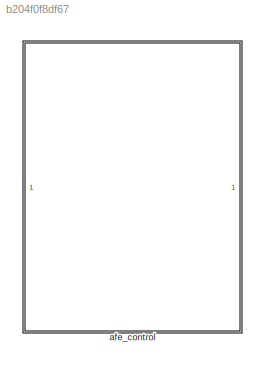
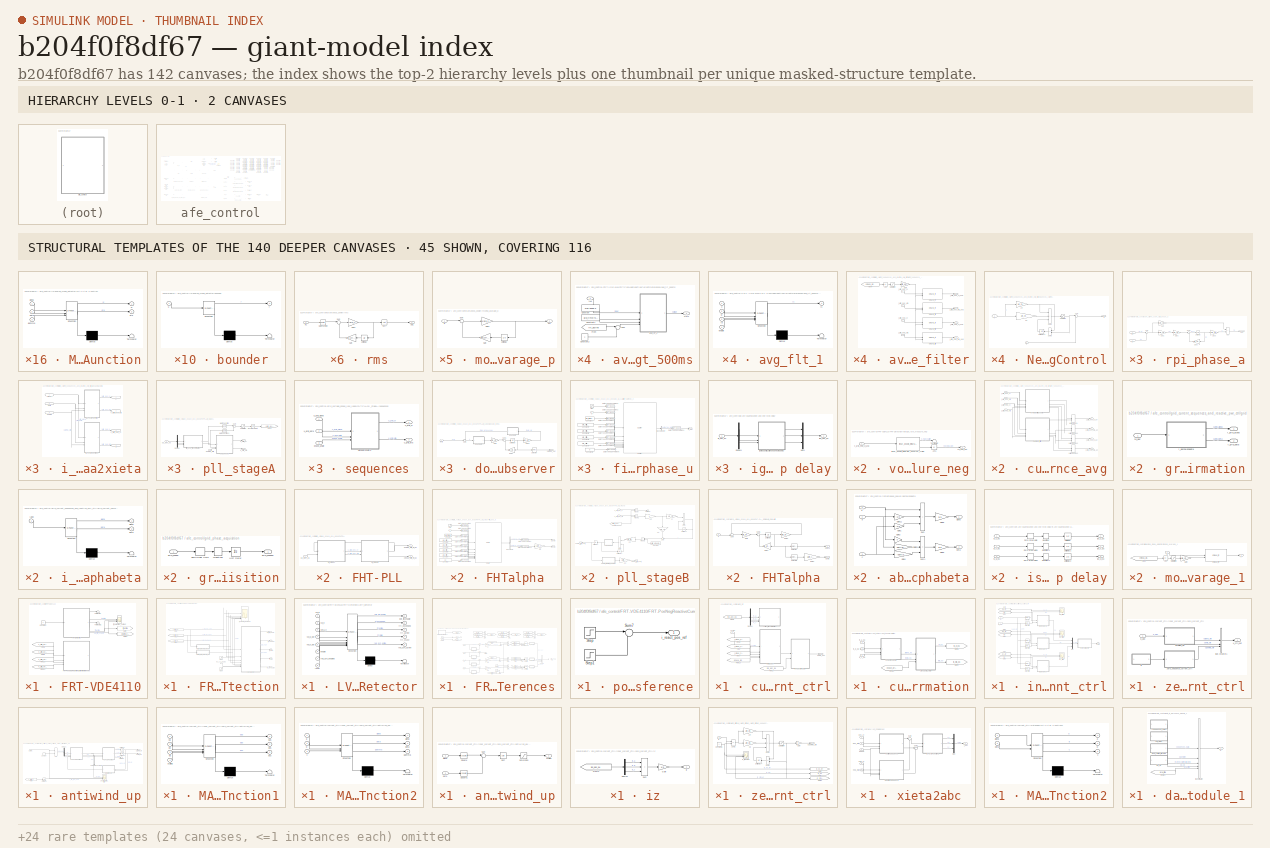
[diagram: thumbnail index - top-2 hierarchy levels (2 canvases) + 45 structural-template representatives of the remaining 140 canvases]
MODEL slx_b204f0f8df67
KIND library
CONFIG SolverName = VariableStepAuto
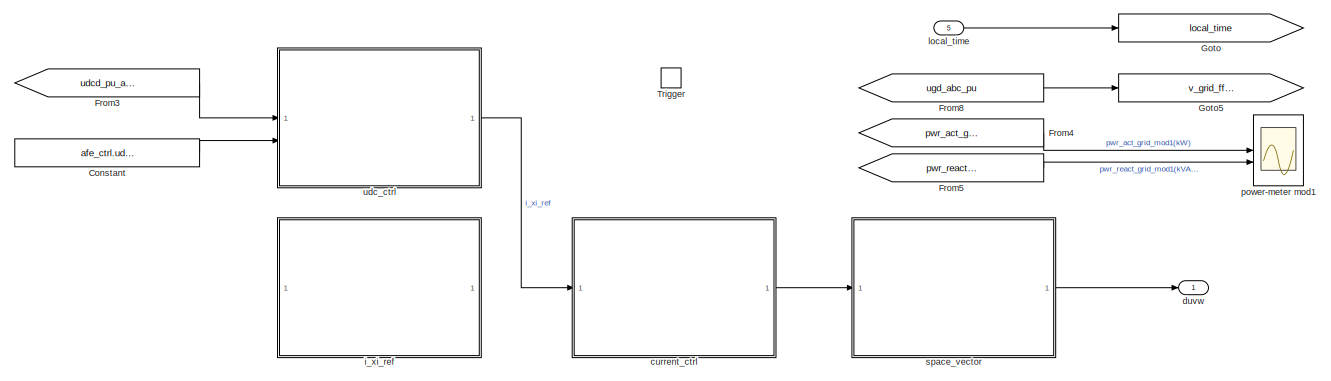
[diagram: afe_control - part 1/4, top left region]
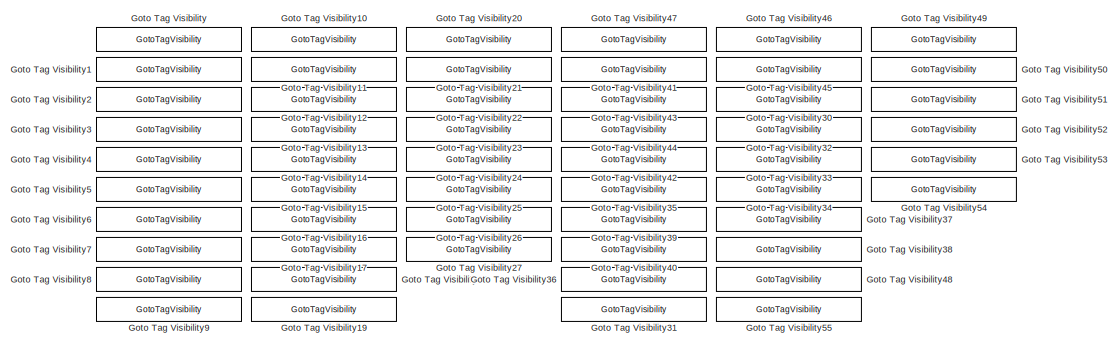
[diagram: afe_control - part 2/4, top right region]
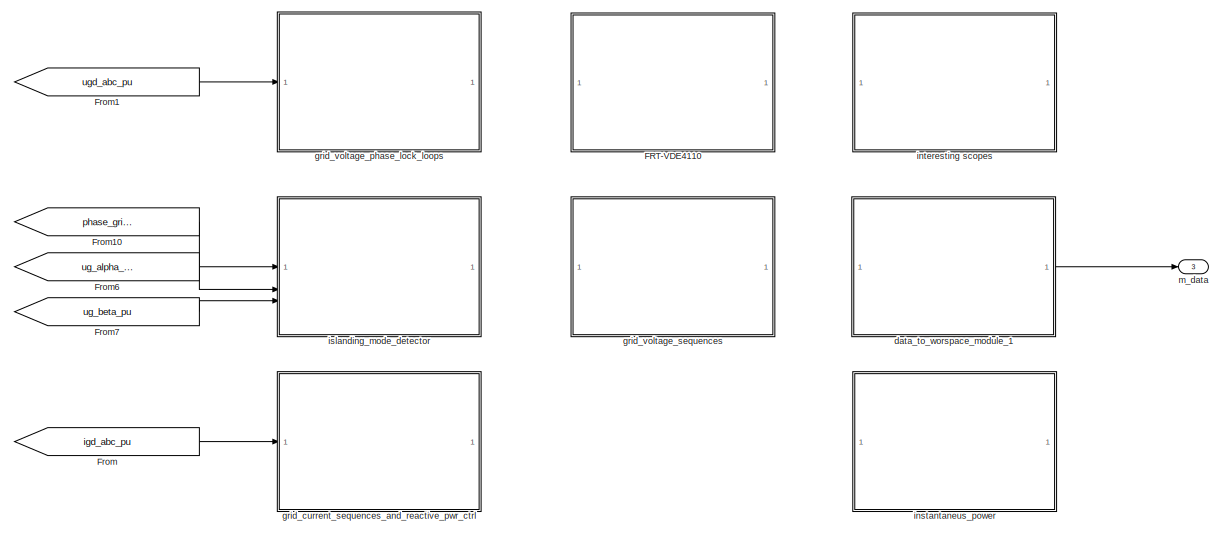
[diagram: afe_control - part 3/4, bottom left region]
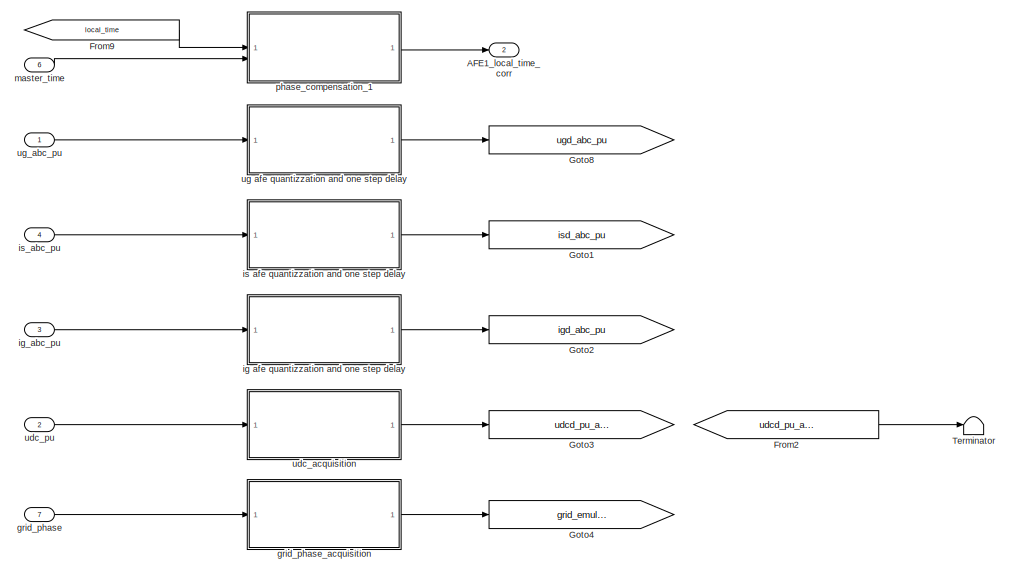
[diagram: afe_control - part 4/4, bottom right region]
BLOCK [SubSystem] afe_control
BLOCK [Outport] afe_control/AFE1_local_time_corr
  Port = 2
BLOCK [Constant] afe_control/Constant
  Value = afe_ctrl.udc_norm_ref
BLOCK [SubSystem] afe_control/FRT-VDE4110
BLOCK [Constant] afe_control/FRT-VDE4110/Constant
  Value = 0
BLOCK [SubSystem] afe_control/FRT-VDE4110/FRT-Detection
BLOCK [From] afe_control/FRT-VDE4110/FRT-Detection/From1
  GotoTag = v_grid_neg_xi_avg
  TagVisibility = scoped
BLOCK [From] afe_control/FRT-VDE4110/FRT-Detection/From2
  GotoTag = v_grid_neg_eta_avg
  TagVisibility = scoped
BLOCK [From] afe_control/FRT-VDE4110/FRT-Detection/From6
  GotoTag = v_grid_pos_xi_avg
  TagVisibility = scoped
BLOCK [SubSystem] afe_control/FRT-VDE4110/FRT-Detection/LVRT_detector
  ErrorFcn = Stateflow.Translate.translate
  PermitHierarchicalResolution = ExplicitOnly
  SFBlockType = MATLAB Function
  TreatAsAtomicUnit = on
  TreatAsGroupedWhenPropagatingVariantConditions = off
BLOCK [Demux] afe_control/FRT-VDE4110/FRT-Detection/LVRT_detector/ Demux 
  Outputs = 1
BLOCK [S-Function] afe_control/FRT-VDE4110/FRT-Detection/LVRT_detector/ SFunction 
  EnableBusSupport = off
  FunctionName = sf_sfun
  PortCounts = [8 6]
  SFcnIsStateOwnerBlock = off
  SFunctionDeploymentMode = off
  Tag = Stateflow S-Function 11
BLOCK [Terminator] afe_control/FRT-VDE4110/FRT-Detection/LVRT_detector/ Terminator 
BLOCK [Inport] afe_control/FRT-VDE4110/FRT-Detection/LVRT_detector/enable
  Port = 6
BLOCK [Outport] afe_control/FRT-VDE4110/FRT-Detection/LVRT_detector/frt_active
  Port = 3
BLOCK [Outport] afe_control/FRT-VDE4110/FRT-Detection/LVRT_detector/frt_exceeded
  Port = 2
  VectorParamsAs1DForOutWhenUnconnected = off
BLOCK [Outport] afe_control/FRT-VDE4110/FRT-Detection/LVRT_detector/frt_state
  Port = 4
BLOCK [Outport] afe_control/FRT-VDE4110/FRT-Detection/LVRT_detector/pwr_lim_enable
  VectorParamsAs1DForOutWhenUnconnected = off
BLOCK [Outport] afe_control/FRT-VDE4110/FRT-Detection/LVRT_detector/red_dyn_active
  Port = 5
BLOCK [Inport] afe_control/FRT-VDE4110/FRT-Detection/LVRT_detector/red_dyn_enabled
  Port = 7
BLOCK [Inport] afe_control/FRT-VDE4110/FRT-Detection/LVRT_detector/reset
  Port = 8
BLOCK [Inport] afe_control/FRT-VDE4110/FRT-Detection/LVRT_detector/veta_n
  Port = 3
BLOCK [Inport] afe_control/FRT-VDE4110/FRT-Detection/LVRT_detector/vxi_n
  Port = 2
BLOCK [Inport] afe_control/FRT-VDE4110/FRT-Detection/LVRT_detector/vxi_n_dot
  Port = 5
BLOCK [Inport] afe_control/FRT-VDE4110/FRT-Detection/LVRT_detector/vxi_p
BLOCK [Inport] afe_control/FRT-VDE4110/FRT-Detection/LVRT_detector/vxi_p_dot
  Port = 4
BLOCK [Step] afe_control/FRT-VDE4110/FRT-Detection/Step1
  FinalValue = 0
  InitialValue = 1
  Time = 0.025
BLOCK [Step] afe_control/FRT-VDE4110/FRT-Detection/Step3
  FinalValue = frt_data.enable_frt_1 + frt_data.enable_frt_2
  Time = frt_data.settle_time
BLOCK [Outport] afe_control/FRT-VDE4110/FRT-Detection/frt_active
  Port = 4
BLOCK [Scope] afe_control/FRT-VDE4110/FRT-Detection/frt_detection_inputs mod1
  ActiveDisplayYMaximum = 1.25924351811409
  ActiveDisplayYMinimum = -1.0098197758197784
  ContainerLayout = {"WindowBounds":[-8,-8,2064,1048],"gridDimensions":{"w":1,"h":1},"tileCount":1,"tileCoverage":1,"columnWeights":1,"rowWeights":1,"tileOccupancy":{"children":[{"id":"/pmsm/synchronous_motor/motor mech"},{"id":"/afe_abc_inv_psm_mod2/AFE_control/afe_control/grid_current_sequences_and_reactive_pwr_ctrl/sequences_current_control/i_pos_eta_ref//i_pos_eta\nmod2"},{"id":"/afe_abc_inv_psm_mod2/AFE_control/...<+6260ch>  <repeated x24 — deduplicated; at blocks: frt_detection_inputs mod1, frt_detection_output, isa_ref/isa, isb_ref/isb, isc_ref/isc, afe_ictrl_out/afe_ictrl_ff, iz_tracking, i_neg_eta_ref/i_neg_eta, i_neg_xi_ref/i_neg_xi, i_pos_eta_ref/i_pos_eta, FHT-PLL performance, FHTdqPLL, grid_voltages, first_harmonic_tracker, dqpll_ccaler, pll_performances, +6 more>
  DataLoggingVariableName = ScopeData2
  Floating = off
  GraphicalSettings = {"Style":{"BackgroundColor":[0.12941176470588237,0.12941176470588237,0.12941176470588237],"AxesColor":[0.07058823529411765,0.07058823529411765,0.07058823529411765],"LabelsColor":[0.8509803921568627,0.8509803921568627,0.8509803921568627],"PreserveColors":false,"Visible":[true,true,true,true,true,true],"LineStyle":["-","-","-","-","-","-"],"LineWidth":[2,2,2,2,2,2],"BarWidth":[0.9,0.9,0.9,0.9,0.9,0....<+4409ch>
  LayoutDimensionsString = [3 2]
  MultipleDisplayCache = [{"MaxYLimMag":1.25924351811409,"MaxYLimReal":1.25924351811409,"MinYLimMag":0,"MinYLimReal":-1.0098197758197784,"PlotAsMagnitudePhase":false,"ShowGrid":true,"ShowLegend":true,"Title":"%<SignalLabel>","YLabel":""},{"MaxYLimMag":1.2478102371096611,"MaxYLimReal":1.1195633932948112,"MinYLimMag":0,"MinYLimReal":-1.2478102371096611,"PlotAsMagnitudePhase":false,"ShowGrid":true,"ShowLegend":true,"Title":"...<+824ch>
  NumInputPorts = 6
  ScopeFrameLocation = window
  ShowLegend = on
  ShowTimeAxisLabel = on
  WasSavedAsWebScope = on
  WindowPosition = [704.000000,194.000000,1296.000000,716.000000,]
BLOCK [Outport] afe_control/FRT-VDE4110/FRT-Detection/frt_exceeded
BLOCK [Outport] afe_control/FRT-VDE4110/FRT-Detection/frt_state
  Port = 2
BLOCK [Outport] afe_control/FRT-VDE4110/FRT-Detection/pwr_lim_enable
  Port = 5
BLOCK [Outport] afe_control/FRT-VDE4110/FRT-Detection/red_dyn_active
  Port = 3
BLOCK [Inport] afe_control/FRT-VDE4110/FRT-Detection/red_dyn_enabled
BLOCK [SubSystem] afe_control/FRT-VDE4110/FRT-Detection/voltage_rate_measure_neg
BLOCK [Abs] afe_control/FRT-VDE4110/FRT-Detection/voltage_rate_measure_neg/Abs1
  SaturateOnIntegerOverflow = off
BLOCK [Terminator] afe_control/FRT-VDE4110/FRT-Detection/voltage_rate_measure_neg/Terminator
BLOCK [Reference] afe_control/FRT-VDE4110/FRT-Detection/voltage_rate_measure_neg/linear_double_integrator_observer_ccaller  REF=linear_double_integrator_observer_ccaller/linear_double_integrator_observer_ccaller  (lib defined in slx_f0730cbc17aa)
  SourceBlock = linear_double_integrator_observer_ccaller/linear_double_integrator_observer_ccaller
BLOCK [Inport] afe_control/FRT-VDE4110/FRT-Detection/voltage_rate_measure_neg/v_grid_neg_xi_avg
BLOCK [Outport] afe_control/FRT-VDE4110/FRT-Detection/voltage_rate_measure_neg/vxi_neg_dot
BLOCK [SubSystem] afe_control/FRT-VDE4110/FRT-Detection/voltage_rate_measure_pos
BLOCK [Abs] afe_control/FRT-VDE4110/FRT-Detection/voltage_rate_measure_pos/Abs
  SaturateOnIntegerOverflow = off
BLOCK [Terminator] afe_control/FRT-VDE4110/FRT-Detection/voltage_rate_measure_pos/Terminator
BLOCK [Reference] afe_control/FRT-VDE4110/FRT-Detection/voltage_rate_measure_pos/linear_double_integrator_observer_ccaller  REF=linear_double_integrator_observer_ccaller/linear_double_integrator_observer_ccaller  (lib defined in slx_f0730cbc17aa)
  SourceBlock = linear_double_integrator_observer_ccaller/linear_double_integrator_observer_ccaller
BLOCK [Inport] afe_control/FRT-VDE4110/FRT-Detection/voltage_rate_measure_pos/v_grid_pos_xi_avg
BLOCK [Outport] afe_control/FRT-VDE4110/FRT-Detection/voltage_rate_measure_pos/vxi_pos_dot
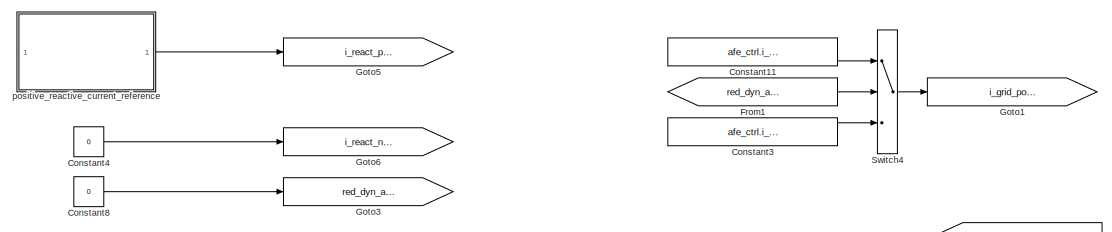
[diagram: afe_control/FRT-VDE4110/FRT-PosNegReactiveCurrentReferences - part 1/4, top left region]
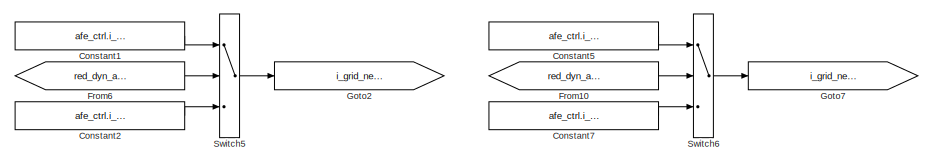
[diagram: afe_control/FRT-VDE4110/FRT-PosNegReactiveCurrentReferences - part 2/4, top right region]
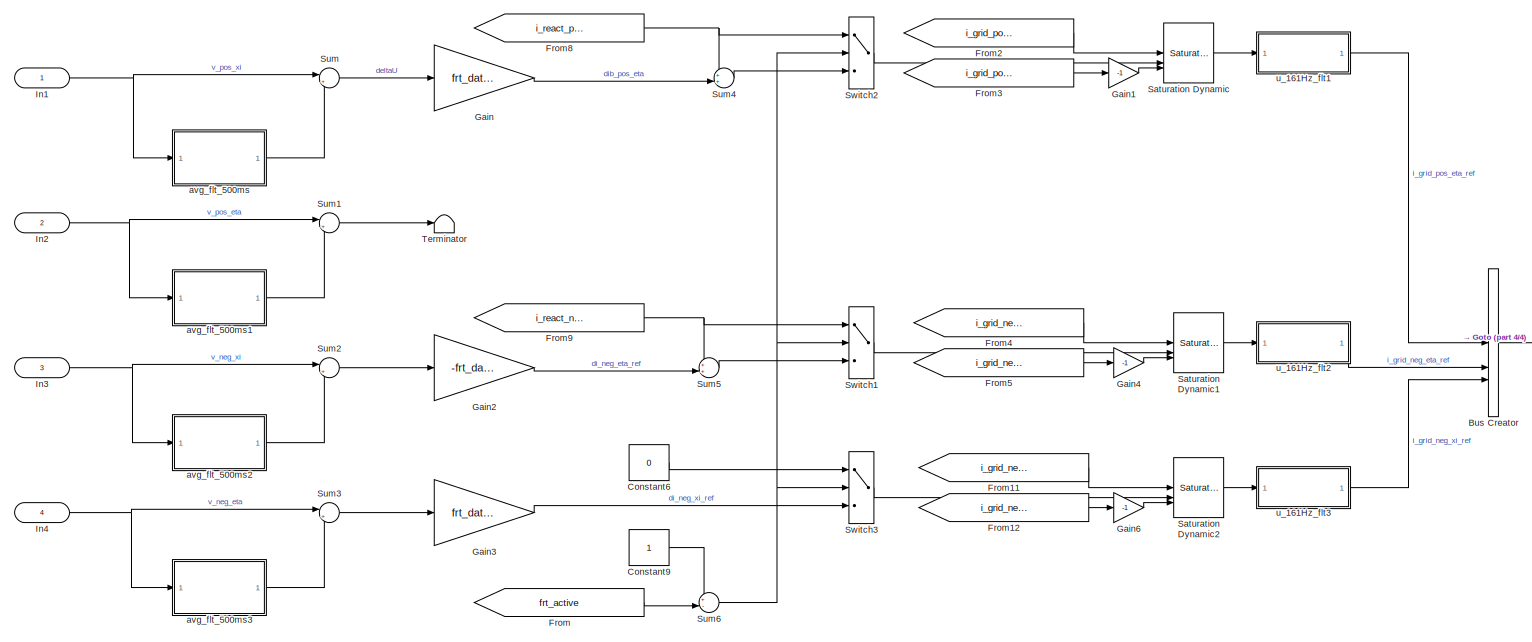
[diagram: afe_control/FRT-VDE4110/FRT-PosNegReactiveCurrentReferences - part 3/4, central region]
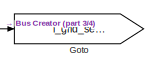
[diagram: afe_control/FRT-VDE4110/FRT-PosNegReactiveCurrentReferences - part 4/4, middle right region]
BLOCK [SubSystem] afe_control/FRT-VDE4110/FRT-PosNegReactiveCurrentReferences
BLOCK [BusCreator] afe_control/FRT-VDE4110/FRT-PosNegReactiveCurrentReferences/Bus Creator
  DisplayOption = bar
  InheritFromInputs = on
  Inputs = 3
BLOCK [Constant] afe_control/FRT-VDE4110/FRT-PosNegReactiveCurrentReferences/Constant1
  Value = afe_ctrl.i_grid_neg_eta_red_lim
BLOCK [Constant] afe_control/FRT-VDE4110/FRT-PosNegReactiveCurrentReferences/Constant11
  Value = afe_ctrl.i_grid_pos_eta_red_lim
BLOCK [Constant] afe_control/FRT-VDE4110/FRT-PosNegReactiveCurrentReferences/Constant2
  Value = afe_ctrl.i_grid_neg_eta_lim
BLOCK [Constant] afe_control/FRT-VDE4110/FRT-PosNegReactiveCurrentReferences/Constant3
  Value = afe_ctrl.i_grid_pos_eta_lim
BLOCK [Constant] afe_control/FRT-VDE4110/FRT-PosNegReactiveCurrentReferences/Constant4
  Value = 0
BLOCK [Constant] afe_control/FRT-VDE4110/FRT-PosNegReactiveCurrentReferences/Constant5
  Value = afe_ctrl.i_grid_neg_xi_red_lim
BLOCK [Constant] afe_control/FRT-VDE4110/FRT-PosNegReactiveCurrentReferences/Constant6
  Value = 0
BLOCK [Constant] afe_control/FRT-VDE4110/FRT-PosNegReactiveCurrentReferences/Constant7
  Value = afe_ctrl.i_grid_neg_xi_lim
BLOCK [Constant] afe_control/FRT-VDE4110/FRT-PosNegReactiveCurrentReferences/Constant8
  Value = 0
BLOCK [Constant] afe_control/FRT-VDE4110/FRT-PosNegReactiveCurrentReferences/Constant9
BLOCK [From] afe_control/FRT-VDE4110/FRT-PosNegReactiveCurrentReferences/From
  GotoTag = frt_active
  TagVisibility = scoped
BLOCK [From] afe_control/FRT-VDE4110/FRT-PosNegReactiveCurrentReferences/From1
  GotoTag = red_dyn_active
BLOCK [From] afe_control/FRT-VDE4110/FRT-PosNegReactiveCurrentReferences/From10
  GotoTag = red_dyn_active
BLOCK [From] afe_control/FRT-VDE4110/FRT-PosNegReactiveCurrentReferences/From11
  GotoTag = i_grid_neg_xi_lim
BLOCK [From] afe_control/FRT-VDE4110/FRT-PosNegReactiveCurrentReferences/From12
  GotoTag = i_grid_neg_xi_lim
BLOCK [From] afe_control/FRT-VDE4110/FRT-PosNegReactiveCurrentReferences/From2
  GotoTag = i_grid_pos_eta_lim
BLOCK [From] afe_control/FRT-VDE4110/FRT-PosNegReactiveCurrentReferences/From3
  GotoTag = i_grid_pos_eta_lim
BLOCK [From] afe_control/FRT-VDE4110/FRT-PosNegReactiveCurrentReferences/From4
  GotoTag = i_grid_neg_eta_lim
BLOCK [From] afe_control/FRT-VDE4110/FRT-PosNegReactiveCurrentReferences/From5
  GotoTag = i_grid_neg_eta_lim
BLOCK [From] afe_control/FRT-VDE4110/FRT-PosNegReactiveCurrentReferences/From6
  GotoTag = red_dyn_active
BLOCK [From] afe_control/FRT-VDE4110/FRT-PosNegReactiveCurrentReferences/From8
  GotoTag = i_react_pos_ref
BLOCK [From] afe_control/FRT-VDE4110/FRT-PosNegReactiveCurrentReferences/From9
  GotoTag = i_react_neg_ref
BLOCK [Gain] afe_control/FRT-VDE4110/FRT-PosNegReactiveCurrentReferences/Gain
  Gain = frt_data.k_frt_ref
BLOCK [Gain] afe_control/FRT-VDE4110/FRT-PosNegReactiveCurrentReferences/Gain1
  Gain = -1
BLOCK [Gain] afe_control/FRT-VDE4110/FRT-PosNegReactiveCurrentReferences/Gain2
  Gain = -frt_data.k_frt_ref
BLOCK [Gain] afe_control/FRT-VDE4110/FRT-PosNegReactiveCurrentReferences/Gain3
  Gain = frt_data.k_frt_ref
BLOCK [Gain] afe_control/FRT-VDE4110/FRT-PosNegReactiveCurrentReferences/Gain4
  Gain = -1
BLOCK [Gain] afe_control/FRT-VDE4110/FRT-PosNegReactiveCurrentReferences/Gain6
  Gain = -1
BLOCK [Goto] afe_control/FRT-VDE4110/FRT-PosNegReactiveCurrentReferences/Goto
  GotoTag = i_grid_seq_ref
  TagVisibility = scoped
BLOCK [Goto] afe_control/FRT-VDE4110/FRT-PosNegReactiveCurrentReferences/Goto1
  GotoTag = i_grid_pos_eta_lim
BLOCK [Goto] afe_control/FRT-VDE4110/FRT-PosNegReactiveCurrentReferences/Goto2
  GotoTag = i_grid_neg_eta_lim
BLOCK [Goto] afe_control/FRT-VDE4110/FRT-PosNegReactiveCurrentReferences/Goto3
  GotoTag = red_dyn_active
BLOCK [Goto] afe_control/FRT-VDE4110/FRT-PosNegReactiveCurrentReferences/Goto5
  GotoTag = i_react_pos_ref
BLOCK [Goto] afe_control/FRT-VDE4110/FRT-PosNegReactiveCurrentReferences/Goto6
  GotoTag = i_react_neg_ref
BLOCK [Goto] afe_control/FRT-VDE4110/FRT-PosNegReactiveCurrentReferences/Goto7
  GotoTag = i_grid_neg_xi_lim
BLOCK [Inport] afe_control/FRT-VDE4110/FRT-PosNegReactiveCurrentReferences/In1
  IconDisplay = Signal name
BLOCK [Inport] afe_control/FRT-VDE4110/FRT-PosNegReactiveCurrentReferences/In2
  IconDisplay = Signal name
  Port = 2
BLOCK [Inport] afe_control/FRT-VDE4110/FRT-PosNegReactiveCurrentReferences/In3
  IconDisplay = Signal name
  Port = 3
BLOCK [Inport] afe_control/FRT-VDE4110/FRT-PosNegReactiveCurrentReferences/In4
  IconDisplay = Signal name
  Port = 4
BLOCK [Reference] afe_control/FRT-VDE4110/FRT-PosNegReactiveCurrentReferences/Saturation Dynamic  REF=sl_discontinuities/Saturation
Dynamic
  SourceBlock = sl_discontinuities/Saturation\nDynamic
  SourceType = Saturation Dynamic
BLOCK [Reference] afe_control/FRT-VDE4110/FRT-PosNegReactiveCurrentReferences/Saturation Dynamic1  REF=sl_discontinuities/Saturation
Dynamic
  SourceBlock = sl_discontinuities/Saturation\nDynamic
  SourceType = Saturation Dynamic
BLOCK [Reference] afe_control/FRT-VDE4110/FRT-PosNegReactiveCurrentReferences/Saturation Dynamic2  REF=sl_discontinuities/Saturation
Dynamic
  SourceBlock = sl_discontinuities/Saturation\nDynamic
  SourceType = Saturation Dynamic
BLOCK [Sum] afe_control/FRT-VDE4110/FRT-PosNegReactiveCurrentReferences/Sum
  Inputs = |+-
BLOCK [Sum] afe_control/FRT-VDE4110/FRT-PosNegReactiveCurrentReferences/Sum1
  Inputs = |+-
BLOCK [Sum] afe_control/FRT-VDE4110/FRT-PosNegReactiveCurrentReferences/Sum2
  Inputs = |+-
BLOCK [Sum] afe_control/FRT-VDE4110/FRT-PosNegReactiveCurrentReferences/Sum3
  Inputs = |+-
BLOCK [Sum] afe_control/FRT-VDE4110/FRT-PosNegReactiveCurrentReferences/Sum4
  Inputs = ++|
BLOCK [Sum] afe_control/FRT-VDE4110/FRT-PosNegReactiveCurrentReferences/Sum5
  Inputs = ++|
BLOCK [Sum] afe_control/FRT-VDE4110/FRT-PosNegReactiveCurrentReferences/Sum6
  Inputs = +-|
BLOCK [Switch] afe_control/FRT-VDE4110/FRT-PosNegReactiveCurrentReferences/Switch1
  InputSameDT = off
  SaturateOnIntegerOverflow = off
  Threshold = 0.5
BLOCK [Switch] afe_control/FRT-VDE4110/FRT-PosNegReactiveCurrentReferences/Switch2
  InputSameDT = off
  SaturateOnIntegerOverflow = off
  Threshold = 0.5
BLOCK [Switch] afe_control/FRT-VDE4110/FRT-PosNegReactiveCurrentReferences/Switch3
  InputSameDT = off
  SaturateOnIntegerOverflow = off
  Threshold = 0.5
BLOCK [Switch] afe_control/FRT-VDE4110/FRT-PosNegReactiveCurrentReferences/Switch4
  InputSameDT = off
  SaturateOnIntegerOverflow = off
  Threshold = 0.5
BLOCK [Switch] afe_control/FRT-VDE4110/FRT-PosNegReactiveCurrentReferences/Switch5
  InputSameDT = off
  SaturateOnIntegerOverflow = off
  Threshold = 0.5
BLOCK [Switch] afe_control/FRT-VDE4110/FRT-PosNegReactiveCurrentReferences/Switch6
  InputSameDT = off
  SaturateOnIntegerOverflow = off
  Threshold = 0.5
BLOCK [Terminator] afe_control/FRT-VDE4110/FRT-PosNegReactiveCurrentReferences/Terminator
BLOCK [SubSystem] afe_control/FRT-VDE4110/FRT-PosNegReactiveCurrentReferences/avg_flt_500ms
BLOCK [Constant] afe_control/FRT-VDE4110/FRT-PosNegReactiveCurrentReferences/avg_flt_500ms/Constant
  Value = 2*pi/500e-3
BLOCK [Constant] afe_control/FRT-VDE4110/FRT-PosNegReactiveCurrentReferences/avg_flt_500ms/Constant1
  Value = glb_time.ts_afe
BLOCK [Constant] afe_control/FRT-VDE4110/FRT-PosNegReactiveCurrentReferences/avg_flt_500ms/Constant2
BLOCK [From] afe_control/FRT-VDE4110/FRT-PosNegReactiveCurrentReferences/avg_flt_500ms/From
  GotoTag = frt_active
  TagVisibility = scoped
BLOCK [Inport] afe_control/FRT-VDE4110/FRT-PosNegReactiveCurrentReferences/avg_flt_500ms/In1
  IconDisplay = Signal name
BLOCK [Outport] afe_control/FRT-VDE4110/FRT-PosNegReactiveCurrentReferences/avg_flt_500ms/Out1
  IconDisplay = Signal name
  VectorParamsAs1DForOutWhenUnconnected = off
BLOCK [Sum] afe_control/FRT-VDE4110/FRT-PosNegReactiveCurrentReferences/avg_flt_500ms/Sum
  Inputs = |-+
BLOCK [SubSystem] afe_control/FRT-VDE4110/FRT-PosNegReactiveCurrentReferences/avg_flt_500ms/avg_flt_1
  ErrorFcn = Stateflow.Translate.translate
  PermitHierarchicalResolution = ExplicitOnly
  SFBlockType = MATLAB Function
  TreatAsAtomicUnit = on
BLOCK [Demux] afe_control/FRT-VDE4110/FRT-PosNegReactiveCurrentReferences/avg_flt_500ms/avg_flt_1/ Demux 
  Outputs = 1
BLOCK [S-Function] afe_control/FRT-VDE4110/FRT-PosNegReactiveCurrentReferences/avg_flt_500ms/avg_flt_1/ SFunction 
  EnableBusSupport = off
  FunctionName = sf_sfun
  PortCounts = [4 2]
  SFcnIsStateOwnerBlock = off
  SFunctionDeploymentMode = off
  Tag = Stateflow S-Function 25
BLOCK [Terminator] afe_control/FRT-VDE4110/FRT-PosNegReactiveCurrentReferences/avg_flt_500ms/avg_flt_1/ Terminator 
BLOCK [Inport] afe_control/FRT-VDE4110/FRT-PosNegReactiveCurrentReferences/avg_flt_500ms/avg_flt_1/enable
  Port = 4
BLOCK [Inport] afe_control/FRT-VDE4110/FRT-PosNegReactiveCurrentReferences/avg_flt_500ms/avg_flt_1/ts
  Port = 3
BLOCK [Inport] afe_control/FRT-VDE4110/FRT-PosNegReactiveCurrentReferences/avg_flt_500ms/avg_flt_1/w
  Port = 2
BLOCK [Inport] afe_control/FRT-VDE4110/FRT-PosNegReactiveCurrentReferences/avg_flt_500ms/avg_flt_1/x
BLOCK [Outport] afe_control/FRT-VDE4110/FRT-PosNegReactiveCurrentReferences/avg_flt_500ms/avg_flt_1/y1
  VectorParamsAs1DForOutWhenUnconnected = off
BLOCK [SubSystem] afe_control/FRT-VDE4110/FRT-PosNegReactiveCurrentReferences/avg_flt_500ms1
BLOCK [Constant] afe_control/FRT-VDE4110/FRT-PosNegReactiveCurrentReferences/avg_flt_500ms1/Constant
  Value = 2*pi/500e-3
BLOCK [Constant] afe_control/FRT-VDE4110/FRT-PosNegReactiveCurrentReferences/avg_flt_500ms1/Constant1
  Value = glb_time.ts_afe
BLOCK [Constant] afe_control/FRT-VDE4110/FRT-PosNegReactiveCurrentReferences/avg_flt_500ms1/Constant2
BLOCK [From] afe_control/FRT-VDE4110/FRT-PosNegReactiveCurrentReferences/avg_flt_500ms1/From
  GotoTag = frt_active
  TagVisibility = scoped
BLOCK [Inport] afe_control/FRT-VDE4110/FRT-PosNegReactiveCurrentReferences/avg_flt_500ms1/In1
  IconDisplay = Signal name
BLOCK [Outport] afe_control/FRT-VDE4110/FRT-PosNegReactiveCurrentReferences/avg_flt_500ms1/Out1
  IconDisplay = Signal name
  VectorParamsAs1DForOutWhenUnconnected = off
BLOCK [Sum] afe_control/FRT-VDE4110/FRT-PosNegReactiveCurrentReferences/avg_flt_500ms1/Sum
  Inputs = |-+
BLOCK [SubSystem] afe_control/FRT-VDE4110/FRT-PosNegReactiveCurrentReferences/avg_flt_500ms1/avg_flt_1
  ErrorFcn = Stateflow.Translate.translate
  PermitHierarchicalResolution = ExplicitOnly
  SFBlockType = MATLAB Function
  TreatAsAtomicUnit = on
BLOCK [Demux] afe_control/FRT-VDE4110/FRT-PosNegReactiveCurrentReferences/avg_flt_500ms1/avg_flt_1/ Demux 
  Outputs = 1
BLOCK [S-Function] afe_control/FRT-VDE4110/FRT-PosNegReactiveCurrentReferences/avg_flt_500ms1/avg_flt_1/ SFunction 
  EnableBusSupport = off
  FunctionName = sf_sfun
  PortCounts = [4 2]
  SFcnIsStateOwnerBlock = off
  SFunctionDeploymentMode = off
  Tag = Stateflow S-Function 33
BLOCK [Terminator] afe_control/FRT-VDE4110/FRT-PosNegReactiveCurrentReferences/avg_flt_500ms1/avg_flt_1/ Terminator 
BLOCK [Inport] afe_control/FRT-VDE4110/FRT-PosNegReactiveCurrentReferences/avg_flt_500ms1/avg_flt_1/enable
  Port = 4
BLOCK [Inport] afe_control/FRT-VDE4110/FRT-PosNegReactiveCurrentReferences/avg_flt_500ms1/avg_flt_1/ts
  Port = 3
BLOCK [Inport] afe_control/FRT-VDE4110/FRT-PosNegReactiveCurrentReferences/avg_flt_500ms1/avg_flt_1/w
  Port = 2
BLOCK [Inport] afe_control/FRT-VDE4110/FRT-PosNegReactiveCurrentReferences/avg_flt_500ms1/avg_flt_1/x
BLOCK [Outport] afe_control/FRT-VDE4110/FRT-PosNegReactiveCurrentReferences/avg_flt_500ms1/avg_flt_1/y1
  VectorParamsAs1DForOutWhenUnconnected = off
BLOCK [SubSystem] afe_control/FRT-VDE4110/FRT-PosNegReactiveCurrentReferences/avg_flt_500ms2
BLOCK [Constant] afe_control/FRT-VDE4110/FRT-PosNegReactiveCurrentReferences/avg_flt_500ms2/Constant
  Value = 2*pi/500e-3
BLOCK [Constant] afe_control/FRT-VDE4110/FRT-PosNegReactiveCurrentReferences/avg_flt_500ms2/Constant1
  Value = glb_time.ts_afe
BLOCK [Constant] afe_control/FRT-VDE4110/FRT-PosNegReactiveCurrentReferences/avg_flt_500ms2/Constant2
BLOCK [From] afe_control/FRT-VDE4110/FRT-PosNegReactiveCurrentReferences/avg_flt_500ms2/From
  GotoTag = frt_active
  TagVisibility = scoped
BLOCK [Inport] afe_control/FRT-VDE4110/FRT-PosNegReactiveCurrentReferences/avg_flt_500ms2/In1
  IconDisplay = Signal name
BLOCK [Outport] afe_control/FRT-VDE4110/FRT-PosNegReactiveCurrentReferences/avg_flt_500ms2/Out1
  IconDisplay = Signal name
  VectorParamsAs1DForOutWhenUnconnected = off
BLOCK [Sum] afe_control/FRT-VDE4110/FRT-PosNegReactiveCurrentReferences/avg_flt_500ms2/Sum
  Inputs = |-+
BLOCK [SubSystem] afe_control/FRT-VDE4110/FRT-PosNegReactiveCurrentReferences/avg_flt_500ms2/avg_flt_1
  ErrorFcn = Stateflow.Translate.translate
  PermitHierarchicalResolution = ExplicitOnly
  SFBlockType = MATLAB Function
  TreatAsAtomicUnit = on
BLOCK [Demux] afe_control/FRT-VDE4110/FRT-PosNegReactiveCurrentReferences/avg_flt_500ms2/avg_flt_1/ Demux 
  Outputs = 1
BLOCK [S-Function] afe_control/FRT-VDE4110/FRT-PosNegReactiveCurrentReferences/avg_flt_500ms2/avg_flt_1/ SFunction 
  EnableBusSupport = off
  FunctionName = sf_sfun
  PortCounts = [4 2]
  SFcnIsStateOwnerBlock = off
  SFunctionDeploymentMode = off
  Tag = Stateflow S-Function 34
BLOCK [Terminator] afe_control/FRT-VDE4110/FRT-PosNegReactiveCurrentReferences/avg_flt_500ms2/avg_flt_1/ Terminator 
BLOCK [Inport] afe_control/FRT-VDE4110/FRT-PosNegReactiveCurrentReferences/avg_flt_500ms2/avg_flt_1/enable
  Port = 4
BLOCK [Inport] afe_control/FRT-VDE4110/FRT-PosNegReactiveCurrentReferences/avg_flt_500ms2/avg_flt_1/ts
  Port = 3
BLOCK [Inport] afe_control/FRT-VDE4110/FRT-PosNegReactiveCurrentReferences/avg_flt_500ms2/avg_flt_1/w
  Port = 2
BLOCK [Inport] afe_control/FRT-VDE4110/FRT-PosNegReactiveCurrentReferences/avg_flt_500ms2/avg_flt_1/x
BLOCK [Outport] afe_control/FRT-VDE4110/FRT-PosNegReactiveCurrentReferences/avg_flt_500ms2/avg_flt_1/y1
  VectorParamsAs1DForOutWhenUnconnected = off
BLOCK [SubSystem] afe_control/FRT-VDE4110/FRT-PosNegReactiveCurrentReferences/avg_flt_500ms3
BLOCK [Constant] afe_control/FRT-VDE4110/FRT-PosNegReactiveCurrentReferences/avg_flt_500ms3/Constant
  Value = 2*pi/500e-3
BLOCK [Constant] afe_control/FRT-VDE4110/FRT-PosNegReactiveCurrentReferences/avg_flt_500ms3/Constant1
  Value = glb_time.ts_afe
BLOCK [Constant] afe_control/FRT-VDE4110/FRT-PosNegReactiveCurrentReferences/avg_flt_500ms3/Constant2
BLOCK [From] afe_control/FRT-VDE4110/FRT-PosNegReactiveCurrentReferences/avg_flt_500ms3/From
  GotoTag = frt_active
  TagVisibility = scoped
BLOCK [Inport] afe_control/FRT-VDE4110/FRT-PosNegReactiveCurrentReferences/avg_flt_500ms3/In1
  IconDisplay = Signal name
BLOCK [Outport] afe_control/FRT-VDE4110/FRT-PosNegReactiveCurrentReferences/avg_flt_500ms3/Out1
  IconDisplay = Signal name
  VectorParamsAs1DForOutWhenUnconnected = off
BLOCK [Sum] afe_control/FRT-VDE4110/FRT-PosNegReactiveCurrentReferences/avg_flt_500ms3/Sum
  Inputs = |-+
BLOCK [SubSystem] afe_control/FRT-VDE4110/FRT-PosNegReactiveCurrentReferences/avg_flt_500ms3/avg_flt_1
  ErrorFcn = Stateflow.Translate.translate
  PermitHierarchicalResolution = ExplicitOnly
  SFBlockType = MATLAB Function
  TreatAsAtomicUnit = on
BLOCK [Demux] afe_control/FRT-VDE4110/FRT-PosNegReactiveCurrentReferences/avg_flt_500ms3/avg_flt_1/ Demux 
  Outputs = 1
BLOCK [S-Function] afe_control/FRT-VDE4110/FRT-PosNegReactiveCurrentReferences/avg_flt_500ms3/avg_flt_1/ SFunction 
  EnableBusSupport = off
  FunctionName = sf_sfun
  PortCounts = [4 2]
  SFcnIsStateOwnerBlock = off
  SFunctionDeploymentMode = off
  Tag = Stateflow S-Function 35
BLOCK [Terminator] afe_control/FRT-VDE4110/FRT-PosNegReactiveCurrentReferences/avg_flt_500ms3/avg_flt_1/ Terminator 
BLOCK [Inport] afe_control/FRT-VDE4110/FRT-PosNegReactiveCurrentReferences/avg_flt_500ms3/avg_flt_1/enable
  Port = 4
BLOCK [Inport] afe_control/FRT-VDE4110/FRT-PosNegReactiveCurrentReferences/avg_flt_500ms3/avg_flt_1/ts
  Port = 3
BLOCK [Inport] afe_control/FRT-VDE4110/FRT-PosNegReactiveCurrentReferences/avg_flt_500ms3/avg_flt_1/w
  Port = 2
BLOCK [Inport] afe_control/FRT-VDE4110/FRT-PosNegReactiveCurrentReferences/avg_flt_500ms3/avg_flt_1/x
BLOCK [Outport] afe_control/FRT-VDE4110/FRT-PosNegReactiveCurrentReferences/avg_flt_500ms3/avg_flt_1/y1
  VectorParamsAs1DForOutWhenUnconnected = off
BLOCK [SubSystem] afe_control/FRT-VDE4110/FRT-PosNegReactiveCurrentReferences/positive_reactive_current_reference
BLOCK [Step] afe_control/FRT-VDE4110/FRT-PosNegReactiveCurrentReferences/positive_reactive_current_reference/Step
  FinalValue = i_react_pos_ref_2
  InitialValue = i_react_pos_ref_1
  Time = time_i_react_pos_ref_1
BLOCK [Step] afe_control/FRT-VDE4110/FRT-PosNegReactiveCurrentReferences/positive_reactive_current_reference/Step1
  FinalValue = i_react_pos_ref_3-i_react_pos_ref_2
  Time = time_i_react_pos_ref_2
BLOCK [Sum] afe_control/FRT-VDE4110/FRT-PosNegReactiveCurrentReferences/positive_reactive_current_reference/Sum7
  Inputs = |++
BLOCK [Outport] afe_control/FRT-VDE4110/FRT-PosNegReactiveCurrentReferences/positive_reactive_current_reference/i_react_pos_ref
BLOCK [SubSystem] afe_control/FRT-VDE4110/FRT-PosNegReactiveCurrentReferences/u_161Hz_flt1
BLOCK [Gain] afe_control/FRT-VDE4110/FRT-PosNegReactiveCurrentReferences/u_161Hz_flt1/Gain3
  Gain = filters.afe.g1_161Hz
  NameLocation = top
BLOCK [Gain] afe_control/FRT-VDE4110/FRT-PosNegReactiveCurrentReferences/u_161Hz_flt1/Gain6
  Gain = filters.afe.g0_161Hz
BLOCK [Sum] afe_control/FRT-VDE4110/FRT-PosNegReactiveCurrentReferences/u_161Hz_flt1/Sum
  Inputs = |++
BLOCK [UnitDelay] afe_control/FRT-VDE4110/FRT-PosNegReactiveCurrentReferences/u_161Hz_flt1/Unit Delay1
  NameLocation = top
  SampleTime = -1
BLOCK [Inport] afe_control/FRT-VDE4110/FRT-PosNegReactiveCurrentReferences/u_161Hz_flt1/input
BLOCK [Outport] afe_control/FRT-VDE4110/FRT-PosNegReactiveCurrentReferences/u_161Hz_flt1/output
  VectorParamsAs1DForOutWhenUnconnected = off
BLOCK [SubSystem] afe_control/FRT-VDE4110/FRT-PosNegReactiveCurrentReferences/u_161Hz_flt2
BLOCK [Gain] afe_control/FRT-VDE4110/FRT-PosNegReactiveCurrentReferences/u_161Hz_flt2/Gain3
  Gain = filters.afe.g1_161Hz
  NameLocation = top
BLOCK [Gain] afe_control/FRT-VDE4110/FRT-PosNegReactiveCurrentReferences/u_161Hz_flt2/Gain6
  Gain = filters.afe.g0_161Hz
BLOCK [Sum] afe_control/FRT-VDE4110/FRT-PosNegReactiveCurrentReferences/u_161Hz_flt2/Sum
  Inputs = |++
BLOCK [UnitDelay] afe_control/FRT-VDE4110/FRT-PosNegReactiveCurrentReferences/u_161Hz_flt2/Unit Delay1
  NameLocation = top
  SampleTime = -1
BLOCK [Inport] afe_control/FRT-VDE4110/FRT-PosNegReactiveCurrentReferences/u_161Hz_flt2/input
BLOCK [Outport] afe_control/FRT-VDE4110/FRT-PosNegReactiveCurrentReferences/u_161Hz_flt2/output
  VectorParamsAs1DForOutWhenUnconnected = off
BLOCK [SubSystem] afe_control/FRT-VDE4110/FRT-PosNegReactiveCurrentReferences/u_161Hz_flt3
BLOCK [Gain] afe_control/FRT-VDE4110/FRT-PosNegReactiveCurrentReferences/u_161Hz_flt3/Gain3
  Gain = filters.afe.g1_161Hz
  NameLocation = top
BLOCK [Gain] afe_control/FRT-VDE4110/FRT-PosNegReactiveCurrentReferences/u_161Hz_flt3/Gain6
  Gain = filters.afe.g0_161Hz
BLOCK [Sum] afe_control/FRT-VDE4110/FRT-PosNegReactiveCurrentReferences/u_161Hz_flt3/Sum
  Inputs = |++
BLOCK [UnitDelay] afe_control/FRT-VDE4110/FRT-PosNegReactiveCurrentReferences/u_161Hz_flt3/Unit Delay1
  NameLocation = top
  SampleTime = -1
BLOCK [Inport] afe_control/FRT-VDE4110/FRT-PosNegReactiveCurrentReferences/u_161Hz_flt3/input
BLOCK [Outport] afe_control/FRT-VDE4110/FRT-PosNegReactiveCurrentReferences/u_161Hz_flt3/output
  VectorParamsAs1DForOutWhenUnconnected = off
BLOCK [From] afe_control/FRT-VDE4110/From10
  GotoTag = v_grid_neg_xi_avg
  TagVisibility = scoped
BLOCK [From] afe_control/FRT-VDE4110/From11
  GotoTag = v_grid_neg_eta_avg
  TagVisibility = scoped
BLOCK [From] afe_control/FRT-VDE4110/From8
  GotoTag = v_grid_pos_xi_avg
  TagVisibility = scoped
BLOCK [From] afe_control/FRT-VDE4110/From9
  GotoTag = v_grid_pos_eta_avg
  TagVisibility = scoped
BLOCK [Goto] afe_control/FRT-VDE4110/Goto
  GotoTag = frt_active
  TagVisibility = scoped
BLOCK [Goto] afe_control/FRT-VDE4110/Goto2
  GotoTag = pwr_lim_enable
  TagVisibility = scoped
BLOCK [Terminator] afe_control/FRT-VDE4110/Terminator
BLOCK [Terminator] afe_control/FRT-VDE4110/Terminator1
BLOCK [Scope] afe_control/FRT-VDE4110/frt_detection_output
  ActiveDisplayYMaximum = 1.125
  ActiveDisplayYMinimum = -0.12499999999999997
  DataLoggingVariableName = ScopeData1
  Floating = off
  GraphicalSettings = {"Style":{"BackgroundColor":[0.12941176470588237,0.12941176470588237,0.12941176470588237],"AxesColor":[0.07058823529411765,0.07058823529411765,0.07058823529411765],"LabelsColor":[0.8509803921568627,0.8509803921568627,0.8509803921568627],"PreserveColors":false,"Visible":[true,true,true],"LineStyle":["-","-","-"],"LineWidth":[2,2,2],"BarWidth":[0.9,0.9,0.9],"LineColor":["auto","auto","auto"],"LineFa...<+2196ch>
  MultipleDisplayCache = [{"MaxYLimMag":1.125,"MaxYLimReal":1.125,"MinYLimMag":0,"MinYLimReal":-0.12499999999999997,"PlotAsMagnitudePhase":false,"ShowGrid":true,"ShowLegend":true,"Title":"%<SignalLabel>","YLabel":""}]
  NumInputPorts = 3
  ScopeFrameLocation = window
  ShowLegend = on
  ShowTimeAxisLabel = on
  WasSavedAsWebScope = on
  WindowPosition = [251.000000,110.000000,1035.000000,645.000000,]
BLOCK [From] afe_control/From
  GotoTag = igd_abc_pu
  TagVisibility = scoped
BLOCK [From] afe_control/From1
  GotoTag = ugd_abc_pu
  TagVisibility = scoped
BLOCK [From] afe_control/From10
  GotoTag = phase_grid_pll
  TagVisibility = scoped
BLOCK [From] afe_control/From2
  GotoTag = udcd_pu_afe
  TagVisibility = scoped
BLOCK [From] afe_control/From3
  GotoTag = udcd_pu_afe
  TagVisibility = scoped
BLOCK [From] afe_control/From4
  GotoTag = pwr_act_grid
  TagVisibility = scoped
BLOCK [From] afe_control/From5
  GotoTag = pwr_react_grid
  TagVisibility = scoped
BLOCK [From] afe_control/From6
  GotoTag = ug_alpha_pu
  TagVisibility = scoped
BLOCK [From] afe_control/From7
  GotoTag = ug_beta_pu
  TagVisibility = scoped
BLOCK [From] afe_control/From8
  GotoTag = ugd_abc_pu
  TagVisibility = scoped
BLOCK [From] afe_control/From9
  GotoTag = local_time
  TagVisibility = scoped
BLOCK [Goto] afe_control/Goto
  GotoTag = local_time
  TagVisibility = scoped
BLOCK [GotoTagVisibility] afe_control/Goto Tag Visibility
  GotoTag = ugd_abc_pu
BLOCK [GotoTagVisibility] afe_control/Goto Tag Visibility1
  GotoTag = isd_abc_pu
BLOCK [GotoTagVisibility] afe_control/Goto Tag Visibility10
  GotoTag = phase_grid_dqpll_ccaller
BLOCK [GotoTagVisibility] afe_control/Goto Tag Visibility11
  GotoTag = omega_grid_dqpll_ccaller
BLOCK [GotoTagVisibility] afe_control/Goto Tag Visibility12
  GotoTag = local_time
BLOCK [GotoTagVisibility] afe_control/Goto Tag Visibility13
  GotoTag = omega_grid_fht_simulink_pll
BLOCK [GotoTagVisibility] afe_control/Goto Tag Visibility14
  GotoTag = pwr_act_grid
BLOCK [GotoTagVisibility] afe_control/Goto Tag Visibility15
  GotoTag = pwr_react_grid
BLOCK [GotoTagVisibility] afe_control/Goto Tag Visibility16
  GotoTag = u_7th_xi_avg
BLOCK [GotoTagVisibility] afe_control/Goto Tag Visibility17
  GotoTag = u_7th_eta_avg
BLOCK [GotoTagVisibility] afe_control/Goto Tag Visibility18
  GotoTag = i_grid_pos_xi_avg
BLOCK [GotoTagVisibility] afe_control/Goto Tag Visibility19
  GotoTag = i_grid_pos_eta_avg
BLOCK [GotoTagVisibility] afe_control/Goto Tag Visibility2
  GotoTag = igd_abc_pu
BLOCK [GotoTagVisibility] afe_control/Goto Tag Visibility20
  GotoTag = i_grid_neg_xi_avg
BLOCK [GotoTagVisibility] afe_control/Goto Tag Visibility21
  GotoTag = i_grid_neg_eta_avg
BLOCK [GotoTagVisibility] afe_control/Goto Tag Visibility22
  GotoTag = isa_ref
BLOCK [GotoTagVisibility] afe_control/Goto Tag Visibility23
  GotoTag = isa
BLOCK [GotoTagVisibility] afe_control/Goto Tag Visibility24
  GotoTag = isb_ref
BLOCK [GotoTagVisibility] afe_control/Goto Tag Visibility25
  GotoTag = isb
BLOCK [GotoTagVisibility] afe_control/Goto Tag Visibility26
  GotoTag = isc_ref
BLOCK [GotoTagVisibility] afe_control/Goto Tag Visibility27
  GotoTag = isc
BLOCK [GotoTagVisibility] afe_control/Goto Tag Visibility3
  GotoTag = udcd_pu_afe
BLOCK [GotoTagVisibility] afe_control/Goto Tag Visibility30
  GotoTag = id_eta_pu
BLOCK [GotoTagVisibility] afe_control/Goto Tag Visibility31
  GotoTag = id_xi_pu
BLOCK [GotoTagVisibility] afe_control/Goto Tag Visibility32
  GotoTag = frt_active
BLOCK [GotoTagVisibility] afe_control/Goto Tag Visibility33
  GotoTag = pwr_lim_enable
BLOCK [GotoTagVisibility] afe_control/Goto Tag Visibility34
  GotoTag = i_grid_seq_ref
BLOCK [GotoTagVisibility] afe_control/Goto Tag Visibility35
  GotoTag = v_grid_pos_xi_avg
BLOCK [GotoTagVisibility] afe_control/Goto Tag Visibility36
  GotoTag = v_grid_neg_eta_avg
BLOCK [GotoTagVisibility] afe_control/Goto Tag Visibility37
  GotoTag = i_grid_pu_rms
BLOCK [GotoTagVisibility] afe_control/Goto Tag Visibility38
  GotoTag = u_grid_pu_rms
BLOCK [GotoTagVisibility] afe_control/Goto Tag Visibility39
  GotoTag = v_grid_pos_eta_avg
BLOCK [GotoTagVisibility] afe_control/Goto Tag Visibility4
  GotoTag = phase_grid_fht_simulink_pll
BLOCK [GotoTagVisibility] afe_control/Goto Tag Visibility40
  GotoTag = v_grid_neg_xi_avg
BLOCK [GotoTagVisibility] afe_control/Goto Tag Visibility41
  GotoTag = Vgrid_unorm_fht
BLOCK [GotoTagVisibility] afe_control/Goto Tag Visibility42
  GotoTag = grid_emulator_phase
BLOCK [GotoTagVisibility] afe_control/Goto Tag Visibility43
  GotoTag = phase_grid_fhtsr_dqpll
BLOCK [GotoTagVisibility] afe_control/Goto Tag Visibility44
  GotoTag = omega_grid_fhtsr_dqpll
BLOCK [GotoTagVisibility] afe_control/Goto Tag Visibility45
  GotoTag = ug_beta_pu
BLOCK [GotoTagVisibility] afe_control/Goto Tag Visibility46
  GotoTag = ug_alpha_pu
BLOCK [GotoTagVisibility] afe_control/Goto Tag Visibility47
  GotoTag = v_grid_ff_abc
BLOCK [GotoTagVisibility] afe_control/Goto Tag Visibility48
  GotoTag = cos_phi_avg
BLOCK [GotoTagVisibility] afe_control/Goto Tag Visibility49
  GotoTag = iz_pu_ref
BLOCK [GotoTagVisibility] afe_control/Goto Tag Visibility5
  GotoTag = omega_grid_ddsrf_pl
BLOCK [GotoTagVisibility] afe_control/Goto Tag Visibility50
  GotoTag = iz_pu
BLOCK [GotoTagVisibility] afe_control/Goto Tag Visibility51
  GotoTag = iz_ctrl_out
BLOCK [GotoTagVisibility] afe_control/Goto Tag Visibility52
  GotoTag = i_stack_pos_eta_ref
BLOCK [GotoTagVisibility] afe_control/Goto Tag Visibility53
  GotoTag = i_stack_neg_eta_ref
BLOCK [GotoTagVisibility] afe_control/Goto Tag Visibility54
  GotoTag = i_stack_neg_xi_ref
BLOCK [GotoTagVisibility] afe_control/Goto Tag Visibility55
  GotoTag = Vgrid_unorm_fht_simulink
BLOCK [GotoTagVisibility] afe_control/Goto Tag Visibility6
  GotoTag = phase_grid_dqpll
BLOCK [GotoTagVisibility] afe_control/Goto Tag Visibility7
  GotoTag = omega_grid_pu_dqpll
BLOCK [GotoTagVisibility] afe_control/Goto Tag Visibility8
  GotoTag = omega_grid_pll_pu
BLOCK [GotoTagVisibility] afe_control/Goto Tag Visibility9
  GotoTag = phase_grid_pll
BLOCK [Goto] afe_control/Goto1
  GotoTag = isd_abc_pu
  TagVisibility = scoped
BLOCK [Goto] afe_control/Goto2
  GotoTag = igd_abc_pu
  TagVisibility = scoped
BLOCK [Goto] afe_control/Goto3
  GotoTag = udcd_pu_afe
  TagVisibility = scoped
BLOCK [Goto] afe_control/Goto4
  GotoTag = grid_emulator_phase
  TagVisibility = scoped
BLOCK [Goto] afe_control/Goto5
  GotoTag = v_grid_ff_abc
  TagVisibility = scoped
BLOCK [Goto] afe_control/Goto8
  GotoTag = ugd_abc_pu
  TagVisibility = scoped
BLOCK [Terminator] afe_control/Terminator
BLOCK [TriggerPort] afe_control/Trigger
  PortDimensions = 1
  StatesWhenEnabling = held
  VariantControl = (inherit)
BLOCK [SubSystem] afe_control/current_ctrl
BLOCK [Demux] afe_control/current_ctrl/Demux
  Outputs = 3
BLOCK [From] afe_control/current_ctrl/From
  GotoTag = i_stack_neg_xi_ref
  TagVisibility = scoped
BLOCK [From] afe_control/current_ctrl/From1
  GotoTag = isd_abc_pu
  TagVisibility = scoped
BLOCK [From] afe_control/current_ctrl/From10
  GotoTag = phase_grid_pll
  TagVisibility = scoped
BLOCK [From] afe_control/current_ctrl/From2
  GotoTag = isd_abc_pu
  TagVisibility = scoped
BLOCK [From] afe_control/current_ctrl/From6
  GotoTag = i_stack_pos_eta_ref
  TagVisibility = scoped
BLOCK [From] afe_control/current_ctrl/From7
  GotoTag = i_stack_neg_eta_ref
  TagVisibility = scoped
BLOCK [SubSystem] afe_control/current_ctrl/current_transformation
BLOCK [From] afe_control/current_ctrl/current_transformation/From10
  GotoTag = phase_grid_pll
  TagVisibility = scoped
BLOCK [Goto] afe_control/current_ctrl/current_transformation/Goto4
  GotoTag = id_eta_pu
  TagVisibility = scoped
BLOCK [Goto] afe_control/current_ctrl/current_transformation/Goto5
  GotoTag = id_xi_pu
  TagVisibility = scoped
BLOCK [SubSystem] afe_control/current_ctrl/current_transformation/alphabeta2xieta
  ErrorFcn = Stateflow.Translate.translate
  PermitHierarchicalResolution = ExplicitOnly
  SFBlockType = MATLAB Function
  TreatAsAtomicUnit = on
BLOCK [Demux] afe_control/current_ctrl/current_transformation/alphabeta2xieta/ Demux 
  Outputs = 1
BLOCK [S-Function] afe_control/current_ctrl/current_transformation/alphabeta2xieta/ SFunction 
  EnableBusSupport = off
  FunctionName = sf_sfun
  PortCounts = [3 3]
  SFcnIsStateOwnerBlock = off
  SFunctionDeploymentMode = off
  Tag = Stateflow S-Function 7
BLOCK [Terminator] afe_control/current_ctrl/current_transformation/alphabeta2xieta/ Terminator 
BLOCK [Inport] afe_control/current_ctrl/current_transformation/alphabeta2xieta/alpha
BLOCK [Inport] afe_control/current_ctrl/current_transformation/alphabeta2xieta/beta
  Port = 2
BLOCK [Outport] afe_control/current_ctrl/current_transformation/alphabeta2xieta/eta
  Port = 2
BLOCK [Inport] afe_control/current_ctrl/current_transformation/alphabeta2xieta/gamma
  Port = 3
BLOCK [Outport] afe_control/current_ctrl/current_transformation/alphabeta2xieta/xi
BLOCK [Inport] afe_control/current_ctrl/current_transformation/is_a_pu
BLOCK [Inport] afe_control/current_ctrl/current_transformation/is_b_pu
  Port = 2
BLOCK [Inport] afe_control/current_ctrl/current_transformation/is_c_pu
  Port = 3
BLOCK [SubSystem] afe_control/current_ctrl/current_transformation/uvw2alphabeta
  ErrorFcn = Stateflow.Translate.translate
  PermitHierarchicalResolution = ExplicitOnly
  SFBlockType = MATLAB Function
  TreatAsAtomicUnit = on
BLOCK [Demux] afe_control/current_ctrl/current_transformation/uvw2alphabeta/ Demux 
  Outputs = 1
BLOCK [S-Function] afe_control/current_ctrl/current_transformation/uvw2alphabeta/ SFunction 
  EnableBusSupport = off
  FunctionName = sf_sfun
  PortCounts = [3 3]
  SFcnIsStateOwnerBlock = off
  SFunctionDeploymentMode = off
  Tag = Stateflow S-Function 6
BLOCK [Terminator] afe_control/current_ctrl/current_transformation/uvw2alphabeta/ Terminator 
BLOCK [Outport] afe_control/current_ctrl/current_transformation/uvw2alphabeta/alpha
BLOCK [Outport] afe_control/current_ctrl/current_transformation/uvw2alphabeta/beta
  Port = 2
BLOCK [Inport] afe_control/current_ctrl/current_transformation/uvw2alphabeta/u
BLOCK [Inport] afe_control/current_ctrl/current_transformation/uvw2alphabeta/v
  Port = 2
BLOCK [Inport] afe_control/current_ctrl/current_transformation/uvw2alphabeta/w
  Port = 3
BLOCK [Inport] afe_control/current_ctrl/i_xi_ref
BLOCK [SubSystem] afe_control/current_ctrl/inner_current_ctrl
BLOCK [Goto] afe_control/current_ctrl/inner_current_ctrl/Goto
  GotoTag = isa_ref
  TagVisibility = scoped
BLOCK [Goto] afe_control/current_ctrl/inner_current_ctrl/Goto1
  GotoTag = isa
  TagVisibility = scoped
BLOCK [Goto] afe_control/current_ctrl/inner_current_ctrl/Goto2
  GotoTag = isb_ref
  TagVisibility = scoped
BLOCK [Goto] afe_control/current_ctrl/inner_current_ctrl/Goto3
  GotoTag = isb
  TagVisibility = scoped
BLOCK [Goto] afe_control/current_ctrl/inner_current_ctrl/Goto4
  GotoTag = isc_ref
  TagVisibility = scoped
BLOCK [Goto] afe_control/current_ctrl/inner_current_ctrl/Goto5
  GotoTag = isc
  TagVisibility = scoped
BLOCK [Inport] afe_control/current_ctrl/inner_current_ctrl/In1
  IconDisplay = Signal name
BLOCK [Mux] afe_control/current_ctrl/inner_current_ctrl/Mux
  DisplayOption = bar
  Inputs = 3
BLOCK [Selector] afe_control/current_ctrl/inner_current_ctrl/Selector
  IndexOptions = Index vector (dialog)
  Indices = [1]
  InputPortWidth = 3
  OutputSizes = 1
BLOCK [Selector] afe_control/current_ctrl/inner_current_ctrl/Selector1
  IndexOptions = Index vector (dialog)
  Indices = [1]
  InputPortWidth = 3
  OutputSizes = 1
BLOCK [Selector] afe_control/current_ctrl/inner_current_ctrl/Selector2
  IndexOptions = Index vector (dialog)
  Indices = [2]
  InputPortWidth = 3
  OutputSizes = 1
BLOCK [Selector] afe_control/current_ctrl/inner_current_ctrl/Selector3
  IndexOptions = Index vector (dialog)
  Indices = [2]
  InputPortWidth = 3
  OutputSizes = 1
BLOCK [Selector] afe_control/current_ctrl/inner_current_ctrl/Selector4
  IndexOptions = Index vector (dialog)
  Indices = [3]
  InputPortWidth = 3
  OutputSizes = 1
BLOCK [Selector] afe_control/current_ctrl/inner_current_ctrl/Selector5
  IndexOptions = Index vector (dialog)
  Indices = [3]
  InputPortWidth = 3
  OutputSizes = 1
BLOCK [Inport] afe_control/current_ctrl/inner_current_ctrl/is_abc
  IconDisplay = Signal name
  Port = 2
BLOCK [Scope] afe_control/current_ctrl/inner_current_ctrl/isa_ref//isa
  ActiveDisplayYMaximum = 1.6762193167308692
  ActiveDisplayYMinimum = -1.4666296623420187
  DataLoggingVariableName = ScopeData1
  Floating = off
  GraphicalSettings = {"Style":{"BackgroundColor":[0.12941176470588237,0.12941176470588237,0.12941176470588237],"AxesColor":[0.07058823529411765,0.07058823529411765,0.07058823529411765],"LabelsColor":[0.8509803921568627,0.8509803921568627,0.8509803921568627],"PreserveColors":false,"Visible":[true,true],"LineStyle":["-","-"],"LineWidth":[2,2],"BarWidth":[0.9,0.9],"LineColor":[[1,0.9098039215686274,0.39215686274509803],[...<+2083ch>
  MultipleDisplayCache = [{"MaxYLimMag":3.67108154296875,"MaxYLimReal":1.6762193167308692,"MinYLimMag":0,"MinYLimReal":-1.4666296623420187,"PlotAsMagnitudePhase":false,"ShowGrid":true,"ShowLegend":true,"Title":"%<SignalLabel>","YLabel":""}]
  NumInputPorts = 2
  ScopeFrameLocation = window
  ShowLegend = on
  WasSavedAsWebScope = on
  WindowPosition = [403.000000,380.000000,1020.000000,488.000000,]
BLOCK [Scope] afe_control/current_ctrl/inner_current_ctrl/isb_ref//isb
  ActiveDisplayYMaximum = 2.7154541015625
  ActiveDisplayYMinimum = -5.0885009765625
  DataLoggingVariableName = ScopeData2
  Floating = off
  GraphicalSettings = {"Style":{"BackgroundColor":[0.12941176470588237,0.12941176470588237,0.12941176470588237],"AxesColor":[0.07058823529411765,0.07058823529411765,0.07058823529411765],"LabelsColor":[0.8509803921568627,0.8509803921568627,0.8509803921568627],"PreserveColors":false,"Visible":[true,true],"LineStyle":["-","-"],"LineWidth":[2,2],"BarWidth":[0.9,0.9],"LineColor":[[1,0.9098039215686274,0.39215686274509803],[...<+2069ch>
  MultipleDisplayCache = [{"MaxYLimMag":5.0885009765625,"MaxYLimReal":2.7154541015625,"MinYLimMag":0,"MinYLimReal":-5.0885009765625,"PlotAsMagnitudePhase":false,"ShowGrid":true,"ShowLegend":true,"Title":"%<SignalLabel>","YLabel":""}]
  NumInputPorts = 2
  ScopeFrameLocation = window
  ShowLegend = on
  WasSavedAsWebScope = on
  WindowPosition = [1082.000000,399.000000,1296.000000,402.000000,]
BLOCK [Scope] afe_control/current_ctrl/inner_current_ctrl/isc_ref//isc
  ActiveDisplayYMaximum = 2.88134765625
  ActiveDisplayYMinimum = -2.90966796875
  DataLoggingVariableName = ScopeData3
  Floating = off
  GraphicalSettings = {"AxesScalingProperties":{"AlignXAxis":"Center","AlignYAxis":"Center","AutoScaleXAxisLimits":false,"AxesScaling":"Manual","AxesScalingNumUpdates":10,"ExpandOnly":true,"ScaleAxesLimitsAtStop":false,"XAxisDataRange":100,"YAxisDataRange":80},"DisplayProperties":{"ColorOrder":["auto","auto","auto","auto","auto","auto","auto","auto","auto","auto","auto","auto","auto","auto","auto","auto","auto","auto",...<+2065ch>
  MultipleDisplayCache = [{"MaxYLimMag":2.90966796875,"MaxYLimReal":2.88134765625,"MinYLimMag":0,"MinYLimReal":-2.90966796875,"PlotAsMagnitudePhase":false,"ShowGrid":true,"ShowLegend":true,"Title":"%<SignalLabel>","YLabel":""}]
  NumInputPorts = 2
  ScopeFrameLocation = window
  ShowLegend = on
  ShowTimeAxisLabel = on
  WasSavedAsWebScope = on
  WindowPosition = [255.000000,74.000000,1296.000000,807.000000,]
BLOCK [SubSystem] afe_control/current_ctrl/inner_current_ctrl/rpi_phase_a
BLOCK [Sum] afe_control/current_ctrl/inner_current_ctrl/rpi_phase_a/Add
  IconShape = rectangular
BLOCK [Gain] afe_control/current_ctrl/inner_current_ctrl/rpi_phase_a/Cresd
  Gain = afe_ctrl.res_pi.Cresd
  Multiplication = Matrix(K*u)
BLOCK [Gain] afe_control/current_ctrl/inner_current_ctrl/rpi_phase_a/Gain
  Gain = afe_ctrl.res_pi.kp_rpi
BLOCK [Gain] afe_control/current_ctrl/inner_current_ctrl/rpi_phase_a/Gain1
  Gain = afe_ctrl.res_pi.ki_rpi
BLOCK [Gain] afe_control/current_ctrl/inner_current_ctrl/rpi_phase_a/Gain2
  Gain = afe_ctrl.res_pi.Bresd
  Multiplication = Matrix(K*u)
BLOCK [Gain] afe_control/current_ctrl/inner_current_ctrl/rpi_phase_a/Gain3
  Gain = afe_ctrl.res_pi.Aresd
  Multiplication = Matrix(K*u)
  NameLocation = top
BLOCK [Inport] afe_control/current_ctrl/inner_current_ctrl/rpi_phase_a/In1
  IconDisplay = Signal name
BLOCK [Inport] afe_control/current_ctrl/inner_current_ctrl/rpi_phase_a/In2
  IconDisplay = Signal name
  Port = 2
BLOCK [Outport] afe_control/current_ctrl/inner_current_ctrl/rpi_phase_a/Out1
  IconDisplay = Signal name
BLOCK [Sum] afe_control/current_ctrl/inner_current_ctrl/rpi_phase_a/Sum
  Inputs = |+-
BLOCK [Sum] afe_control/current_ctrl/inner_current_ctrl/rpi_phase_a/Sum2
  Inputs = |++
  SaturateOnIntegerOverflow = on
BLOCK [UnitDelay] afe_control/current_ctrl/inner_current_ctrl/rpi_phase_a/Unit Delay
  InitialCondition = [0 0]
  SampleTime = -1
BLOCK [SubSystem] afe_control/current_ctrl/inner_current_ctrl/rpi_phase_b
BLOCK [Sum] afe_control/current_ctrl/inner_current_ctrl/rpi_phase_b/Add
  IconShape = rectangular
BLOCK [Gain] afe_control/current_ctrl/inner_current_ctrl/rpi_phase_b/Cresd
  Gain = afe_ctrl.res_pi.Cresd
  Multiplication = Matrix(K*u)
BLOCK [Gain] afe_control/current_ctrl/inner_current_ctrl/rpi_phase_b/Gain
  Gain = afe_ctrl.res_pi.kp_rpi
BLOCK [Gain] afe_control/current_ctrl/inner_current_ctrl/rpi_phase_b/Gain1
  Gain = afe_ctrl.res_pi.ki_rpi
BLOCK [Gain] afe_control/current_ctrl/inner_current_ctrl/rpi_phase_b/Gain2
  Gain = afe_ctrl.res_pi.Bresd
  Multiplication = Matrix(K*u)
BLOCK [Gain] afe_control/current_ctrl/inner_current_ctrl/rpi_phase_b/Gain3
  Gain = afe_ctrl.res_pi.Aresd
  Multiplication = Matrix(K*u)
  NameLocation = top
BLOCK [Inport] afe_control/current_ctrl/inner_current_ctrl/rpi_phase_b/In1
  IconDisplay = Signal name
BLOCK [Inport] afe_control/current_ctrl/inner_current_ctrl/rpi_phase_b/In2
  IconDisplay = Signal name
  Port = 2
BLOCK [Outport] afe_control/current_ctrl/inner_current_ctrl/rpi_phase_b/Out1
  IconDisplay = Signal name
BLOCK [Sum] afe_control/current_ctrl/inner_current_ctrl/rpi_phase_b/Sum
  Inputs = |+-
BLOCK [Sum] afe_control/current_ctrl/inner_current_ctrl/rpi_phase_b/Sum2
  Inputs = |++
  SaturateOnIntegerOverflow = on
BLOCK [UnitDelay] afe_control/current_ctrl/inner_current_ctrl/rpi_phase_b/Unit Delay
  InitialCondition = [0 0]
  SampleTime = -1
BLOCK [SubSystem] afe_control/current_ctrl/inner_current_ctrl/rpi_phase_c
BLOCK [Sum] afe_control/current_ctrl/inner_current_ctrl/rpi_phase_c/Add
  IconShape = rectangular
BLOCK [Gain] afe_control/current_ctrl/inner_current_ctrl/rpi_phase_c/Cresd
  Gain = afe_ctrl.res_pi.Cresd
  Multiplication = Matrix(K*u)
BLOCK [Gain] afe_control/current_ctrl/inner_current_ctrl/rpi_phase_c/Gain
  Gain = afe_ctrl.res_pi.kp_rpi
BLOCK [Gain] afe_control/current_ctrl/inner_current_ctrl/rpi_phase_c/Gain1
  Gain = afe_ctrl.res_pi.ki_rpi
BLOCK [Gain] afe_control/current_ctrl/inner_current_ctrl/rpi_phase_c/Gain2
  Gain = afe_ctrl.res_pi.Bresd
  Multiplication = Matrix(K*u)
BLOCK [Gain] afe_control/current_ctrl/inner_current_ctrl/rpi_phase_c/Gain3
  Gain = afe_ctrl.res_pi.Aresd
  Multiplication = Matrix(K*u)
  NameLocation = top
BLOCK [Inport] afe_control/current_ctrl/inner_current_ctrl/rpi_phase_c/In1
  IconDisplay = Signal name
BLOCK [Inport] afe_control/current_ctrl/inner_current_ctrl/rpi_phase_c/In2
  IconDisplay = Signal name
  Port = 2
BLOCK [Outport] afe_control/current_ctrl/inner_current_ctrl/rpi_phase_c/Out1
  IconDisplay = Signal name
BLOCK [Sum] afe_control/current_ctrl/inner_current_ctrl/rpi_phase_c/Sum
  Inputs = |+-
BLOCK [Sum] afe_control/current_ctrl/inner_current_ctrl/rpi_phase_c/Sum2
  Inputs = |++
  SaturateOnIntegerOverflow = on
BLOCK [UnitDelay] afe_control/current_ctrl/inner_current_ctrl/rpi_phase_c/Unit Delay
  InitialCondition = [0 0]
  SampleTime = -1
BLOCK [Outport] afe_control/current_ctrl/inner_current_ctrl/uabg
  VectorParamsAs1DForOutWhenUnconnected = off
BLOCK [SubSystem] afe_control/current_ctrl/inner_current_ctrl/zero_current_ctrl
BLOCK [BusCreator] afe_control/current_ctrl/inner_current_ctrl/zero_current_ctrl/Bus Creator1
  DisplayOption = bar
  InheritFromInputs = on
  Inputs = 3
BLOCK [SubSystem] afe_control/current_ctrl/inner_current_ctrl/zero_current_ctrl/antiwind_up
BLOCK [Sum] afe_control/current_ctrl/inner_current_ctrl/zero_current_ctrl/antiwind_up/Add
  IconShape = rectangular
BLOCK [BusCreator] afe_control/current_ctrl/inner_current_ctrl/zero_current_ctrl/antiwind_up/Bus Creator
  DisplayOption = bar
  InheritFromInputs = on
  Inputs = 3
  NameLocation = left
BLOCK [Constant] afe_control/current_ctrl/inner_current_ctrl/zero_current_ctrl/antiwind_up/Constant
  Value = 0
BLOCK [Demux] afe_control/current_ctrl/inner_current_ctrl/zero_current_ctrl/antiwind_up/Demux1
  Outputs = 3
BLOCK [From] afe_control/current_ctrl/inner_current_ctrl/zero_current_ctrl/antiwind_up/From
  GotoTag = v_grid_ff_abc
  TagVisibility = scoped
BLOCK [SubSystem] afe_control/current_ctrl/inner_current_ctrl/zero_current_ctrl/antiwind_up/MATLAB Function1
  ErrorFcn = Stateflow.Translate.translate
  PermitHierarchicalResolution = ExplicitOnly
  SFBlockType = MATLAB Function
  TreatAsAtomicUnit = on
BLOCK [Demux] afe_control/current_ctrl/inner_current_ctrl/zero_current_ctrl/antiwind_up/MATLAB Function1/ Demux 
  Outputs = 1
BLOCK [S-Function] afe_control/current_ctrl/inner_current_ctrl/zero_current_ctrl/antiwind_up/MATLAB Function1/ SFunction 
  EnableBusSupport = off
  FunctionName = sf_sfun
  PortCounts = [4 4]
  SFcnIsStateOwnerBlock = off
  SFunctionDeploymentMode = off
  Tag = Stateflow S-Function 31
BLOCK [Terminator] afe_control/current_ctrl/inner_current_ctrl/zero_current_ctrl/antiwind_up/MATLAB Function1/ Terminator 
BLOCK [Inport] afe_control/current_ctrl/inner_current_ctrl/zero_current_ctrl/antiwind_up/MATLAB Function1/da
BLOCK [Outport] afe_control/current_ctrl/inner_current_ctrl/zero_current_ctrl/antiwind_up/MATLAB Function1/das
BLOCK [Inport] afe_control/current_ctrl/inner_current_ctrl/zero_current_ctrl/antiwind_up/MATLAB Function1/db
  Port = 2
BLOCK [Outport] afe_control/current_ctrl/inner_current_ctrl/zero_current_ctrl/antiwind_up/MATLAB Function1/dbs
  Port = 2
BLOCK [Inport] afe_control/current_ctrl/inner_current_ctrl/zero_current_ctrl/antiwind_up/MATLAB Function1/dc
  Port = 3
BLOCK [Outport] afe_control/current_ctrl/inner_current_ctrl/zero_current_ctrl/antiwind_up/MATLAB Function1/dcs
  Port = 3
BLOCK [Inport] afe_control/current_ctrl/inner_current_ctrl/zero_current_ctrl/antiwind_up/MATLAB Function1/scaling
  Port = 4
BLOCK [SubSystem] afe_control/current_ctrl/inner_current_ctrl/zero_current_ctrl/antiwind_up/MATLAB Function2
  ErrorFcn = Stateflow.Translate.translate
  PermitHierarchicalResolution = ExplicitOnly
  SFBlockType = MATLAB Function
  TreatAsAtomicUnit = on
BLOCK [Demux] afe_control/current_ctrl/inner_current_ctrl/zero_current_ctrl/antiwind_up/MATLAB Function2/ Demux 
  Outputs = 1
BLOCK [S-Function] afe_control/current_ctrl/inner_current_ctrl/zero_current_ctrl/antiwind_up/MATLAB Function2/ SFunction 
  EnableBusSupport = off
  FunctionName = sf_sfun
  PortCounts = [3 4]
  SFcnIsStateOwnerBlock = off
  SFunctionDeploymentMode = off
  Tag = Stateflow S-Function 1
BLOCK [Terminator] afe_control/current_ctrl/inner_current_ctrl/zero_current_ctrl/antiwind_up/MATLAB Function2/ Terminator 
BLOCK [Inport] afe_control/current_ctrl/inner_current_ctrl/zero_current_ctrl/antiwind_up/MATLAB Function2/a
BLOCK [Outport] afe_control/current_ctrl/inner_current_ctrl/zero_current_ctrl/antiwind_up/MATLAB Function2/alpha
BLOCK [Inport] afe_control/current_ctrl/inner_current_ctrl/zero_current_ctrl/antiwind_up/MATLAB Function2/b
  Port = 2
BLOCK [Outport] afe_control/current_ctrl/inner_current_ctrl/zero_current_ctrl/antiwind_up/MATLAB Function2/beta
  Port = 2
BLOCK [Inport] afe_control/current_ctrl/inner_current_ctrl/zero_current_ctrl/antiwind_up/MATLAB Function2/c
  Port = 3
BLOCK [Outport] afe_control/current_ctrl/inner_current_ctrl/zero_current_ctrl/antiwind_up/MATLAB Function2/gamma
  Port = 3
BLOCK [Terminator] afe_control/current_ctrl/inner_current_ctrl/zero_current_ctrl/antiwind_up/Terminator
BLOCK [UnitDelay] afe_control/current_ctrl/inner_current_ctrl/zero_current_ctrl/antiwind_up/Unit Delay1
  SampleTime = -1
BLOCK [UnitDelay] afe_control/current_ctrl/inner_current_ctrl/zero_current_ctrl/antiwind_up/Unit Delay4
  SampleTime = -1
BLOCK [UnitDelay] afe_control/current_ctrl/inner_current_ctrl/zero_current_ctrl/antiwind_up/Unit Delay5
  SampleTime = -1
BLOCK [Scope] afe_control/current_ctrl/inner_current_ctrl/zero_current_ctrl/antiwind_up/afe_ictrl_out//afe_ictrl_ff
  ActiveDisplayYMaximum = 1.8343082532115993
  ActiveDisplayYMinimum = -1.9658551504914019
  DataLoggingVariableName = ScopeData4
  Floating = off
  GraphicalSettings = {"AxesScalingProperties":{"AlignXAxis":"Center","AlignYAxis":"Center","AutoScaleXAxisLimits":false,"AxesScaling":"Manual","AxesScalingNumUpdates":10,"ExpandOnly":true,"ScaleAxesLimitsAtStop":false,"XAxisDataRange":100,"YAxisDataRange":80},"DisplayProperties":{"ColorOrder":["auto","auto","auto","auto","auto","auto","auto","auto","auto","auto","auto","auto","auto","auto","auto","auto","auto","auto",...<+3821ch>
  LayoutDimensionsString = [3,1]
  MultipleDisplayCache = [{"MaxYLimMag":12.511308595767229,"MaxYLimReal":1.8343082532115993,"MinYLimMag":0,"MinYLimReal":-1.9658551504914019,"PlotAsMagnitudePhase":false,"ShowGrid":true,"ShowLegend":true,"Title":"%<SignalLabel>","YLabel":""},{"MaxYLimMag":73.210574241221,"MaxYLimReal":1.487564005044189,"MinYLimMag":0,"MinYLimReal":-1.5063357465329203,"PlotAsMagnitudePhase":false,"ShowGrid":true,"ShowLegend":true,"Title":"...<+236ch>
  NumInputPorts = 3
  ScopeFrameLocation = window
  ShowLegend = on
  ShowTimeAxisLabel = on
  WasSavedAsWebScope = on
  WindowPosition = [513.000000,324.000000,1022.000000,433.000000,]
BLOCK [SubSystem] afe_control/current_ctrl/inner_current_ctrl/zero_current_ctrl/antiwind_up/anti_wind_up
  NameLocation = top
BLOCK [Saturate] afe_control/current_ctrl/inner_current_ctrl/zero_current_ctrl/antiwind_up/anti_wind_up/Saturation
  LowerLimit = 1
  UpperLimit = 10
BLOCK [Sqrt] afe_control/current_ctrl/inner_current_ctrl/zero_current_ctrl/antiwind_up/anti_wind_up/Sqrt
BLOCK [Math] afe_control/current_ctrl/inner_current_ctrl/zero_current_ctrl/antiwind_up/anti_wind_up/Square
  Operator = square
BLOCK [Math] afe_control/current_ctrl/inner_current_ctrl/zero_current_ctrl/antiwind_up/anti_wind_up/Square1
  Operator = square
BLOCK [Sum] afe_control/current_ctrl/inner_current_ctrl/zero_current_ctrl/antiwind_up/anti_wind_up/Sum
  Inputs = |++
BLOCK [Inport] afe_control/current_ctrl/inner_current_ctrl/zero_current_ctrl/antiwind_up/anti_wind_up/alpha
BLOCK [Inport] afe_control/current_ctrl/inner_current_ctrl/zero_current_ctrl/antiwind_up/anti_wind_up/beta
  Port = 2
BLOCK [Outport] afe_control/current_ctrl/inner_current_ctrl/zero_current_ctrl/antiwind_up/anti_wind_up/scaling
BLOCK [Inport] afe_control/current_ctrl/inner_current_ctrl/zero_current_ctrl/antiwind_up/d_abc
BLOCK [Outport] afe_control/current_ctrl/inner_current_ctrl/zero_current_ctrl/antiwind_up/ualpha_afe
BLOCK [Outport] afe_control/current_ctrl/inner_current_ctrl/zero_current_ctrl/antiwind_up/ubeta_afe
  Port = 2
BLOCK [Inport] afe_control/current_ctrl/inner_current_ctrl/zero_current_ctrl/d_abc
BLOCK [SubSystem] afe_control/current_ctrl/inner_current_ctrl/zero_current_ctrl/iz
BLOCK [Demux] afe_control/current_ctrl/inner_current_ctrl/zero_current_ctrl/iz/Demux
  Outputs = 3
BLOCK [From] afe_control/current_ctrl/inner_current_ctrl/zero_current_ctrl/iz/From2
  GotoTag = isd_abc_pu
  TagVisibility = scoped
BLOCK [Gain] afe_control/current_ctrl/inner_current_ctrl/zero_current_ctrl/iz/Gain
  Gain = 1/3
BLOCK [Sum] afe_control/current_ctrl/inner_current_ctrl/zero_current_ctrl/iz/Sum
  IconShape = rectangular
  Inputs = +++
BLOCK [Outport] afe_control/current_ctrl/inner_current_ctrl/zero_current_ctrl/iz/iz
BLOCK [Outport] afe_control/current_ctrl/inner_current_ctrl/zero_current_ctrl/u_ctrl_out
BLOCK [SubSystem] afe_control/current_ctrl/inner_current_ctrl/zero_current_ctrl/zero_sequence_current_ctrl
BLOCK [Gain] afe_control/current_ctrl/inner_current_ctrl/zero_current_ctrl/zero_sequence_current_ctrl/1//Ti
  Gain = afe_ctrl.kp_is_z
  OutDataTypeStr = Inherit: Same as input
  ParamDataTypeStr = Inherit: Same as input
  SaturateOnIntegerOverflow = on
BLOCK [Constant] afe_control/current_ctrl/inner_current_ctrl/zero_current_ctrl/zero_sequence_current_ctrl/Constant1
  Value = 0
BLOCK [Gain] afe_control/current_ctrl/inner_current_ctrl/zero_current_ctrl/zero_sequence_current_ctrl/Gain
BLOCK [Goto] afe_control/current_ctrl/inner_current_ctrl/zero_current_ctrl/zero_sequence_current_ctrl/Goto
  GotoTag = iz_pu_ref
  TagVisibility = scoped
BLOCK [Goto] afe_control/current_ctrl/inner_current_ctrl/zero_current_ctrl/zero_sequence_current_ctrl/Goto1
  GotoTag = iz_pu
  TagVisibility = scoped
BLOCK [Goto] afe_control/current_ctrl/inner_current_ctrl/zero_current_ctrl/zero_sequence_current_ctrl/Goto2
  GotoTag = iz_ctrl_out
  TagVisibility = scoped
BLOCK [Saturate] afe_control/current_ctrl/inner_current_ctrl/zero_current_ctrl/zero_sequence_current_ctrl/Saturation
  LowerLimit = -1
  UpperLimit = 1
BLOCK [Sum] afe_control/current_ctrl/inner_current_ctrl/zero_current_ctrl/zero_sequence_current_ctrl/Sum1
  IconShape = rectangular
  Inputs = +++
  SaturateOnIntegerOverflow = on
BLOCK [Sum] afe_control/current_ctrl/inner_current_ctrl/zero_current_ctrl/zero_sequence_current_ctrl/Sum2
  IconShape = rectangular
  Inputs = -+
  SaturateOnIntegerOverflow = on
BLOCK [Sum] afe_control/current_ctrl/inner_current_ctrl/zero_current_ctrl/zero_sequence_current_ctrl/Sum3
  IconShape = rectangular
  Inputs = -+
  NameLocation = top
  SaturateOnIntegerOverflow = on
BLOCK [UnitDelay] afe_control/current_ctrl/inner_current_ctrl/zero_current_ctrl/zero_sequence_current_ctrl/Unit Delay4
  SampleTime = -1
BLOCK [Inport] afe_control/current_ctrl/inner_current_ctrl/zero_current_ctrl/zero_sequence_current_ctrl/iz
BLOCK [Scope] afe_control/current_ctrl/inner_current_ctrl/zero_current_ctrl/zero_sequence_current_ctrl/iz_tracking
  ActiveDisplayYMaximum = 1
  ActiveDisplayYMinimum = -1
  DataLoggingVariableName = ScopeData8
  Floating = off
  GraphicalSettings = {"Style":{"BackgroundColor":[0.12941176470588237,0.12941176470588237,0.12941176470588237],"AxesColor":[0.07058823529411765,0.07058823529411765,0.07058823529411765],"LabelsColor":[0.8509803921568627,0.8509803921568627,0.8509803921568627],"PreserveColors":false,"Visible":[true,true,true],"LineStyle":["-","-","-"],"LineWidth":[1.5,1.5,1.5],"BarWidth":[0.9,0.9,0.9],"LineColor":["auto","auto","auto"],"...<+2821ch>
  LayoutDimensionsString = [3,1]
  MultipleDisplayCache = [{"MaxYLimMag":1,"MaxYLimReal":1,"MinYLimMag":0,"MinYLimReal":-1,"PlotAsMagnitudePhase":false,"ShowGrid":true,"ShowLegend":true,"Title":"%<SignalLabel>","YLabel":""},{"MaxYLimMag":0.60032145182291652,"MaxYLimReal":0.36057535807291663,"MinYLimMag":0,"MinYLimReal":-0.60032145182291652,"PlotAsMagnitudePhase":false,"ShowGrid":true,"ShowLegend":true,"Title":"%<SignalLabel>","YLabel":""},{"MaxYLimMag":0...<+204ch>
  NumInputPorts = 3
  ScopeFrameLocation = window
  ShowLegend = on
  ShowTimeAxisLabel = on
  WasSavedAsWebScope = on
  WindowPosition = [256.000000,137.000000,1536.000000,807.000000,]
BLOCK [Gain] afe_control/current_ctrl/inner_current_ctrl/zero_current_ctrl/zero_sequence_current_ctrl/kp
  Gain = afe_ctrl.ki_is_z*glb_time.ts_afe
  OutDataTypeStr = Inherit: Same as input
  ParamDataTypeStr = Inherit: Same as input
  SaturateOnIntegerOverflow = on
BLOCK [Outport] afe_control/current_ctrl/inner_current_ctrl/zero_current_ctrl/zero_sequence_current_ctrl/ugamma_afe
BLOCK [Outport] afe_control/current_ctrl/uabg_out
BLOCK [SubSystem] afe_control/current_ctrl/xieta2abc
BLOCK [SubSystem] afe_control/current_ctrl/xieta2abc/MATLAB Function2
  ErrorFcn = Stateflow.Translate.translate
  PermitHierarchicalResolution = ExplicitOnly
  SFBlockType = MATLAB Function
  TreatAsAtomicUnit = on
BLOCK [Demux] afe_control/current_ctrl/xieta2abc/MATLAB Function2/ Demux 
  Outputs = 1
BLOCK [S-Function] afe_control/current_ctrl/xieta2abc/MATLAB Function2/ SFunction 
  EnableBusSupport = off
  FunctionName = sf_sfun
  PortCounts = [2 4]
  SFcnIsStateOwnerBlock = off
  SFunctionDeploymentMode = off
  Tag = Stateflow S-Function 43
BLOCK [Terminator] afe_control/current_ctrl/xieta2abc/MATLAB Function2/ Terminator 
BLOCK [Outport] afe_control/current_ctrl/xieta2abc/MATLAB Function2/a
BLOCK [Inport] afe_control/current_ctrl/xieta2abc/MATLAB Function2/alpha
BLOCK [Outport] afe_control/current_ctrl/xieta2abc/MATLAB Function2/b
  Port = 2
BLOCK [Inport] afe_control/current_ctrl/xieta2abc/MATLAB Function2/beta
  Port = 2
BLOCK [Outport] afe_control/current_ctrl/xieta2abc/MATLAB Function2/c
  Port = 3
BLOCK [Mux] afe_control/current_ctrl/xieta2abc/Mux
  DisplayOption = bar
  Inputs = 3
BLOCK [SubSystem] afe_control/current_ctrl/xieta2abc/Negative Sequence
  ErrorFcn = Stateflow.Translate.translate
  PermitHierarchicalResolution = ExplicitOnly
  SFBlockType = MATLAB Function
  TreatAsAtomicUnit = on
BLOCK [Demux] afe_control/current_ctrl/xieta2abc/Negative Sequence/ Demux 
  Outputs = 1
BLOCK [S-Function] afe_control/current_ctrl/xieta2abc/Negative Sequence/ SFunction 
  EnableBusSupport = off
  FunctionName = sf_sfun
  PortCounts = [3 3]
  SFcnIsStateOwnerBlock = off
  SFunctionDeploymentMode = off
  Tag = Stateflow S-Function 44
BLOCK [Terminator] afe_control/current_ctrl/xieta2abc/Negative Sequence/ Terminator 
BLOCK [Outport] afe_control/current_ctrl/xieta2abc/Negative Sequence/alpha
BLOCK [Outport] afe_control/current_ctrl/xieta2abc/Negative Sequence/beta
  Port = 2
BLOCK [Inport] afe_control/current_ctrl/xieta2abc/Negative Sequence/eta
  Port = 2
BLOCK [Inport] afe_control/current_ctrl/xieta2abc/Negative Sequence/phase
  Port = 3
BLOCK [Inport] afe_control/current_ctrl/xieta2abc/Negative Sequence/xi
BLOCK [SubSystem] afe_control/current_ctrl/xieta2abc/Positive Sequence
  ErrorFcn = Stateflow.Translate.translate
  PermitHierarchicalResolution = ExplicitOnly
  SFBlockType = MATLAB Function
  TreatAsAtomicUnit = on
BLOCK [Demux] afe_control/current_ctrl/xieta2abc/Positive Sequence/ Demux 
  Outputs = 1
BLOCK [S-Function] afe_control/current_ctrl/xieta2abc/Positive Sequence/ SFunction 
  EnableBusSupport = off
  FunctionName = sf_sfun
  PortCounts = [3 3]
  SFcnIsStateOwnerBlock = off
  SFunctionDeploymentMode = off
  Tag = Stateflow S-Function 45
BLOCK [Terminator] afe_control/current_ctrl/xieta2abc/Positive Sequence/ Terminator 
BLOCK [Outport] afe_control/current_ctrl/xieta2abc/Positive Sequence/alpha
BLOCK [Outport] afe_control/current_ctrl/xieta2abc/Positive Sequence/beta
  Port = 2
BLOCK [Inport] afe_control/current_ctrl/xieta2abc/Positive Sequence/eta
  Port = 2
BLOCK [Inport] afe_control/current_ctrl/xieta2abc/Positive Sequence/phase
  Port = 3
BLOCK [Inport] afe_control/current_ctrl/xieta2abc/Positive Sequence/xi
BLOCK [Sum] afe_control/current_ctrl/xieta2abc/Sum
  Inputs = |++
BLOCK [Sum] afe_control/current_ctrl/xieta2abc/Sum1
  Inputs = |++
BLOCK [Outport] afe_control/current_ctrl/xieta2abc/i_abc
BLOCK [Inport] afe_control/current_ctrl/xieta2abc/neg_eta
  Port = 4
BLOCK [Inport] afe_control/current_ctrl/xieta2abc/neg_xi
  Port = 3
BLOCK [Inport] afe_control/current_ctrl/xieta2abc/phase
  Port = 5
BLOCK [Inport] afe_control/current_ctrl/xieta2abc/pos_eta
  Port = 2
BLOCK [Inport] afe_control/current_ctrl/xieta2abc/pos_xi
BLOCK [SubSystem] afe_control/data_to_worspace_module_1
BLOCK [BusCreator] afe_control/data_to_worspace_module_1/Bus Creator
  DisplayOption = bar
  InheritFromInputs = on
  Inputs = 5
BLOCK [From] afe_control/data_to_worspace_module_1/From24
  GotoTag = local_time
  TagVisibility = scoped
BLOCK [SubSystem] afe_control/data_to_worspace_module_1/dq_pll
BLOCK [BusCreator] afe_control/data_to_worspace_module_1/dq_pll/Bus Creator1
  DisplayOption = bar
  InheritFromInputs = on
  Inputs = 8
BLOCK [From] afe_control/data_to_worspace_module_1/dq_pll/From1
  GotoTag = phase_grid_fht_simulink_pll
  TagVisibility = scoped
BLOCK [From] afe_control/data_to_worspace_module_1/dq_pll/From11
  GotoTag = phase_grid_dqpll
  TagVisibility = scoped
BLOCK [From] afe_control/data_to_worspace_module_1/dq_pll/From12
  GotoTag = omega_grid_pu_dqpll
  TagVisibility = scoped
BLOCK [From] afe_control/data_to_worspace_module_1/dq_pll/From13
  GotoTag = phase_grid_dqpll_ccaller
  TagVisibility = scoped
BLOCK [From] afe_control/data_to_worspace_module_1/dq_pll/From14
  GotoTag = omega_grid_dqpll_ccaller
  TagVisibility = scoped
BLOCK [From] afe_control/data_to_worspace_module_1/dq_pll/From19
  GotoTag = phase_grid_fhtsr_dqpll
  TagVisibility = scoped
BLOCK [From] afe_control/data_to_worspace_module_1/dq_pll/From2
  GotoTag = omega_grid_fht_simulink_pll
  TagVisibility = scoped
BLOCK [From] afe_control/data_to_worspace_module_1/dq_pll/From20
  GotoTag = omega_grid_fhtsr_dqpll
  TagVisibility = scoped
BLOCK [Outport] afe_control/data_to_worspace_module_1/dq_pll/dqPLLs
BLOCK [SubSystem] afe_control/data_to_worspace_module_1/inner_current_tracking
BLOCK [BusCreator] afe_control/data_to_worspace_module_1/inner_current_tracking/Bus Creator1
  DisplayOption = bar
  InheritFromInputs = on
  Inputs = 11
BLOCK [From] afe_control/data_to_worspace_module_1/inner_current_tracking/From14
  GotoTag = isa_ref
  TagVisibility = scoped
BLOCK [From] afe_control/data_to_worspace_module_1/inner_current_tracking/From15
  GotoTag = iz_ctrl_out
  TagVisibility = scoped
BLOCK [From] afe_control/data_to_worspace_module_1/inner_current_tracking/From16
  GotoTag = isa
  TagVisibility = scoped
BLOCK [From] afe_control/data_to_worspace_module_1/inner_current_tracking/From17
  GotoTag = isb_ref
  TagVisibility = scoped
BLOCK [From] afe_control/data_to_worspace_module_1/inner_current_tracking/From18
  GotoTag = isb
  TagVisibility = scoped
BLOCK [From] afe_control/data_to_worspace_module_1/inner_current_tracking/From19
  GotoTag = isc_ref
  TagVisibility = scoped
BLOCK [From] afe_control/data_to_worspace_module_1/inner_current_tracking/From20
  GotoTag = isc
  TagVisibility = scoped
BLOCK [From] afe_control/data_to_worspace_module_1/inner_current_tracking/From21
  GotoTag = id_eta_pu
  TagVisibility = scoped
BLOCK [From] afe_control/data_to_worspace_module_1/inner_current_tracking/From22
  GotoTag = iz_pu_ref
  TagVisibility = scoped
BLOCK [From] afe_control/data_to_worspace_module_1/inner_current_tracking/From23
  GotoTag = iz_pu
  TagVisibility = scoped
BLOCK [From] afe_control/data_to_worspace_module_1/inner_current_tracking/From8
  GotoTag = id_xi_pu
  TagVisibility = scoped
BLOCK [Outport] afe_control/data_to_worspace_module_1/inner_current_tracking/m_inner_current_tracking
BLOCK [Outport] afe_control/data_to_worspace_module_1/m
BLOCK [SubSystem] afe_control/data_to_worspace_module_1/pwr_meter
BLOCK [BusCreator] afe_control/data_to_worspace_module_1/pwr_meter/Bus Creator1
  DisplayOption = bar
  InheritFromInputs = on
  Inputs = 4
BLOCK [From] afe_control/data_to_worspace_module_1/pwr_meter/From
  GotoTag = pwr_act_grid
  TagVisibility = scoped
BLOCK [From] afe_control/data_to_worspace_module_1/pwr_meter/From1
  GotoTag = i_grid_pu_rms
  TagVisibility = scoped
BLOCK [From] afe_control/data_to_worspace_module_1/pwr_meter/From2
  GotoTag = u_grid_pu_rms
  TagVisibility = scoped
BLOCK [From] afe_control/data_to_worspace_module_1/pwr_meter/From6
  GotoTag = pwr_react_grid
  TagVisibility = scoped
BLOCK [Outport] afe_control/data_to_worspace_module_1/pwr_meter/m_pwr_meter
BLOCK [SubSystem] afe_control/data_to_worspace_module_1/sequences_data
BLOCK [BusCreator] afe_control/data_to_worspace_module_1/sequences_data/Bus Creator1
  DisplayOption = bar
  InheritFromInputs = on
  Inputs = 11
BLOCK [BusSelector] afe_control/data_to_worspace_module_1/sequences_data/Bus Selector
  OutputSignals = i_grid_pos_eta_ref,i_grid_neg_eta_ref,i_grid_neg_xi_ref
BLOCK [From] afe_control/data_to_worspace_module_1/sequences_data/From10
  GotoTag = i_grid_pos_eta_avg
  TagVisibility = scoped
BLOCK [From] afe_control/data_to_worspace_module_1/sequences_data/From11
  GotoTag = i_grid_neg_xi_avg
  TagVisibility = scoped
BLOCK [From] afe_control/data_to_worspace_module_1/sequences_data/From12
  GotoTag = i_grid_neg_eta_avg
  TagVisibility = scoped
BLOCK [From] afe_control/data_to_worspace_module_1/sequences_data/From13
  GotoTag = i_grid_pos_xi_avg
  TagVisibility = scoped
BLOCK [From] afe_control/data_to_worspace_module_1/sequences_data/From3
  GotoTag = v_grid_pos_xi_avg
  TagVisibility = scoped
BLOCK [From] afe_control/data_to_worspace_module_1/sequences_data/From4
  GotoTag = v_grid_pos_eta_avg
  TagVisibility = scoped
BLOCK [From] afe_control/data_to_worspace_module_1/sequences_data/From5
  GotoTag = v_grid_neg_xi_avg
  TagVisibility = scoped
BLOCK [From] afe_control/data_to_worspace_module_1/sequences_data/From7
  GotoTag = i_grid_seq_ref
  TagVisibility = scoped
BLOCK [From] afe_control/data_to_worspace_module_1/sequences_data/From9
  GotoTag = v_grid_neg_eta_avg
  TagVisibility = scoped
BLOCK [Outport] afe_control/data_to_worspace_module_1/sequences_data/m_seq
BLOCK [Outport] afe_control/duvw
BLOCK [SubSystem] afe_control/grid_current_sequences_and_reactive_pwr_ctrl
BLOCK [From] afe_control/grid_current_sequences_and_reactive_pwr_ctrl/From5
  GotoTag = phase_grid_pll
  TagVisibility = scoped
BLOCK [Goto] afe_control/grid_current_sequences_and_reactive_pwr_ctrl/Goto4
  GotoTag = i_grid_pos_xi_avg
  TagVisibility = scoped
BLOCK [Goto] afe_control/grid_current_sequences_and_reactive_pwr_ctrl/Goto5
  GotoTag = i_grid_pos_eta_avg
  TagVisibility = scoped
BLOCK [Goto] afe_control/grid_current_sequences_and_reactive_pwr_ctrl/Goto6
  GotoTag = i_grid_neg_xi_avg
  TagVisibility = scoped
BLOCK [Goto] afe_control/grid_current_sequences_and_reactive_pwr_ctrl/Goto7
  GotoTag = i_grid_neg_eta_avg
  TagVisibility = scoped
BLOCK [SubSystem] afe_control/grid_current_sequences_and_reactive_pwr_ctrl/current_sequence_avg
BLOCK [VariantSource] afe_control/grid_current_sequences_and_reactive_pwr_ctrl/current_sequence_avg/Variant Source
BLOCK [VariantSource] afe_control/grid_current_sequences_and_reactive_pwr_ctrl/current_sequence_avg/Variant Source1
BLOCK [VariantSource] afe_control/grid_current_sequences_and_reactive_pwr_ctrl/current_sequence_avg/Variant Source2
BLOCK [VariantSource] afe_control/grid_current_sequences_and_reactive_pwr_ctrl/current_sequence_avg/Variant Source3
BLOCK [SubSystem] afe_control/grid_current_sequences_and_reactive_pwr_ctrl/current_sequence_avg/average_filter
BLOCK [Abs] afe_control/grid_current_sequences_and_reactive_pwr_ctrl/current_sequence_avg/average_filter/Abs
  SaturateOnIntegerOverflow = off
BLOCK [From] afe_control/grid_current_sequences_and_reactive_pwr_ctrl/current_sequence_avg/average_filter/From4
  GotoTag = omega_grid_pll_pu
  TagVisibility = scoped
BLOCK [Gain] afe_control/grid_current_sequences_and_reactive_pwr_ctrl/current_sequence_avg/average_filter/Gain
  Gain = grid_emu.omega_grid_nom*mavarage_filter_frequency_base_order
BLOCK [Saturate] afe_control/grid_current_sequences_and_reactive_pwr_ctrl/current_sequence_avg/average_filter/Saturation
  LowerLimit = 0.1
  UpperLimit = 2
BLOCK [Reference] afe_control/grid_current_sequences_and_reactive_pwr_ctrl/current_sequence_avg/average_filter/dmavg_flt  REF=moving_average_filter/dmavg_flt  (lib defined in slx_1df0ab8a00fc, slx_8375529f5822)
  SourceBlock = moving_average_filter/dmavg_flt
BLOCK [Reference] afe_control/grid_current_sequences_and_reactive_pwr_ctrl/current_sequence_avg/average_filter/dmavg_flt1  REF=moving_average_filter/dmavg_flt  (lib defined in slx_1df0ab8a00fc, slx_8375529f5822)
  SourceBlock = moving_average_filter/dmavg_flt
BLOCK [Reference] afe_control/grid_current_sequences_and_reactive_pwr_ctrl/current_sequence_avg/average_filter/dmavg_flt2  REF=moving_average_filter/dmavg_flt  (lib defined in slx_1df0ab8a00fc, slx_8375529f5822)
  SourceBlock = moving_average_filter/dmavg_flt
BLOCK [Reference] afe_control/grid_current_sequences_and_reactive_pwr_ctrl/current_sequence_avg/average_filter/dmavg_flt3  REF=moving_average_filter/dmavg_flt  (lib defined in slx_1df0ab8a00fc, slx_8375529f5822)
  SourceBlock = moving_average_filter/dmavg_flt
BLOCK [Inport] afe_control/grid_current_sequences_and_reactive_pwr_ctrl/current_sequence_avg/average_filter/i_grid_neg_eta
  Port = 4
BLOCK [Outport] afe_control/grid_current_sequences_and_reactive_pwr_ctrl/current_sequence_avg/average_filter/i_grid_neg_eta_avg
  Port = 4
BLOCK [Inport] afe_control/grid_current_sequences_and_reactive_pwr_ctrl/current_sequence_avg/average_filter/i_grid_neg_xi
  Port = 3
BLOCK [Outport] afe_control/grid_current_sequences_and_reactive_pwr_ctrl/current_sequence_avg/average_filter/i_grid_neg_xi_avg
  Port = 3
BLOCK [Inport] afe_control/grid_current_sequences_and_reactive_pwr_ctrl/current_sequence_avg/average_filter/i_grid_pos_eta
  Port = 2
BLOCK [Outport] afe_control/grid_current_sequences_and_reactive_pwr_ctrl/current_sequence_avg/average_filter/i_grid_pos_eta_avg
  Port = 2
BLOCK [Inport] afe_control/grid_current_sequences_and_reactive_pwr_ctrl/current_sequence_avg/average_filter/i_grid_pos_xi
BLOCK [Outport] afe_control/grid_current_sequences_and_reactive_pwr_ctrl/current_sequence_avg/average_filter/i_grid_pos_xi_avg
BLOCK [SubSystem] afe_control/grid_current_sequences_and_reactive_pwr_ctrl/current_sequence_avg/average_filter_ccaller
BLOCK [Abs] afe_control/grid_current_sequences_and_reactive_pwr_ctrl/current_sequence_avg/average_filter_ccaller/Abs
  SaturateOnIntegerOverflow = off
BLOCK [From] afe_control/grid_current_sequences_and_reactive_pwr_ctrl/current_sequence_avg/average_filter_ccaller/From4
  GotoTag = omega_grid_pll_pu
  TagVisibility = scoped
BLOCK [Gain] afe_control/grid_current_sequences_and_reactive_pwr_ctrl/current_sequence_avg/average_filter_ccaller/Gain
  Gain = grid_emu.omega_grid_nom*mavarage_filter_frequency_base_order
BLOCK [Saturate] afe_control/grid_current_sequences_and_reactive_pwr_ctrl/current_sequence_avg/average_filter_ccaller/Saturation
  LowerLimit = 0.1
  UpperLimit = 2
BLOCK [Reference] afe_control/grid_current_sequences_and_reactive_pwr_ctrl/current_sequence_avg/average_filter_ccaller/dmavg_flt  REF=moving_average_filter_cc/dmavg_flt  (lib defined in slx_ceb4e4c22ab4)
  SourceBlock = moving_average_filter_cc/dmavg_flt
BLOCK [Reference] afe_control/grid_current_sequences_and_reactive_pwr_ctrl/current_sequence_avg/average_filter_ccaller/dmavg_flt1  REF=moving_average_filter_cc/dmavg_flt  (lib defined in slx_ceb4e4c22ab4)
  SourceBlock = moving_average_filter_cc/dmavg_flt
BLOCK [Reference] afe_control/grid_current_sequences_and_reactive_pwr_ctrl/current_sequence_avg/average_filter_ccaller/dmavg_flt2  REF=moving_average_filter_cc/dmavg_flt  (lib defined in slx_ceb4e4c22ab4)
  SourceBlock = moving_average_filter_cc/dmavg_flt
BLOCK [Reference] afe_control/grid_current_sequences_and_reactive_pwr_ctrl/current_sequence_avg/average_filter_ccaller/dmavg_flt3  REF=moving_average_filter_cc/dmavg_flt  (lib defined in slx_ceb4e4c22ab4)
  SourceBlock = moving_average_filter_cc/dmavg_flt
BLOCK [Inport] afe_control/grid_current_sequences_and_reactive_pwr_ctrl/current_sequence_avg/average_filter_ccaller/i_grid_neg_eta
  Port = 4
BLOCK [Outport] afe_control/grid_current_sequences_and_reactive_pwr_ctrl/current_sequence_avg/average_filter_ccaller/i_grid_neg_eta_avg
  Port = 4
BLOCK [Inport] afe_control/grid_current_sequences_and_reactive_pwr_ctrl/current_sequence_avg/average_filter_ccaller/i_grid_neg_xi
  Port = 3
BLOCK [Outport] afe_control/grid_current_sequences_and_reactive_pwr_ctrl/current_sequence_avg/average_filter_ccaller/i_grid_neg_xi_avg
  Port = 3
BLOCK [Inport] afe_control/grid_current_sequences_and_reactive_pwr_ctrl/current_sequence_avg/average_filter_ccaller/i_grid_pos_eta
  Port = 2
BLOCK [Outport] afe_control/grid_current_sequences_and_reactive_pwr_ctrl/current_sequence_avg/average_filter_ccaller/i_grid_pos_eta_avg
  Port = 2
BLOCK [Inport] afe_control/grid_current_sequences_and_reactive_pwr_ctrl/current_sequence_avg/average_filter_ccaller/i_grid_pos_xi
BLOCK [Outport] afe_control/grid_current_sequences_and_reactive_pwr_ctrl/current_sequence_avg/average_filter_ccaller/i_grid_pos_xi_avg
BLOCK [Inport] afe_control/grid_current_sequences_and_reactive_pwr_ctrl/current_sequence_avg/i_grid_neg_eta
  Port = 4
BLOCK [Outport] afe_control/grid_current_sequences_and_reactive_pwr_ctrl/current_sequence_avg/i_grid_neg_eta_avg
  Port = 4
BLOCK [Inport] afe_control/grid_current_sequences_and_reactive_pwr_ctrl/current_sequence_avg/i_grid_neg_xi
  Port = 3
BLOCK [Outport] afe_control/grid_current_sequences_and_reactive_pwr_ctrl/current_sequence_avg/i_grid_neg_xi_avg
  Port = 3
BLOCK [Inport] afe_control/grid_current_sequences_and_reactive_pwr_ctrl/current_sequence_avg/i_grid_pos_eta
  Port = 2
BLOCK [Outport] afe_control/grid_current_sequences_and_reactive_pwr_ctrl/current_sequence_avg/i_grid_pos_eta_avg
  Port = 2
BLOCK [Inport] afe_control/grid_current_sequences_and_reactive_pwr_ctrl/current_sequence_avg/i_grid_pos_xi
BLOCK [Outport] afe_control/grid_current_sequences_and_reactive_pwr_ctrl/current_sequence_avg/i_grid_pos_xi_avg
BLOCK [SubSystem] afe_control/grid_current_sequences_and_reactive_pwr_ctrl/grid_current_sampling_and_alpha_beta_transformation
BLOCK [SubSystem] afe_control/grid_current_sequences_and_reactive_pwr_ctrl/grid_current_sampling_and_alpha_beta_transformation/i_abc2alphabeta
  ErrorFcn = Stateflow.Translate.translate
  PermitHierarchicalResolution = ExplicitOnly
  SFBlockType = MATLAB Function
  TreatAsAtomicUnit = on
BLOCK [Demux] afe_control/grid_current_sequences_and_reactive_pwr_ctrl/grid_current_sampling_and_alpha_beta_transformation/i_abc2alphabeta/ Demux 
  Outputs = 1
BLOCK [S-Function] afe_control/grid_current_sequences_and_reactive_pwr_ctrl/grid_current_sampling_and_alpha_beta_transformation/i_abc2alphabeta/ SFunction 
  EnableBusSupport = off
  FunctionName = sf_sfun
  PortCounts = [1 3]
  SFcnIsStateOwnerBlock = off
  SFunctionDeploymentMode = off
  Tag = Stateflow S-Function 41
BLOCK [Terminator] afe_control/grid_current_sequences_and_reactive_pwr_ctrl/grid_current_sampling_and_alpha_beta_transformation/i_abc2alphabeta/ Terminator 
BLOCK [Outport] afe_control/grid_current_sequences_and_reactive_pwr_ctrl/grid_current_sampling_and_alpha_beta_transformation/i_abc2alphabeta/alpha
BLOCK [Outport] afe_control/grid_current_sequences_and_reactive_pwr_ctrl/grid_current_sampling_and_alpha_beta_transformation/i_abc2alphabeta/beta
  Port = 2
BLOCK [Inport] afe_control/grid_current_sequences_and_reactive_pwr_ctrl/grid_current_sampling_and_alpha_beta_transformation/i_abc2alphabeta/i_abc
BLOCK [Outport] afe_control/grid_current_sequences_and_reactive_pwr_ctrl/grid_current_sampling_and_alpha_beta_transformation/i_grid_alpha
BLOCK [Outport] afe_control/grid_current_sequences_and_reactive_pwr_ctrl/grid_current_sampling_and_alpha_beta_transformation/i_grid_beta
  Port = 2
BLOCK [Inport] afe_control/grid_current_sequences_and_reactive_pwr_ctrl/grid_current_sampling_and_alpha_beta_transformation/ig_abc
BLOCK [SubSystem] afe_control/grid_current_sequences_and_reactive_pwr_ctrl/i_alphabeta2xieta
BLOCK [SubSystem] afe_control/grid_current_sequences_and_reactive_pwr_ctrl/i_alphabeta2xieta/MATLAB Function
  ErrorFcn = Stateflow.Translate.translate
  PermitHierarchicalResolution = ExplicitOnly
  SFBlockType = MATLAB Function
  TreatAsAtomicUnit = on
BLOCK [Demux] afe_control/grid_current_sequences_and_reactive_pwr_ctrl/i_alphabeta2xieta/MATLAB Function/ Demux 
  Outputs = 1
BLOCK [S-Function] afe_control/grid_current_sequences_and_reactive_pwr_ctrl/i_alphabeta2xieta/MATLAB Function/ SFunction 
  EnableBusSupport = off
  FunctionName = sf_sfun
  PortCounts = [3 3]
  SFcnIsStateOwnerBlock = off
  SFunctionDeploymentMode = off
  Tag = Stateflow S-Function 39
BLOCK [Terminator] afe_control/grid_current_sequences_and_reactive_pwr_ctrl/i_alphabeta2xieta/MATLAB Function/ Terminator 
BLOCK [Inport] afe_control/grid_current_sequences_and_reactive_pwr_ctrl/i_alphabeta2xieta/MATLAB Function/alpha
BLOCK [Inport] afe_control/grid_current_sequences_and_reactive_pwr_ctrl/i_alphabeta2xieta/MATLAB Function/beta
  Port = 2
BLOCK [Outport] afe_control/grid_current_sequences_and_reactive_pwr_ctrl/i_alphabeta2xieta/MATLAB Function/eta
  Port = 2
BLOCK [Inport] afe_control/grid_current_sequences_and_reactive_pwr_ctrl/i_alphabeta2xieta/MATLAB Function/gamma
  Port = 3
BLOCK [Outport] afe_control/grid_current_sequences_and_reactive_pwr_ctrl/i_alphabeta2xieta/MATLAB Function/xi
BLOCK [SubSystem] afe_control/grid_current_sequences_and_reactive_pwr_ctrl/i_alphabeta2xieta/MATLAB Function1
  ErrorFcn = Stateflow.Translate.translate
  PermitHierarchicalResolution = ExplicitOnly
  SFBlockType = MATLAB Function
  TreatAsAtomicUnit = on
BLOCK [Demux] afe_control/grid_current_sequences_and_reactive_pwr_ctrl/i_alphabeta2xieta/MATLAB Function1/ Demux 
  Outputs = 1
BLOCK [S-Function] afe_control/grid_current_sequences_and_reactive_pwr_ctrl/i_alphabeta2xieta/MATLAB Function1/ SFunction 
  EnableBusSupport = off
  FunctionName = sf_sfun
  PortCounts = [3 3]
  SFcnIsStateOwnerBlock = off
  SFunctionDeploymentMode = off
  Tag = Stateflow S-Function 40
BLOCK [Terminator] afe_control/grid_current_sequences_and_reactive_pwr_ctrl/i_alphabeta2xieta/MATLAB Function1/ Terminator 
BLOCK [Inport] afe_control/grid_current_sequences_and_reactive_pwr_ctrl/i_alphabeta2xieta/MATLAB Function1/alpha
BLOCK [Inport] afe_control/grid_current_sequences_and_reactive_pwr_ctrl/i_alphabeta2xieta/MATLAB Function1/beta
  Port = 2
BLOCK [Outport] afe_control/grid_current_sequences_and_reactive_pwr_ctrl/i_alphabeta2xieta/MATLAB Function1/eta
  Port = 2
BLOCK [Inport] afe_control/grid_current_sequences_and_reactive_pwr_ctrl/i_alphabeta2xieta/MATLAB Function1/gamma
  Port = 3
BLOCK [Outport] afe_control/grid_current_sequences_and_reactive_pwr_ctrl/i_alphabeta2xieta/MATLAB Function1/xi
BLOCK [Inport] afe_control/grid_current_sequences_and_reactive_pwr_ctrl/i_alphabeta2xieta/alpha
  IconDisplay = Signal name
BLOCK [Inport] afe_control/grid_current_sequences_and_reactive_pwr_ctrl/i_alphabeta2xieta/beta
  IconDisplay = Signal name
  Port = 2
BLOCK [Outport] afe_control/grid_current_sequences_and_reactive_pwr_ctrl/i_alphabeta2xieta/e
  IconDisplay = Signal name
  Port = 4
BLOCK [Inport] afe_control/grid_current_sequences_and_reactive_pwr_ctrl/i_alphabeta2xieta/gamma
  IconDisplay = Signal name
  Port = 3
BLOCK [Outport] afe_control/grid_current_sequences_and_reactive_pwr_ctrl/i_alphabeta2xieta/v_grid_neg_xi
  IconDisplay = Signal name
  Port = 3
BLOCK [Outport] afe_control/grid_current_sequences_and_reactive_pwr_ctrl/i_alphabeta2xieta/v_grid_pos_eta
  IconDisplay = Signal name
  Port = 2
BLOCK [Outport] afe_control/grid_current_sequences_and_reactive_pwr_ctrl/i_alphabeta2xieta/xi
  IconDisplay = Signal name
BLOCK [Inport] afe_control/grid_current_sequences_and_reactive_pwr_ctrl/ig_abc_pu
BLOCK [SubSystem] afe_control/grid_current_sequences_and_reactive_pwr_ctrl/sequences_current_control
BLOCK [BusSelector] afe_control/grid_current_sequences_and_reactive_pwr_ctrl/sequences_current_control/Bus Selector
  OutputSignals = i_grid_pos_eta_ref,i_grid_neg_eta_ref,i_grid_neg_xi_ref
BLOCK [Constant] afe_control/grid_current_sequences_and_reactive_pwr_ctrl/sequences_current_control/Constant
  Value = 0
BLOCK [Constant] afe_control/grid_current_sequences_and_reactive_pwr_ctrl/sequences_current_control/Constant1
  Value = 0
BLOCK [Constant] afe_control/grid_current_sequences_and_reactive_pwr_ctrl/sequences_current_control/Constant2
  Value = 0
BLOCK [From] afe_control/grid_current_sequences_and_reactive_pwr_ctrl/sequences_current_control/From13
  GotoTag = i_grid_seq_ref
  TagVisibility = scoped
BLOCK [Gain] afe_control/grid_current_sequences_and_reactive_pwr_ctrl/sequences_current_control/Gain
  Gain = -1
BLOCK [Gain] afe_control/grid_current_sequences_and_reactive_pwr_ctrl/sequences_current_control/Gain1
  Gain = -1
BLOCK [Gain] afe_control/grid_current_sequences_and_reactive_pwr_ctrl/sequences_current_control/Gain2
  Gain = -1
BLOCK [Goto] afe_control/grid_current_sequences_and_reactive_pwr_ctrl/sequences_current_control/Goto
  GotoTag = i_stack_pos_eta_ref
  TagVisibility = scoped
BLOCK [Goto] afe_control/grid_current_sequences_and_reactive_pwr_ctrl/sequences_current_control/Goto1
  GotoTag = i_stack_neg_xi_ref
  TagVisibility = scoped
BLOCK [Goto] afe_control/grid_current_sequences_and_reactive_pwr_ctrl/sequences_current_control/Goto2
  GotoTag = i_stack_neg_eta_ref
  TagVisibility = scoped
BLOCK [SubSystem] afe_control/grid_current_sequences_and_reactive_pwr_ctrl/sequences_current_control/Negative-Seq. eta-Control
BLOCK [Gain] afe_control/grid_current_sequences_and_reactive_pwr_ctrl/sequences_current_control/Negative-Seq. eta-Control/1//Ti
  Gain = afe_ctrl.kp_rc_neg_grid
  OutDataTypeStr = Inherit: Same as input
  ParamDataTypeStr = Inherit: Same as input
  SaturateOnIntegerOverflow = on
BLOCK [Saturate] afe_control/grid_current_sequences_and_reactive_pwr_ctrl/sequences_current_control/Negative-Seq. eta-Control/Saturation
  LowerLimit = -afe_ctrl.ieta_neg_ref_lim
  UpperLimit = afe_ctrl.ieta_neg_ref_lim
BLOCK [Sum] afe_control/grid_current_sequences_and_reactive_pwr_ctrl/sequences_current_control/Negative-Seq. eta-Control/Sum
  Inputs = |++
BLOCK [Sum] afe_control/grid_current_sequences_and_reactive_pwr_ctrl/sequences_current_control/Negative-Seq. eta-Control/Sum2
  IconShape = rectangular
  Inputs = +++
  SaturateOnIntegerOverflow = on
BLOCK [Sum] afe_control/grid_current_sequences_and_reactive_pwr_ctrl/sequences_current_control/Negative-Seq. eta-Control/Sum3
  IconShape = rectangular
  Inputs = -+
  NameLocation = top
  SaturateOnIntegerOverflow = on
BLOCK [UnitDelay] afe_control/grid_current_sequences_and_reactive_pwr_ctrl/sequences_current_control/Negative-Seq. eta-Control/Unit Delay4
  SampleTime = -1
BLOCK [Inport] afe_control/grid_current_sequences_and_reactive_pwr_ctrl/sequences_current_control/Negative-Seq. eta-Control/e
  IconDisplay = Signal name
  Port = 2
BLOCK [Inport] afe_control/grid_current_sequences_and_reactive_pwr_ctrl/sequences_current_control/Negative-Seq. eta-Control/ff
BLOCK [Gain] afe_control/grid_current_sequences_and_reactive_pwr_ctrl/sequences_current_control/Negative-Seq. eta-Control/kp
  Gain = afe_ctrl.ki_rc_neg_grid*glb_time.ts_afe
  OutDataTypeStr = Inherit: Same as input
  ParamDataTypeStr = Inherit: Same as input
  SaturateOnIntegerOverflow = on
BLOCK [Outport] afe_control/grid_current_sequences_and_reactive_pwr_ctrl/sequences_current_control/Negative-Seq. eta-Control/u
  VectorParamsAs1DForOutWhenUnconnected = off
BLOCK [SubSystem] afe_control/grid_current_sequences_and_reactive_pwr_ctrl/sequences_current_control/Negative-Seq. xi-Control
BLOCK [Gain] afe_control/grid_current_sequences_and_reactive_pwr_ctrl/sequences_current_control/Negative-Seq. xi-Control/1//Ti
  Gain = afe_ctrl.kp_rc_neg_grid
  OutDataTypeStr = Inherit: Same as input
  ParamDataTypeStr = Inherit: Same as input
  SaturateOnIntegerOverflow = on
BLOCK [Saturate] afe_control/grid_current_sequences_and_reactive_pwr_ctrl/sequences_current_control/Negative-Seq. xi-Control/Saturation
  LowerLimit = -afe_ctrl.ieta_pos_ref_lim
  UpperLimit = afe_ctrl.ieta_pos_ref_lim
BLOCK [Sum] afe_control/grid_current_sequences_and_reactive_pwr_ctrl/sequences_current_control/Negative-Seq. xi-Control/Sum
  Inputs = |++
BLOCK [Sum] afe_control/grid_current_sequences_and_reactive_pwr_ctrl/sequences_current_control/Negative-Seq. xi-Control/Sum2
  IconShape = rectangular
  Inputs = +++
  SaturateOnIntegerOverflow = on
BLOCK [Sum] afe_control/grid_current_sequences_and_reactive_pwr_ctrl/sequences_current_control/Negative-Seq. xi-Control/Sum3
  IconShape = rectangular
  Inputs = -+
  NameLocation = top
  SaturateOnIntegerOverflow = on
BLOCK [UnitDelay] afe_control/grid_current_sequences_and_reactive_pwr_ctrl/sequences_current_control/Negative-Seq. xi-Control/Unit Delay4
  SampleTime = -1
BLOCK [Inport] afe_control/grid_current_sequences_and_reactive_pwr_ctrl/sequences_current_control/Negative-Seq. xi-Control/e
  IconDisplay = Signal name
  Port = 2
BLOCK [Inport] afe_control/grid_current_sequences_and_reactive_pwr_ctrl/sequences_current_control/Negative-Seq. xi-Control/ff
BLOCK [Gain] afe_control/grid_current_sequences_and_reactive_pwr_ctrl/sequences_current_control/Negative-Seq. xi-Control/kp
  Gain = afe_ctrl.ki_rc_neg_grid*glb_time.ts_afe
  OutDataTypeStr = Inherit: Same as input
  ParamDataTypeStr = Inherit: Same as input
  SaturateOnIntegerOverflow = on
BLOCK [Outport] afe_control/grid_current_sequences_and_reactive_pwr_ctrl/sequences_current_control/Negative-Seq. xi-Control/u
  VectorParamsAs1DForOutWhenUnconnected = off
BLOCK [SubSystem] afe_control/grid_current_sequences_and_reactive_pwr_ctrl/sequences_current_control/Positive-Seq. eta-Control
BLOCK [Gain] afe_control/grid_current_sequences_and_reactive_pwr_ctrl/sequences_current_control/Positive-Seq. eta-Control/1//Ti
  Gain = afe_ctrl.kp_rc_pos_grid
  OutDataTypeStr = Inherit: Same as input
  ParamDataTypeStr = Inherit: Same as input
  SaturateOnIntegerOverflow = on
BLOCK [Saturate] afe_control/grid_current_sequences_and_reactive_pwr_ctrl/sequences_current_control/Positive-Seq. eta-Control/Saturation
  LowerLimit = -afe_ctrl.ieta_pos_ref_lim
  UpperLimit = afe_ctrl.ieta_pos_ref_lim
BLOCK [Sum] afe_control/grid_current_sequences_and_reactive_pwr_ctrl/sequences_current_control/Positive-Seq. eta-Control/Sum
  Inputs = |++
BLOCK [Sum] afe_control/grid_current_sequences_and_reactive_pwr_ctrl/sequences_current_control/Positive-Seq. eta-Control/Sum2
  IconShape = rectangular
  Inputs = +++
  SaturateOnIntegerOverflow = on
BLOCK [Sum] afe_control/grid_current_sequences_and_reactive_pwr_ctrl/sequences_current_control/Positive-Seq. eta-Control/Sum3
  IconShape = rectangular
  Inputs = -+
  NameLocation = top
  SaturateOnIntegerOverflow = on
BLOCK [UnitDelay] afe_control/grid_current_sequences_and_reactive_pwr_ctrl/sequences_current_control/Positive-Seq. eta-Control/Unit Delay4
  SampleTime = -1
BLOCK [Inport] afe_control/grid_current_sequences_and_reactive_pwr_ctrl/sequences_current_control/Positive-Seq. eta-Control/e
  IconDisplay = Signal name
  Port = 2
BLOCK [Inport] afe_control/grid_current_sequences_and_reactive_pwr_ctrl/sequences_current_control/Positive-Seq. eta-Control/ff
BLOCK [Gain] afe_control/grid_current_sequences_and_reactive_pwr_ctrl/sequences_current_control/Positive-Seq. eta-Control/kp
  Gain = afe_ctrl.ki_rc_pos_grid*glb_time.ts_afe
  OutDataTypeStr = Inherit: Same as input
  ParamDataTypeStr = Inherit: Same as input
  SaturateOnIntegerOverflow = on
BLOCK [Outport] afe_control/grid_current_sequences_and_reactive_pwr_ctrl/sequences_current_control/Positive-Seq. eta-Control/u
  VectorParamsAs1DForOutWhenUnconnected = off
BLOCK [Sum] afe_control/grid_current_sequences_and_reactive_pwr_ctrl/sequences_current_control/Sum
  Inputs = |+-
BLOCK [Sum] afe_control/grid_current_sequences_and_reactive_pwr_ctrl/sequences_current_control/Sum1
  Inputs = |+-
BLOCK [Sum] afe_control/grid_current_sequences_and_reactive_pwr_ctrl/sequences_current_control/Sum2
  Inputs = |+-
BLOCK [Terminator] afe_control/grid_current_sequences_and_reactive_pwr_ctrl/sequences_current_control/Terminator
BLOCK [Inport] afe_control/grid_current_sequences_and_reactive_pwr_ctrl/sequences_current_control/i_neg_eta
  Port = 4
BLOCK [Scope] afe_control/grid_current_sequences_and_reactive_pwr_ctrl/sequences_current_control/i_neg_eta_ref//i_neg_eta
  ActiveDisplayYMaximum = 1
  ActiveDisplayYMinimum = -1
  DataLoggingVariableName = ScopeData6
  Floating = off
  GraphicalSettings = {"Style":{"BackgroundColor":[0.12941176470588237,0.12941176470588237,0.12941176470588237],"AxesColor":[0.07058823529411765,0.07058823529411765,0.07058823529411765],"LabelsColor":[0.8509803921568627,0.8509803921568627,0.8509803921568627],"PreserveColors":false,"Visible":[true,true],"LineStyle":["-","-"],"LineWidth":[1.5,1.5],"BarWidth":[0.9,0.9],"LineColor":["auto","auto"],"LineFaceAlpha":[1,1],"Li...<+2139ch>
  MultipleDisplayCache = [{"MaxYLimMag":1,"MaxYLimReal":1,"MinYLimMag":0,"MinYLimReal":-1,"PlotAsMagnitudePhase":false,"ShowGrid":true,"ShowLegend":false,"Title":"%<SignalLabel>","YLabel":""}]
  NumInputPorts = 2
  ScopeFrameLocation = window
  ShowTimeAxisLabel = on
  WasSavedAsWebScope = on
  WindowPosition = [713.000000,68.000000,1296.000000,807.000000,]
BLOCK [Inport] afe_control/grid_current_sequences_and_reactive_pwr_ctrl/sequences_current_control/i_neg_xi
  Port = 3
BLOCK [Scope] afe_control/grid_current_sequences_and_reactive_pwr_ctrl/sequences_current_control/i_neg_xi_ref//i_neg_xi
  ActiveDisplayYMaximum = 0.21232485707584112
  ActiveDisplayYMinimum = -0.093272384387596066
  DataLoggingVariableName = ScopeData7
  Floating = off
  GraphicalSettings = {"Style":{"BackgroundColor":[0.12941176470588237,0.12941176470588237,0.12941176470588237],"AxesColor":[0.07058823529411765,0.07058823529411765,0.07058823529411765],"LabelsColor":[0.8509803921568627,0.8509803921568627,0.8509803921568627],"PreserveColors":false,"Visible":[true,true],"LineStyle":["-","-"],"LineWidth":[1.5,1.5],"BarWidth":[0.9,0.9],"LineColor":["auto","auto"],"LineFaceAlpha":[1,1],"Li...<+2148ch>
  MultipleDisplayCache = [{"MaxYLimMag":0.21232485707584112,"MaxYLimReal":0.21232485707584112,"MinYLimMag":0,"MinYLimReal":-0.093272384387596066,"PlotAsMagnitudePhase":false,"ShowGrid":true,"ShowLegend":false,"Title":"%<SignalLabel>","YLabel":""}]
  NumInputPorts = 2
  ScopeFrameLocation = window
  ShowTimeAxisLabel = on
  WasSavedAsWebScope = on
  WindowPosition = [713.000000,68.000000,1296.000000,807.000000,]
BLOCK [Inport] afe_control/grid_current_sequences_and_reactive_pwr_ctrl/sequences_current_control/i_pos_eta
  Port = 2
BLOCK [Scope] afe_control/grid_current_sequences_and_reactive_pwr_ctrl/sequences_current_control/i_pos_eta_ref//i_pos_eta
  ActiveDisplayYMaximum = 1.0830757319927216
  ActiveDisplayYMinimum = -2.6391195952892303
  DataLoggingVariableName = ScopeData5
  Floating = off
  GraphicalSettings = {"Style":{"BackgroundColor":[0.12941176470588237,0.12941176470588237,0.12941176470588237],"AxesColor":[0.07058823529411765,0.07058823529411765,0.07058823529411765],"LabelsColor":[0.8509803921568627,0.8509803921568627,0.8509803921568627],"PreserveColors":false,"Visible":[true,true],"LineStyle":["-","-"],"LineWidth":[2,2],"BarWidth":[0.9,0.9],"LineColor":["auto","auto"],"LineFaceAlpha":[1,1],"LineEd...<+2140ch>
  MultipleDisplayCache = [{"MaxYLimMag":2.6391195952892303,"MaxYLimReal":1.0830757319927216,"MinYLimMag":0,"MinYLimReal":-2.6391195952892303,"PlotAsMagnitudePhase":false,"ShowGrid":true,"ShowLegend":true,"Title":"%<SignalLabel>","YLabel":""}]
  NumInputPorts = 2
  ScopeFrameLocation = window
  ShowLegend = on
  ShowTimeAxisLabel = on
  WasSavedAsWebScope = on
  WindowPosition = [713.000000,68.000000,1296.000000,807.000000,]
BLOCK [Inport] afe_control/grid_current_sequences_and_reactive_pwr_ctrl/sequences_current_control/i_pos_xi
BLOCK [Inport] afe_control/grid_phase
  Port = 7
BLOCK [SubSystem] afe_control/grid_phase_acquisition
BLOCK [Quantizer] afe_control/grid_phase_acquisition/Quantizer
  QuantizationInterval = adc_quantization
BLOCK [UnitDelay] afe_control/grid_phase_acquisition/Unit Delay
  SampleTime = -1
BLOCK [ZeroOrderHold] afe_control/grid_phase_acquisition/Zero-Order Hold
  SampleTime = -1
BLOCK [Inport] afe_control/grid_phase_acquisition/grid_phase
BLOCK [Outport] afe_control/grid_phase_acquisition/grid_phased
BLOCK [SubSystem] afe_control/grid_voltage_phase_lock_loops
BLOCK [BusCreator] afe_control/grid_voltage_phase_lock_loops/Bus Creator
  DisplayOption = bar
  InheritFromInputs = on
  Inputs = 5
BLOCK [BusCreator] afe_control/grid_voltage_phase_lock_loops/Bus Creator1
  DisplayOption = bar
  InheritFromInputs = on
  Inputs = 4
BLOCK [BusCreator] afe_control/grid_voltage_phase_lock_loops/Bus Creator2
  DisplayOption = bar
  InheritFromInputs = on
  Inputs = 2
BLOCK [SubSystem] afe_control/grid_voltage_phase_lock_loops/FHT-PLL
BLOCK [Scope] afe_control/grid_voltage_phase_lock_loops/FHT-PLL performance
  ActiveDisplayYMaximum = 1.251220703125
  ActiveDisplayYMinimum = -1.251220703125
  DataLoggingVariableName = ScopeData8
  Floating = off
  GraphicalSettings = {"Style":{"BackgroundColor":[0.12941176470588237,0.12941176470588237,0.12941176470588237],"AxesColor":[0.07058823529411765,0.07058823529411765,0.07058823529411765],"LabelsColor":[0.8509803921568627,0.8509803921568627,0.8509803921568627],"PreserveColors":false,"Visible":[true,true,true,true,true],"LineStyle":["-","-","-","-","-"],"LineWidth":[2,2,1.5,1.5,1.5],"BarWidth":[0.9,0.9,0.9,0.9,0.9],"LineC...<+2823ch>
  LayoutDimensionsString = [2,1]
  MultipleDisplayCache = [{"MaxYLimMag":1.251220703125,"MaxYLimReal":1.251220703125,"MinYLimMag":0,"MinYLimReal":-1.251220703125,"PlotAsMagnitudePhase":false,"ShowGrid":true,"ShowLegend":true,"Title":"%<SignalLabel>","YLabel":""},{"MaxYLimMag":3.9101303305494928,"MaxYLimReal":3.9101303305494928,"MinYLimMag":0,"MinYLimReal":-3.9022785089666212,"PlotAsMagnitudePhase":false,"ShowGrid":true,"ShowLegend":true,"Title":"%<Signal...<+21ch>
  NumInputPorts = 2
  ScopeFrameLocation = window
  ShowLegend = on
  ShowTimeAxisLabel = on
  WasSavedAsWebScope = on
  WindowPosition = [476.000000,200.000000,1357.000000,704.000000,]
BLOCK [Outport] afe_control/grid_voltage_phase_lock_loops/FHT-PLL/gamma_grid_fht_pll
BLOCK [Outport] afe_control/grid_voltage_phase_lock_loops/FHT-PLL/omega_grid_fht_pll
  Port = 2
BLOCK [SubSystem] afe_control/grid_voltage_phase_lock_loops/FHT-PLL/pll_stageA
BLOCK [Demux] afe_control/grid_voltage_phase_lock_loops/FHT-PLL/pll_stageA/Demux
  Outputs = 3
BLOCK [Goto] afe_control/grid_voltage_phase_lock_loops/FHT-PLL/pll_stageA/Goto1
  GotoTag = Vgrid_unorm_fht
  TagVisibility = scoped
BLOCK [Math] afe_control/grid_voltage_phase_lock_loops/FHT-PLL/pll_stageA/Math Function
  Operator = magnitude^2
  SignedPower = on
BLOCK [Math] afe_control/grid_voltage_phase_lock_loops/FHT-PLL/pll_stageA/Math Function1
  Operator = magnitude^2
  SignedPower = on
BLOCK [Sqrt] afe_control/grid_voltage_phase_lock_loops/FHT-PLL/pll_stageA/Reciprocal Sqrt
  Operator = rSqrt
BLOCK [Saturate] afe_control/grid_voltage_phase_lock_loops/FHT-PLL/pll_stageA/Saturation
  LowerLimit = 0.02
  UpperLimit = inf
BLOCK [Sum] afe_control/grid_voltage_phase_lock_loops/FHT-PLL/pll_stageA/Sum
  Inputs = |++
BLOCK [SubSystem] afe_control/grid_voltage_phase_lock_loops/FHT-PLL/pll_stageA/filter_and_transformation
BLOCK [BusCreator] afe_control/grid_voltage_phase_lock_loops/FHT-PLL/pll_stageA/filter_and_transformation/Bus Creator
  DisplayOption = bar
  InheritFromInputs = on
  Inputs = 2
BLOCK [BusCreator] afe_control/grid_voltage_phase_lock_loops/FHT-PLL/pll_stageA/filter_and_transformation/Bus Creator1
  DisplayOption = bar
  InheritFromInputs = on
  Inputs = 3
BLOCK [BusCreator] afe_control/grid_voltage_phase_lock_loops/FHT-PLL/pll_stageA/filter_and_transformation/Bus Creator2
  DisplayOption = bar
  InheritFromInputs = on
  Inputs = 2
BLOCK [BusCreator] afe_control/grid_voltage_phase_lock_loops/FHT-PLL/pll_stageA/filter_and_transformation/Bus Creator3
  DisplayOption = bar
  InheritFromInputs = on
  Inputs = 3
BLOCK [BusCreator] afe_control/grid_voltage_phase_lock_loops/FHT-PLL/pll_stageA/filter_and_transformation/Bus Creator4
  DisplayOption = bar
  InheritFromInputs = on
  Inputs = 3
BLOCK [SubSystem] afe_control/grid_voltage_phase_lock_loops/FHT-PLL/pll_stageA/filter_and_transformation/FHTalpha
BLOCK [BusSelector] afe_control/grid_voltage_phase_lock_loops/FHT-PLL/pll_stageA/filter_and_transformation/FHTalpha/Bus Selector
  OutputSignals = output_pu_hat,output_pu_hat_dot
BLOCK [CCaller] afe_control/grid_voltage_phase_lock_loops/FHT-PLL/pll_stageA/filter_and_transformation/FHTalpha/C Caller
  FunctionName = first_harmonic_tracker_process_simulink
  PortSpecificationStruct = %)30     .    B \   8    (     @         %    "     D    !     0         %  0 "0    $    _    07)G3F%M90  4&]R=$YA;64 4V-O<&4     26YD97@     5'EP90      4VEZ90      27-';&]B86P   X    P    !@    @    $          4    (     0    ,    !         !   P!O=70 #@   #     &    "     0         !0    @    !     P    $         $  # &]U=  .    .     8    (    !          %    "     $    &     0         0    !@...<+4914ch>  <repeated x5 — deduplicated; at blocks: C Caller>
BLOCK [Constant] afe_control/grid_voltage_phase_lock_loops/FHT-PLL/pll_stageA/filter_and_transformation/FHTalpha/Constant
  Value = glb_time.ts_afe
BLOCK [Constant] afe_control/grid_voltage_phase_lock_loops/FHT-PLL/pll_stageA/filter_and_transformation/FHTalpha/Constant1
  Value = 12
BLOCK [Constant] afe_control/grid_voltage_phase_lock_loops/FHT-PLL/pll_stageA/filter_and_transformation/FHTalpha/Constant4
  Value = afe_ctrl.fht_grid.omega_fht
BLOCK [Constant] afe_control/grid_voltage_phase_lock_loops/FHT-PLL/pll_stageA/filter_and_transformation/FHTalpha/Constant5
  Value = afe_ctrl.fht_grid.delta_fht
BLOCK [Constant] afe_control/grid_voltage_phase_lock_loops/FHT-PLL/pll_stageA/filter_and_transformation/FHTalpha/Constant6
  Value = afe_ctrl.fht_grid.Ld_fht(1)
BLOCK [Constant] afe_control/grid_voltage_phase_lock_loops/FHT-PLL/pll_stageA/filter_and_transformation/FHTalpha/Constant7
  Value = afe_ctrl.fht_grid.Ld_fht(2)
BLOCK [DataTypeConversion] afe_control/grid_voltage_phase_lock_loops/FHT-PLL/pll_stageA/filter_and_transformation/FHTalpha/Data Type Conversion1
  OutDataTypeStr = single
  RndMeth = Floor
  SaturateOnIntegerOverflow = off
BLOCK [DataTypeConversion] afe_control/grid_voltage_phase_lock_loops/FHT-PLL/pll_stageA/filter_and_transformation/FHTalpha/Data Type Conversion10
  OutDataTypeStr = double
  RndMeth = Floor
  SaturateOnIntegerOverflow = off
BLOCK [DataTypeConversion] afe_control/grid_voltage_phase_lock_loops/FHT-PLL/pll_stageA/filter_and_transformation/FHTalpha/Data Type Conversion2
  OutDataTypeStr = single
  RndMeth = Floor
  SaturateOnIntegerOverflow = off
BLOCK [DataTypeConversion] afe_control/grid_voltage_phase_lock_loops/FHT-PLL/pll_stageA/filter_and_transformation/FHTalpha/Data Type Conversion3
  OutDataTypeStr = uint8
  RndMeth = Floor
  SaturateOnIntegerOverflow = off
BLOCK [DataTypeConversion] afe_control/grid_voltage_phase_lock_loops/FHT-PLL/pll_stageA/filter_and_transformation/FHTalpha/Data Type Conversion4
  OutDataTypeStr = double
  RndMeth = Floor
  SaturateOnIntegerOverflow = off
BLOCK [DataTypeConversion] afe_control/grid_voltage_phase_lock_loops/FHT-PLL/pll_stageA/filter_and_transformation/FHTalpha/Data Type Conversion5
  OutDataTypeStr = uint8
  RndMeth = Floor
  SaturateOnIntegerOverflow = off
BLOCK [DataTypeConversion] afe_control/grid_voltage_phase_lock_loops/FHT-PLL/pll_stageA/filter_and_transformation/FHTalpha/Data Type Conversion6
  OutDataTypeStr = single
  RndMeth = Floor
  SaturateOnIntegerOverflow = off
BLOCK [DataTypeConversion] afe_control/grid_voltage_phase_lock_loops/FHT-PLL/pll_stageA/filter_and_transformation/FHTalpha/Data Type Conversion7
  OutDataTypeStr = single
  RndMeth = Floor
  SaturateOnIntegerOverflow = off
BLOCK [DataTypeConversion] afe_control/grid_voltage_phase_lock_loops/FHT-PLL/pll_stageA/filter_and_transformation/FHTalpha/Data Type Conversion8
  OutDataTypeStr = single
  RndMeth = Floor
  SaturateOnIntegerOverflow = off
BLOCK [DataTypeConversion] afe_control/grid_voltage_phase_lock_loops/FHT-PLL/pll_stageA/filter_and_transformation/FHTalpha/Data Type Conversion9
  OutDataTypeStr = single
  RndMeth = Floor
  SaturateOnIntegerOverflow = off
BLOCK [Gain] afe_control/grid_voltage_phase_lock_loops/FHT-PLL/pll_stageA/filter_and_transformation/FHTalpha/Gain
  Gain = 1/afe_ctrl.fht_grid.omega_fht
BLOCK [Step] afe_control/grid_voltage_phase_lock_loops/FHT-PLL/pll_stageA/filter_and_transformation/FHTalpha/Step
  FinalValue = 0
  InitialValue = 1
  Time = 0.0125
BLOCK [Inport] afe_control/grid_voltage_phase_lock_loops/FHT-PLL/pll_stageA/filter_and_transformation/FHTalpha/u
BLOCK [Outport] afe_control/grid_voltage_phase_lock_loops/FHT-PLL/pll_stageA/filter_and_transformation/FHTalpha/ud_hat
BLOCK [Outport] afe_control/grid_voltage_phase_lock_loops/FHT-PLL/pll_stageA/filter_and_transformation/FHTalpha/uq_hat
  Port = 2
BLOCK [SubSystem] afe_control/grid_voltage_phase_lock_loops/FHT-PLL/pll_stageA/filter_and_transformation/FHTbeta
BLOCK [BusSelector] afe_control/grid_voltage_phase_lock_loops/FHT-PLL/pll_stageA/filter_and_transformation/FHTbeta/Bus Selector
  OutputSignals = output_pu_hat,output_pu_hat_dot
BLOCK [CCaller] afe_control/grid_voltage_phase_lock_loops/FHT-PLL/pll_stageA/filter_and_transformation/FHTbeta/C Caller
  FunctionName = first_harmonic_tracker_process_simulink
BLOCK [Constant] afe_control/grid_voltage_phase_lock_loops/FHT-PLL/pll_stageA/filter_and_transformation/FHTbeta/Constant
  Value = glb_time.ts_afe
BLOCK [Constant] afe_control/grid_voltage_phase_lock_loops/FHT-PLL/pll_stageA/filter_and_transformation/FHTbeta/Constant1
  Value = 14
BLOCK [Constant] afe_control/grid_voltage_phase_lock_loops/FHT-PLL/pll_stageA/filter_and_transformation/FHTbeta/Constant4
  Value = afe_ctrl.fht_grid.omega_fht
BLOCK [Constant] afe_control/grid_voltage_phase_lock_loops/FHT-PLL/pll_stageA/filter_and_transformation/FHTbeta/Constant5
  Value = afe_ctrl.fht_grid.delta_fht
BLOCK [Constant] afe_control/grid_voltage_phase_lock_loops/FHT-PLL/pll_stageA/filter_and_transformation/FHTbeta/Constant6
  Value = afe_ctrl.fht_grid.Ld_fht(1)
BLOCK [Constant] afe_control/grid_voltage_phase_lock_loops/FHT-PLL/pll_stageA/filter_and_transformation/FHTbeta/Constant7
  Value = afe_ctrl.fht_grid.Ld_fht(2)
BLOCK [DataTypeConversion] afe_control/grid_voltage_phase_lock_loops/FHT-PLL/pll_stageA/filter_and_transformation/FHTbeta/Data Type Conversion1
  OutDataTypeStr = single
  RndMeth = Floor
  SaturateOnIntegerOverflow = off
BLOCK [DataTypeConversion] afe_control/grid_voltage_phase_lock_loops/FHT-PLL/pll_stageA/filter_and_transformation/FHTbeta/Data Type Conversion10
  OutDataTypeStr = double
  RndMeth = Floor
  SaturateOnIntegerOverflow = off
BLOCK [DataTypeConversion] afe_control/grid_voltage_phase_lock_loops/FHT-PLL/pll_stageA/filter_and_transformation/FHTbeta/Data Type Conversion2
  OutDataTypeStr = single
  RndMeth = Floor
  SaturateOnIntegerOverflow = off
BLOCK [DataTypeConversion] afe_control/grid_voltage_phase_lock_loops/FHT-PLL/pll_stageA/filter_and_transformation/FHTbeta/Data Type Conversion3
  OutDataTypeStr = uint8
  RndMeth = Floor
  SaturateOnIntegerOverflow = off
BLOCK [DataTypeConversion] afe_control/grid_voltage_phase_lock_loops/FHT-PLL/pll_stageA/filter_and_transformation/FHTbeta/Data Type Conversion4
  OutDataTypeStr = double
  RndMeth = Floor
  SaturateOnIntegerOverflow = off
BLOCK [DataTypeConversion] afe_control/grid_voltage_phase_lock_loops/FHT-PLL/pll_stageA/filter_and_transformation/FHTbeta/Data Type Conversion5
  OutDataTypeStr = uint8
  RndMeth = Floor
  SaturateOnIntegerOverflow = off
BLOCK [DataTypeConversion] afe_control/grid_voltage_phase_lock_loops/FHT-PLL/pll_stageA/filter_and_transformation/FHTbeta/Data Type Conversion6
  OutDataTypeStr = single
  RndMeth = Floor
  SaturateOnIntegerOverflow = off
BLOCK [DataTypeConversion] afe_control/grid_voltage_phase_lock_loops/FHT-PLL/pll_stageA/filter_and_transformation/FHTbeta/Data Type Conversion7
  OutDataTypeStr = single
  RndMeth = Floor
  SaturateOnIntegerOverflow = off
BLOCK [DataTypeConversion] afe_control/grid_voltage_phase_lock_loops/FHT-PLL/pll_stageA/filter_and_transformation/FHTbeta/Data Type Conversion8
  OutDataTypeStr = single
  RndMeth = Floor
  SaturateOnIntegerOverflow = off
BLOCK [DataTypeConversion] afe_control/grid_voltage_phase_lock_loops/FHT-PLL/pll_stageA/filter_and_transformation/FHTbeta/Data Type Conversion9
  OutDataTypeStr = single
  RndMeth = Floor
  SaturateOnIntegerOverflow = off
BLOCK [Gain] afe_control/grid_voltage_phase_lock_loops/FHT-PLL/pll_stageA/filter_and_transformation/FHTbeta/Gain
  Gain = 1/afe_ctrl.fht_grid.omega_fht
BLOCK [Step] afe_control/grid_voltage_phase_lock_loops/FHT-PLL/pll_stageA/filter_and_transformation/FHTbeta/Step
  FinalValue = 0
  InitialValue = 1
  Time = 0.0125
BLOCK [Inport] afe_control/grid_voltage_phase_lock_loops/FHT-PLL/pll_stageA/filter_and_transformation/FHTbeta/u
BLOCK [Outport] afe_control/grid_voltage_phase_lock_loops/FHT-PLL/pll_stageA/filter_and_transformation/FHTbeta/ud_hat
BLOCK [Outport] afe_control/grid_voltage_phase_lock_loops/FHT-PLL/pll_stageA/filter_and_transformation/FHTbeta/uq_hat
  Port = 2
BLOCK [Scope] afe_control/grid_voltage_phase_lock_loops/FHT-PLL/pll_stageA/filter_and_transformation/FHTdqPLL
  ActiveDisplayYMaximum = 1.5258228058860459
  ActiveDisplayYMinimum = -1.5258214459194912
  DataLoggingVariableName = ScopeData12
  Floating = off
  GraphicalSettings = {"Style":{"BackgroundColor":[0.12941176470588237,0.12941176470588237,0.12941176470588237],"AxesColor":[0.07058823529411765,0.07058823529411765,0.07058823529411765],"LabelsColor":[0.8509803921568627,0.8509803921568627,0.8509803921568627],"PreserveColors":false,"Visible":[true,true,true,false,false,true,true,false],"LineStyle":["-","-","-","-","-","-","-","-"],"LineWidth":[2,2,1.5,1.5,1.5,1.5,1.5,1....<+3248ch>
  LayoutDimensionsString = [2,1]
  MultipleDisplayCache = [{"MaxYLimMag":1.5258228058860459,"MaxYLimReal":1.5258228058860459,"MinYLimMag":0,"MinYLimReal":-1.5258214459194912,"PlotAsMagnitudePhase":false,"ShowGrid":true,"ShowLegend":true,"Title":"%<SignalLabel>","YLabel":""},{"MaxYLimMag":1.5258218101962469,"MaxYLimReal":1.5258218101962469,"MinYLimMag":0,"MinYLimReal":-1.52577265711934,"PlotAsMagnitudePhase":false,"ShowGrid":true,"ShowLegend":true,"Title"...<+31ch>
  NumInputPorts = 2
  ScopeFrameLocation = window
  ShowLegend = on
  ShowTimeAxisLabel = on
  WasSavedAsWebScope = on
  WindowPosition = [16.000000,181.000000,1296.000000,584.000000,]
BLOCK [Gain] afe_control/grid_voltage_phase_lock_loops/FHT-PLL/pll_stageA/filter_and_transformation/Gain
  Gain = -1/2
BLOCK [Gain] afe_control/grid_voltage_phase_lock_loops/FHT-PLL/pll_stageA/filter_and_transformation/Gain1
  Gain = -1/2
BLOCK [Sum] afe_control/grid_voltage_phase_lock_loops/FHT-PLL/pll_stageA/filter_and_transformation/Sum
  Inputs = |++
BLOCK [Sum] afe_control/grid_voltage_phase_lock_loops/FHT-PLL/pll_stageA/filter_and_transformation/Sum1
  Inputs = -+|
BLOCK [ToWorkspace] afe_control/grid_voltage_phase_lock_loops/FHT-PLL/pll_stageA/filter_and_transformation/To Workspace1
  FixptAsFi = on
  MaxDataPoints = glb_time.Ns_afe
  SampleTime = -1
  VariableName = ugd_alpha_sim
BLOCK [ToWorkspace] afe_control/grid_voltage_phase_lock_loops/FHT-PLL/pll_stageA/filter_and_transformation/To Workspace2
  FixptAsFi = on
  MaxDataPoints = glb_time.Ns_afe
  SampleTime = -1
  VariableName = ugd_beta_sim
BLOCK [ToWorkspace] afe_control/grid_voltage_phase_lock_loops/FHT-PLL/pll_stageA/filter_and_transformation/To Workspace3
  FixptAsFi = on
  MaxDataPoints = glb_time.Ns_afe
  SampleTime = -1
  VariableName = u_fht_alpha_sim
BLOCK [ToWorkspace] afe_control/grid_voltage_phase_lock_loops/FHT-PLL/pll_stageA/filter_and_transformation/To Workspace4
  FixptAsFi = on
  MaxDataPoints = glb_time.Ns_afe
  SampleTime = -1
  VariableName = v_fht_alpha_sim
BLOCK [ToWorkspace] afe_control/grid_voltage_phase_lock_loops/FHT-PLL/pll_stageA/filter_and_transformation/To Workspace5
  FixptAsFi = on
  MaxDataPoints = glb_time.Ns_afe
  SampleTime = -1
  VariableName = u_fhtsr_alpha_sim
BLOCK [ToWorkspace] afe_control/grid_voltage_phase_lock_loops/FHT-PLL/pll_stageA/filter_and_transformation/To Workspace6
  FixptAsFi = on
  MaxDataPoints = glb_time.Ns_afe
  SampleTime = -1
  VariableName = u_fhtsr_beta_sim
BLOCK [ToWorkspace] afe_control/grid_voltage_phase_lock_loops/FHT-PLL/pll_stageA/filter_and_transformation/To Workspace7
  FixptAsFi = on
  MaxDataPoints = glb_time.Ns_afe
  SampleTime = -1
  VariableName = u_fht_beta_sim
BLOCK [ToWorkspace] afe_control/grid_voltage_phase_lock_loops/FHT-PLL/pll_stageA/filter_and_transformation/To Workspace8
  FixptAsFi = on
  MaxDataPoints = glb_time.Ns_afe
  SampleTime = -1
  VariableName = v_fht_beta_sim
BLOCK [ToWorkspace] afe_control/grid_voltage_phase_lock_loops/FHT-PLL/pll_stageA/filter_and_transformation/To Workspace9
  FixptAsFi = on
  MaxDataPoints = glb_time.Ns_afe
  SampleTime = -1
  VariableName = ugd_abc_grid_sim
BLOCK [SubSystem] afe_control/grid_voltage_phase_lock_loops/FHT-PLL/pll_stageA/filter_and_transformation/abc2alphabeta
  ErrorFcn = Stateflow.Translate.translate
  PermitHierarchicalResolution = ExplicitOnly
  SFBlockType = MATLAB Function
  TreatAsAtomicUnit = on
BLOCK [Demux] afe_control/grid_voltage_phase_lock_loops/FHT-PLL/pll_stageA/filter_and_transformation/abc2alphabeta/ Demux 
  Outputs = 1
BLOCK [S-Function] afe_control/grid_voltage_phase_lock_loops/FHT-PLL/pll_stageA/filter_and_transformation/abc2alphabeta/ SFunction 
  EnableBusSupport = off
  FunctionName = sf_sfun
  PortCounts = [3 3]
  SFcnIsStateOwnerBlock = off
  SFunctionDeploymentMode = off
  Tag = Stateflow S-Function 2
BLOCK [Terminator] afe_control/grid_voltage_phase_lock_loops/FHT-PLL/pll_stageA/filter_and_transformation/abc2alphabeta/ Terminator 
BLOCK [Inport] afe_control/grid_voltage_phase_lock_loops/FHT-PLL/pll_stageA/filter_and_transformation/abc2alphabeta/a
BLOCK [Outport] afe_control/grid_voltage_phase_lock_loops/FHT-PLL/pll_stageA/filter_and_transformation/abc2alphabeta/alpha
BLOCK [Inport] afe_control/grid_voltage_phase_lock_loops/FHT-PLL/pll_stageA/filter_and_transformation/abc2alphabeta/b
  Port = 2
BLOCK [Outport] afe_control/grid_voltage_phase_lock_loops/FHT-PLL/pll_stageA/filter_and_transformation/abc2alphabeta/beta
  Port = 2
BLOCK [Inport] afe_control/grid_voltage_phase_lock_loops/FHT-PLL/pll_stageA/filter_and_transformation/abc2alphabeta/c
  Port = 3
BLOCK [Scope] afe_control/grid_voltage_phase_lock_loops/FHT-PLL/pll_stageA/filter_and_transformation/grid_voltages
  ActiveDisplayYMaximum = 1.3331545889377594
  ActiveDisplayYMinimum = -1.3618303835391998
  DataLoggingVariableName = ScopeData13
  Floating = off
  GraphicalSettings = {"Style":{"BackgroundColor":[0.12941176470588237,0.12941176470588237,0.12941176470588237],"AxesColor":[0.07058823529411765,0.07058823529411765,0.07058823529411765],"LabelsColor":[0.8509803921568627,0.8509803921568627,0.8509803921568627],"PreserveColors":false,"Visible":[true,true,true],"LineStyle":["-","-","-"],"LineWidth":[2,2,1.5],"BarWidth":[0.9,0.9,0.9],"LineColor":["auto","auto","auto"],"Line...<+2528ch>
  LayoutDimensionsString = [2,1]
  MultipleDisplayCache = [{"MaxYLimMag":1.3618303835391998,"MaxYLimReal":1.3331545889377594,"MinYLimMag":0,"MinYLimReal":-1.3618303835391998,"PlotAsMagnitudePhase":false,"ShowGrid":true,"ShowLegend":true,"Title":"%<SignalLabel>","YLabel":""},{"MaxYLimMag":1.3620119839906693,"MaxYLimReal":1.3591613322496414,"MinYLimMag":0,"MinYLimReal":-1.3620119839906693,"PlotAsMagnitudePhase":false,"ShowGrid":true,"ShowLegend":true,"Titl...<+33ch>
  NumInputPorts = 3
  ScopeFrameLocation = window
  ShowLegend = on
  ShowTimeAxisLabel = on
  WasSavedAsWebScope = on
  WindowPosition = [545.000000,152.000000,1296.000000,584.000000,]
BLOCK [Inport] afe_control/grid_voltage_phase_lock_loops/FHT-PLL/pll_stageA/filter_and_transformation/ug_a
BLOCK [Outport] afe_control/grid_voltage_phase_lock_loops/FHT-PLL/pll_stageA/filter_and_transformation/ug_alpha
  VectorParamsAs1DForOutWhenUnconnected = off
BLOCK [Inport] afe_control/grid_voltage_phase_lock_loops/FHT-PLL/pll_stageA/filter_and_transformation/ug_b
  Port = 2
BLOCK [Outport] afe_control/grid_voltage_phase_lock_loops/FHT-PLL/pll_stageA/filter_and_transformation/ug_beta
  Port = 2
  VectorParamsAs1DForOutWhenUnconnected = off
BLOCK [Inport] afe_control/grid_voltage_phase_lock_loops/FHT-PLL/pll_stageA/filter_and_transformation/ug_c
  Port = 3
BLOCK [Inport] afe_control/grid_voltage_phase_lock_loops/FHT-PLL/pll_stageA/gamma_grid
BLOCK [SubSystem] afe_control/grid_voltage_phase_lock_loops/FHT-PLL/pll_stageA/sequences
BLOCK [SubSystem] afe_control/grid_voltage_phase_lock_loops/FHT-PLL/pll_stageA/sequences/alphabeta2xieta
  ErrorFcn = Stateflow.Translate.translate
  PermitHierarchicalResolution = ExplicitOnly
  SFBlockType = MATLAB Function
  TreatAsAtomicUnit = on
BLOCK [Demux] afe_control/grid_voltage_phase_lock_loops/FHT-PLL/pll_stageA/sequences/alphabeta2xieta/ Demux 
  Outputs = 1
BLOCK [S-Function] afe_control/grid_voltage_phase_lock_loops/FHT-PLL/pll_stageA/sequences/alphabeta2xieta/ SFunction 
  EnableBusSupport = off
  FunctionName = sf_sfun
  PortCounts = [3 3]
  SFcnIsStateOwnerBlock = off
  SFunctionDeploymentMode = off
  Tag = Stateflow S-Function 3
BLOCK [Terminator] afe_control/grid_voltage_phase_lock_loops/FHT-PLL/pll_stageA/sequences/alphabeta2xieta/ Terminator 
BLOCK [Inport] afe_control/grid_voltage_phase_lock_loops/FHT-PLL/pll_stageA/sequences/alphabeta2xieta/alpha
BLOCK [Inport] afe_control/grid_voltage_phase_lock_loops/FHT-PLL/pll_stageA/sequences/alphabeta2xieta/beta
  Port = 2
BLOCK [Outport] afe_control/grid_voltage_phase_lock_loops/FHT-PLL/pll_stageA/sequences/alphabeta2xieta/eta
  Port = 2
BLOCK [Inport] afe_control/grid_voltage_phase_lock_loops/FHT-PLL/pll_stageA/sequences/alphabeta2xieta/gamma
  Port = 3
BLOCK [Outport] afe_control/grid_voltage_phase_lock_loops/FHT-PLL/pll_stageA/sequences/alphabeta2xieta/xi
BLOCK [Inport] afe_control/grid_voltage_phase_lock_loops/FHT-PLL/pll_stageA/sequences/phase_angle
  Port = 3
BLOCK [Inport] afe_control/grid_voltage_phase_lock_loops/FHT-PLL/pll_stageA/sequences/u_grid_alpha
BLOCK [Inport] afe_control/grid_voltage_phase_lock_loops/FHT-PLL/pll_stageA/sequences/u_grid_beta
  Port = 2
BLOCK [Outport] afe_control/grid_voltage_phase_lock_loops/FHT-PLL/pll_stageA/sequences/u_grid_eta
  Port = 2
BLOCK [Outport] afe_control/grid_voltage_phase_lock_loops/FHT-PLL/pll_stageA/sequences/u_grid_xi
BLOCK [Outport] afe_control/grid_voltage_phase_lock_loops/FHT-PLL/pll_stageA/u_grid_eta
  Port = 2
  VectorParamsAs1DForOutWhenUnconnected = off
BLOCK [Outport] afe_control/grid_voltage_phase_lock_loops/FHT-PLL/pll_stageA/u_grid_xi
  VectorParamsAs1DForOutWhenUnconnected = off
BLOCK [Inport] afe_control/grid_voltage_phase_lock_loops/FHT-PLL/pll_stageA/ug_abc_pu
  Port = 2
BLOCK [SubSystem] afe_control/grid_voltage_phase_lock_loops/FHT-PLL/pll_stageB
BLOCK [Constant] afe_control/grid_voltage_phase_lock_loops/FHT-PLL/pll_stageB/Constant4
  NameLocation = top
  Value = grid_emu.omega_grid_nom
BLOCK [From] afe_control/grid_voltage_phase_lock_loops/FHT-PLL/pll_stageB/From1
  GotoTag = Vgrid_unorm_fht
  TagVisibility = scoped
BLOCK [Gain] afe_control/grid_voltage_phase_lock_loops/FHT-PLL/pll_stageB/Gain
  Gain = -1
BLOCK [Product] afe_control/grid_voltage_phase_lock_loops/FHT-PLL/pll_stageB/Product
  RndMeth = Zero
BLOCK [Product] afe_control/grid_voltage_phase_lock_loops/FHT-PLL/pll_stageB/Product1
  RndMeth = Zero
BLOCK [Product] afe_control/grid_voltage_phase_lock_loops/FHT-PLL/pll_stageB/Product2
  NameLocation = top
  RndMeth = Zero
BLOCK [Sum] afe_control/grid_voltage_phase_lock_loops/FHT-PLL/pll_stageB/Sum3
  IconShape = rectangular
  SaturateOnIntegerOverflow = on
BLOCK [Sum] afe_control/grid_voltage_phase_lock_loops/FHT-PLL/pll_stageB/Sum4
  IconShape = rectangular
  NameLocation = top
  SaturateOnIntegerOverflow = on
BLOCK [Sum] afe_control/grid_voltage_phase_lock_loops/FHT-PLL/pll_stageB/Sum5
  Inputs = ++|
  NameLocation = top
BLOCK [Terminator] afe_control/grid_voltage_phase_lock_loops/FHT-PLL/pll_stageB/Terminator
BLOCK [UnitDelay] afe_control/grid_voltage_phase_lock_loops/FHT-PLL/pll_stageB/Unit Delay1
  NameLocation = top
  SampleTime = -1
BLOCK [UnitDelay] afe_control/grid_voltage_phase_lock_loops/FHT-PLL/pll_stageB/Unit Delay2
  NameLocation = top
  SampleTime = -1
BLOCK [UnitDelay] afe_control/grid_voltage_phase_lock_loops/FHT-PLL/pll_stageB/Unit Delay4
  SampleTime = -1
BLOCK [SubSystem] afe_control/grid_voltage_phase_lock_loops/FHT-PLL/pll_stageB/bounder1
  ErrorFcn = Stateflow.Translate.translate
  NameLocation = top
  PermitHierarchicalResolution = ExplicitOnly
  SFBlockType = MATLAB Function
  TreatAsAtomicUnit = on
  TreatAsGroupedWhenPropagatingVariantConditions = off
BLOCK [Demux] afe_control/grid_voltage_phase_lock_loops/FHT-PLL/pll_stageB/bounder1/ Demux 
  Outputs = 1
BLOCK [S-Function] afe_control/grid_voltage_phase_lock_loops/FHT-PLL/pll_stageB/bounder1/ SFunction 
  EnableBusSupport = off
  FunctionName = sf_sfun
  PortCounts = [1 2]
  SFcnIsStateOwnerBlock = off
  SFunctionDeploymentMode = off
  Tag = Stateflow S-Function 4
BLOCK [Terminator] afe_control/grid_voltage_phase_lock_loops/FHT-PLL/pll_stageB/bounder1/ Terminator 
BLOCK [Inport] afe_control/grid_voltage_phase_lock_loops/FHT-PLL/pll_stageB/bounder1/u
BLOCK [Outport] afe_control/grid_voltage_phase_lock_loops/FHT-PLL/pll_stageB/bounder1/y
  VectorParamsAs1DForOutWhenUnconnected = off
BLOCK [SubSystem] afe_control/grid_voltage_phase_lock_loops/FHT-PLL/pll_stageB/double_integrator_observer
BLOCK [Gain] afe_control/grid_voltage_phase_lock_loops/FHT-PLL/pll_stageB/double_integrator_observer/Gain
  Gain = afe_ctrl.di_obs.Ldso
  Multiplication = Matrix(K*u)
BLOCK [Gain] afe_control/grid_voltage_phase_lock_loops/FHT-PLL/pll_stageB/double_integrator_observer/Gain1
  Gain = afe_ctrl.di_obs.Adso
  Multiplication = Matrix(K*u)
  NameLocation = top
BLOCK [Gain] afe_control/grid_voltage_phase_lock_loops/FHT-PLL/pll_stageB/double_integrator_observer/Gain2
  Gain = afe_ctrl.di_obs.Cso
  Multiplication = Matrix(K*u)
BLOCK [Selector] afe_control/grid_voltage_phase_lock_loops/FHT-PLL/pll_stageB/double_integrator_observer/Selector
  IndexOptions = Index vector (dialog)
  Indices = 2
  InputPortWidth = 2
  OutputSizes = 1
BLOCK [Sum] afe_control/grid_voltage_phase_lock_loops/FHT-PLL/pll_stageB/double_integrator_observer/Sum
  Inputs = -+|
BLOCK [Sum] afe_control/grid_voltage_phase_lock_loops/FHT-PLL/pll_stageB/double_integrator_observer/Sum1
  Inputs = |++
BLOCK [UnitDelay] afe_control/grid_voltage_phase_lock_loops/FHT-PLL/pll_stageB/double_integrator_observer/Unit Delay
  SampleTime = -1
BLOCK [SubSystem] afe_control/grid_voltage_phase_lock_loops/FHT-PLL/pll_stageB/double_integrator_observer/bounder1
  ErrorFcn = Stateflow.Translate.translate
  PermitHierarchicalResolution = ExplicitOnly
  SFBlockType = MATLAB Function
  TreatAsAtomicUnit = on
  TreatAsGroupedWhenPropagatingVariantConditions = off
BLOCK [Demux] afe_control/grid_voltage_phase_lock_loops/FHT-PLL/pll_stageB/double_integrator_observer/bounder1/ Demux 
  Outputs = 1
BLOCK [S-Function] afe_control/grid_voltage_phase_lock_loops/FHT-PLL/pll_stageB/double_integrator_observer/bounder1/ SFunction 
  EnableBusSupport = off
  FunctionName = sf_sfun
  PortCounts = [1 2]
  SFcnIsStateOwnerBlock = off
  SFunctionDeploymentMode = off
  Tag = Stateflow S-Function 8
BLOCK [Terminator] afe_control/grid_voltage_phase_lock_loops/FHT-PLL/pll_stageB/double_integrator_observer/bounder1/ Terminator 
BLOCK [Inport] afe_control/grid_voltage_phase_lock_loops/FHT-PLL/pll_stageB/double_integrator_observer/bounder1/u
BLOCK [Outport] afe_control/grid_voltage_phase_lock_loops/FHT-PLL/pll_stageB/double_integrator_observer/bounder1/y
  VectorParamsAs1DForOutWhenUnconnected = off
BLOCK [SubSystem] afe_control/grid_voltage_phase_lock_loops/FHT-PLL/pll_stageB/double_integrator_observer/bounder2
  ErrorFcn = Stateflow.Translate.translate
  PermitHierarchicalResolution = ExplicitOnly
  SFBlockType = MATLAB Function
  TreatAsAtomicUnit = on
  TreatAsGroupedWhenPropagatingVariantConditions = off
BLOCK [Demux] afe_control/grid_voltage_phase_lock_loops/FHT-PLL/pll_stageB/double_integrator_observer/bounder2/ Demux 
  Outputs = 1
BLOCK [S-Function] afe_control/grid_voltage_phase_lock_loops/FHT-PLL/pll_stageB/double_integrator_observer/bounder2/ SFunction 
  EnableBusSupport = off
  FunctionName = sf_sfun
  PortCounts = [1 2]
  SFcnIsStateOwnerBlock = off
  SFunctionDeploymentMode = off
  Tag = Stateflow S-Function 13
BLOCK [Terminator] afe_control/grid_voltage_phase_lock_loops/FHT-PLL/pll_stageB/double_integrator_observer/bounder2/ Terminator 
BLOCK [Inport] afe_control/grid_voltage_phase_lock_loops/FHT-PLL/pll_stageB/double_integrator_observer/bounder2/u
BLOCK [Outport] afe_control/grid_voltage_phase_lock_loops/FHT-PLL/pll_stageB/double_integrator_observer/bounder2/y
  VectorParamsAs1DForOutWhenUnconnected = off
BLOCK [Outport] afe_control/grid_voltage_phase_lock_loops/FHT-PLL/pll_stageB/double_integrator_observer/omega_hat
BLOCK [Inport] afe_control/grid_voltage_phase_lock_loops/FHT-PLL/pll_stageB/double_integrator_observer/theta
BLOCK [Outport] afe_control/grid_voltage_phase_lock_loops/FHT-PLL/pll_stageB/gamma_grid_ddsrf_pll
  VectorParamsAs1DForOutWhenUnconnected = off
BLOCK [Gain] afe_control/grid_voltage_phase_lock_loops/FHT-PLL/pll_stageB/kp
  Gain = afe_ctrl.pll_i1_fht*glb_time.ts_afe
  OutDataTypeStr = Inherit: Same as input
  ParamDataTypeStr = Inherit: Same as input
  SaturateOnIntegerOverflow = on
BLOCK [Gain] afe_control/grid_voltage_phase_lock_loops/FHT-PLL/pll_stageB/kp1
  Gain = afe_ctrl.pll_p_fht
  NameLocation = left
  OutDataTypeStr = Inherit: Same as input
  ParamDataTypeStr = Inherit: Same as input
  SaturateOnIntegerOverflow = on
BLOCK [Gain] afe_control/grid_voltage_phase_lock_loops/FHT-PLL/pll_stageB/kp2
  Gain = glb_time.ts_afe
  NameLocation = top
  OutDataTypeStr = Inherit: Same as input
  ParamDataTypeStr = Inherit: Same as input
  SaturateOnIntegerOverflow = on
BLOCK [Gain] afe_control/grid_voltage_phase_lock_loops/FHT-PLL/pll_stageB/kp3
  Gain = 1/grid_emu.omega_grid_nom
  OutDataTypeStr = Inherit: Same as input
  ParamDataTypeStr = Inherit: Same as input
  SaturateOnIntegerOverflow = on
BLOCK [Outport] afe_control/grid_voltage_phase_lock_loops/FHT-PLL/pll_stageB/omega_grid_ddsrf_pll
  Port = 2
  VectorParamsAs1DForOutWhenUnconnected = off
BLOCK [Inport] afe_control/grid_voltage_phase_lock_loops/FHT-PLL/pll_stageB/u_grid_pos_eta
  Port = 2
BLOCK [Inport] afe_control/grid_voltage_phase_lock_loops/FHT-PLL/pll_stageB/u_grid_pos_xi
BLOCK [Inport] afe_control/grid_voltage_phase_lock_loops/FHT-PLL/ug_abc_pu
BLOCK [SubSystem] afe_control/grid_voltage_phase_lock_loops/FHT-PLL_simulink
BLOCK [Outport] afe_control/grid_voltage_phase_lock_loops/FHT-PLL_simulink/gamma_grid_fht_pll
BLOCK [Outport] afe_control/grid_voltage_phase_lock_loops/FHT-PLL_simulink/omega_grid_fht_pll
  Port = 2
BLOCK [SubSystem] afe_control/grid_voltage_phase_lock_loops/FHT-PLL_simulink/pll_stageA
BLOCK [Demux] afe_control/grid_voltage_phase_lock_loops/FHT-PLL_simulink/pll_stageA/Demux
  Outputs = 3
BLOCK [Goto] afe_control/grid_voltage_phase_lock_loops/FHT-PLL_simulink/pll_stageA/Goto1
  GotoTag = Vgrid_unorm_fht_simulink
  TagVisibility = scoped
BLOCK [Math] afe_control/grid_voltage_phase_lock_loops/FHT-PLL_simulink/pll_stageA/Math Function
  Operator = magnitude^2
  SignedPower = on
BLOCK [Math] afe_control/grid_voltage_phase_lock_loops/FHT-PLL_simulink/pll_stageA/Math Function1
  Operator = magnitude^2
  SignedPower = on
BLOCK [Sqrt] afe_control/grid_voltage_phase_lock_loops/FHT-PLL_simulink/pll_stageA/Reciprocal Sqrt
  Operator = rSqrt
BLOCK [Saturate] afe_control/grid_voltage_phase_lock_loops/FHT-PLL_simulink/pll_stageA/Saturation
  LowerLimit = 0.02
  UpperLimit = inf
BLOCK [Sum] afe_control/grid_voltage_phase_lock_loops/FHT-PLL_simulink/pll_stageA/Sum
  Inputs = |++
BLOCK [SubSystem] afe_control/grid_voltage_phase_lock_loops/FHT-PLL_simulink/pll_stageA/filter_and_transformation
BLOCK [BusCreator] afe_control/grid_voltage_phase_lock_loops/FHT-PLL_simulink/pll_stageA/filter_and_transformation/Bus Creator
  DisplayOption = bar
  InheritFromInputs = on
  Inputs = 2
BLOCK [BusCreator] afe_control/grid_voltage_phase_lock_loops/FHT-PLL_simulink/pll_stageA/filter_and_transformation/Bus Creator1
  DisplayOption = bar
  InheritFromInputs = on
  Inputs = 3
BLOCK [BusCreator] afe_control/grid_voltage_phase_lock_loops/FHT-PLL_simulink/pll_stageA/filter_and_transformation/Bus Creator2
  DisplayOption = bar
  InheritFromInputs = on
  Inputs = 2
BLOCK [BusCreator] afe_control/grid_voltage_phase_lock_loops/FHT-PLL_simulink/pll_stageA/filter_and_transformation/Bus Creator4
  DisplayOption = bar
  InheritFromInputs = on
  Inputs = 3
BLOCK [SubSystem] afe_control/grid_voltage_phase_lock_loops/FHT-PLL_simulink/pll_stageA/filter_and_transformation/FHTalpha
BLOCK [Gain] afe_control/grid_voltage_phase_lock_loops/FHT-PLL_simulink/pll_stageA/filter_and_transformation/FHTalpha/Gain
  Gain = afe_ctrl.fht_grid.Ld_fht
  Multiplication = Matrix(K*u)
BLOCK [Gain] afe_control/grid_voltage_phase_lock_loops/FHT-PLL_simulink/pll_stageA/filter_and_transformation/FHTalpha/Gain1
  Gain = afe_ctrl.fht_grid.Ad_fht
  Multiplication = Matrix(K*u)
  NameLocation = top
BLOCK [Gain] afe_control/grid_voltage_phase_lock_loops/FHT-PLL_simulink/pll_stageA/filter_and_transformation/FHTalpha/Gain2
  Gain = afe_ctrl.fht_grid.Cfht
  Multiplication = Matrix(K*u)
BLOCK [Gain] afe_control/grid_voltage_phase_lock_loops/FHT-PLL_simulink/pll_stageA/filter_and_transformation/FHTalpha/Gain3
  Gain = 1/afe_ctrl.fht_grid.omega_fht
BLOCK [Selector] afe_control/grid_voltage_phase_lock_loops/FHT-PLL_simulink/pll_stageA/filter_and_transformation/FHTalpha/Selector
  IndexOptions = Index vector (dialog)
  Indices = 1
  InputPortWidth = 2
  OutputSizes = 1
BLOCK [Selector] afe_control/grid_voltage_phase_lock_loops/FHT-PLL_simulink/pll_stageA/filter_and_transformation/FHTalpha/Selector1
  IndexOptions = Index vector (dialog)
  Indices = 2
  InputPortWidth = 2
  OutputSizes = 1
BLOCK [Sum] afe_control/grid_voltage_phase_lock_loops/FHT-PLL_simulink/pll_stageA/filter_and_transformation/FHTalpha/Sum
  Inputs = -+|
BLOCK [Sum] afe_control/grid_voltage_phase_lock_loops/FHT-PLL_simulink/pll_stageA/filter_and_transformation/FHTalpha/Sum1
  Inputs = |++
BLOCK [UnitDelay] afe_control/grid_voltage_phase_lock_loops/FHT-PLL_simulink/pll_stageA/filter_and_transformation/FHTalpha/Unit Delay
  SampleTime = -1
BLOCK [Inport] afe_control/grid_voltage_phase_lock_loops/FHT-PLL_simulink/pll_stageA/filter_and_transformation/FHTalpha/u
BLOCK [Outport] afe_control/grid_voltage_phase_lock_loops/FHT-PLL_simulink/pll_stageA/filter_and_transformation/FHTalpha/ualpha
BLOCK [Outport] afe_control/grid_voltage_phase_lock_loops/FHT-PLL_simulink/pll_stageA/filter_and_transformation/FHTalpha/ubeta
  Port = 2
BLOCK [SubSystem] afe_control/grid_voltage_phase_lock_loops/FHT-PLL_simulink/pll_stageA/filter_and_transformation/FHTbeta
BLOCK [Gain] afe_control/grid_voltage_phase_lock_loops/FHT-PLL_simulink/pll_stageA/filter_and_transformation/FHTbeta/Gain
  Gain = afe_ctrl.fht_grid.Ld_fht
  Multiplication = Matrix(K*u)
BLOCK [Gain] afe_control/grid_voltage_phase_lock_loops/FHT-PLL_simulink/pll_stageA/filter_and_transformation/FHTbeta/Gain1
  Gain = afe_ctrl.fht_grid.Ad_fht
  Multiplication = Matrix(K*u)
  NameLocation = top
BLOCK [Gain] afe_control/grid_voltage_phase_lock_loops/FHT-PLL_simulink/pll_stageA/filter_and_transformation/FHTbeta/Gain2
  Gain = afe_ctrl.fht_grid.Cfht
  Multiplication = Matrix(K*u)
BLOCK [Gain] afe_control/grid_voltage_phase_lock_loops/FHT-PLL_simulink/pll_stageA/filter_and_transformation/FHTbeta/Gain3
  Gain = 1/afe_ctrl.fht_grid.omega_fht
BLOCK [Selector] afe_control/grid_voltage_phase_lock_loops/FHT-PLL_simulink/pll_stageA/filter_and_transformation/FHTbeta/Selector
  IndexOptions = Index vector (dialog)
  Indices = 1
  InputPortWidth = 2
  OutputSizes = 1
BLOCK [Selector] afe_control/grid_voltage_phase_lock_loops/FHT-PLL_simulink/pll_stageA/filter_and_transformation/FHTbeta/Selector1
  IndexOptions = Index vector (dialog)
  Indices = 2
  InputPortWidth = 2
  OutputSizes = 1
BLOCK [Sum] afe_control/grid_voltage_phase_lock_loops/FHT-PLL_simulink/pll_stageA/filter_and_transformation/FHTbeta/Sum
  Inputs = -+|
BLOCK [Sum] afe_control/grid_voltage_phase_lock_loops/FHT-PLL_simulink/pll_stageA/filter_and_transformation/FHTbeta/Sum1
  Inputs = |++
BLOCK [UnitDelay] afe_control/grid_voltage_phase_lock_loops/FHT-PLL_simulink/pll_stageA/filter_and_transformation/FHTbeta/Unit Delay
  SampleTime = -1
BLOCK [Inport] afe_control/grid_voltage_phase_lock_loops/FHT-PLL_simulink/pll_stageA/filter_and_transformation/FHTbeta/u
BLOCK [Outport] afe_control/grid_voltage_phase_lock_loops/FHT-PLL_simulink/pll_stageA/filter_and_transformation/FHTbeta/ualpha
BLOCK [Outport] afe_control/grid_voltage_phase_lock_loops/FHT-PLL_simulink/pll_stageA/filter_and_transformation/FHTbeta/ubeta
  Port = 2
BLOCK [Scope] afe_control/grid_voltage_phase_lock_loops/FHT-PLL_simulink/pll_stageA/filter_and_transformation/FHTdqPLL
  ActiveDisplayYMaximum = 1.5258228058860459
  ActiveDisplayYMinimum = -1.5258214459194912
  DataLoggingVariableName = ScopeData12
  Floating = off
  GraphicalSettings = {"Style":{"BackgroundColor":[0.12941176470588237,0.12941176470588237,0.12941176470588237],"AxesColor":[0.07058823529411765,0.07058823529411765,0.07058823529411765],"LabelsColor":[0.8509803921568627,0.8509803921568627,0.8509803921568627],"PreserveColors":false,"Visible":[true,true,true,false,false,true,true,false],"LineStyle":["-","-","-","-","-","-","-","-"],"LineWidth":[2,2,1.5,1.5,1.5,1.5,1.5,1....<+3248ch>
  LayoutDimensionsString = [2,1]
  MultipleDisplayCache = [{"MaxYLimMag":1.5258228058860459,"MaxYLimReal":1.5258228058860459,"MinYLimMag":0,"MinYLimReal":-1.5258214459194912,"PlotAsMagnitudePhase":false,"ShowGrid":true,"ShowLegend":true,"Title":"%<SignalLabel>","YLabel":""},{"MaxYLimMag":1.5258218101962469,"MaxYLimReal":1.5258218101962469,"MinYLimMag":0,"MinYLimReal":-1.52577265711934,"PlotAsMagnitudePhase":false,"ShowGrid":true,"ShowLegend":true,"Title"...<+31ch>
  NumInputPorts = 2
  ScopeFrameLocation = window
  ShowLegend = on
  ShowTimeAxisLabel = on
  WasSavedAsWebScope = on
  WindowPosition = [16.000000,181.000000,1296.000000,584.000000,]
BLOCK [Gain] afe_control/grid_voltage_phase_lock_loops/FHT-PLL_simulink/pll_stageA/filter_and_transformation/Gain
  Gain = -1/2
BLOCK [Gain] afe_control/grid_voltage_phase_lock_loops/FHT-PLL_simulink/pll_stageA/filter_and_transformation/Gain1
  Gain = -1/2
BLOCK [Sum] afe_control/grid_voltage_phase_lock_loops/FHT-PLL_simulink/pll_stageA/filter_and_transformation/Sum
  Inputs = |++
BLOCK [Sum] afe_control/grid_voltage_phase_lock_loops/FHT-PLL_simulink/pll_stageA/filter_and_transformation/Sum1
  Inputs = -+|
BLOCK [SubSystem] afe_control/grid_voltage_phase_lock_loops/FHT-PLL_simulink/pll_stageA/filter_and_transformation/abc2alphabeta
  ErrorFcn = Stateflow.Translate.translate
  PermitHierarchicalResolution = ExplicitOnly
  SFBlockType = MATLAB Function
  TreatAsAtomicUnit = on
BLOCK [Demux] afe_control/grid_voltage_phase_lock_loops/FHT-PLL_simulink/pll_stageA/filter_and_transformation/abc2alphabeta/ Demux 
  Outputs = 1
BLOCK [S-Function] afe_control/grid_voltage_phase_lock_loops/FHT-PLL_simulink/pll_stageA/filter_and_transformation/abc2alphabeta/ SFunction 
  EnableBusSupport = off
  FunctionName = sf_sfun
  PortCounts = [3 3]
  SFcnIsStateOwnerBlock = off
  SFunctionDeploymentMode = off
  Tag = Stateflow S-Function 14
BLOCK [Terminator] afe_control/grid_voltage_phase_lock_loops/FHT-PLL_simulink/pll_stageA/filter_and_transformation/abc2alphabeta/ Terminator 
BLOCK [Inport] afe_control/grid_voltage_phase_lock_loops/FHT-PLL_simulink/pll_stageA/filter_and_transformation/abc2alphabeta/a
BLOCK [Outport] afe_control/grid_voltage_phase_lock_loops/FHT-PLL_simulink/pll_stageA/filter_and_transformation/abc2alphabeta/alpha
BLOCK [Inport] afe_control/grid_voltage_phase_lock_loops/FHT-PLL_simulink/pll_stageA/filter_and_transformation/abc2alphabeta/b
  Port = 2
BLOCK [Outport] afe_control/grid_voltage_phase_lock_loops/FHT-PLL_simulink/pll_stageA/filter_and_transformation/abc2alphabeta/beta
  Port = 2
BLOCK [Inport] afe_control/grid_voltage_phase_lock_loops/FHT-PLL_simulink/pll_stageA/filter_and_transformation/abc2alphabeta/c
  Port = 3
BLOCK [Scope] afe_control/grid_voltage_phase_lock_loops/FHT-PLL_simulink/pll_stageA/filter_and_transformation/grid_voltages
  ActiveDisplayYMaximum = 1.3331545889377594
  ActiveDisplayYMinimum = -1.3618303835391998
  DataLoggingVariableName = ScopeData13
  Floating = off
  GraphicalSettings = {"Style":{"BackgroundColor":[0.12941176470588237,0.12941176470588237,0.12941176470588237],"AxesColor":[0.07058823529411765,0.07058823529411765,0.07058823529411765],"LabelsColor":[0.8509803921568627,0.8509803921568627,0.8509803921568627],"PreserveColors":false,"Visible":[true,true,true],"LineStyle":["-","-","-"],"LineWidth":[2,2,1.5],"BarWidth":[0.9,0.9,0.9],"LineColor":["auto","auto","auto"],"Line...<+2528ch>
  LayoutDimensionsString = [2,1]
  MultipleDisplayCache = [{"MaxYLimMag":1.3618303835391998,"MaxYLimReal":1.3331545889377594,"MinYLimMag":0,"MinYLimReal":-1.3618303835391998,"PlotAsMagnitudePhase":false,"ShowGrid":true,"ShowLegend":true,"Title":"%<SignalLabel>","YLabel":""},{"MaxYLimMag":1.3620119839906693,"MaxYLimReal":1.3591613322496414,"MinYLimMag":0,"MinYLimReal":-1.3620119839906693,"PlotAsMagnitudePhase":false,"ShowGrid":true,"ShowLegend":true,"Titl...<+33ch>
  NumInputPorts = 3
  ScopeFrameLocation = window
  ShowLegend = on
  ShowTimeAxisLabel = on
  WasSavedAsWebScope = on
  WindowPosition = [545.000000,152.000000,1296.000000,584.000000,]
BLOCK [Inport] afe_control/grid_voltage_phase_lock_loops/FHT-PLL_simulink/pll_stageA/filter_and_transformation/ug_a
BLOCK [Outport] afe_control/grid_voltage_phase_lock_loops/FHT-PLL_simulink/pll_stageA/filter_and_transformation/ug_alpha
  VectorParamsAs1DForOutWhenUnconnected = off
BLOCK [Inport] afe_control/grid_voltage_phase_lock_loops/FHT-PLL_simulink/pll_stageA/filter_and_transformation/ug_b
  Port = 2
BLOCK [Outport] afe_control/grid_voltage_phase_lock_loops/FHT-PLL_simulink/pll_stageA/filter_and_transformation/ug_beta
  Port = 2
  VectorParamsAs1DForOutWhenUnconnected = off
BLOCK [Inport] afe_control/grid_voltage_phase_lock_loops/FHT-PLL_simulink/pll_stageA/filter_and_transformation/ug_c
  Port = 3
BLOCK [Inport] afe_control/grid_voltage_phase_lock_loops/FHT-PLL_simulink/pll_stageA/gamma_grid
BLOCK [SubSystem] afe_control/grid_voltage_phase_lock_loops/FHT-PLL_simulink/pll_stageA/sequences
BLOCK [SubSystem] afe_control/grid_voltage_phase_lock_loops/FHT-PLL_simulink/pll_stageA/sequences/alphabeta2xieta
  ErrorFcn = Stateflow.Translate.translate
  PermitHierarchicalResolution = ExplicitOnly
  SFBlockType = MATLAB Function
  TreatAsAtomicUnit = on
BLOCK [Demux] afe_control/grid_voltage_phase_lock_loops/FHT-PLL_simulink/pll_stageA/sequences/alphabeta2xieta/ Demux 
  Outputs = 1
BLOCK [S-Function] afe_control/grid_voltage_phase_lock_loops/FHT-PLL_simulink/pll_stageA/sequences/alphabeta2xieta/ SFunction 
  EnableBusSupport = off
  FunctionName = sf_sfun
  PortCounts = [3 3]
  SFcnIsStateOwnerBlock = off
  SFunctionDeploymentMode = off
  Tag = Stateflow S-Function 16
BLOCK [Terminator] afe_control/grid_voltage_phase_lock_loops/FHT-PLL_simulink/pll_stageA/sequences/alphabeta2xieta/ Terminator 
BLOCK [Inport] afe_control/grid_voltage_phase_lock_loops/FHT-PLL_simulink/pll_stageA/sequences/alphabeta2xieta/alpha
BLOCK [Inport] afe_control/grid_voltage_phase_lock_loops/FHT-PLL_simulink/pll_stageA/sequences/alphabeta2xieta/beta
  Port = 2
BLOCK [Outport] afe_control/grid_voltage_phase_lock_loops/FHT-PLL_simulink/pll_stageA/sequences/alphabeta2xieta/eta
  Port = 2
BLOCK [Inport] afe_control/grid_voltage_phase_lock_loops/FHT-PLL_simulink/pll_stageA/sequences/alphabeta2xieta/gamma
  Port = 3
BLOCK [Outport] afe_control/grid_voltage_phase_lock_loops/FHT-PLL_simulink/pll_stageA/sequences/alphabeta2xieta/xi
BLOCK [Inport] afe_control/grid_voltage_phase_lock_loops/FHT-PLL_simulink/pll_stageA/sequences/phase_angle
  Port = 3
BLOCK [Inport] afe_control/grid_voltage_phase_lock_loops/FHT-PLL_simulink/pll_stageA/sequences/u_grid_alpha
BLOCK [Inport] afe_control/grid_voltage_phase_lock_loops/FHT-PLL_simulink/pll_stageA/sequences/u_grid_beta
  Port = 2
BLOCK [Outport] afe_control/grid_voltage_phase_lock_loops/FHT-PLL_simulink/pll_stageA/sequences/u_grid_eta
  Port = 2
BLOCK [Outport] afe_control/grid_voltage_phase_lock_loops/FHT-PLL_simulink/pll_stageA/sequences/u_grid_xi
BLOCK [Outport] afe_control/grid_voltage_phase_lock_loops/FHT-PLL_simulink/pll_stageA/u_grid_eta
  Port = 2
  VectorParamsAs1DForOutWhenUnconnected = off
BLOCK [Outport] afe_control/grid_voltage_phase_lock_loops/FHT-PLL_simulink/pll_stageA/u_grid_xi
  VectorParamsAs1DForOutWhenUnconnected = off
BLOCK [Inport] afe_control/grid_voltage_phase_lock_loops/FHT-PLL_simulink/pll_stageA/ug_abc_pu
  Port = 2
BLOCK [SubSystem] afe_control/grid_voltage_phase_lock_loops/FHT-PLL_simulink/pll_stageB
BLOCK [Constant] afe_control/grid_voltage_phase_lock_loops/FHT-PLL_simulink/pll_stageB/Constant4
  NameLocation = top
  Value = grid_emu.omega_grid_nom
BLOCK [From] afe_control/grid_voltage_phase_lock_loops/FHT-PLL_simulink/pll_stageB/From1
  GotoTag = Vgrid_unorm_fht_simulink
  TagVisibility = scoped
BLOCK [Gain] afe_control/grid_voltage_phase_lock_loops/FHT-PLL_simulink/pll_stageB/Gain
  Gain = -1
BLOCK [Product] afe_control/grid_voltage_phase_lock_loops/FHT-PLL_simulink/pll_stageB/Product
  RndMeth = Zero
BLOCK [Product] afe_control/grid_voltage_phase_lock_loops/FHT-PLL_simulink/pll_stageB/Product1
  RndMeth = Zero
BLOCK [Product] afe_control/grid_voltage_phase_lock_loops/FHT-PLL_simulink/pll_stageB/Product2
  NameLocation = top
  RndMeth = Zero
BLOCK [Sum] afe_control/grid_voltage_phase_lock_loops/FHT-PLL_simulink/pll_stageB/Sum3
  IconShape = rectangular
  SaturateOnIntegerOverflow = on
BLOCK [Sum] afe_control/grid_voltage_phase_lock_loops/FHT-PLL_simulink/pll_stageB/Sum4
  IconShape = rectangular
  NameLocation = top
  SaturateOnIntegerOverflow = on
BLOCK [Sum] afe_control/grid_voltage_phase_lock_loops/FHT-PLL_simulink/pll_stageB/Sum5
  Inputs = ++|
  NameLocation = top
BLOCK [Terminator] afe_control/grid_voltage_phase_lock_loops/FHT-PLL_simulink/pll_stageB/Terminator
BLOCK [UnitDelay] afe_control/grid_voltage_phase_lock_loops/FHT-PLL_simulink/pll_stageB/Unit Delay1
  NameLocation = top
  SampleTime = -1
BLOCK [UnitDelay] afe_control/grid_voltage_phase_lock_loops/FHT-PLL_simulink/pll_stageB/Unit Delay2
  NameLocation = top
  SampleTime = -1
BLOCK [UnitDelay] afe_control/grid_voltage_phase_lock_loops/FHT-PLL_simulink/pll_stageB/Unit Delay4
  SampleTime = -1
BLOCK [SubSystem] afe_control/grid_voltage_phase_lock_loops/FHT-PLL_simulink/pll_stageB/bounder1
  ErrorFcn = Stateflow.Translate.translate
  NameLocation = top
  PermitHierarchicalResolution = ExplicitOnly
  SFBlockType = MATLAB Function
  TreatAsAtomicUnit = on
  TreatAsGroupedWhenPropagatingVariantConditions = off
BLOCK [Demux] afe_control/grid_voltage_phase_lock_loops/FHT-PLL_simulink/pll_stageB/bounder1/ Demux 
  Outputs = 1
BLOCK [S-Function] afe_control/grid_voltage_phase_lock_loops/FHT-PLL_simulink/pll_stageB/bounder1/ SFunction 
  EnableBusSupport = off
  FunctionName = sf_sfun
  PortCounts = [1 2]
  SFcnIsStateOwnerBlock = off
  SFunctionDeploymentMode = off
  Tag = Stateflow S-Function 17
BLOCK [Terminator] afe_control/grid_voltage_phase_lock_loops/FHT-PLL_simulink/pll_stageB/bounder1/ Terminator 
BLOCK [Inport] afe_control/grid_voltage_phase_lock_loops/FHT-PLL_simulink/pll_stageB/bounder1/u
BLOCK [Outport] afe_control/grid_voltage_phase_lock_loops/FHT-PLL_simulink/pll_stageB/bounder1/y
  VectorParamsAs1DForOutWhenUnconnected = off
BLOCK [SubSystem] afe_control/grid_voltage_phase_lock_loops/FHT-PLL_simulink/pll_stageB/double_integrator_observer
BLOCK [Gain] afe_control/grid_voltage_phase_lock_loops/FHT-PLL_simulink/pll_stageB/double_integrator_observer/Gain
  Gain = afe_ctrl.di_obs.Ldso
  Multiplication = Matrix(K*u)
BLOCK [Gain] afe_control/grid_voltage_phase_lock_loops/FHT-PLL_simulink/pll_stageB/double_integrator_observer/Gain1
  Gain = afe_ctrl.di_obs.Adso
  Multiplication = Matrix(K*u)
  NameLocation = top
BLOCK [Gain] afe_control/grid_voltage_phase_lock_loops/FHT-PLL_simulink/pll_stageB/double_integrator_observer/Gain2
  Gain = afe_ctrl.di_obs.Cso
  Multiplication = Matrix(K*u)
BLOCK [Selector] afe_control/grid_voltage_phase_lock_loops/FHT-PLL_simulink/pll_stageB/double_integrator_observer/Selector
  IndexOptions = Index vector (dialog)
  Indices = 2
  InputPortWidth = 2
  OutputSizes = 1
BLOCK [Sum] afe_control/grid_voltage_phase_lock_loops/FHT-PLL_simulink/pll_stageB/double_integrator_observer/Sum
  Inputs = -+|
BLOCK [Sum] afe_control/grid_voltage_phase_lock_loops/FHT-PLL_simulink/pll_stageB/double_integrator_observer/Sum1
  Inputs = |++
BLOCK [UnitDelay] afe_control/grid_voltage_phase_lock_loops/FHT-PLL_simulink/pll_stageB/double_integrator_observer/Unit Delay
  SampleTime = -1
BLOCK [SubSystem] afe_control/grid_voltage_phase_lock_loops/FHT-PLL_simulink/pll_stageB/double_integrator_observer/bounder1
  ErrorFcn = Stateflow.Translate.translate
  PermitHierarchicalResolution = ExplicitOnly
  SFBlockType = MATLAB Function
  TreatAsAtomicUnit = on
  TreatAsGroupedWhenPropagatingVariantConditions = off
BLOCK [Demux] afe_control/grid_voltage_phase_lock_loops/FHT-PLL_simulink/pll_stageB/double_integrator_observer/bounder1/ Demux 
  Outputs = 1
BLOCK [S-Function] afe_control/grid_voltage_phase_lock_loops/FHT-PLL_simulink/pll_stageB/double_integrator_observer/bounder1/ SFunction 
  EnableBusSupport = off
  FunctionName = sf_sfun
  PortCounts = [1 2]
  SFcnIsStateOwnerBlock = off
  SFunctionDeploymentMode = off
  Tag = Stateflow S-Function 18
BLOCK [Terminator] afe_control/grid_voltage_phase_lock_loops/FHT-PLL_simulink/pll_stageB/double_integrator_observer/bounder1/ Terminator 
BLOCK [Inport] afe_control/grid_voltage_phase_lock_loops/FHT-PLL_simulink/pll_stageB/double_integrator_observer/bounder1/u
BLOCK [Outport] afe_control/grid_voltage_phase_lock_loops/FHT-PLL_simulink/pll_stageB/double_integrator_observer/bounder1/y
  VectorParamsAs1DForOutWhenUnconnected = off
BLOCK [SubSystem] afe_control/grid_voltage_phase_lock_loops/FHT-PLL_simulink/pll_stageB/double_integrator_observer/bounder2
  ErrorFcn = Stateflow.Translate.translate
  PermitHierarchicalResolution = ExplicitOnly
  SFBlockType = MATLAB Function
  TreatAsAtomicUnit = on
  TreatAsGroupedWhenPropagatingVariantConditions = off
BLOCK [Demux] afe_control/grid_voltage_phase_lock_loops/FHT-PLL_simulink/pll_stageB/double_integrator_observer/bounder2/ Demux 
  Outputs = 1
BLOCK [S-Function] afe_control/grid_voltage_phase_lock_loops/FHT-PLL_simulink/pll_stageB/double_integrator_observer/bounder2/ SFunction 
  EnableBusSupport = off
  FunctionName = sf_sfun
  PortCounts = [1 2]
  SFcnIsStateOwnerBlock = off
  SFunctionDeploymentMode = off
  Tag = Stateflow S-Function 49
BLOCK [Terminator] afe_control/grid_voltage_phase_lock_loops/FHT-PLL_simulink/pll_stageB/double_integrator_observer/bounder2/ Terminator 
BLOCK [Inport] afe_control/grid_voltage_phase_lock_loops/FHT-PLL_simulink/pll_stageB/double_integrator_observer/bounder2/u
BLOCK [Outport] afe_control/grid_voltage_phase_lock_loops/FHT-PLL_simulink/pll_stageB/double_integrator_observer/bounder2/y
  VectorParamsAs1DForOutWhenUnconnected = off
BLOCK [Outport] afe_control/grid_voltage_phase_lock_loops/FHT-PLL_simulink/pll_stageB/double_integrator_observer/omega_hat
BLOCK [Inport] afe_control/grid_voltage_phase_lock_loops/FHT-PLL_simulink/pll_stageB/double_integrator_observer/theta
BLOCK [Outport] afe_control/grid_voltage_phase_lock_loops/FHT-PLL_simulink/pll_stageB/gamma_grid_ddsrf_pll
  VectorParamsAs1DForOutWhenUnconnected = off
BLOCK [Gain] afe_control/grid_voltage_phase_lock_loops/FHT-PLL_simulink/pll_stageB/kp
  Gain = afe_ctrl.pll_i1_fht*glb_time.ts_afe
  OutDataTypeStr = Inherit: Same as input
  ParamDataTypeStr = Inherit: Same as input
  SaturateOnIntegerOverflow = on
BLOCK [Gain] afe_control/grid_voltage_phase_lock_loops/FHT-PLL_simulink/pll_stageB/kp1
  Gain = afe_ctrl.pll_p_fht
  NameLocation = left
  OutDataTypeStr = Inherit: Same as input
  ParamDataTypeStr = Inherit: Same as input
  SaturateOnIntegerOverflow = on
BLOCK [Gain] afe_control/grid_voltage_phase_lock_loops/FHT-PLL_simulink/pll_stageB/kp2
  Gain = glb_time.ts_afe
  NameLocation = top
  OutDataTypeStr = Inherit: Same as input
  ParamDataTypeStr = Inherit: Same as input
  SaturateOnIntegerOverflow = on
BLOCK [Gain] afe_control/grid_voltage_phase_lock_loops/FHT-PLL_simulink/pll_stageB/kp3
  Gain = 1/grid_emu.omega_grid_nom
  OutDataTypeStr = Inherit: Same as input
  ParamDataTypeStr = Inherit: Same as input
  SaturateOnIntegerOverflow = on
BLOCK [Outport] afe_control/grid_voltage_phase_lock_loops/FHT-PLL_simulink/pll_stageB/omega_grid_ddsrf_pll
  Port = 2
  VectorParamsAs1DForOutWhenUnconnected = off
BLOCK [Inport] afe_control/grid_voltage_phase_lock_loops/FHT-PLL_simulink/pll_stageB/u_grid_pos_eta
  Port = 2
BLOCK [Inport] afe_control/grid_voltage_phase_lock_loops/FHT-PLL_simulink/pll_stageB/u_grid_pos_xi
BLOCK [Inport] afe_control/grid_voltage_phase_lock_loops/FHT-PLL_simulink/ug_abc_pu
BLOCK [From] afe_control/grid_voltage_phase_lock_loops/From
  GotoTag = phase_grid_fhtsr_dqpll
  TagVisibility = scoped
BLOCK [From] afe_control/grid_voltage_phase_lock_loops/From1
  GotoTag = phase_grid_fht_simulink_pll
  TagVisibility = scoped
BLOCK [From] afe_control/grid_voltage_phase_lock_loops/From15
  GotoTag = phase_grid_fhtsr_dqpll
  TagVisibility = scoped
BLOCK [From] afe_control/grid_voltage_phase_lock_loops/From16
  GotoTag = omega_grid_fhtsr_dqpll
  TagVisibility = scoped
BLOCK [From] afe_control/grid_voltage_phase_lock_loops/From17
  GotoTag = phase_grid_fhtsr_dqpll
  TagVisibility = scoped
BLOCK [From] afe_control/grid_voltage_phase_lock_loops/From18
  GotoTag = omega_grid_fhtsr_dqpll
  TagVisibility = scoped
BLOCK [From] afe_control/grid_voltage_phase_lock_loops/From2
  GotoTag = phase_grid_dqpll
  TagVisibility = scoped
BLOCK [From] afe_control/grid_voltage_phase_lock_loops/From3
  GotoTag = phase_grid_dqpll_ccaller
  TagVisibility = scoped
BLOCK [From] afe_control/grid_voltage_phase_lock_loops/From4
  GotoTag = omega_grid_fht_simulink_pll
  TagVisibility = scoped
BLOCK [From] afe_control/grid_voltage_phase_lock_loops/From5
  GotoTag = omega_grid_pu_dqpll
  TagVisibility = scoped
BLOCK [From] afe_control/grid_voltage_phase_lock_loops/From6
  GotoTag = omega_grid_dqpll_ccaller
  TagVisibility = scoped
BLOCK [From] afe_control/grid_voltage_phase_lock_loops/From8
  GotoTag = grid_emulator_phase
  TagVisibility = scoped
BLOCK [From] afe_control/grid_voltage_phase_lock_loops/From9
  GotoTag = omega_grid_fhtsr_dqpll
  TagVisibility = scoped
BLOCK [Goto] afe_control/grid_voltage_phase_lock_loops/Goto
  GotoTag = phase_grid_fht_simulink_pll
  TagVisibility = scoped
BLOCK [Goto] afe_control/grid_voltage_phase_lock_loops/Goto1
  GotoTag = omega_grid_pll_pu
  TagVisibility = scoped
BLOCK [Goto] afe_control/grid_voltage_phase_lock_loops/Goto2
  GotoTag = phase_grid_pll
  TagVisibility = scoped
BLOCK [Goto] afe_control/grid_voltage_phase_lock_loops/Goto3
  GotoTag = omega_grid_fht_simulink_pll
  TagVisibility = scoped
BLOCK [Goto] afe_control/grid_voltage_phase_lock_loops/Goto4
  GotoTag = phase_grid_dqpll
  TagVisibility = scoped
BLOCK [Goto] afe_control/grid_voltage_phase_lock_loops/Goto5
  GotoTag = omega_grid_pu_dqpll
  TagVisibility = scoped
BLOCK [Goto] afe_control/grid_voltage_phase_lock_loops/Goto6
  GotoTag = phase_grid_dqpll_ccaller
  TagVisibility = scoped
BLOCK [Goto] afe_control/grid_voltage_phase_lock_loops/Goto7
  GotoTag = omega_grid_dqpll_ccaller
  TagVisibility = scoped
BLOCK [Goto] afe_control/grid_voltage_phase_lock_loops/Goto8
  GotoTag = phase_grid_fhtsr_dqpll
  TagVisibility = scoped
BLOCK [Goto] afe_control/grid_voltage_phase_lock_loops/Goto9
  GotoTag = omega_grid_fhtsr_dqpll
  TagVisibility = scoped
BLOCK [VariantSource] afe_control/grid_voltage_phase_lock_loops/Variant Source1
BLOCK [VariantSource] afe_control/grid_voltage_phase_lock_loops/Variant Source2
BLOCK [SubSystem] afe_control/grid_voltage_phase_lock_loops/dq_pll
BLOCK [GotoTagVisibility] afe_control/grid_voltage_phase_lock_loops/dq_pll/Goto Tag Visibility29
  GotoTag = Vgrid_unorm_dqpll
BLOCK [Outport] afe_control/grid_voltage_phase_lock_loops/dq_pll/omega_grid_pu_dqpll
  Port = 2
BLOCK [Outport] afe_control/grid_voltage_phase_lock_loops/dq_pll/phase_grid_dqpll
BLOCK [SubSystem] afe_control/grid_voltage_phase_lock_loops/dq_pll/pll_stageA
BLOCK [Demux] afe_control/grid_voltage_phase_lock_loops/dq_pll/pll_stageA/Demux
  Outputs = 3
BLOCK [Goto] afe_control/grid_voltage_phase_lock_loops/dq_pll/pll_stageA/Goto1
  GotoTag = Vgrid_unorm_dqpll
  TagVisibility = scoped
BLOCK [Math] afe_control/grid_voltage_phase_lock_loops/dq_pll/pll_stageA/Math Function
  Operator = magnitude^2
  SignedPower = on
BLOCK [Math] afe_control/grid_voltage_phase_lock_loops/dq_pll/pll_stageA/Math Function1
  Operator = magnitude^2
  SignedPower = on
BLOCK [Sqrt] afe_control/grid_voltage_phase_lock_loops/dq_pll/pll_stageA/Reciprocal Sqrt
  Operator = rSqrt
BLOCK [Saturate] afe_control/grid_voltage_phase_lock_loops/dq_pll/pll_stageA/Saturation
  LowerLimit = 0.02
  UpperLimit = inf
BLOCK [Sum] afe_control/grid_voltage_phase_lock_loops/dq_pll/pll_stageA/Sum
  Inputs = |++
BLOCK [SubSystem] afe_control/grid_voltage_phase_lock_loops/dq_pll/pll_stageA/mormalization_and_transformation
BLOCK [SubSystem] afe_control/grid_voltage_phase_lock_loops/dq_pll/pll_stageA/mormalization_and_transformation/abc2alphabeta
  ErrorFcn = Stateflow.Translate.translate
  PermitHierarchicalResolution = ExplicitOnly
  SFBlockType = MATLAB Function
  TreatAsAtomicUnit = on
BLOCK [Demux] afe_control/grid_voltage_phase_lock_loops/dq_pll/pll_stageA/mormalization_and_transformation/abc2alphabeta/ Demux 
  Outputs = 1
BLOCK [S-Function] afe_control/grid_voltage_phase_lock_loops/dq_pll/pll_stageA/mormalization_and_transformation/abc2alphabeta/ SFunction 
  EnableBusSupport = off
  FunctionName = sf_sfun
  PortCounts = [3 3]
  SFcnIsStateOwnerBlock = off
  SFunctionDeploymentMode = off
  Tag = Stateflow S-Function 20
BLOCK [Terminator] afe_control/grid_voltage_phase_lock_loops/dq_pll/pll_stageA/mormalization_and_transformation/abc2alphabeta/ Terminator 
BLOCK [Inport] afe_control/grid_voltage_phase_lock_loops/dq_pll/pll_stageA/mormalization_and_transformation/abc2alphabeta/a
BLOCK [Outport] afe_control/grid_voltage_phase_lock_loops/dq_pll/pll_stageA/mormalization_and_transformation/abc2alphabeta/alpha
BLOCK [Inport] afe_control/grid_voltage_phase_lock_loops/dq_pll/pll_stageA/mormalization_and_transformation/abc2alphabeta/b
  Port = 2
BLOCK [Outport] afe_control/grid_voltage_phase_lock_loops/dq_pll/pll_stageA/mormalization_and_transformation/abc2alphabeta/beta
  Port = 2
BLOCK [Inport] afe_control/grid_voltage_phase_lock_loops/dq_pll/pll_stageA/mormalization_and_transformation/abc2alphabeta/c
  Port = 3
BLOCK [Inport] afe_control/grid_voltage_phase_lock_loops/dq_pll/pll_stageA/mormalization_and_transformation/ug_a
BLOCK [Outport] afe_control/grid_voltage_phase_lock_loops/dq_pll/pll_stageA/mormalization_and_transformation/ug_alpha
  VectorParamsAs1DForOutWhenUnconnected = off
BLOCK [Inport] afe_control/grid_voltage_phase_lock_loops/dq_pll/pll_stageA/mormalization_and_transformation/ug_b
  Port = 2
BLOCK [Outport] afe_control/grid_voltage_phase_lock_loops/dq_pll/pll_stageA/mormalization_and_transformation/ug_beta
  Port = 2
  VectorParamsAs1DForOutWhenUnconnected = off
BLOCK [Inport] afe_control/grid_voltage_phase_lock_loops/dq_pll/pll_stageA/mormalization_and_transformation/ug_c
  Port = 3
BLOCK [Inport] afe_control/grid_voltage_phase_lock_loops/dq_pll/pll_stageA/phase_grid
BLOCK [SubSystem] afe_control/grid_voltage_phase_lock_loops/dq_pll/pll_stageA/sequences
BLOCK [Terminator] afe_control/grid_voltage_phase_lock_loops/dq_pll/pll_stageA/sequences/Terminator
BLOCK [Terminator] afe_control/grid_voltage_phase_lock_loops/dq_pll/pll_stageA/sequences/Terminator1
BLOCK [SubSystem] afe_control/grid_voltage_phase_lock_loops/dq_pll/pll_stageA/sequences/alphabeta2xieta
BLOCK [Outport] afe_control/grid_voltage_phase_lock_loops/dq_pll/pll_stageA/sequences/alphabeta2xieta/Out3
  IconDisplay = Signal name
  Port = 3
BLOCK [Outport] afe_control/grid_voltage_phase_lock_loops/dq_pll/pll_stageA/sequences/alphabeta2xieta/Out4
  IconDisplay = Signal name
  Port = 4
BLOCK [Inport] afe_control/grid_voltage_phase_lock_loops/dq_pll/pll_stageA/sequences/alphabeta2xieta/alpha
  IconDisplay = Signal name
BLOCK [SubSystem] afe_control/grid_voltage_phase_lock_loops/dq_pll/pll_stageA/sequences/alphabeta2xieta/alphabeta2xieta_neg
  ErrorFcn = Stateflow.Translate.translate
  PermitHierarchicalResolution = ExplicitOnly
  SFBlockType = MATLAB Function
  TreatAsAtomicUnit = on
BLOCK [Demux] afe_control/grid_voltage_phase_lock_loops/dq_pll/pll_stageA/sequences/alphabeta2xieta/alphabeta2xieta_neg/ Demux 
  Outputs = 1
BLOCK [S-Function] afe_control/grid_voltage_phase_lock_loops/dq_pll/pll_stageA/sequences/alphabeta2xieta/alphabeta2xieta_neg/ SFunction 
  EnableBusSupport = off
  FunctionName = sf_sfun
  PortCounts = [3 3]
  SFcnIsStateOwnerBlock = off
  SFunctionDeploymentMode = off
  Tag = Stateflow S-Function 21
BLOCK [Terminator] afe_control/grid_voltage_phase_lock_loops/dq_pll/pll_stageA/sequences/alphabeta2xieta/alphabeta2xieta_neg/ Terminator 
BLOCK [Inport] afe_control/grid_voltage_phase_lock_loops/dq_pll/pll_stageA/sequences/alphabeta2xieta/alphabeta2xieta_neg/alpha
BLOCK [Inport] afe_control/grid_voltage_phase_lock_loops/dq_pll/pll_stageA/sequences/alphabeta2xieta/alphabeta2xieta_neg/beta
  Port = 2
BLOCK [Outport] afe_control/grid_voltage_phase_lock_loops/dq_pll/pll_stageA/sequences/alphabeta2xieta/alphabeta2xieta_neg/eta
  Port = 2
BLOCK [Inport] afe_control/grid_voltage_phase_lock_loops/dq_pll/pll_stageA/sequences/alphabeta2xieta/alphabeta2xieta_neg/gamma
  Port = 3
BLOCK [Outport] afe_control/grid_voltage_phase_lock_loops/dq_pll/pll_stageA/sequences/alphabeta2xieta/alphabeta2xieta_neg/xi
BLOCK [SubSystem] afe_control/grid_voltage_phase_lock_loops/dq_pll/pll_stageA/sequences/alphabeta2xieta/alphabeta2xieta_pos
  ErrorFcn = Stateflow.Translate.translate
  PermitHierarchicalResolution = ExplicitOnly
  SFBlockType = MATLAB Function
  TreatAsAtomicUnit = on
BLOCK [Demux] afe_control/grid_voltage_phase_lock_loops/dq_pll/pll_stageA/sequences/alphabeta2xieta/alphabeta2xieta_pos/ Demux 
  Outputs = 1
BLOCK [S-Function] afe_control/grid_voltage_phase_lock_loops/dq_pll/pll_stageA/sequences/alphabeta2xieta/alphabeta2xieta_pos/ SFunction 
  EnableBusSupport = off
  FunctionName = sf_sfun
  PortCounts = [3 3]
  SFcnIsStateOwnerBlock = off
  SFunctionDeploymentMode = off
  Tag = Stateflow S-Function 22
BLOCK [Terminator] afe_control/grid_voltage_phase_lock_loops/dq_pll/pll_stageA/sequences/alphabeta2xieta/alphabeta2xieta_pos/ Terminator 
BLOCK [Inport] afe_control/grid_voltage_phase_lock_loops/dq_pll/pll_stageA/sequences/alphabeta2xieta/alphabeta2xieta_pos/alpha
BLOCK [Inport] afe_control/grid_voltage_phase_lock_loops/dq_pll/pll_stageA/sequences/alphabeta2xieta/alphabeta2xieta_pos/beta
  Port = 2
BLOCK [Outport] afe_control/grid_voltage_phase_lock_loops/dq_pll/pll_stageA/sequences/alphabeta2xieta/alphabeta2xieta_pos/eta
  Port = 2
BLOCK [Inport] afe_control/grid_voltage_phase_lock_loops/dq_pll/pll_stageA/sequences/alphabeta2xieta/alphabeta2xieta_pos/gamma
  Port = 3
BLOCK [Outport] afe_control/grid_voltage_phase_lock_loops/dq_pll/pll_stageA/sequences/alphabeta2xieta/alphabeta2xieta_pos/xi
BLOCK [Inport] afe_control/grid_voltage_phase_lock_loops/dq_pll/pll_stageA/sequences/alphabeta2xieta/beta
  IconDisplay = Signal name
  Port = 2
BLOCK [Outport] afe_control/grid_voltage_phase_lock_loops/dq_pll/pll_stageA/sequences/alphabeta2xieta/eta
  IconDisplay = Signal name
  Port = 2
BLOCK [Inport] afe_control/grid_voltage_phase_lock_loops/dq_pll/pll_stageA/sequences/alphabeta2xieta/gamma
  IconDisplay = Signal name
  Port = 3
BLOCK [Outport] afe_control/grid_voltage_phase_lock_loops/dq_pll/pll_stageA/sequences/alphabeta2xieta/xi
  IconDisplay = Signal name
BLOCK [Inport] afe_control/grid_voltage_phase_lock_loops/dq_pll/pll_stageA/sequences/gamma_grid
  IconDisplay = Signal name
  Port = 3
BLOCK [Inport] afe_control/grid_voltage_phase_lock_loops/dq_pll/pll_stageA/sequences/u_grid_alpha
  IconDisplay = Signal name
BLOCK [Inport] afe_control/grid_voltage_phase_lock_loops/dq_pll/pll_stageA/sequences/u_grid_beta
  IconDisplay = Signal name
  Port = 2
BLOCK [Outport] afe_control/grid_voltage_phase_lock_loops/dq_pll/pll_stageA/sequences/u_grid_pos_eta
  IconDisplay = Signal name
  Port = 2
BLOCK [Outport] afe_control/grid_voltage_phase_lock_loops/dq_pll/pll_stageA/sequences/u_grid_pos_xi
  IconDisplay = Signal name
BLOCK [Outport] afe_control/grid_voltage_phase_lock_loops/dq_pll/pll_stageA/u_grid_pos_eta
  Port = 2
  VectorParamsAs1DForOutWhenUnconnected = off
BLOCK [Outport] afe_control/grid_voltage_phase_lock_loops/dq_pll/pll_stageA/u_grid_pos_xi
  VectorParamsAs1DForOutWhenUnconnected = off
BLOCK [Inport] afe_control/grid_voltage_phase_lock_loops/dq_pll/pll_stageA/ug_abc
  Port = 2
BLOCK [SubSystem] afe_control/grid_voltage_phase_lock_loops/dq_pll/pll_stageB
BLOCK [Saturate] afe_control/grid_voltage_phase_lock_loops/dq_pll/pll_stageB/-2<x<2
  LowerLimit = -2
  UpperLimit = 2
BLOCK [Constant] afe_control/grid_voltage_phase_lock_loops/dq_pll/pll_stageB/Constant4
  NameLocation = top
  Value = grid_emu.omega_grid_nom
BLOCK [From] afe_control/grid_voltage_phase_lock_loops/dq_pll/pll_stageB/From1
  GotoTag = Vgrid_unorm_dqpll
  TagVisibility = scoped
BLOCK [Gain] afe_control/grid_voltage_phase_lock_loops/dq_pll/pll_stageB/Gain
  Gain = 1/grid_emu.omega_grid_nom
BLOCK [Product] afe_control/grid_voltage_phase_lock_loops/dq_pll/pll_stageB/Product1
  RndMeth = Zero
BLOCK [Product] afe_control/grid_voltage_phase_lock_loops/dq_pll/pll_stageB/Product2
  NameLocation = top
  RndMeth = Zero
BLOCK [Sum] afe_control/grid_voltage_phase_lock_loops/dq_pll/pll_stageB/Sum3
  IconShape = rectangular
  SaturateOnIntegerOverflow = on
BLOCK [Sum] afe_control/grid_voltage_phase_lock_loops/dq_pll/pll_stageB/Sum4
  IconShape = rectangular
  NameLocation = top
  SaturateOnIntegerOverflow = on
BLOCK [Sum] afe_control/grid_voltage_phase_lock_loops/dq_pll/pll_stageB/Sum5
  Inputs = ++|
  NameLocation = top
BLOCK [Terminator] afe_control/grid_voltage_phase_lock_loops/dq_pll/pll_stageB/Terminator
BLOCK [UnitDelay] afe_control/grid_voltage_phase_lock_loops/dq_pll/pll_stageB/Unit Delay1
  NameLocation = top
  SampleTime = -1
BLOCK [UnitDelay] afe_control/grid_voltage_phase_lock_loops/dq_pll/pll_stageB/Unit Delay2
  NameLocation = top
  SampleTime = -1
BLOCK [UnitDelay] afe_control/grid_voltage_phase_lock_loops/dq_pll/pll_stageB/Unit Delay4
  SampleTime = -1
BLOCK [SubSystem] afe_control/grid_voltage_phase_lock_loops/dq_pll/pll_stageB/bounder1
  ErrorFcn = Stateflow.Translate.translate
  NameLocation = top
  PermitHierarchicalResolution = ExplicitOnly
  SFBlockType = MATLAB Function
  TreatAsAtomicUnit = on
  TreatAsGroupedWhenPropagatingVariantConditions = off
BLOCK [Demux] afe_control/grid_voltage_phase_lock_loops/dq_pll/pll_stageB/bounder1/ Demux 
  Outputs = 1
BLOCK [S-Function] afe_control/grid_voltage_phase_lock_loops/dq_pll/pll_stageB/bounder1/ SFunction 
  EnableBusSupport = off
  FunctionName = sf_sfun
  PortCounts = [1 2]
  SFcnIsStateOwnerBlock = off
  SFunctionDeploymentMode = off
  Tag = Stateflow S-Function 46
BLOCK [Terminator] afe_control/grid_voltage_phase_lock_loops/dq_pll/pll_stageB/bounder1/ Terminator 
BLOCK [Inport] afe_control/grid_voltage_phase_lock_loops/dq_pll/pll_stageB/bounder1/u
BLOCK [Outport] afe_control/grid_voltage_phase_lock_loops/dq_pll/pll_stageB/bounder1/y
  VectorParamsAs1DForOutWhenUnconnected = off
BLOCK [SubSystem] afe_control/grid_voltage_phase_lock_loops/dq_pll/pll_stageB/double_integrator_observer
BLOCK [Gain] afe_control/grid_voltage_phase_lock_loops/dq_pll/pll_stageB/double_integrator_observer/Gain
  Gain = afe_ctrl.di_obs.Ldso
  Multiplication = Matrix(K*u)
BLOCK [Gain] afe_control/grid_voltage_phase_lock_loops/dq_pll/pll_stageB/double_integrator_observer/Gain1
  Gain = afe_ctrl.di_obs.Adso
  Multiplication = Matrix(K*u)
  NameLocation = top
BLOCK [Gain] afe_control/grid_voltage_phase_lock_loops/dq_pll/pll_stageB/double_integrator_observer/Gain2
  Gain = afe_ctrl.di_obs.Cso
  Multiplication = Matrix(K*u)
BLOCK [Selector] afe_control/grid_voltage_phase_lock_loops/dq_pll/pll_stageB/double_integrator_observer/Selector
  IndexOptions = Index vector (dialog)
  Indices = 2
  InputPortWidth = 2
  OutputSizes = 1
BLOCK [Sum] afe_control/grid_voltage_phase_lock_loops/dq_pll/pll_stageB/double_integrator_observer/Sum
  Inputs = -+|
BLOCK [Sum] afe_control/grid_voltage_phase_lock_loops/dq_pll/pll_stageB/double_integrator_observer/Sum1
  Inputs = |++
BLOCK [UnitDelay] afe_control/grid_voltage_phase_lock_loops/dq_pll/pll_stageB/double_integrator_observer/Unit Delay
  SampleTime = -1
BLOCK [SubSystem] afe_control/grid_voltage_phase_lock_loops/dq_pll/pll_stageB/double_integrator_observer/bounder1
  ErrorFcn = Stateflow.Translate.translate
  PermitHierarchicalResolution = ExplicitOnly
  SFBlockType = MATLAB Function
  TreatAsAtomicUnit = on
  TreatAsGroupedWhenPropagatingVariantConditions = off
BLOCK [Demux] afe_control/grid_voltage_phase_lock_loops/dq_pll/pll_stageB/double_integrator_observer/bounder1/ Demux 
  Outputs = 1
BLOCK [S-Function] afe_control/grid_voltage_phase_lock_loops/dq_pll/pll_stageB/double_integrator_observer/bounder1/ SFunction 
  EnableBusSupport = off
  FunctionName = sf_sfun
  PortCounts = [1 2]
  SFcnIsStateOwnerBlock = off
  SFunctionDeploymentMode = off
  Tag = Stateflow S-Function 19
BLOCK [Terminator] afe_control/grid_voltage_phase_lock_loops/dq_pll/pll_stageB/double_integrator_observer/bounder1/ Terminator 
BLOCK [Inport] afe_control/grid_voltage_phase_lock_loops/dq_pll/pll_stageB/double_integrator_observer/bounder1/u
BLOCK [Outport] afe_control/grid_voltage_phase_lock_loops/dq_pll/pll_stageB/double_integrator_observer/bounder1/y
  VectorParamsAs1DForOutWhenUnconnected = off
BLOCK [SubSystem] afe_control/grid_voltage_phase_lock_loops/dq_pll/pll_stageB/double_integrator_observer/bounder2
  ErrorFcn = Stateflow.Translate.translate
  PermitHierarchicalResolution = ExplicitOnly
  SFBlockType = MATLAB Function
  TreatAsAtomicUnit = on
  TreatAsGroupedWhenPropagatingVariantConditions = off
BLOCK [Demux] afe_control/grid_voltage_phase_lock_loops/dq_pll/pll_stageB/double_integrator_observer/bounder2/ Demux 
  Outputs = 1
BLOCK [S-Function] afe_control/grid_voltage_phase_lock_loops/dq_pll/pll_stageB/double_integrator_observer/bounder2/ SFunction 
  EnableBusSupport = off
  FunctionName = sf_sfun
  PortCounts = [1 2]
  SFcnIsStateOwnerBlock = off
  SFunctionDeploymentMode = off
  Tag = Stateflow S-Function 28
BLOCK [Terminator] afe_control/grid_voltage_phase_lock_loops/dq_pll/pll_stageB/double_integrator_observer/bounder2/ Terminator 
BLOCK [Inport] afe_control/grid_voltage_phase_lock_loops/dq_pll/pll_stageB/double_integrator_observer/bounder2/u
BLOCK [Outport] afe_control/grid_voltage_phase_lock_loops/dq_pll/pll_stageB/double_integrator_observer/bounder2/y
  VectorParamsAs1DForOutWhenUnconnected = off
BLOCK [Outport] afe_control/grid_voltage_phase_lock_loops/dq_pll/pll_stageB/double_integrator_observer/omega_hat
BLOCK [Inport] afe_control/grid_voltage_phase_lock_loops/dq_pll/pll_stageB/double_integrator_observer/phase
BLOCK [Gain] afe_control/grid_voltage_phase_lock_loops/dq_pll/pll_stageB/kp
  Gain = afe_ctrl.pll_i1*glb_time.ts_afe
  OutDataTypeStr = Inherit: Same as input
  ParamDataTypeStr = Inherit: Same as input
  SaturateOnIntegerOverflow = on
BLOCK [Gain] afe_control/grid_voltage_phase_lock_loops/dq_pll/pll_stageB/kp2
  Gain = glb_time.ts_afe
  NameLocation = top
  OutDataTypeStr = Inherit: Same as input
  ParamDataTypeStr = Inherit: Same as input
  SaturateOnIntegerOverflow = on
BLOCK [Outport] afe_control/grid_voltage_phase_lock_loops/dq_pll/pll_stageB/omega_grid_pu_pll
  NameLocation = top
  Port = 2
  VectorParamsAs1DForOutWhenUnconnected = off
BLOCK [Outport] afe_control/grid_voltage_phase_lock_loops/dq_pll/pll_stageB/phase_grid_pll
  VectorParamsAs1DForOutWhenUnconnected = off
BLOCK [SubSystem] afe_control/grid_voltage_phase_lock_loops/dq_pll/pll_stageB/scheduled-p-gain
  NameLocation = right
  PortSchema = {"entries":[{"content":{"sides":[{"content":{},"type":"ConnectorPlacement.EquallySpacedRectSide","uuid":"88e64df2-a299-4c1b-9bac-7a615cd04a00"},{"content":{"side":"RIGHT"},"type":"ConnectorPlacement.EquallySpacedRectSide","uuid":"ef1d7318-b0e2-4e96-bf99-c42bb4ec5202"},{"content":{"connectorIds":["In1"],"side":"TOP"},"type":"ConnectorPlacement.EquallySpacedRectSide","uuid":"96582c59-f6c8-40f1-b3cf-...<+349ch>
BLOCK [From] afe_control/grid_voltage_phase_lock_loops/dq_pll/pll_stageB/scheduled-p-gain/From
  GotoTag = frt_active
  TagVisibility = scoped
BLOCK [Inport] afe_control/grid_voltage_phase_lock_loops/dq_pll/pll_stageB/scheduled-p-gain/In1
BLOCK [Outport] afe_control/grid_voltage_phase_lock_loops/dq_pll/pll_stageB/scheduled-p-gain/Out2
BLOCK [Switch] afe_control/grid_voltage_phase_lock_loops/dq_pll/pll_stageB/scheduled-p-gain/Switch
  Criteria = u2 > Threshold
  InputSameDT = off
  SaturateOnIntegerOverflow = off
  Threshold = 0.5
BLOCK [Gain] afe_control/grid_voltage_phase_lock_loops/dq_pll/pll_stageB/scheduled-p-gain/kp1
  Gain = afe_ctrl.pll_p
  OutDataTypeStr = Inherit: Same as input
  ParamDataTypeStr = Inherit: Same as input
  SaturateOnIntegerOverflow = on
BLOCK [Gain] afe_control/grid_voltage_phase_lock_loops/dq_pll/pll_stageB/scheduled-p-gain/kp3
  Gain = afe_ctrl.pll_p_frt
  OutDataTypeStr = Inherit: Same as input
  ParamDataTypeStr = Inherit: Same as input
  SaturateOnIntegerOverflow = on
BLOCK [Inport] afe_control/grid_voltage_phase_lock_loops/dq_pll/pll_stageB/u_grid_pos_eta
  Port = 2
BLOCK [Inport] afe_control/grid_voltage_phase_lock_loops/dq_pll/pll_stageB/u_grid_pos_xi
BLOCK [Inport] afe_control/grid_voltage_phase_lock_loops/dq_pll/ug_abc_pu
BLOCK [SubSystem] afe_control/grid_voltage_phase_lock_loops/dq_pll_ccaller
BLOCK [BusSelector] afe_control/grid_voltage_phase_lock_loops/dq_pll_ccaller/Bus Selector
  OutputSignals = omega_pu_hat,gamma_hat,u_grid_xi,u_grid_eta,dqpll_pll_state
BLOCK [CCaller] afe_control/grid_voltage_phase_lock_loops/dq_pll_ccaller/C Caller
  FunctionName = dqpll_grid_process_simulink
  PortSpecificationStruct = %)30     .    N H   8    (     @         %    "     8    !     0         %  0 "0    $    _    07)G3F%M90  4&]R=$YA;64 4V-O<&4     26YD97@     5'EP90      4VEZ90      27-';&]B86P   X    P    !@    @    $          4    (     0    ,    !         !   P!O=70 #@   #     &    "     0         !0    @    !     P    $         $  # &]U=  .    .     8    (    !          %    "     $    &     0         0    !@...<+3272ch>
BLOCK [Constant] afe_control/grid_voltage_phase_lock_loops/dq_pll_ccaller/Constant
  Value = glb_time.ts_afe
BLOCK [DataTypeConversion] afe_control/grid_voltage_phase_lock_loops/dq_pll_ccaller/Data Type Conversion1
  OutDataTypeStr = single
  RndMeth = Floor
  SaturateOnIntegerOverflow = off
BLOCK [DataTypeConversion] afe_control/grid_voltage_phase_lock_loops/dq_pll_ccaller/Data Type Conversion10
  OutDataTypeStr = double
  RndMeth = Floor
  SaturateOnIntegerOverflow = off
BLOCK [DataTypeConversion] afe_control/grid_voltage_phase_lock_loops/dq_pll_ccaller/Data Type Conversion2
  OutDataTypeStr = single
  RndMeth = Floor
  SaturateOnIntegerOverflow = off
BLOCK [DataTypeConversion] afe_control/grid_voltage_phase_lock_loops/dq_pll_ccaller/Data Type Conversion3
  OutDataTypeStr = uint8
  RndMeth = Floor
  SaturateOnIntegerOverflow = off
BLOCK [DataTypeConversion] afe_control/grid_voltage_phase_lock_loops/dq_pll_ccaller/Data Type Conversion4
  OutDataTypeStr = single
  RndMeth = Floor
  SaturateOnIntegerOverflow = off
BLOCK [DataTypeConversion] afe_control/grid_voltage_phase_lock_loops/dq_pll_ccaller/Data Type Conversion5
  OutDataTypeStr = single
  RndMeth = Floor
  SaturateOnIntegerOverflow = off
BLOCK [DataTypeConversion] afe_control/grid_voltage_phase_lock_loops/dq_pll_ccaller/Data Type Conversion6
  OutDataTypeStr = double
  RndMeth = Floor
  SaturateOnIntegerOverflow = off
BLOCK [DataTypeConversion] afe_control/grid_voltage_phase_lock_loops/dq_pll_ccaller/Data Type Conversion7
  OutDataTypeStr = double
  RndMeth = Floor
  SaturateOnIntegerOverflow = off
BLOCK [DataTypeConversion] afe_control/grid_voltage_phase_lock_loops/dq_pll_ccaller/Data Type Conversion8
  OutDataTypeStr = double
  RndMeth = Floor
  SaturateOnIntegerOverflow = off
BLOCK [DataTypeConversion] afe_control/grid_voltage_phase_lock_loops/dq_pll_ccaller/Data Type Conversion9
  OutDataTypeStr = double
  RndMeth = Floor
  SaturateOnIntegerOverflow = off
BLOCK [Demux] afe_control/grid_voltage_phase_lock_loops/dq_pll_ccaller/Demux
  Outputs = 3
BLOCK [Step] afe_control/grid_voltage_phase_lock_loops/dq_pll_ccaller/Step
  FinalValue = 0
  InitialValue = 1
  Time = 0.01
BLOCK [Outport] afe_control/grid_voltage_phase_lock_loops/dq_pll_ccaller/dqpll_state
  Port = 5
  VectorParamsAs1DForOutWhenUnconnected = off
BLOCK [Outport] afe_control/grid_voltage_phase_lock_loops/dq_pll_ccaller/dqpll_ueta
  Port = 4
  VectorParamsAs1DForOutWhenUnconnected = off
BLOCK [Outport] afe_control/grid_voltage_phase_lock_loops/dq_pll_ccaller/dqpll_uxi
  Port = 3
  VectorParamsAs1DForOutWhenUnconnected = off
BLOCK [Scope] afe_control/grid_voltage_phase_lock_loops/dq_pll_ccaller/first_harmonic_tracker
  ActiveDisplayYMaximum = 1.8384636640548706
  ActiveDisplayYMinimum = -1.7184470891952515
  Floating = off
  GraphicalSettings = {"AxesScalingProperties":{"AlignXAxis":"Center","AlignYAxis":"Center","AutoScaleXAxisLimits":false,"AxesScaling":"Manual","AxesScalingNumUpdates":10,"ExpandOnly":true,"ScaleAxesLimitsAtStop":false,"XAxisDataRange":100,"YAxisDataRange":80},"DisplayProperties":{"ColorOrder":["auto","auto","auto","auto","auto","auto","auto","auto","auto","auto","auto","auto","auto","auto","auto","auto","auto","auto",...<+2283ch>
  MultipleDisplayCache = [{"MaxYLimMag":1.8384636640548706,"MaxYLimReal":1.8384636640548706,"MinYLimMag":0,"MinYLimReal":-1.7184470891952515,"PlotAsMagnitudePhase":false,"ShowGrid":true,"ShowLegend":true,"Title":"%<SignalLabel>","YLabel":""}]
  NumInputPorts = 3
  ScopeFrameLocation = window
  ShowLegend = on
  ShowTimeAxisLabel = on
  WasSavedAsWebScope = on
  WindowPosition = [717.000000,108.000000,1296.000000,807.000000,]
BLOCK [SubSystem] afe_control/grid_voltage_phase_lock_loops/dq_pll_ccaller/first_harmonic_tracker_phase_u
BLOCK [BusSelector] afe_control/grid_voltage_phase_lock_loops/dq_pll_ccaller/first_harmonic_tracker_phase_u/Bus Selector
  OutputSignals = output_pu_hat
BLOCK [CCaller] afe_control/grid_voltage_phase_lock_loops/dq_pll_ccaller/first_harmonic_tracker_phase_u/C Caller
  FunctionName = first_harmonic_tracker_process_simulink
BLOCK [Constant] afe_control/grid_voltage_phase_lock_loops/dq_pll_ccaller/first_harmonic_tracker_phase_u/Constant
  Value = glb_time.ts_afe
BLOCK [Constant] afe_control/grid_voltage_phase_lock_loops/dq_pll_ccaller/first_harmonic_tracker_phase_u/Constant1
  Value = 0
BLOCK [Constant] afe_control/grid_voltage_phase_lock_loops/dq_pll_ccaller/first_harmonic_tracker_phase_u/Constant4
  Value = afe_ctrl.fht_grid.omega_fht
BLOCK [Constant] afe_control/grid_voltage_phase_lock_loops/dq_pll_ccaller/first_harmonic_tracker_phase_u/Constant5
  Value = afe_ctrl.fht_grid.delta_fht
BLOCK [Constant] afe_control/grid_voltage_phase_lock_loops/dq_pll_ccaller/first_harmonic_tracker_phase_u/Constant6
  Value = afe_ctrl.fht_grid.Ld_fht(1)
BLOCK [Constant] afe_control/grid_voltage_phase_lock_loops/dq_pll_ccaller/first_harmonic_tracker_phase_u/Constant7
  Value = afe_ctrl.fht_grid.Ld_fht(2)
BLOCK [DataTypeConversion] afe_control/grid_voltage_phase_lock_loops/dq_pll_ccaller/first_harmonic_tracker_phase_u/Data Type Conversion1
  OutDataTypeStr = single
  RndMeth = Floor
  SaturateOnIntegerOverflow = off
BLOCK [DataTypeConversion] afe_control/grid_voltage_phase_lock_loops/dq_pll_ccaller/first_harmonic_tracker_phase_u/Data Type Conversion2
  OutDataTypeStr = single
  RndMeth = Floor
  SaturateOnIntegerOverflow = off
BLOCK [DataTypeConversion] afe_control/grid_voltage_phase_lock_loops/dq_pll_ccaller/first_harmonic_tracker_phase_u/Data Type Conversion3
  OutDataTypeStr = uint8
  RndMeth = Floor
  SaturateOnIntegerOverflow = off
BLOCK [DataTypeConversion] afe_control/grid_voltage_phase_lock_loops/dq_pll_ccaller/first_harmonic_tracker_phase_u/Data Type Conversion4
  OutDataTypeStr = double
  RndMeth = Floor
  SaturateOnIntegerOverflow = off
BLOCK [DataTypeConversion] afe_control/grid_voltage_phase_lock_loops/dq_pll_ccaller/first_harmonic_tracker_phase_u/Data Type Conversion5
  OutDataTypeStr = uint8
  RndMeth = Floor
  SaturateOnIntegerOverflow = off
BLOCK [DataTypeConversion] afe_control/grid_voltage_phase_lock_loops/dq_pll_ccaller/first_harmonic_tracker_phase_u/Data Type Conversion6
  OutDataTypeStr = single
  RndMeth = Floor
  SaturateOnIntegerOverflow = off
BLOCK [DataTypeConversion] afe_control/grid_voltage_phase_lock_loops/dq_pll_ccaller/first_harmonic_tracker_phase_u/Data Type Conversion7
  OutDataTypeStr = single
  RndMeth = Floor
  SaturateOnIntegerOverflow = off
BLOCK [DataTypeConversion] afe_control/grid_voltage_phase_lock_loops/dq_pll_ccaller/first_harmonic_tracker_phase_u/Data Type Conversion8
  OutDataTypeStr = single
  RndMeth = Floor
  SaturateOnIntegerOverflow = off
BLOCK [DataTypeConversion] afe_control/grid_voltage_phase_lock_loops/dq_pll_ccaller/first_harmonic_tracker_phase_u/Data Type Conversion9
  OutDataTypeStr = single
  RndMeth = Floor
  SaturateOnIntegerOverflow = off
BLOCK [Step] afe_control/grid_voltage_phase_lock_loops/dq_pll_ccaller/first_harmonic_tracker_phase_u/Step
  FinalValue = 0
  InitialValue = 1
  Time = 0.0125
BLOCK [Inport] afe_control/grid_voltage_phase_lock_loops/dq_pll_ccaller/first_harmonic_tracker_phase_u/u
BLOCK [Outport] afe_control/grid_voltage_phase_lock_loops/dq_pll_ccaller/first_harmonic_tracker_phase_u/u_hat
BLOCK [SubSystem] afe_control/grid_voltage_phase_lock_loops/dq_pll_ccaller/first_harmonic_tracker_phase_v
BLOCK [BusSelector] afe_control/grid_voltage_phase_lock_loops/dq_pll_ccaller/first_harmonic_tracker_phase_v/Bus Selector
  OutputSignals = output_pu_hat
BLOCK [CCaller] afe_control/grid_voltage_phase_lock_loops/dq_pll_ccaller/first_harmonic_tracker_phase_v/C Caller
  FunctionName = first_harmonic_tracker_process_simulink
BLOCK [Constant] afe_control/grid_voltage_phase_lock_loops/dq_pll_ccaller/first_harmonic_tracker_phase_v/Constant
  Value = glb_time.ts_afe
BLOCK [Constant] afe_control/grid_voltage_phase_lock_loops/dq_pll_ccaller/first_harmonic_tracker_phase_v/Constant1
  Value = 2
BLOCK [Constant] afe_control/grid_voltage_phase_lock_loops/dq_pll_ccaller/first_harmonic_tracker_phase_v/Constant4
  Value = afe_ctrl.fht_grid.omega_fht
BLOCK [Constant] afe_control/grid_voltage_phase_lock_loops/dq_pll_ccaller/first_harmonic_tracker_phase_v/Constant5
  Value = afe_ctrl.fht_grid.delta_fht
BLOCK [Constant] afe_control/grid_voltage_phase_lock_loops/dq_pll_ccaller/first_harmonic_tracker_phase_v/Constant6
  Value = afe_ctrl.fht_grid.Ld_fht(1)
BLOCK [Constant] afe_control/grid_voltage_phase_lock_loops/dq_pll_ccaller/first_harmonic_tracker_phase_v/Constant7
  Value = afe_ctrl.fht_grid.Ld_fht(2)
BLOCK [DataTypeConversion] afe_control/grid_voltage_phase_lock_loops/dq_pll_ccaller/first_harmonic_tracker_phase_v/Data Type Conversion1
  OutDataTypeStr = single
  RndMeth = Floor
  SaturateOnIntegerOverflow = off
BLOCK [DataTypeConversion] afe_control/grid_voltage_phase_lock_loops/dq_pll_ccaller/first_harmonic_tracker_phase_v/Data Type Conversion2
  OutDataTypeStr = single
  RndMeth = Floor
  SaturateOnIntegerOverflow = off
BLOCK [DataTypeConversion] afe_control/grid_voltage_phase_lock_loops/dq_pll_ccaller/first_harmonic_tracker_phase_v/Data Type Conversion3
  OutDataTypeStr = uint8
  RndMeth = Floor
  SaturateOnIntegerOverflow = off
BLOCK [DataTypeConversion] afe_control/grid_voltage_phase_lock_loops/dq_pll_ccaller/first_harmonic_tracker_phase_v/Data Type Conversion4
  OutDataTypeStr = double
  RndMeth = Floor
  SaturateOnIntegerOverflow = off
BLOCK [DataTypeConversion] afe_control/grid_voltage_phase_lock_loops/dq_pll_ccaller/first_harmonic_tracker_phase_v/Data Type Conversion5
  OutDataTypeStr = uint8
  RndMeth = Floor
  SaturateOnIntegerOverflow = off
BLOCK [DataTypeConversion] afe_control/grid_voltage_phase_lock_loops/dq_pll_ccaller/first_harmonic_tracker_phase_v/Data Type Conversion6
  OutDataTypeStr = single
  RndMeth = Floor
  SaturateOnIntegerOverflow = off
BLOCK [DataTypeConversion] afe_control/grid_voltage_phase_lock_loops/dq_pll_ccaller/first_harmonic_tracker_phase_v/Data Type Conversion7
  OutDataTypeStr = single
  RndMeth = Floor
  SaturateOnIntegerOverflow = off
BLOCK [DataTypeConversion] afe_control/grid_voltage_phase_lock_loops/dq_pll_ccaller/first_harmonic_tracker_phase_v/Data Type Conversion8
  OutDataTypeStr = single
  RndMeth = Floor
  SaturateOnIntegerOverflow = off
BLOCK [DataTypeConversion] afe_control/grid_voltage_phase_lock_loops/dq_pll_ccaller/first_harmonic_tracker_phase_v/Data Type Conversion9
  OutDataTypeStr = single
  RndMeth = Floor
  SaturateOnIntegerOverflow = off
BLOCK [Step] afe_control/grid_voltage_phase_lock_loops/dq_pll_ccaller/first_harmonic_tracker_phase_v/Step
  FinalValue = 0
  InitialValue = 1
  Time = 0.0125
BLOCK [Inport] afe_control/grid_voltage_phase_lock_loops/dq_pll_ccaller/first_harmonic_tracker_phase_v/u
BLOCK [Outport] afe_control/grid_voltage_phase_lock_loops/dq_pll_ccaller/first_harmonic_tracker_phase_v/u_hat
BLOCK [SubSystem] afe_control/grid_voltage_phase_lock_loops/dq_pll_ccaller/first_harmonic_tracker_phase_w
BLOCK [BusSelector] afe_control/grid_voltage_phase_lock_loops/dq_pll_ccaller/first_harmonic_tracker_phase_w/Bus Selector
  OutputSignals = output_pu_hat
BLOCK [CCaller] afe_control/grid_voltage_phase_lock_loops/dq_pll_ccaller/first_harmonic_tracker_phase_w/C Caller
  FunctionName = first_harmonic_tracker_process_simulink
BLOCK [Constant] afe_control/grid_voltage_phase_lock_loops/dq_pll_ccaller/first_harmonic_tracker_phase_w/Constant
  Value = glb_time.ts_afe
BLOCK [Constant] afe_control/grid_voltage_phase_lock_loops/dq_pll_ccaller/first_harmonic_tracker_phase_w/Constant1
  Value = 4
BLOCK [Constant] afe_control/grid_voltage_phase_lock_loops/dq_pll_ccaller/first_harmonic_tracker_phase_w/Constant4
  Value = afe_ctrl.fht_grid.omega_fht
BLOCK [Constant] afe_control/grid_voltage_phase_lock_loops/dq_pll_ccaller/first_harmonic_tracker_phase_w/Constant5
  Value = afe_ctrl.fht_grid.delta_fht
BLOCK [Constant] afe_control/grid_voltage_phase_lock_loops/dq_pll_ccaller/first_harmonic_tracker_phase_w/Constant6
  Value = afe_ctrl.fht_grid.Ld_fht(1)
BLOCK [Constant] afe_control/grid_voltage_phase_lock_loops/dq_pll_ccaller/first_harmonic_tracker_phase_w/Constant7
  Value = afe_ctrl.fht_grid.Ld_fht(2)
BLOCK [DataTypeConversion] afe_control/grid_voltage_phase_lock_loops/dq_pll_ccaller/first_harmonic_tracker_phase_w/Data Type Conversion1
  OutDataTypeStr = single
  RndMeth = Floor
  SaturateOnIntegerOverflow = off
BLOCK [DataTypeConversion] afe_control/grid_voltage_phase_lock_loops/dq_pll_ccaller/first_harmonic_tracker_phase_w/Data Type Conversion2
  OutDataTypeStr = single
  RndMeth = Floor
  SaturateOnIntegerOverflow = off
BLOCK [DataTypeConversion] afe_control/grid_voltage_phase_lock_loops/dq_pll_ccaller/first_harmonic_tracker_phase_w/Data Type Conversion3
  OutDataTypeStr = uint8
  RndMeth = Floor
  SaturateOnIntegerOverflow = off
BLOCK [DataTypeConversion] afe_control/grid_voltage_phase_lock_loops/dq_pll_ccaller/first_harmonic_tracker_phase_w/Data Type Conversion4
  OutDataTypeStr = double
  RndMeth = Floor
  SaturateOnIntegerOverflow = off
BLOCK [DataTypeConversion] afe_control/grid_voltage_phase_lock_loops/dq_pll_ccaller/first_harmonic_tracker_phase_w/Data Type Conversion5
  OutDataTypeStr = uint8
  RndMeth = Floor
  SaturateOnIntegerOverflow = off
BLOCK [DataTypeConversion] afe_control/grid_voltage_phase_lock_loops/dq_pll_ccaller/first_harmonic_tracker_phase_w/Data Type Conversion6
  OutDataTypeStr = single
  RndMeth = Floor
  SaturateOnIntegerOverflow = off
BLOCK [DataTypeConversion] afe_control/grid_voltage_phase_lock_loops/dq_pll_ccaller/first_harmonic_tracker_phase_w/Data Type Conversion7
  OutDataTypeStr = single
  RndMeth = Floor
  SaturateOnIntegerOverflow = off
BLOCK [DataTypeConversion] afe_control/grid_voltage_phase_lock_loops/dq_pll_ccaller/first_harmonic_tracker_phase_w/Data Type Conversion8
  OutDataTypeStr = single
  RndMeth = Floor
  SaturateOnIntegerOverflow = off
BLOCK [DataTypeConversion] afe_control/grid_voltage_phase_lock_loops/dq_pll_ccaller/first_harmonic_tracker_phase_w/Data Type Conversion9
  OutDataTypeStr = single
  RndMeth = Floor
  SaturateOnIntegerOverflow = off
BLOCK [Step] afe_control/grid_voltage_phase_lock_loops/dq_pll_ccaller/first_harmonic_tracker_phase_w/Step
  FinalValue = 0
  InitialValue = 1
  Time = 0.0125
BLOCK [Inport] afe_control/grid_voltage_phase_lock_loops/dq_pll_ccaller/first_harmonic_tracker_phase_w/u
BLOCK [Outport] afe_control/grid_voltage_phase_lock_loops/dq_pll_ccaller/first_harmonic_tracker_phase_w/u_hat
BLOCK [Outport] afe_control/grid_voltage_phase_lock_loops/dq_pll_ccaller/gamma_hat
  VectorParamsAs1DForOutWhenUnconnected = off
BLOCK [Outport] afe_control/grid_voltage_phase_lock_loops/dq_pll_ccaller/omega_pu_hat
  Port = 2
  VectorParamsAs1DForOutWhenUnconnected = off
BLOCK [Inport] afe_control/grid_voltage_phase_lock_loops/dq_pll_ccaller/ug_abc_pu
BLOCK [Scope] afe_control/grid_voltage_phase_lock_loops/dqpll_ccaler
  ActiveDisplayYMaximum = 4.5431143753230572
  ActiveDisplayYMinimum = -0.88802937790751446
  DataLoggingVariableName = ScopeData4
  Floating = off
  GraphicalSettings = {"Style":{"BackgroundColor":[0.12941176470588237,0.12941176470588237,0.12941176470588237],"AxesColor":[0.07058823529411765,0.07058823529411765,0.07058823529411765],"LabelsColor":[0.8509803921568627,0.8509803921568627,0.8509803921568627],"PreserveColors":false,"Visible":[true,true,true],"LineStyle":["-","-","-"],"LineWidth":[2,2,1.5],"BarWidth":[0.9,0.9,0.9],"LineColor":["auto","auto","auto"],"Line...<+2222ch>
  MultipleDisplayCache = [{"MaxYLimMag":4.5431143753230572,"MaxYLimReal":4.5431143753230572,"MinYLimMag":0,"MinYLimReal":-0.88802937790751446,"PlotAsMagnitudePhase":false,"ShowGrid":true,"ShowLegend":true,"Title":"%<SignalLabel>","YLabel":""}]
  NumInputPorts = 3
  ScopeFrameLocation = window
  ShowLegend = on
  ShowTimeAxisLabel = on
  WasSavedAsWebScope = on
  WindowPosition = [271.000000,183.000000,1209.000000,548.000000,]
BLOCK [Scope] afe_control/grid_voltage_phase_lock_loops/pll_performances
  ActiveDisplayYMaximum = 3.927001953125
  ActiveDisplayYMinimum = -3.927001953125
  DataLoggingVariableName = ScopeData34
  Floating = off
  GraphicalSettings = {"Style":{"BackgroundColor":[0.12941176470588237,0.12941176470588237,0.12941176470588237],"AxesColor":[0.07058823529411765,0.07058823529411765,0.07058823529411765],"LabelsColor":[0.8509803921568627,0.8509803921568627,0.8509803921568627],"PreserveColors":false,"Visible":[false,false,false,true,true,true,true,true,true],"LineStyle":["-","-","-","-","-","-","-","-","-"],"LineWidth":[2,2,1.5,1.5,1.5,1...<+3477ch>
  LayoutDimensionsString = [2,1]
  MultipleDisplayCache = [{"MaxYLimMag":3.927001953125,"MaxYLimReal":3.927001953125,"MinYLimMag":0,"MinYLimReal":-3.927001953125,"PlotAsMagnitudePhase":false,"ShowGrid":true,"ShowLegend":true,"Title":"%<SignalLabel>","YLabel":""},{"MaxYLimMag":1.6199676394462585,"MaxYLimReal":1.6199676394462585,"MinYLimMag":0,"MinYLimReal":-1.4206411242485046,"PlotAsMagnitudePhase":false,"ShowGrid":true,"ShowLegend":true,"Title":"%<Signal...<+21ch>
  NumInputPorts = 2
  ScopeFrameLocation = window
  ShowLegend = on
  ShowTimeAxisLabel = on
  WasSavedAsWebScope = on
  WindowPosition = [299.000000,113.000000,1357.000000,704.000000,]
BLOCK [Inport] afe_control/grid_voltage_phase_lock_loops/ug_abc_pu
BLOCK [SubSystem] afe_control/grid_voltage_sequences
BLOCK [From] afe_control/grid_voltage_sequences/From
  GotoTag = ugd_abc_pu
  TagVisibility = scoped
BLOCK [From] afe_control/grid_voltage_sequences/From3
  GotoTag = phase_grid_pll
  TagVisibility = scoped
BLOCK [Goto] afe_control/grid_voltage_sequences/Goto
  GotoTag = v_grid_pos_xi_avg
  TagVisibility = scoped
BLOCK [Goto] afe_control/grid_voltage_sequences/Goto1
  GotoTag = v_grid_pos_eta_avg
  TagVisibility = scoped
BLOCK [Goto] afe_control/grid_voltage_sequences/Goto2
  GotoTag = v_grid_neg_xi_avg
  TagVisibility = scoped
BLOCK [Goto] afe_control/grid_voltage_sequences/Goto3
  GotoTag = v_grid_neg_eta_avg
  TagVisibility = scoped
BLOCK [Goto] afe_control/grid_voltage_sequences/Goto4
  GotoTag = ug_alpha_pu
  TagVisibility = scoped
BLOCK [Goto] afe_control/grid_voltage_sequences/Goto5
  GotoTag = ug_beta_pu
  TagVisibility = scoped
BLOCK [SubSystem] afe_control/grid_voltage_sequences/grid_voltage_sampling_and_alpha_beta_transformation
BLOCK [Outport] afe_control/grid_voltage_sequences/grid_voltage_sampling_and_alpha_beta_transformation/u_grid_alpha
BLOCK [Outport] afe_control/grid_voltage_sequences/grid_voltage_sampling_and_alpha_beta_transformation/u_grid_beta
  Port = 2
BLOCK [Inport] afe_control/grid_voltage_sequences/grid_voltage_sampling_and_alpha_beta_transformation/v_abc
BLOCK [SubSystem] afe_control/grid_voltage_sequences/grid_voltage_sampling_and_alpha_beta_transformation/v_abc2alphabeta
  ErrorFcn = Stateflow.Translate.translate
  PermitHierarchicalResolution = ExplicitOnly
  SFBlockType = MATLAB Function
  TreatAsAtomicUnit = on
BLOCK [Demux] afe_control/grid_voltage_sequences/grid_voltage_sampling_and_alpha_beta_transformation/v_abc2alphabeta/ Demux 
  Outputs = 1
BLOCK [S-Function] afe_control/grid_voltage_sequences/grid_voltage_sampling_and_alpha_beta_transformation/v_abc2alphabeta/ SFunction 
  EnableBusSupport = off
  FunctionName = sf_sfun
  PortCounts = [1 3]
  SFcnIsStateOwnerBlock = off
  SFunctionDeploymentMode = off
  Tag = Stateflow S-Function 38
BLOCK [Terminator] afe_control/grid_voltage_sequences/grid_voltage_sampling_and_alpha_beta_transformation/v_abc2alphabeta/ Terminator 
BLOCK [Outport] afe_control/grid_voltage_sequences/grid_voltage_sampling_and_alpha_beta_transformation/v_abc2alphabeta/alpha
BLOCK [Outport] afe_control/grid_voltage_sequences/grid_voltage_sampling_and_alpha_beta_transformation/v_abc2alphabeta/beta
  Port = 2
BLOCK [Inport] afe_control/grid_voltage_sequences/grid_voltage_sampling_and_alpha_beta_transformation/v_abc2alphabeta/v_abc
BLOCK [SubSystem] afe_control/grid_voltage_sequences/v_alphabeta2xieta
BLOCK [SubSystem] afe_control/grid_voltage_sequences/v_alphabeta2xieta/MATLAB Function
  ErrorFcn = Stateflow.Translate.translate
  PermitHierarchicalResolution = ExplicitOnly
  SFBlockType = MATLAB Function
  TreatAsAtomicUnit = on
BLOCK [Demux] afe_control/grid_voltage_sequences/v_alphabeta2xieta/MATLAB Function/ Demux 
  Outputs = 1
BLOCK [S-Function] afe_control/grid_voltage_sequences/v_alphabeta2xieta/MATLAB Function/ SFunction 
  EnableBusSupport = off
  FunctionName = sf_sfun
  PortCounts = [3 3]
  SFcnIsStateOwnerBlock = off
  SFunctionDeploymentMode = off
  Tag = Stateflow S-Function 36
BLOCK [Terminator] afe_control/grid_voltage_sequences/v_alphabeta2xieta/MATLAB Function/ Terminator 
BLOCK [Inport] afe_control/grid_voltage_sequences/v_alphabeta2xieta/MATLAB Function/alpha
BLOCK [Inport] afe_control/grid_voltage_sequences/v_alphabeta2xieta/MATLAB Function/beta
  Port = 2
BLOCK [Outport] afe_control/grid_voltage_sequences/v_alphabeta2xieta/MATLAB Function/eta
  Port = 2
BLOCK [Inport] afe_control/grid_voltage_sequences/v_alphabeta2xieta/MATLAB Function/gamma
  Port = 3
BLOCK [Outport] afe_control/grid_voltage_sequences/v_alphabeta2xieta/MATLAB Function/xi
BLOCK [SubSystem] afe_control/grid_voltage_sequences/v_alphabeta2xieta/MATLAB Function1
  ErrorFcn = Stateflow.Translate.translate
  PermitHierarchicalResolution = ExplicitOnly
  SFBlockType = MATLAB Function
  TreatAsAtomicUnit = on
BLOCK [Demux] afe_control/grid_voltage_sequences/v_alphabeta2xieta/MATLAB Function1/ Demux 
  Outputs = 1
BLOCK [S-Function] afe_control/grid_voltage_sequences/v_alphabeta2xieta/MATLAB Function1/ SFunction 
  EnableBusSupport = off
  FunctionName = sf_sfun
  PortCounts = [3 3]
  SFcnIsStateOwnerBlock = off
  SFunctionDeploymentMode = off
  Tag = Stateflow S-Function 37
BLOCK [Terminator] afe_control/grid_voltage_sequences/v_alphabeta2xieta/MATLAB Function1/ Terminator 
BLOCK [Inport] afe_control/grid_voltage_sequences/v_alphabeta2xieta/MATLAB Function1/alpha
BLOCK [Inport] afe_control/grid_voltage_sequences/v_alphabeta2xieta/MATLAB Function1/beta
  Port = 2
BLOCK [Outport] afe_control/grid_voltage_sequences/v_alphabeta2xieta/MATLAB Function1/eta
  Port = 2
BLOCK [Inport] afe_control/grid_voltage_sequences/v_alphabeta2xieta/MATLAB Function1/gamma
  Port = 3
BLOCK [Outport] afe_control/grid_voltage_sequences/v_alphabeta2xieta/MATLAB Function1/xi
BLOCK [Inport] afe_control/grid_voltage_sequences/v_alphabeta2xieta/alpha
  IconDisplay = Signal name
BLOCK [Inport] afe_control/grid_voltage_sequences/v_alphabeta2xieta/beta
  IconDisplay = Signal name
  Port = 2
BLOCK [Outport] afe_control/grid_voltage_sequences/v_alphabeta2xieta/eta
  IconDisplay = Signal name
  Port = 2
BLOCK [Inport] afe_control/grid_voltage_sequences/v_alphabeta2xieta/gamma
  IconDisplay = Signal name
  Port = 3
BLOCK [Outport] afe_control/grid_voltage_sequences/v_alphabeta2xieta/v_grid_neg_eta
  IconDisplay = Signal name
  Port = 4
BLOCK [Outport] afe_control/grid_voltage_sequences/v_alphabeta2xieta/v_grid_neg_xi
  IconDisplay = Signal name
  Port = 3
BLOCK [Outport] afe_control/grid_voltage_sequences/v_alphabeta2xieta/xi
  IconDisplay = Signal name
BLOCK [SubSystem] afe_control/grid_voltage_sequences/voltage_sequence_avg
BLOCK [VariantSource] afe_control/grid_voltage_sequences/voltage_sequence_avg/Variant Source1
BLOCK [VariantSource] afe_control/grid_voltage_sequences/voltage_sequence_avg/Variant Source2
BLOCK [VariantSource] afe_control/grid_voltage_sequences/voltage_sequence_avg/Variant Source3
BLOCK [VariantSource] afe_control/grid_voltage_sequences/voltage_sequence_avg/Variant Source4
BLOCK [SubSystem] afe_control/grid_voltage_sequences/voltage_sequence_avg/average_filter
BLOCK [Abs] afe_control/grid_voltage_sequences/voltage_sequence_avg/average_filter/Abs
  SaturateOnIntegerOverflow = off
BLOCK [From] afe_control/grid_voltage_sequences/voltage_sequence_avg/average_filter/From4
  GotoTag = omega_grid_pll_pu
  TagVisibility = scoped
BLOCK [Gain] afe_control/grid_voltage_sequences/voltage_sequence_avg/average_filter/Gain
  Gain = grid_emu.omega_grid_nom*mavarage_filter_frequency_base_order
BLOCK [Saturate] afe_control/grid_voltage_sequences/voltage_sequence_avg/average_filter/Saturation
  LowerLimit = 0.1
  UpperLimit = 2
BLOCK [Reference] afe_control/grid_voltage_sequences/voltage_sequence_avg/average_filter/dmavg_flt  REF=moving_average_filter/dmavg_flt  (lib defined in slx_1df0ab8a00fc, slx_8375529f5822)
  SourceBlock = moving_average_filter/dmavg_flt
BLOCK [Reference] afe_control/grid_voltage_sequences/voltage_sequence_avg/average_filter/dmavg_flt1  REF=moving_average_filter/dmavg_flt  (lib defined in slx_1df0ab8a00fc, slx_8375529f5822)
  SourceBlock = moving_average_filter/dmavg_flt
BLOCK [Reference] afe_control/grid_voltage_sequences/voltage_sequence_avg/average_filter/dmavg_flt2  REF=moving_average_filter/dmavg_flt  (lib defined in slx_1df0ab8a00fc, slx_8375529f5822)
  SourceBlock = moving_average_filter/dmavg_flt
BLOCK [Reference] afe_control/grid_voltage_sequences/voltage_sequence_avg/average_filter/dmavg_flt3  REF=moving_average_filter/dmavg_flt  (lib defined in slx_1df0ab8a00fc, slx_8375529f5822)
  SourceBlock = moving_average_filter/dmavg_flt
BLOCK [Inport] afe_control/grid_voltage_sequences/voltage_sequence_avg/average_filter/v_grid_neg_eta
  Port = 4
BLOCK [Outport] afe_control/grid_voltage_sequences/voltage_sequence_avg/average_filter/v_grid_neg_eta_avg
  Port = 4
BLOCK [Inport] afe_control/grid_voltage_sequences/voltage_sequence_avg/average_filter/v_grid_neg_xi
  Port = 3
BLOCK [Outport] afe_control/grid_voltage_sequences/voltage_sequence_avg/average_filter/v_grid_neg_xi_avg
  Port = 3
BLOCK [Inport] afe_control/grid_voltage_sequences/voltage_sequence_avg/average_filter/v_grid_pos_eta
  Port = 2
BLOCK [Outport] afe_control/grid_voltage_sequences/voltage_sequence_avg/average_filter/v_grid_pos_eta_avg
  Port = 2
BLOCK [Inport] afe_control/grid_voltage_sequences/voltage_sequence_avg/average_filter/v_grid_pos_xi
BLOCK [Outport] afe_control/grid_voltage_sequences/voltage_sequence_avg/average_filter/v_grid_pos_xi_avg
BLOCK [SubSystem] afe_control/grid_voltage_sequences/voltage_sequence_avg/average_filter_ccaller
BLOCK [Abs] afe_control/grid_voltage_sequences/voltage_sequence_avg/average_filter_ccaller/Abs
  SaturateOnIntegerOverflow = off
BLOCK [From] afe_control/grid_voltage_sequences/voltage_sequence_avg/average_filter_ccaller/From4
  GotoTag = omega_grid_pll_pu
  TagVisibility = scoped
BLOCK [Gain] afe_control/grid_voltage_sequences/voltage_sequence_avg/average_filter_ccaller/Gain
  Gain = grid_emu.omega_grid_nom*mavarage_filter_frequency_base_order
BLOCK [Saturate] afe_control/grid_voltage_sequences/voltage_sequence_avg/average_filter_ccaller/Saturation
  LowerLimit = 0.1
  UpperLimit = 2
BLOCK [Reference] afe_control/grid_voltage_sequences/voltage_sequence_avg/average_filter_ccaller/dmavg_flt  REF=moving_average_filter_cc/dmavg_flt  (lib defined in slx_ceb4e4c22ab4)
  SourceBlock = moving_average_filter_cc/dmavg_flt
BLOCK [Reference] afe_control/grid_voltage_sequences/voltage_sequence_avg/average_filter_ccaller/dmavg_flt1  REF=moving_average_filter_cc/dmavg_flt  (lib defined in slx_ceb4e4c22ab4)
  SourceBlock = moving_average_filter_cc/dmavg_flt
BLOCK [Reference] afe_control/grid_voltage_sequences/voltage_sequence_avg/average_filter_ccaller/dmavg_flt2  REF=moving_average_filter_cc/dmavg_flt  (lib defined in slx_ceb4e4c22ab4)
  SourceBlock = moving_average_filter_cc/dmavg_flt
BLOCK [Reference] afe_control/grid_voltage_sequences/voltage_sequence_avg/average_filter_ccaller/dmavg_flt3  REF=moving_average_filter_cc/dmavg_flt  (lib defined in slx_ceb4e4c22ab4)
  SourceBlock = moving_average_filter_cc/dmavg_flt
BLOCK [Inport] afe_control/grid_voltage_sequences/voltage_sequence_avg/average_filter_ccaller/v_grid_neg_eta
  Port = 4
BLOCK [Outport] afe_control/grid_voltage_sequences/voltage_sequence_avg/average_filter_ccaller/v_grid_neg_eta_avg
  Port = 4
BLOCK [Inport] afe_control/grid_voltage_sequences/voltage_sequence_avg/average_filter_ccaller/v_grid_neg_xi
  Port = 3
BLOCK [Outport] afe_control/grid_voltage_sequences/voltage_sequence_avg/average_filter_ccaller/v_grid_neg_xi_avg
  Port = 3
BLOCK [Inport] afe_control/grid_voltage_sequences/voltage_sequence_avg/average_filter_ccaller/v_grid_pos_eta
  Port = 2
BLOCK [Outport] afe_control/grid_voltage_sequences/voltage_sequence_avg/average_filter_ccaller/v_grid_pos_eta_avg
  Port = 2
BLOCK [Inport] afe_control/grid_voltage_sequences/voltage_sequence_avg/average_filter_ccaller/v_grid_pos_xi
BLOCK [Outport] afe_control/grid_voltage_sequences/voltage_sequence_avg/average_filter_ccaller/v_grid_pos_xi_avg
BLOCK [Inport] afe_control/grid_voltage_sequences/voltage_sequence_avg/v_grid_neg_eta
  Port = 4
BLOCK [Outport] afe_control/grid_voltage_sequences/voltage_sequence_avg/v_grid_neg_eta_avg
  Port = 4
BLOCK [Inport] afe_control/grid_voltage_sequences/voltage_sequence_avg/v_grid_neg_xi
  Port = 3
BLOCK [Outport] afe_control/grid_voltage_sequences/voltage_sequence_avg/v_grid_neg_xi_avg
  Port = 3
BLOCK [Inport] afe_control/grid_voltage_sequences/voltage_sequence_avg/v_grid_pos_eta
  Port = 2
BLOCK [Outport] afe_control/grid_voltage_sequences/voltage_sequence_avg/v_grid_pos_eta_avg
  Port = 2
BLOCK [Inport] afe_control/grid_voltage_sequences/voltage_sequence_avg/v_grid_pos_xi
BLOCK [Outport] afe_control/grid_voltage_sequences/voltage_sequence_avg/v_grid_pos_xi_avg
BLOCK [SubSystem] afe_control/i_xi_ref
BLOCK [Constant] afe_control/i_xi_ref/Constant1
  Value = ixi_ref_mod1
BLOCK [Constant] afe_control/i_xi_ref/Constant2
  Value = 0
BLOCK [Delay] afe_control/i_xi_ref/Delay
  DelayLength = floor(0.25/glb_time.ts_afe)
  InputPortMap = u0
BLOCK [From] afe_control/i_xi_ref/From1
  GotoTag = pwr_lim_enable
  TagVisibility = scoped
BLOCK [From] afe_control/i_xi_ref/From2
  GotoTag = pwr_lim_enable
  TagVisibility = scoped
BLOCK [Switch] afe_control/i_xi_ref/Switch
  Criteria = u2 > Threshold
  InputSameDT = off
  SaturateOnIntegerOverflow = off
BLOCK [Switch] afe_control/i_xi_ref/Switch1
  Criteria = u2 > Threshold
  InputSameDT = off
  SaturateOnIntegerOverflow = off
BLOCK [VariantSource] afe_control/i_xi_ref/Variant Source
BLOCK [Reference] afe_control/i_xi_ref/discrete-time-low-pass-filter  REF=discrete_time_low_pass_filter/discrete-time-low-pass-filter  (lib defined in slx_86ef68af02d0)
  SourceBlock = discrete_time_low_pass_filter/discrete-time-low-pass-filter
BLOCK [Outport] afe_control/i_xi_ref/i_xi_ref
BLOCK [SubSystem] afe_control/ig afe quantizzation and one step delay
BLOCK [Demux] afe_control/ig afe quantizzation and one step delay/Demux1
  Outputs = 3
BLOCK [Mux] afe_control/ig afe quantizzation and one step delay/Mux1
  DisplayOption = bar
  Inputs = 3
BLOCK [SubSystem] afe_control/ig afe quantizzation and one step delay/ig afe quantizzation and one step delay
BLOCK [Gain] afe_control/ig afe quantizzation and one step delay/ig afe quantizzation and one step delay/Gain4
  Gain = -1
BLOCK [Gain] afe_control/ig afe quantizzation and one step delay/ig afe quantizzation and one step delay/Gain5
  Gain = -1
BLOCK [Gain] afe_control/ig afe quantizzation and one step delay/ig afe quantizzation and one step delay/Gain6
  Gain = -1
BLOCK [Quantizer] afe_control/ig afe quantizzation and one step delay/ig afe quantizzation and one step delay/Quantizer1
  QuantizationInterval = adc_quantization
BLOCK [Quantizer] afe_control/ig afe quantizzation and one step delay/ig afe quantizzation and one step delay/Quantizer2
  QuantizationInterval = adc_quantization
BLOCK [Quantizer] afe_control/ig afe quantizzation and one step delay/ig afe quantizzation and one step delay/Quantizer4
  QuantizationInterval = adc_quantization
BLOCK [UnitDelay] afe_control/ig afe quantizzation and one step delay/ig afe quantizzation and one step delay/Unit Delay
  SampleTime = -1
BLOCK [UnitDelay] afe_control/ig afe quantizzation and one step delay/ig afe quantizzation and one step delay/Unit Delay1
  SampleTime = -1
BLOCK [UnitDelay] afe_control/ig afe quantizzation and one step delay/ig afe quantizzation and one step delay/Unit Delay2
  SampleTime = -1
BLOCK [ZeroOrderHold] afe_control/ig afe quantizzation and one step delay/ig afe quantizzation and one step delay/Zero-Order Hold
  SampleTime = -1
BLOCK [ZeroOrderHold] afe_control/ig afe quantizzation and one step delay/ig afe quantizzation and one step delay/Zero-Order Hold1
  SampleTime = -1
BLOCK [ZeroOrderHold] afe_control/ig afe quantizzation and one step delay/ig afe quantizzation and one step delay/Zero-Order Hold2
  SampleTime = -1
BLOCK [Inport] afe_control/ig afe quantizzation and one step delay/ig afe quantizzation and one step delay/ig_u_pu
BLOCK [Inport] afe_control/ig afe quantizzation and one step delay/ig afe quantizzation and one step delay/ig_v_pu
  Port = 2
BLOCK [Inport] afe_control/ig afe quantizzation and one step delay/ig afe quantizzation and one step delay/ig_w_pu
  Port = 3
BLOCK [Outport] afe_control/ig afe quantizzation and one step delay/ig afe quantizzation and one step delay/igd_u_pu
BLOCK [Outport] afe_control/ig afe quantizzation and one step delay/ig afe quantizzation and one step delay/igd_v_pu
  Port = 2
BLOCK [Outport] afe_control/ig afe quantizzation and one step delay/ig afe quantizzation and one step delay/igd_w_pu
  Port = 3
BLOCK [Inport] afe_control/ig afe quantizzation and one step delay/ig_abc_pu
BLOCK [Outport] afe_control/ig afe quantizzation and one step delay/igd_abc_pu
BLOCK [Inport] afe_control/ig_abc_pu
  Port = 3
BLOCK [SubSystem] afe_control/instantaneus_power
BLOCK [BusCreator] afe_control/instantaneus_power/Bus Creator
  DisplayOption = bar
  InheritFromInputs = on
  Inputs = 3
BLOCK [BusCreator] afe_control/instantaneus_power/Bus Creator1
  DisplayOption = bar
  InheritFromInputs = on
  Inputs = 3
BLOCK [Demux] afe_control/instantaneus_power/Demux2
  Outputs = 3
BLOCK [Demux] afe_control/instantaneus_power/Demux3
  Outputs = 3
BLOCK [Fcn] afe_control/instantaneus_power/Fcn1
  Expr = u(1)/(sqrt(u(1)^2+u(2)^2))
BLOCK [From] afe_control/instantaneus_power/From
  GotoTag = cos_phi_avg
  TagVisibility = scoped
BLOCK [From] afe_control/instantaneus_power/From2
  GotoTag = pwr_act_grid
  TagVisibility = scoped
BLOCK [From] afe_control/instantaneus_power/From3
  GotoTag = pwr_react_grid
  TagVisibility = scoped
BLOCK [From] afe_control/instantaneus_power/From8
  GotoTag = ugd_abc_pu
  TagVisibility = scoped
BLOCK [From] afe_control/instantaneus_power/From9
  GotoTag = igd_abc_pu
  TagVisibility = scoped
BLOCK [Gain] afe_control/instantaneus_power/Gain
  Gain = grid_emu.ugrid_bez
BLOCK [Gain] afe_control/instantaneus_power/Gain1
  Gain = grid_emu.ugrid_bez
BLOCK [Gain] afe_control/instantaneus_power/Gain2
  Gain = 3/2
BLOCK [Gain] afe_control/instantaneus_power/Gain3
  Gain = 3/2
BLOCK [Gain] afe_control/instantaneus_power/Gain4
  Gain = grid_emu.ugrid_bez
BLOCK [Gain] afe_control/instantaneus_power/Gain5
  Gain = grid_emu.igrid_bez
BLOCK [Gain] afe_control/instantaneus_power/Gain6
  Gain = grid_emu.igrid_bez
BLOCK [Gain] afe_control/instantaneus_power/Gain7
  Gain = grid_emu.igrid_bez
BLOCK [Gain] afe_control/instantaneus_power/Gain8
  Gain = 1e-3
BLOCK [Gain] afe_control/instantaneus_power/Gain9
  Gain = 1e-3
BLOCK [Goto] afe_control/instantaneus_power/Goto1
  GotoTag = u_grid_pu_rms
  TagVisibility = scoped
BLOCK [Goto] afe_control/instantaneus_power/Goto2
  GotoTag = pwr_act_grid
  TagVisibility = scoped
BLOCK [Goto] afe_control/instantaneus_power/Goto3
  GotoTag = pwr_react_grid
  TagVisibility = scoped
BLOCK [Goto] afe_control/instantaneus_power/Goto4
  GotoTag = i_grid_pu_rms
  TagVisibility = scoped
BLOCK [Goto] afe_control/instantaneus_power/Goto5
  GotoTag = cos_phi_avg
  TagVisibility = scoped
BLOCK [Mux] afe_control/instantaneus_power/Mux1
  DisplayOption = bar
  Inputs = 2
BLOCK [Product] afe_control/instantaneus_power/Product
  RndMeth = Zero
BLOCK [Product] afe_control/instantaneus_power/Product1
  RndMeth = Zero
BLOCK [Product] afe_control/instantaneus_power/Product2
  RndMeth = Zero
BLOCK [Product] afe_control/instantaneus_power/Product3
  RndMeth = Zero
BLOCK [Sum] afe_control/instantaneus_power/Sum
  Inputs = |++
BLOCK [Sum] afe_control/instantaneus_power/Sum1
  Inputs = |+-
BLOCK [Terminator] afe_control/instantaneus_power/Terminator
BLOCK [SubSystem] afe_control/instantaneus_power/abc2alphabeta
BLOCK [SubSystem] afe_control/instantaneus_power/abc2alphabeta 
BLOCK [Gain] afe_control/instantaneus_power/abc2alphabeta /Gain1
  Gain = -1/2
BLOCK [Gain] afe_control/instantaneus_power/abc2alphabeta /Gain11
  Gain = -1/2
BLOCK [Gain] afe_control/instantaneus_power/abc2alphabeta /Gain2
  Gain = 0
BLOCK [Gain] afe_control/instantaneus_power/abc2alphabeta /Gain3
  Gain = sqrt(3)/2
BLOCK [Gain] afe_control/instantaneus_power/abc2alphabeta /Gain4
  Gain = -sqrt(3)/2
BLOCK [Gain] afe_control/instantaneus_power/abc2alphabeta /Gain8
  Gain = 2/3
BLOCK [Gain] afe_control/instantaneus_power/abc2alphabeta /Gain9
  Gain = 2/3
BLOCK [Sum] afe_control/instantaneus_power/abc2alphabeta /Sum
  IconShape = rectangular
  Inputs = +++
BLOCK [Sum] afe_control/instantaneus_power/abc2alphabeta /Sum1
  IconShape = rectangular
  Inputs = +++
BLOCK [Inport] afe_control/instantaneus_power/abc2alphabeta /a
BLOCK [Outport] afe_control/instantaneus_power/abc2alphabeta /alpha 
  VectorParamsAs1DForOutWhenUnconnected = off
BLOCK [Inport] afe_control/instantaneus_power/abc2alphabeta /b
  Port = 2
BLOCK [Outport] afe_control/instantaneus_power/abc2alphabeta /beta 
  Port = 2
  VectorParamsAs1DForOutWhenUnconnected = off
BLOCK [Inport] afe_control/instantaneus_power/abc2alphabeta /c
  Port = 3
BLOCK [Gain] afe_control/instantaneus_power/abc2alphabeta/Gain1
  Gain = -1/2
BLOCK [Gain] afe_control/instantaneus_power/abc2alphabeta/Gain11
  Gain = -1/2
BLOCK [Gain] afe_control/instantaneus_power/abc2alphabeta/Gain2
  Gain = 0
BLOCK [Gain] afe_control/instantaneus_power/abc2alphabeta/Gain3
  Gain = sqrt(3)/2
BLOCK [Gain] afe_control/instantaneus_power/abc2alphabeta/Gain4
  Gain = -sqrt(3)/2
BLOCK [Gain] afe_control/instantaneus_power/abc2alphabeta/Gain8
  Gain = 2/3
BLOCK [Gain] afe_control/instantaneus_power/abc2alphabeta/Gain9
  Gain = 2/3
BLOCK [Sum] afe_control/instantaneus_power/abc2alphabeta/Sum
  IconShape = rectangular
  Inputs = +++
BLOCK [Sum] afe_control/instantaneus_power/abc2alphabeta/Sum1
  IconShape = rectangular
  Inputs = +++
BLOCK [Inport] afe_control/instantaneus_power/abc2alphabeta/a
BLOCK [Outport] afe_control/instantaneus_power/abc2alphabeta/alpha 
  VectorParamsAs1DForOutWhenUnconnected = off
BLOCK [Inport] afe_control/instantaneus_power/abc2alphabeta/b
  Port = 2
BLOCK [Outport] afe_control/instantaneus_power/abc2alphabeta/beta 
  Port = 2
  VectorParamsAs1DForOutWhenUnconnected = off
BLOCK [Inport] afe_control/instantaneus_power/abc2alphabeta/c
  Port = 3
BLOCK [SubSystem] afe_control/instantaneus_power/moving_avarage_p
BLOCK [Gain] afe_control/instantaneus_power/moving_avarage_p/Gain
  Gain = afe_ctrl.rms.n1-1
  NameLocation = top
BLOCK [Gain] afe_control/instantaneus_power/moving_avarage_p/Gain1
  Gain = 1/afe_ctrl.rms.n1
BLOCK [Sum] afe_control/instantaneus_power/moving_avarage_p/Sum
  Inputs = |++
BLOCK [UnitDelay] afe_control/instantaneus_power/moving_avarage_p/Unit Delay
  NameLocation = top
  SampleTime = -1
BLOCK [Inport] afe_control/instantaneus_power/moving_avarage_p/in
BLOCK [Outport] afe_control/instantaneus_power/moving_avarage_p/out
  VectorParamsAs1DForOutWhenUnconnected = off
BLOCK [SubSystem] afe_control/instantaneus_power/moving_avarage_q
BLOCK [Gain] afe_control/instantaneus_power/moving_avarage_q/Gain
  Gain = afe_ctrl.rms.n1-1
  NameLocation = top
BLOCK [Gain] afe_control/instantaneus_power/moving_avarage_q/Gain1
  Gain = 1/afe_ctrl.rms.n1
BLOCK [Sum] afe_control/instantaneus_power/moving_avarage_q/Sum
  Inputs = |++
BLOCK [UnitDelay] afe_control/instantaneus_power/moving_avarage_q/Unit Delay
  NameLocation = top
  SampleTime = -1
BLOCK [Inport] afe_control/instantaneus_power/moving_avarage_q/in
BLOCK [Outport] afe_control/instantaneus_power/moving_avarage_q/out
  VectorParamsAs1DForOutWhenUnconnected = off
BLOCK [SubSystem] afe_control/instantaneus_power/rms
BLOCK [Gain] afe_control/instantaneus_power/rms/Gain
  Gain = afe_ctrl.rms.n10-1
  NameLocation = top
BLOCK [Gain] afe_control/instantaneus_power/rms/Gain1
  Gain = 1/afe_ctrl.rms.n10
BLOCK [Inport] afe_control/instantaneus_power/rms/In1
BLOCK [Math] afe_control/instantaneus_power/rms/Math Function
  Operator = magnitude^2
  SignedPower = on
BLOCK [Outport] afe_control/instantaneus_power/rms/Out1
  VectorParamsAs1DForOutWhenUnconnected = off
BLOCK [Sqrt] afe_control/instantaneus_power/rms/Sqrt
BLOCK [Sum] afe_control/instantaneus_power/rms/Sum
  Inputs = |++
BLOCK [UnitDelay] afe_control/instantaneus_power/rms/Unit Delay
  NameLocation = top
  SampleTime = -1
BLOCK [SubSystem] afe_control/instantaneus_power/rms1
BLOCK [Gain] afe_control/instantaneus_power/rms1/Gain
  Gain = afe_ctrl.rms.n10-1
  NameLocation = top
BLOCK [Gain] afe_control/instantaneus_power/rms1/Gain1
  Gain = 1/afe_ctrl.rms.n10
BLOCK [Inport] afe_control/instantaneus_power/rms1/In1
BLOCK [Math] afe_control/instantaneus_power/rms1/Math Function
  Operator = magnitude^2
  SignedPower = on
BLOCK [Outport] afe_control/instantaneus_power/rms1/Out1
  VectorParamsAs1DForOutWhenUnconnected = off
BLOCK [Sqrt] afe_control/instantaneus_power/rms1/Sqrt
BLOCK [Sum] afe_control/instantaneus_power/rms1/Sum
  Inputs = |++
BLOCK [UnitDelay] afe_control/instantaneus_power/rms1/Unit Delay
  NameLocation = top
  SampleTime = -1
BLOCK [SubSystem] afe_control/instantaneus_power/rms2
BLOCK [Gain] afe_control/instantaneus_power/rms2/Gain
  Gain = afe_ctrl.rms.n10-1
  NameLocation = top
BLOCK [Gain] afe_control/instantaneus_power/rms2/Gain1
  Gain = 1/afe_ctrl.rms.n10
BLOCK [Inport] afe_control/instantaneus_power/rms2/In1
BLOCK [Math] afe_control/instantaneus_power/rms2/Math Function
  Operator = magnitude^2
  SignedPower = on
BLOCK [Outport] afe_control/instantaneus_power/rms2/Out1
  VectorParamsAs1DForOutWhenUnconnected = off
BLOCK [Sqrt] afe_control/instantaneus_power/rms2/Sqrt
BLOCK [Sum] afe_control/instantaneus_power/rms2/Sum
  Inputs = |++
BLOCK [UnitDelay] afe_control/instantaneus_power/rms2/Unit Delay
  NameLocation = top
  SampleTime = -1
BLOCK [SubSystem] afe_control/instantaneus_power/rms3
BLOCK [Gain] afe_control/instantaneus_power/rms3/Gain
  Gain = afe_ctrl.rms.n10-1
  NameLocation = top
BLOCK [Gain] afe_control/instantaneus_power/rms3/Gain1
  Gain = 1/afe_ctrl.rms.n10
BLOCK [Inport] afe_control/instantaneus_power/rms3/In1
BLOCK [Math] afe_control/instantaneus_power/rms3/Math Function
  Operator = magnitude^2
  SignedPower = on
BLOCK [Outport] afe_control/instantaneus_power/rms3/Out1
  VectorParamsAs1DForOutWhenUnconnected = off
BLOCK [Sqrt] afe_control/instantaneus_power/rms3/Sqrt
BLOCK [Sum] afe_control/instantaneus_power/rms3/Sum
  Inputs = |++
BLOCK [UnitDelay] afe_control/instantaneus_power/rms3/Unit Delay
  NameLocation = top
  SampleTime = -1
BLOCK [SubSystem] afe_control/instantaneus_power/rms4
BLOCK [Gain] afe_control/instantaneus_power/rms4/Gain
  Gain = afe_ctrl.rms.n10-1
  NameLocation = top
BLOCK [Gain] afe_control/instantaneus_power/rms4/Gain1
  Gain = 1/afe_ctrl.rms.n10
BLOCK [Inport] afe_control/instantaneus_power/rms4/In1
BLOCK [Math] afe_control/instantaneus_power/rms4/Math Function
  Operator = magnitude^2
  SignedPower = on
BLOCK [Outport] afe_control/instantaneus_power/rms4/Out1
  VectorParamsAs1DForOutWhenUnconnected = off
BLOCK [Sqrt] afe_control/instantaneus_power/rms4/Sqrt
BLOCK [Sum] afe_control/instantaneus_power/rms4/Sum
  Inputs = |++
BLOCK [UnitDelay] afe_control/instantaneus_power/rms4/Unit Delay
  NameLocation = top
  SampleTime = -1
BLOCK [SubSystem] afe_control/instantaneus_power/rms5
BLOCK [Gain] afe_control/instantaneus_power/rms5/Gain
  Gain = afe_ctrl.rms.n10-1
  NameLocation = top
BLOCK [Gain] afe_control/instantaneus_power/rms5/Gain1
  Gain = 1/afe_ctrl.rms.n10
BLOCK [Inport] afe_control/instantaneus_power/rms5/In1
BLOCK [Math] afe_control/instantaneus_power/rms5/Math Function
  Operator = magnitude^2
  SignedPower = on
BLOCK [Outport] afe_control/instantaneus_power/rms5/Out1
  VectorParamsAs1DForOutWhenUnconnected = off
BLOCK [Sqrt] afe_control/instantaneus_power/rms5/Sqrt
BLOCK [Sum] afe_control/instantaneus_power/rms5/Sum
  Inputs = |++
BLOCK [UnitDelay] afe_control/instantaneus_power/rms5/Unit Delay
  NameLocation = top
  SampleTime = -1
BLOCK [SubSystem] afe_control/interesting scopes
BLOCK [From] afe_control/interesting scopes/From
  GotoTag = i_grid_pos_xi_avg
  TagVisibility = scoped
BLOCK [From] afe_control/interesting scopes/From10
  GotoTag = v_grid_pos_eta_avg
  TagVisibility = scoped
BLOCK [From] afe_control/interesting scopes/From11
  GotoTag = v_grid_neg_xi_avg
  TagVisibility = scoped
BLOCK [From] afe_control/interesting scopes/From12
  GotoTag = v_grid_neg_eta_avg
  TagVisibility = scoped
BLOCK [From] afe_control/interesting scopes/From13
  GotoTag = i_grid_seq_ref
  TagVisibility = scoped
BLOCK [From] afe_control/interesting scopes/From6
  GotoTag = i_grid_pos_eta_avg
  TagVisibility = scoped
BLOCK [From] afe_control/interesting scopes/From7
  GotoTag = i_grid_neg_xi_avg
  TagVisibility = scoped
BLOCK [From] afe_control/interesting scopes/From8
  GotoTag = i_grid_neg_eta_avg
  TagVisibility = scoped
BLOCK [From] afe_control/interesting scopes/From9
  GotoTag = v_grid_pos_xi_avg
  TagVisibility = scoped
BLOCK [Scope] afe_control/interesting scopes/current_sequences_mod1
  ActiveDisplayYMaximum = 1.9392475411295891
  ActiveDisplayYMinimum = -0.97178065031766891
  DataLoggingVariableName = ScopeData2
  Floating = off
  GraphicalSettings = {"Style":{"BackgroundColor":[0.12941176470588237,0.12941176470588237,0.12941176470588237],"AxesColor":[0.07058823529411765,0.07058823529411765,0.07058823529411765],"LabelsColor":[0.8509803921568627,0.8509803921568627,0.8509803921568627],"PreserveColors":false,"Visible":[true,true,true,true],"LineStyle":["-","-","-","-"],"LineWidth":[2,2,2,2],"BarWidth":[0.9,0.9,0.9,0.9],"LineColor":["auto",[1,1,0....<+3414ch>
  LayoutDimensionsString = [2 2]
  MultipleDisplayCache = [{"MaxYLimMag":1.9392475411295891,"MaxYLimReal":1.9392475411295891,"MinYLimMag":0,"MinYLimReal":-0.97178065031766891,"PlotAsMagnitudePhase":false,"ShowGrid":true,"ShowLegend":true,"Title":"%<SignalLabel>","YLabel":""},{"MaxYLimMag":0.8642994612455368,"MaxYLimReal":0.77690772712230682,"MinYLimMag":0,"MinYLimReal":-0.8642994612455368,"PlotAsMagnitudePhase":false,"ShowGrid":true,"ShowLegend":true,"Ti...<+467ch>
  NumInputPorts = 4
  ScopeFrameLocation = window
  ShowLegend = on
  ShowTimeAxisLabel = on
  WasSavedAsWebScope = on
  WindowPosition = [359.000000,219.000000,1296.000000,601.000000,]
BLOCK [Scope] afe_control/interesting scopes/i_grid_seq_ref
  ActiveDisplayYMaximum = 0.34999999999999981
  ActiveDisplayYMinimum = -1.1499999999999995
  DataLoggingVariableName = ScopeData1
  Floating = off
  GraphicalSettings = {"Style":{"BackgroundColor":[0.12941176470588237,0.12941176470588237,0.12941176470588237],"AxesColor":[0.07058823529411765,0.07058823529411765,0.07058823529411765],"LabelsColor":[0.8509803921568627,0.8509803921568627,0.8509803921568627],"PreserveColors":false,"Visible":[true,true,true],"LineStyle":["-","-","-"],"LineWidth":[2,2,2],"BarWidth":[0.9,0.9,0.9],"LineColor":["auto","auto","auto"],"LineFa...<+2282ch>
  MultipleDisplayCache = [{"MaxYLimMag":1.1499999999999995,"MaxYLimReal":0.34999999999999981,"MinYLimMag":0,"MinYLimReal":-1.1499999999999995,"PlotAsMagnitudePhase":false,"ShowGrid":true,"ShowLegend":true,"Title":"%<SignalLabel>","YLabel":""}]
  NumInputPorts = 1
  ScopeFrameLocation = window
  ShowLegend = on
  ShowTimeAxisLabel = on
  WasSavedAsWebScope = on
  WindowPosition = [247.000000,66.000000,1296.000000,807.000000,]
BLOCK [Scope] afe_control/interesting scopes/voltage_sequences_mod1
  ActiveDisplayYMaximum = 1.2605257614333911
  ActiveDisplayYMinimum = -1.2405151816982258
  DataLoggingVariableName = ScopeData1
  Floating = off
  GraphicalSettings = {"Style":{"BackgroundColor":[0.12941176470588237,0.12941176470588237,0.12941176470588237],"AxesColor":[0.07058823529411765,0.07058823529411765,0.07058823529411765],"LabelsColor":[0.8509803921568627,0.8509803921568627,0.8509803921568627],"PreserveColors":false,"Visible":[true,true,true,true],"LineStyle":["-","-","-","-"],"LineWidth":[2,2,2,2],"BarWidth":[0.9,0.9,0.9,0.9],"LineColor":["auto",[1,1,0....<+3414ch>
  LayoutDimensionsString = [2 2]
  MultipleDisplayCache = [{"MaxYLimMag":1.2605257614333911,"MaxYLimReal":1.2605257614333911,"MinYLimMag":0,"MinYLimReal":-1.2405151816982258,"PlotAsMagnitudePhase":false,"ShowGrid":true,"ShowLegend":true,"Title":"%<SignalLabel>","YLabel":""},{"MaxYLimMag":1.244431125432401,"MaxYLimReal":1.244431125432401,"MinYLimMag":0,"MinYLimReal":-1.2397265463942888,"PlotAsMagnitudePhase":false,"ShowGrid":true,"ShowLegend":true,"Title"...<+467ch>
  NumInputPorts = 4
  ScopeFrameLocation = window
  ShowLegend = on
  ShowTimeAxisLabel = on
  WasSavedAsWebScope = on
  WindowPosition = [49.000000,340.000000,1296.000000,590.000000,]
BLOCK [SubSystem] afe_control/is afe quantizzation and one step delay
BLOCK [Demux] afe_control/is afe quantizzation and one step delay/Demux
  Outputs = 3
BLOCK [Mux] afe_control/is afe quantizzation and one step delay/Mux
  DisplayOption = bar
  Inputs = 3
BLOCK [SubSystem] afe_control/is afe quantizzation and one step delay/is afe quantizzation and one step delay
BLOCK [Quantizer] afe_control/is afe quantizzation and one step delay/is afe quantizzation and one step delay/Quantizer
  QuantizationInterval = adc_quantization
BLOCK [Quantizer] afe_control/is afe quantizzation and one step delay/is afe quantizzation and one step delay/Quantizer1
  QuantizationInterval = adc_quantization
BLOCK [Quantizer] afe_control/is afe quantizzation and one step delay/is afe quantizzation and one step delay/Quantizer2
  QuantizationInterval = adc_quantization
BLOCK [UnitDelay] afe_control/is afe quantizzation and one step delay/is afe quantizzation and one step delay/Unit Delay
  SampleTime = -1
BLOCK [UnitDelay] afe_control/is afe quantizzation and one step delay/is afe quantizzation and one step delay/Unit Delay1
  SampleTime = -1
BLOCK [UnitDelay] afe_control/is afe quantizzation and one step delay/is afe quantizzation and one step delay/Unit Delay2
  SampleTime = -1
BLOCK [ZeroOrderHold] afe_control/is afe quantizzation and one step delay/is afe quantizzation and one step delay/Zero-Order Hold
  SampleTime = -1
BLOCK [ZeroOrderHold] afe_control/is afe quantizzation and one step delay/is afe quantizzation and one step delay/Zero-Order Hold1
  SampleTime = -1
BLOCK [ZeroOrderHold] afe_control/is afe quantizzation and one step delay/is afe quantizzation and one step delay/Zero-Order Hold2
  SampleTime = -1
BLOCK [Inport] afe_control/is afe quantizzation and one step delay/is afe quantizzation and one step delay/is_u_pu
BLOCK [Inport] afe_control/is afe quantizzation and one step delay/is afe quantizzation and one step delay/is_v_pu
  Port = 2
BLOCK [Inport] afe_control/is afe quantizzation and one step delay/is afe quantizzation and one step delay/is_w_pu
  Port = 3
BLOCK [Outport] afe_control/is afe quantizzation and one step delay/is afe quantizzation and one step delay/isd_u_pu
BLOCK [Outport] afe_control/is afe quantizzation and one step delay/is afe quantizzation and one step delay/isd_v_pu
  Port = 2
BLOCK [Outport] afe_control/is afe quantizzation and one step delay/is afe quantizzation and one step delay/isd_w_pu
  Port = 3
BLOCK [Inport] afe_control/is afe quantizzation and one step delay/is_abc_pu
BLOCK [Outport] afe_control/is afe quantizzation and one step delay/isd_abc_pu
BLOCK [Inport] afe_control/is_abc_pu
  Port = 4
BLOCK [SubSystem] afe_control/islanding_mode_detector
BLOCK [From] afe_control/islanding_mode_detector/From
  GotoTag = u_7th_xi_avg
  TagVisibility = scoped
BLOCK [From] afe_control/islanding_mode_detector/From1
  GotoTag = u_7th_eta_avg
  TagVisibility = scoped
BLOCK [Gain] afe_control/islanding_mode_detector/Gain
  Gain = 7
BLOCK [Goto] afe_control/islanding_mode_detector/Goto
  GotoTag = u_7th_eta_avg
  TagVisibility = scoped
BLOCK [Goto] afe_control/islanding_mode_detector/Goto1
  GotoTag = u_7th_xi_avg
  TagVisibility = scoped
BLOCK [SubSystem] afe_control/islanding_mode_detector/MATLAB Function
  ErrorFcn = Stateflow.Translate.translate
  PermitHierarchicalResolution = ExplicitOnly
  SFBlockType = MATLAB Function
  TreatAsAtomicUnit = on
BLOCK [Demux] afe_control/islanding_mode_detector/MATLAB Function/ Demux 
  Outputs = 1
BLOCK [S-Function] afe_control/islanding_mode_detector/MATLAB Function/ SFunction 
  EnableBusSupport = off
  FunctionName = sf_sfun
  PortCounts = [3 3]
  SFcnIsStateOwnerBlock = off
  SFunctionDeploymentMode = off
  Tag = Stateflow S-Function 26
BLOCK [Terminator] afe_control/islanding_mode_detector/MATLAB Function/ Terminator 
BLOCK [Inport] afe_control/islanding_mode_detector/MATLAB Function/alpha
BLOCK [Inport] afe_control/islanding_mode_detector/MATLAB Function/beta
  Port = 2
BLOCK [Outport] afe_control/islanding_mode_detector/MATLAB Function/eta
  Port = 2
BLOCK [Inport] afe_control/islanding_mode_detector/MATLAB Function/gamma
  Port = 3
BLOCK [Outport] afe_control/islanding_mode_detector/MATLAB Function/xi
BLOCK [Terminator] afe_control/islanding_mode_detector/Terminator
BLOCK [Terminator] afe_control/islanding_mode_detector/Terminator1
BLOCK [Inport] afe_control/islanding_mode_detector/alpha
  IconDisplay = Signal name
  Port = 2
BLOCK [Inport] afe_control/islanding_mode_detector/beta
  IconDisplay = Signal name
  Port = 3
BLOCK [SubSystem] afe_control/islanding_mode_detector/bounder
  ErrorFcn = Stateflow.Translate.translate
  PermitHierarchicalResolution = ExplicitOnly
  SFBlockType = MATLAB Function
  TreatAsAtomicUnit = on
  TreatAsGroupedWhenPropagatingVariantConditions = off
BLOCK [Demux] afe_control/islanding_mode_detector/bounder/ Demux 
  Outputs = 1
BLOCK [S-Function] afe_control/islanding_mode_detector/bounder/ SFunction 
  EnableBusSupport = off
  FunctionName = sf_sfun
  PortCounts = [1 2]
  SFcnIsStateOwnerBlock = off
  SFunctionDeploymentMode = off
  Tag = Stateflow S-Function 27
BLOCK [Terminator] afe_control/islanding_mode_detector/bounder/ Terminator 
BLOCK [Inport] afe_control/islanding_mode_detector/bounder/u
BLOCK [Outport] afe_control/islanding_mode_detector/bounder/y
  VectorParamsAs1DForOutWhenUnconnected = off
BLOCK [Inport] afe_control/islanding_mode_detector/gamma
  IconDisplay = Signal name
BLOCK [SubSystem] afe_control/islanding_mode_detector/moving_avarage_1
BLOCK [Abs] afe_control/islanding_mode_detector/moving_avarage_1/Abs
  SaturateOnIntegerOverflow = off
BLOCK [From] afe_control/islanding_mode_detector/moving_avarage_1/From4
  GotoTag = omega_grid_pll_pu
  TagVisibility = scoped
BLOCK [Gain] afe_control/islanding_mode_detector/moving_avarage_1/Gain
  Gain = afe_ctrl.omega_base * 2
BLOCK [Saturate] afe_control/islanding_mode_detector/moving_avarage_1/Saturation
  LowerLimit = 0.1
  UpperLimit = 2
BLOCK [Reference] afe_control/islanding_mode_detector/moving_avarage_1/dmavg_flt  REF=moving_average_filter/dmavg_flt  (lib defined in slx_1df0ab8a00fc, slx_8375529f5822)
  SourceBlock = moving_average_filter/dmavg_flt
BLOCK [Inport] afe_control/islanding_mode_detector/moving_avarage_1/u
BLOCK [Outport] afe_control/islanding_mode_detector/moving_avarage_1/y
BLOCK [SubSystem] afe_control/islanding_mode_detector/moving_avarage_2
BLOCK [Abs] afe_control/islanding_mode_detector/moving_avarage_2/Abs
  SaturateOnIntegerOverflow = off
BLOCK [From] afe_control/islanding_mode_detector/moving_avarage_2/From4
  GotoTag = omega_grid_pll_pu
  TagVisibility = scoped
BLOCK [Gain] afe_control/islanding_mode_detector/moving_avarage_2/Gain
  Gain = afe_ctrl.omega_base * 2
BLOCK [Saturate] afe_control/islanding_mode_detector/moving_avarage_2/Saturation
  LowerLimit = 0.1
  UpperLimit = 2
BLOCK [Reference] afe_control/islanding_mode_detector/moving_avarage_2/dmavg_flt  REF=moving_average_filter/dmavg_flt  (lib defined in slx_1df0ab8a00fc, slx_8375529f5822)
  SourceBlock = moving_average_filter/dmavg_flt
BLOCK [Inport] afe_control/islanding_mode_detector/moving_avarage_2/u
BLOCK [Outport] afe_control/islanding_mode_detector/moving_avarage_2/y
BLOCK [Scope] afe_control/islanding_mode_detector/seventh_ugrid_component
  ActiveDisplayYMaximum = 0.0074022094547510631
  ActiveDisplayYMinimum = -0.0034745064787606167
  DataLoggingVariableName = ScopeData10
  Floating = off
  GraphicalSettings = {"Style":{"BackgroundColor":[0.12941176470588237,0.12941176470588237,0.12941176470588237],"AxesColor":[0.07058823529411765,0.07058823529411765,0.07058823529411765],"LabelsColor":[0.8509803921568627,0.8509803921568627,0.8509803921568627],"PreserveColors":false,"Visible":[true,true],"LineStyle":["-","-"],"LineWidth":[1.5,1.5],"BarWidth":[0.9,0.9],"LineColor":["auto","auto"],"LineFaceAlpha":[1,1],"Li...<+2096ch>
  MultipleDisplayCache = [{"MaxYLimMag":1,"MaxYLimReal":0.0074022094547510631,"MinYLimMag":0,"MinYLimReal":-0.0034745064787606167,"PlotAsMagnitudePhase":false,"ShowGrid":true,"ShowLegend":true,"Title":"%<SignalLabel>","YLabel":""}]
  NumInputPorts = 2
  ScopeFrameLocation = window
  ShowLegend = on
  ShowTimeAxisLabel = on
  WasSavedAsWebScope = on
  WindowPosition = [713.000000,68.000000,1296.000000,807.000000,]
BLOCK [Inport] afe_control/local_time
  Port = 5
BLOCK [Outport] afe_control/m_data
  Port = 3
BLOCK [Inport] afe_control/master_time
  Port = 6
BLOCK [SubSystem] afe_control/phase_compensation_1
BLOCK [ZeroOrderHold] afe_control/phase_compensation_1/Zero-Order Hold
  SampleTime = -1
BLOCK [ZeroOrderHold] afe_control/phase_compensation_1/Zero-Order Hold1
  SampleTime = -1
BLOCK [SubSystem] afe_control/phase_compensation_1/alignment_eval_afe1
BLOCK [Constant] afe_control/phase_compensation_1/alignment_eval_afe1/Constant
  Value = 0
BLOCK [Gain] afe_control/phase_compensation_1/alignment_eval_afe1/Gain
  Gain = -1
BLOCK [Sum] afe_control/phase_compensation_1/alignment_eval_afe1/Sum
  Inputs = |+-
BLOCK [Outport] afe_control/phase_compensation_1/alignment_eval_afe1/dp
BLOCK [Inport] afe_control/phase_compensation_1/alignment_eval_afe1/local_time
BLOCK [Inport] afe_control/phase_compensation_1/alignment_eval_afe1/master_time
  Port = 2
BLOCK [SubSystem] afe_control/phase_compensation_1/alignment_eval_afe1/pi
BLOCK [Gain] afe_control/phase_compensation_1/alignment_eval_afe1/pi/1//Ti
  Gain = kp
  OutDataTypeStr = Inherit: Same as input
  ParamDataTypeStr = Inherit: Same as input
  SaturateOnIntegerOverflow = on
BLOCK [Saturate] afe_control/phase_compensation_1/alignment_eval_afe1/pi/Saturation
  LowerLimit = lim_down
  UpperLimit = lim_up
BLOCK [Sum] afe_control/phase_compensation_1/alignment_eval_afe1/pi/Sum1
  IconShape = rectangular
  Inputs = +++
  SaturateOnIntegerOverflow = on
BLOCK [Sum] afe_control/phase_compensation_1/alignment_eval_afe1/pi/Sum2
  IconShape = rectangular
  Inputs = -+
  SaturateOnIntegerOverflow = on
BLOCK [Sum] afe_control/phase_compensation_1/alignment_eval_afe1/pi/Sum3
  IconShape = rectangular
  Inputs = -+
  NameLocation = top
  SaturateOnIntegerOverflow = on
BLOCK [UnitDelay] afe_control/phase_compensation_1/alignment_eval_afe1/pi/Unit Delay4
  SampleTime = -1
BLOCK [Gain] afe_control/phase_compensation_1/alignment_eval_afe1/pi/kp
  Gain = ki
  OutDataTypeStr = Inherit: Same as input
  ParamDataTypeStr = Inherit: Same as input
  SaturateOnIntegerOverflow = on
BLOCK [Inport] afe_control/phase_compensation_1/alignment_eval_afe1/pi/u
  Port = 2
BLOCK [Inport] afe_control/phase_compensation_1/alignment_eval_afe1/pi/u_ref
BLOCK [Outport] afe_control/phase_compensation_1/alignment_eval_afe1/pi/y
BLOCK [Inport] afe_control/phase_compensation_1/local_time
BLOCK [Inport] afe_control/phase_compensation_1/master_time
  Port = 2
BLOCK [Outport] afe_control/phase_compensation_1/y
BLOCK [Scope] afe_control/power-meter mod1
  ActiveDisplayString = 2
  ActiveDisplayYMaximum = 89.297465339663049
  ActiveDisplayYMinimum = -42.728052429484045
  DataLoggingVariableName = ScopeData9
  Floating = off
  GraphicalSettings = {"Style":{"BackgroundColor":[0.12941176470588237,0.12941176470588237,0.12941176470588237],"AxesColor":[0.07058823529411765,0.07058823529411765,0.07058823529411765],"LabelsColor":[0.8509803921568627,0.8509803921568627,0.8509803921568627],"PreserveColors":false,"Visible":[true,true],"LineStyle":["-","-"],"LineWidth":[2,2],"BarWidth":[0.9,0.9],"LineColor":["auto",[1,1,0.06666666666666667]],"LineFaceA...<+2490ch>
  LayoutDimensionsString = [2 1]
  MultipleDisplayCache = [{"MaxYLimMag":356.15087093323365,"MaxYLimReal":250.75974570516266,"MinYLimMag":0,"MinYLimReal":-356.15087093323365,"PlotAsMagnitudePhase":false,"ShowGrid":true,"ShowLegend":true,"Title":"%<SignalLabel>","YLabel":""},{"MaxYLimMag":89.297465339663049,"MaxYLimReal":89.297465339663049,"MinYLimMag":0,"MinYLimReal":-42.728052429484045,"PlotAsMagnitudePhase":false,"ShowGrid":true,"ShowLegend":true,"Titl...<+33ch>
  NumInputPorts = 2
  ScopeFrameLocation = window
  ShowLegend = on
  ShowTimeAxisLabel = on
  WasSavedAsWebScope = on
  WindowPosition = [713.000000,68.000000,1296.000000,807.000000,]
BLOCK [SubSystem] afe_control/space_vector
BLOCK [BusCreator] afe_control/space_vector/Bus Creator
  DisplayOption = bar
  InheritFromInputs = on
  Inputs = 3
BLOCK [BusSelector] afe_control/space_vector/Bus Selector
  OutputSignals = da,db,dc
BLOCK [BusSelector] afe_control/space_vector/Bus Selector1
  OutputSignals = ualpha_afe,ubeta_afe,ugamma_afe
BLOCK [CCaller] afe_control/space_vector/C Caller
  FunctionName = sv_pwm_cm_process_simulink
  PortSpecificationStruct = %)30     .    B H   8    (     @         %    "     8    !     0         %  0 "0    $    _    07)G3F%M90  4&]R=$YA;64 4V-O<&4     26YD97@     5'EP90      4VEZ90      27-';&]B86P   X    P    !@    @    $          4    (     0    ,    !         !   P!O=70 #@   #     &    "     0         !0    @    !     P    $         $  # &]U=  .    .     8    (    !          %    "     $    &     0         0    !@...<+3208ch>
BLOCK [Constant] afe_control/space_vector/Constant
  Value = glb_time.ts_afe
BLOCK [Constant] afe_control/space_vector/Constant1
BLOCK [DataTypeConversion] afe_control/space_vector/Data Type Conversion1
  OutDataTypeStr = double
  RndMeth = Floor
  SaturateOnIntegerOverflow = off
BLOCK [DataTypeConversion] afe_control/space_vector/Data Type Conversion15
  OutDataTypeStr = single
  RndMeth = Floor
  SaturateOnIntegerOverflow = off
BLOCK [DataTypeConversion] afe_control/space_vector/Data Type Conversion16
  OutDataTypeStr = single
  RndMeth = Floor
  SaturateOnIntegerOverflow = off
BLOCK [DataTypeConversion] afe_control/space_vector/Data Type Conversion17
  OutDataTypeStr = uint32
  RndMeth = Floor
  SaturateOnIntegerOverflow = off
BLOCK [DataTypeConversion] afe_control/space_vector/Data Type Conversion18
  OutDataTypeStr = single
  RndMeth = Floor
  SaturateOnIntegerOverflow = off
BLOCK [DataTypeConversion] afe_control/space_vector/Data Type Conversion2
  OutDataTypeStr = double
  RndMeth = Floor
  SaturateOnIntegerOverflow = off
BLOCK [DataTypeConversion] afe_control/space_vector/Data Type Conversion3
  OutDataTypeStr = double
  RndMeth = Floor
  SaturateOnIntegerOverflow = off
BLOCK [DataTypeConversion] afe_control/space_vector/Data Type Conversion4
  OutDataTypeStr = single
  RndMeth = Floor
  SaturateOnIntegerOverflow = off
BLOCK [Gain] afe_control/space_vector/Gain1
  Gain = sqrt(3)/2
BLOCK [Gain] afe_control/space_vector/Gain2
  Gain = sqrt(3)/2
BLOCK [Gain] afe_control/space_vector/Gain3
  Gain = u_cm_comp_mod1
BLOCK [Outport] afe_control/space_vector/duvw
BLOCK [Inport] afe_control/space_vector/uab_out
BLOCK [SubSystem] afe_control/udc_acquisition
BLOCK [Quantizer] afe_control/udc_acquisition/Quantizer
  QuantizationInterval = adc_quantization
BLOCK [UnitDelay] afe_control/udc_acquisition/Unit Delay
  SampleTime = -1
BLOCK [ZeroOrderHold] afe_control/udc_acquisition/Zero-Order Hold
  SampleTime = -1
BLOCK [Inport] afe_control/udc_acquisition/udc_pu
BLOCK [Outport] afe_control/udc_acquisition/udcd_pu
BLOCK [SubSystem] afe_control/udc_ctrl
BLOCK [Gain] afe_control/udc_ctrl/1//Ti
  Gain = afe_ctrl.kp_udc_ctrl
  OutDataTypeStr = Inherit: Same as input
  ParamDataTypeStr = Inherit: Same as input
  SaturateOnIntegerOverflow = on
BLOCK [Constant] afe_control/udc_ctrl/Constant
  Value = 0
BLOCK [From] afe_control/udc_ctrl/From
  GotoTag = pwr_lim_enable
  TagVisibility = global
BLOCK [Gain] afe_control/udc_ctrl/Gain
  Gain = -1
BLOCK [Saturate] afe_control/udc_ctrl/Saturation
  LowerLimit = -afe_ctrl.ixi_pos_ref_lim
  UpperLimit = afe_ctrl.ixi_pos_ref_lim
BLOCK [Sum] afe_control/udc_ctrl/Sum1
  IconShape = rectangular
  Inputs = +++
  SaturateOnIntegerOverflow = on
BLOCK [Sum] afe_control/udc_ctrl/Sum2
  IconShape = rectangular
  Inputs = -+
  SaturateOnIntegerOverflow = on
BLOCK [Sum] afe_control/udc_ctrl/Sum3
  IconShape = rectangular
  Inputs = -+
  NameLocation = top
  SaturateOnIntegerOverflow = on
BLOCK [Switch] afe_control/udc_ctrl/Switch
  Criteria = u2 > Threshold
  InputSameDT = off
  SaturateOnIntegerOverflow = off
BLOCK [ToWorkspace] afe_control/udc_ctrl/To Workspace1
  FixptAsFi = on
  MaxDataPoints = glb_time.Ns_afe
  SampleTime = -1
  VariableName = udc_pu_sim_mod1
BLOCK [ToWorkspace] afe_control/udc_ctrl/To Workspace3
  FixptAsFi = on
  MaxDataPoints = glb_time.Ns_afe
  SampleTime = -1
  VariableName = udc_pu_ref_sim_mod1
BLOCK [UnitDelay] afe_control/udc_ctrl/Unit Delay4
  SampleTime = -1
BLOCK [Outport] afe_control/udc_ctrl/i_xi_ref
BLOCK [Gain] afe_control/udc_ctrl/kp
  Gain = afe_ctrl.ki_udc_ctrl*glb_time.ts_afe
  OutDataTypeStr = Inherit: Same as input
  ParamDataTypeStr = Inherit: Same as input
  SaturateOnIntegerOverflow = on
BLOCK [Inport] afe_control/udc_ctrl/udc_pu
BLOCK [Inport] afe_control/udc_ctrl/udc_pu_ref
  Port = 2
BLOCK [Scope] afe_control/udc_ctrl/udc_tracking
  ActiveDisplayYMaximum = 1.32769775390625
  ActiveDisplayYMinimum = -0.14752197265624997
  DataLoggingVariableName = ScopeData8
  Floating = off
  GraphicalSettings = {"Style":{"BackgroundColor":[0.12941176470588237,0.12941176470588237,0.12941176470588237],"AxesColor":[0.07058823529411765,0.07058823529411765,0.07058823529411765],"LabelsColor":[0.8509803921568627,0.8509803921568627,0.8509803921568627],"PreserveColors":false,"Visible":[true,true],"LineStyle":["-","-"],"LineWidth":[1.5,1.5],"BarWidth":[0.9,0.9],"LineColor":["auto","auto"],"LineFaceAlpha":[1,1],"Li...<+2091ch>
  MultipleDisplayCache = [{"MaxYLimMag":1.32769775390625,"MaxYLimReal":1.32769775390625,"MinYLimMag":0,"MinYLimReal":-0.14752197265624997,"PlotAsMagnitudePhase":false,"ShowGrid":true,"ShowLegend":true,"Title":"%<SignalLabel>","YLabel":""}]
  NumInputPorts = 2
  ScopeFrameLocation = window
  ShowLegend = on
  ShowTimeAxisLabel = on
  WasSavedAsWebScope = on
  WindowPosition = [138.000000,378.000000,922.000000,457.000000,]
BLOCK [Inport] afe_control/udc_pu
  Port = 2
BLOCK [SubSystem] afe_control/ug afe quantizzation and one step delay
BLOCK [Demux] afe_control/ug afe quantizzation and one step delay/Demux
  Outputs = 3
BLOCK [Mux] afe_control/ug afe quantizzation and one step delay/Mux
  DisplayOption = bar
  Inputs = 3
BLOCK [SubSystem] afe_control/ug afe quantizzation and one step delay/ug afe quantizzation and one step delay
BLOCK [Quantizer] afe_control/ug afe quantizzation and one step delay/ug afe quantizzation and one step delay/Quantizer1
  QuantizationInterval = adc_quantization
BLOCK [Quantizer] afe_control/ug afe quantizzation and one step delay/ug afe quantizzation and one step delay/Quantizer2
  QuantizationInterval = adc_quantization
BLOCK [Quantizer] afe_control/ug afe quantizzation and one step delay/ug afe quantizzation and one step delay/Quantizer4
  QuantizationInterval = adc_quantization
BLOCK [UnitDelay] afe_control/ug afe quantizzation and one step delay/ug afe quantizzation and one step delay/Unit Delay
  SampleTime = -1
BLOCK [UnitDelay] afe_control/ug afe quantizzation and one step delay/ug afe quantizzation and one step delay/Unit Delay1
  SampleTime = -1
BLOCK [UnitDelay] afe_control/ug afe quantizzation and one step delay/ug afe quantizzation and one step delay/Unit Delay2
  SampleTime = -1
BLOCK [ZeroOrderHold] afe_control/ug afe quantizzation and one step delay/ug afe quantizzation and one step delay/Zero-Order Hold
  SampleTime = -1
BLOCK [ZeroOrderHold] afe_control/ug afe quantizzation and one step delay/ug afe quantizzation and one step delay/Zero-Order Hold1
  SampleTime = -1
BLOCK [ZeroOrderHold] afe_control/ug afe quantizzation and one step delay/ug afe quantizzation and one step delay/Zero-Order Hold2
  SampleTime = -1
BLOCK [Inport] afe_control/ug afe quantizzation and one step delay/ug afe quantizzation and one step delay/ug_u_pu
BLOCK [Inport] afe_control/ug afe quantizzation and one step delay/ug afe quantizzation and one step delay/ug_v_pu
  Port = 2
BLOCK [Inport] afe_control/ug afe quantizzation and one step delay/ug afe quantizzation and one step delay/ug_w_pu
  Port = 3
BLOCK [Outport] afe_control/ug afe quantizzation and one step delay/ug afe quantizzation and one step delay/ugd_u_pu
BLOCK [Outport] afe_control/ug afe quantizzation and one step delay/ug afe quantizzation and one step delay/ugd_v_pu
  Port = 2
BLOCK [Outport] afe_control/ug afe quantizzation and one step delay/ug afe quantizzation and one step delay/ugd_w_pu
  Port = 3
BLOCK [Inport] afe_control/ug afe quantizzation and one step delay/ug_abc_pu
BLOCK [Outport] afe_control/ug afe quantizzation and one step delay/ugd_abc_pu
BLOCK [Inport] afe_control/ug_abc_pu
LINE afe_control/Constant:1 -> afe_control/udc_ctrl:2
LINE afe_control/FRT-VDE4110/Constant:1 -> afe_control/FRT-VDE4110/FRT-Detection:1
NET afe_control/FRT-VDE4110/FRT-Detection/From1:1 -> afe_control/FRT-VDE4110/FRT-Detection/LVRT_detector:2, afe_control/FRT-VDE4110/FRT-Detection/frt_detection_inputs mod1:2, afe_control/FRT-VDE4110/FRT-Detection/voltage_rate_measure_neg:1
NET afe_control/FRT-VDE4110/FRT-Detection/From2:1 -> afe_control/FRT-VDE4110/FRT-Detection/LVRT_detector:3, afe_control/FRT-VDE4110/FRT-Detection/frt_detection_inputs mod1:3
NET afe_control/FRT-VDE4110/FRT-Detection/From6:1 -> afe_control/FRT-VDE4110/FRT-Detection/LVRT_detector:1, afe_control/FRT-VDE4110/FRT-Detection/frt_detection_inputs mod1:1, afe_control/FRT-VDE4110/FRT-Detection/voltage_rate_measure_pos:1
LINE afe_control/FRT-VDE4110/FRT-Detection/LVRT_detector:1 -> afe_control/FRT-VDE4110/FRT-Detection/pwr_lim_enable:1
LINE afe_control/FRT-VDE4110/FRT-Detection/LVRT_detector:2 -> afe_control/FRT-VDE4110/FRT-Detection/frt_exceeded:1
LINE afe_control/FRT-VDE4110/FRT-Detection/LVRT_detector:3 -> afe_control/FRT-VDE4110/FRT-Detection/frt_active:1
LINE afe_control/FRT-VDE4110/FRT-Detection/LVRT_detector:4 -> afe_control/FRT-VDE4110/FRT-Detection/frt_state:1
LINE afe_control/FRT-VDE4110/FRT-Detection/LVRT_detector:5 -> afe_control/FRT-VDE4110/FRT-Detection/red_dyn_active:1
LINE afe_control/FRT-VDE4110/FRT-Detection/Step1:1 -> afe_control/FRT-VDE4110/FRT-Detection/LVRT_detector:8
NET afe_control/FRT-VDE4110/FRT-Detection/Step3:1 -> afe_control/FRT-VDE4110/FRT-Detection/LVRT_detector:6, afe_control/FRT-VDE4110/FRT-Detection/frt_detection_inputs mod1:6
LINE afe_control/FRT-VDE4110/FRT-Detection/red_dyn_enabled:1 -> afe_control/FRT-VDE4110/FRT-Detection/LVRT_detector:7
LINE afe_control/FRT-VDE4110/FRT-Detection/voltage_rate_measure_neg/Abs1:1 -> afe_control/FRT-VDE4110/FRT-Detection/voltage_rate_measure_neg/vxi_neg_dot:1
LINE afe_control/FRT-VDE4110/FRT-Detection/voltage_rate_measure_neg/linear_double_integrator_observer_ccaller:1 -> afe_control/FRT-VDE4110/FRT-Detection/voltage_rate_measure_neg/Terminator:1
LINE afe_control/FRT-VDE4110/FRT-Detection/voltage_rate_measure_neg/linear_double_integrator_observer_ccaller:2 -> afe_control/FRT-VDE4110/FRT-Detection/voltage_rate_measure_neg/Abs1:1
LINE afe_control/FRT-VDE4110/FRT-Detection/voltage_rate_measure_neg/v_grid_neg_xi_avg:1 -> afe_control/FRT-VDE4110/FRT-Detection/voltage_rate_measure_neg/linear_double_integrator_observer_ccaller:1
NET afe_control/FRT-VDE4110/FRT-Detection/voltage_rate_measure_neg:1 -> afe_control/FRT-VDE4110/FRT-Detection/LVRT_detector:5, afe_control/FRT-VDE4110/FRT-Detection/frt_detection_inputs mod1:5
LINE afe_control/FRT-VDE4110/FRT-Detection/voltage_rate_measure_pos/Abs:1 -> afe_control/FRT-VDE4110/FRT-Detection/voltage_rate_measure_pos/vxi_pos_dot:1
LINE afe_control/FRT-VDE4110/FRT-Detection/voltage_rate_measure_pos/linear_double_integrator_observer_ccaller:1 -> afe_control/FRT-VDE4110/FRT-Detection/voltage_rate_measure_pos/Terminator:1
LINE afe_control/FRT-VDE4110/FRT-Detection/voltage_rate_measure_pos/linear_double_integrator_observer_ccaller:2 -> afe_control/FRT-VDE4110/FRT-Detection/voltage_rate_measure_pos/Abs:1
LINE afe_control/FRT-VDE4110/FRT-Detection/voltage_rate_measure_pos/v_grid_pos_xi_avg:1 -> afe_control/FRT-VDE4110/FRT-Detection/voltage_rate_measure_pos/linear_double_integrator_observer_ccaller:1
NET afe_control/FRT-VDE4110/FRT-Detection/voltage_rate_measure_pos:1 -> afe_control/FRT-VDE4110/FRT-Detection/LVRT_detector:4, afe_control/FRT-VDE4110/FRT-Detection/frt_detection_inputs mod1:4
LINE afe_control/FRT-VDE4110/FRT-Detection:1 -> afe_control/FRT-VDE4110/Terminator:1
LINE afe_control/FRT-VDE4110/FRT-Detection:2 -> afe_control/FRT-VDE4110/frt_detection_output:1
LINE afe_control/FRT-VDE4110/FRT-Detection:3 -> afe_control/FRT-VDE4110/Terminator1:1
NET afe_control/FRT-VDE4110/FRT-Detection:4 -> afe_control/FRT-VDE4110/Goto:1, afe_control/FRT-VDE4110/frt_detection_output:2
NET afe_control/FRT-VDE4110/FRT-Detection:5 -> afe_control/FRT-VDE4110/Goto2:1, afe_control/FRT-VDE4110/frt_detection_output:3
LINE afe_control/FRT-VDE4110/FRT-PosNegReactiveCurrentReferences/Bus Creator:1 -> afe_control/FRT-VDE4110/FRT-PosNegReactiveCurrentReferences/Goto:1
LINE afe_control/FRT-VDE4110/FRT-PosNegReactiveCurrentReferences/Constant11:1 -> afe_control/FRT-VDE4110/FRT-PosNegReactiveCurrentReferences/Switch4:1
LINE afe_control/FRT-VDE4110/FRT-PosNegReactiveCurrentReferences/Constant1:1 -> afe_control/FRT-VDE4110/FRT-PosNegReactiveCurrentReferences/Switch5:1
LINE afe_control/FRT-VDE4110/FRT-PosNegReactiveCurrentReferences/Constant2:1 -> afe_control/FRT-VDE4110/FRT-PosNegReactiveCurrentReferences/Switch5:3
LINE afe_control/FRT-VDE4110/FRT-PosNegReactiveCurrentReferences/Constant3:1 -> afe_control/FRT-VDE4110/FRT-PosNegReactiveCurrentReferences/Switch4:3
LINE afe_control/FRT-VDE4110/FRT-PosNegReactiveCurrentReferences/Constant4:1 -> afe_control/FRT-VDE4110/FRT-PosNegReactiveCurrentReferences/Goto6:1
LINE afe_control/FRT-VDE4110/FRT-PosNegReactiveCurrentReferences/Constant5:1 -> afe_control/FRT-VDE4110/FRT-PosNegReactiveCurrentReferences/Switch6:1
LINE afe_control/FRT-VDE4110/FRT-PosNegReactiveCurrentReferences/Constant6:1 -> afe_control/FRT-VDE4110/FRT-PosNegReactiveCurrentReferences/Switch3:1
LINE afe_control/FRT-VDE4110/FRT-PosNegReactiveCurrentReferences/Constant7:1 -> afe_control/FRT-VDE4110/FRT-PosNegReactiveCurrentReferences/Switch6:3
LINE afe_control/FRT-VDE4110/FRT-PosNegReactiveCurrentReferences/Constant8:1 -> afe_control/FRT-VDE4110/FRT-PosNegReactiveCurrentReferences/Goto3:1
LINE afe_control/FRT-VDE4110/FRT-PosNegReactiveCurrentReferences/Constant9:1 -> afe_control/FRT-VDE4110/FRT-PosNegReactiveCurrentReferences/Sum6:1
LINE afe_control/FRT-VDE4110/FRT-PosNegReactiveCurrentReferences/From10:1 -> afe_control/FRT-VDE4110/FRT-PosNegReactiveCurrentReferences/Switch6:2
LINE afe_control/FRT-VDE4110/FRT-PosNegReactiveCurrentReferences/From11:1 -> afe_control/FRT-VDE4110/FRT-PosNegReactiveCurrentReferences/Saturation Dynamic2:1
LINE afe_control/FRT-VDE4110/FRT-PosNegReactiveCurrentReferences/From12:1 -> afe_control/FRT-VDE4110/FRT-PosNegReactiveCurrentReferences/Gain6:1
LINE afe_control/FRT-VDE4110/FRT-PosNegReactiveCurrentReferences/From1:1 -> afe_control/FRT-VDE4110/FRT-PosNegReactiveCurrentReferences/Switch4:2
LINE afe_control/FRT-VDE4110/FRT-PosNegReactiveCurrentReferences/From2:1 -> afe_control/FRT-VDE4110/FRT-PosNegReactiveCurrentReferences/Saturation Dynamic:1
LINE afe_control/FRT-VDE4110/FRT-PosNegReactiveCurrentReferences/From3:1 -> afe_control/FRT-VDE4110/FRT-PosNegReactiveCurrentReferences/Gain1:1
LINE afe_control/FRT-VDE4110/FRT-PosNegReactiveCurrentReferences/From4:1 -> afe_control/FRT-VDE4110/FRT-PosNegReactiveCurrentReferences/Saturation Dynamic1:1
LINE afe_control/FRT-VDE4110/FRT-PosNegReactiveCurrentReferences/From5:1 -> afe_control/FRT-VDE4110/FRT-PosNegReactiveCurrentReferences/Gain4:1
LINE afe_control/FRT-VDE4110/FRT-PosNegReactiveCurrentReferences/From6:1 -> afe_control/FRT-VDE4110/FRT-PosNegReactiveCurrentReferences/Switch5:2
NET afe_control/FRT-VDE4110/FRT-PosNegReactiveCurrentReferences/From8:1 -> afe_control/FRT-VDE4110/FRT-PosNegReactiveCurrentReferences/Sum4:1, afe_control/FRT-VDE4110/FRT-PosNegReactiveCurrentReferences/Switch2:1
NET afe_control/FRT-VDE4110/FRT-PosNegReactiveCurrentReferences/From9:1 -> afe_control/FRT-VDE4110/FRT-PosNegReactiveCurrentReferences/Sum5:1, afe_control/FRT-VDE4110/FRT-PosNegReactiveCurrentReferences/Switch1:1
LINE afe_control/FRT-VDE4110/FRT-PosNegReactiveCurrentReferences/From:1 -> afe_control/FRT-VDE4110/FRT-PosNegReactiveCurrentReferences/Sum6:2
LINE afe_control/FRT-VDE4110/FRT-PosNegReactiveCurrentReferences/Gain1:1 -> afe_control/FRT-VDE4110/FRT-PosNegReactiveCurrentReferences/Saturation Dynamic:3
LINE afe_control/FRT-VDE4110/FRT-PosNegReactiveCurrentReferences/Gain2:1 -> afe_control/FRT-VDE4110/FRT-PosNegReactiveCurrentReferences/Sum5:2
LINE afe_control/FRT-VDE4110/FRT-PosNegReactiveCurrentReferences/Gain3:1 -> afe_control/FRT-VDE4110/FRT-PosNegReactiveCurrentReferences/Switch3:3
LINE afe_control/FRT-VDE4110/FRT-PosNegReactiveCurrentReferences/Gain4:1 -> afe_control/FRT-VDE4110/FRT-PosNegReactiveCurrentReferences/Saturation Dynamic1:3
LINE afe_control/FRT-VDE4110/FRT-PosNegReactiveCurrentReferences/Gain6:1 -> afe_control/FRT-VDE4110/FRT-PosNegReactiveCurrentReferences/Saturation Dynamic2:3
LINE afe_control/FRT-VDE4110/FRT-PosNegReactiveCurrentReferences/Gain:1 -> afe_control/FRT-VDE4110/FRT-PosNegReactiveCurrentReferences/Sum4:2
NET afe_control/FRT-VDE4110/FRT-PosNegReactiveCurrentReferences/In1:1 -> afe_control/FRT-VDE4110/FRT-PosNegReactiveCurrentReferences/Sum:1, afe_control/FRT-VDE4110/FRT-PosNegReactiveCurrentReferences/avg_flt_500ms:1
NET afe_control/FRT-VDE4110/FRT-PosNegReactiveCurrentReferences/In2:1 -> afe_control/FRT-VDE4110/FRT-PosNegReactiveCurrentReferences/Sum1:1, afe_control/FRT-VDE4110/FRT-PosNegReactiveCurrentReferences/avg_flt_500ms1:1
NET afe_control/FRT-VDE4110/FRT-PosNegReactiveCurrentReferences/In3:1 -> afe_control/FRT-VDE4110/FRT-PosNegReactiveCurrentReferences/Sum2:1, afe_control/FRT-VDE4110/FRT-PosNegReactiveCurrentReferences/avg_flt_500ms2:1
NET afe_control/FRT-VDE4110/FRT-PosNegReactiveCurrentReferences/In4:1 -> afe_control/FRT-VDE4110/FRT-PosNegReactiveCurrentReferences/Sum3:1, afe_control/FRT-VDE4110/FRT-PosNegReactiveCurrentReferences/avg_flt_500ms3:1
LINE afe_control/FRT-VDE4110/FRT-PosNegReactiveCurrentReferences/Saturation Dynamic1:1 -> afe_control/FRT-VDE4110/FRT-PosNegReactiveCurrentReferences/u_161Hz_flt2:1
LINE afe_control/FRT-VDE4110/FRT-PosNegReactiveCurrentReferences/Saturation Dynamic2:1 -> afe_control/FRT-VDE4110/FRT-PosNegReactiveCurrentReferences/u_161Hz_flt3:1
LINE afe_control/FRT-VDE4110/FRT-PosNegReactiveCurrentReferences/Saturation Dynamic:1 -> afe_control/FRT-VDE4110/FRT-PosNegReactiveCurrentReferences/u_161Hz_flt1:1
LINE afe_control/FRT-VDE4110/FRT-PosNegReactiveCurrentReferences/Sum1:1 -> afe_control/FRT-VDE4110/FRT-PosNegReactiveCurrentReferences/Terminator:1
LINE afe_control/FRT-VDE4110/FRT-PosNegReactiveCurrentReferences/Sum2:1 -> afe_control/FRT-VDE4110/FRT-PosNegReactiveCurrentReferences/Gain2:1
LINE afe_control/FRT-VDE4110/FRT-PosNegReactiveCurrentReferences/Sum3:1 -> afe_control/FRT-VDE4110/FRT-PosNegReactiveCurrentReferences/Gain3:1
LINE afe_control/FRT-VDE4110/FRT-PosNegReactiveCurrentReferences/Sum4:1 -> afe_control/FRT-VDE4110/FRT-PosNegReactiveCurrentReferences/Switch2:3
LINE afe_control/FRT-VDE4110/FRT-PosNegReactiveCurrentReferences/Sum5:1 -> afe_control/FRT-VDE4110/FRT-PosNegReactiveCurrentReferences/Switch1:3
NET afe_control/FRT-VDE4110/FRT-PosNegReactiveCurrentReferences/Sum6:1 -> afe_control/FRT-VDE4110/FRT-PosNegReactiveCurrentReferences/Switch1:2, afe_control/FRT-VDE4110/FRT-PosNegReactiveCurrentReferences/Switch2:2, afe_control/FRT-VDE4110/FRT-PosNegReactiveCurrentReferences/Switch3:2
LINE afe_control/FRT-VDE4110/FRT-PosNegReactiveCurrentReferences/Sum:1 -> afe_control/FRT-VDE4110/FRT-PosNegReactiveCurrentReferences/Gain:1
LINE afe_control/FRT-VDE4110/FRT-PosNegReactiveCurrentReferences/Switch1:1 -> afe_control/FRT-VDE4110/FRT-PosNegReactiveCurrentReferences/Saturation Dynamic1:2
LINE afe_control/FRT-VDE4110/FRT-PosNegReactiveCurrentReferences/Switch2:1 -> afe_control/FRT-VDE4110/FRT-PosNegReactiveCurrentReferences/Saturation Dynamic:2
LINE afe_control/FRT-VDE4110/FRT-PosNegReactiveCurrentReferences/Switch3:1 -> afe_control/FRT-VDE4110/FRT-PosNegReactiveCurrentReferences/Saturation Dynamic2:2
LINE afe_control/FRT-VDE4110/FRT-PosNegReactiveCurrentReferences/Switch4:1 -> afe_control/FRT-VDE4110/FRT-PosNegReactiveCurrentReferences/Goto1:1
LINE afe_control/FRT-VDE4110/FRT-PosNegReactiveCurrentReferences/Switch5:1 -> afe_control/FRT-VDE4110/FRT-PosNegReactiveCurrentReferences/Goto2:1
LINE afe_control/FRT-VDE4110/FRT-PosNegReactiveCurrentReferences/Switch6:1 -> afe_control/FRT-VDE4110/FRT-PosNegReactiveCurrentReferences/Goto7:1
LINE afe_control/FRT-VDE4110/FRT-PosNegReactiveCurrentReferences/avg_flt_500ms/Constant1:1 -> afe_control/FRT-VDE4110/FRT-PosNegReactiveCurrentReferences/avg_flt_500ms/avg_flt_1:3
LINE afe_control/FRT-VDE4110/FRT-PosNegReactiveCurrentReferences/avg_flt_500ms/Constant2:1 -> afe_control/FRT-VDE4110/FRT-PosNegReactiveCurrentReferences/avg_flt_500ms/Sum:2
LINE afe_control/FRT-VDE4110/FRT-PosNegReactiveCurrentReferences/avg_flt_500ms/Constant:1 -> afe_control/FRT-VDE4110/FRT-PosNegReactiveCurrentReferences/avg_flt_500ms/avg_flt_1:2
LINE afe_control/FRT-VDE4110/FRT-PosNegReactiveCurrentReferences/avg_flt_500ms/From:1 -> afe_control/FRT-VDE4110/FRT-PosNegReactiveCurrentReferences/avg_flt_500ms/Sum:1
LINE afe_control/FRT-VDE4110/FRT-PosNegReactiveCurrentReferences/avg_flt_500ms/In1:1 -> afe_control/FRT-VDE4110/FRT-PosNegReactiveCurrentReferences/avg_flt_500ms/avg_flt_1:1
LINE afe_control/FRT-VDE4110/FRT-PosNegReactiveCurrentReferences/avg_flt_500ms/Sum:1 -> afe_control/FRT-VDE4110/FRT-PosNegReactiveCurrentReferences/avg_flt_500ms/avg_flt_1:4
LINE afe_control/FRT-VDE4110/FRT-PosNegReactiveCurrentReferences/avg_flt_500ms/avg_flt_1:1 -> afe_control/FRT-VDE4110/FRT-PosNegReactiveCurrentReferences/avg_flt_500ms/Out1:1
LINE afe_control/FRT-VDE4110/FRT-PosNegReactiveCurrentReferences/avg_flt_500ms1/Constant1:1 -> afe_control/FRT-VDE4110/FRT-PosNegReactiveCurrentReferences/avg_flt_500ms1/avg_flt_1:3
LINE afe_control/FRT-VDE4110/FRT-PosNegReactiveCurrentReferences/avg_flt_500ms1/Constant2:1 -> afe_control/FRT-VDE4110/FRT-PosNegReactiveCurrentReferences/avg_flt_500ms1/Sum:2
LINE afe_control/FRT-VDE4110/FRT-PosNegReactiveCurrentReferences/avg_flt_500ms1/Constant:1 -> afe_control/FRT-VDE4110/FRT-PosNegReactiveCurrentReferences/avg_flt_500ms1/avg_flt_1:2
LINE afe_control/FRT-VDE4110/FRT-PosNegReactiveCurrentReferences/avg_flt_500ms1/From:1 -> afe_control/FRT-VDE4110/FRT-PosNegReactiveCurrentReferences/avg_flt_500ms1/Sum:1
LINE afe_control/FRT-VDE4110/FRT-PosNegReactiveCurrentReferences/avg_flt_500ms1/In1:1 -> afe_control/FRT-VDE4110/FRT-PosNegReactiveCurrentReferences/avg_flt_500ms1/avg_flt_1:1
LINE afe_control/FRT-VDE4110/FRT-PosNegReactiveCurrentReferences/avg_flt_500ms1/Sum:1 -> afe_control/FRT-VDE4110/FRT-PosNegReactiveCurrentReferences/avg_flt_500ms1/avg_flt_1:4
LINE afe_control/FRT-VDE4110/FRT-PosNegReactiveCurrentReferences/avg_flt_500ms1/avg_flt_1:1 -> afe_control/FRT-VDE4110/FRT-PosNegReactiveCurrentReferences/avg_flt_500ms1/Out1:1
LINE afe_control/FRT-VDE4110/FRT-PosNegReactiveCurrentReferences/avg_flt_500ms1:1 -> afe_control/FRT-VDE4110/FRT-PosNegReactiveCurrentReferences/Sum1:2
LINE afe_control/FRT-VDE4110/FRT-PosNegReactiveCurrentReferences/avg_flt_500ms2/Constant1:1 -> afe_control/FRT-VDE4110/FRT-PosNegReactiveCurrentReferences/avg_flt_500ms2/avg_flt_1:3
LINE afe_control/FRT-VDE4110/FRT-PosNegReactiveCurrentReferences/avg_flt_500ms2/Constant2:1 -> afe_control/FRT-VDE4110/FRT-PosNegReactiveCurrentReferences/avg_flt_500ms2/Sum:2
LINE afe_control/FRT-VDE4110/FRT-PosNegReactiveCurrentReferences/avg_flt_500ms2/Constant:1 -> afe_control/FRT-VDE4110/FRT-PosNegReactiveCurrentReferences/avg_flt_500ms2/avg_flt_1:2
LINE afe_control/FRT-VDE4110/FRT-PosNegReactiveCurrentReferences/avg_flt_500ms2/From:1 -> afe_control/FRT-VDE4110/FRT-PosNegReactiveCurrentReferences/avg_flt_500ms2/Sum:1
LINE afe_control/FRT-VDE4110/FRT-PosNegReactiveCurrentReferences/avg_flt_500ms2/In1:1 -> afe_control/FRT-VDE4110/FRT-PosNegReactiveCurrentReferences/avg_flt_500ms2/avg_flt_1:1
LINE afe_control/FRT-VDE4110/FRT-PosNegReactiveCurrentReferences/avg_flt_500ms2/Sum:1 -> afe_control/FRT-VDE4110/FRT-PosNegReactiveCurrentReferences/avg_flt_500ms2/avg_flt_1:4
LINE afe_control/FRT-VDE4110/FRT-PosNegReactiveCurrentReferences/avg_flt_500ms2/avg_flt_1:1 -> afe_control/FRT-VDE4110/FRT-PosNegReactiveCurrentReferences/avg_flt_500ms2/Out1:1
LINE afe_control/FRT-VDE4110/FRT-PosNegReactiveCurrentReferences/avg_flt_500ms2:1 -> afe_control/FRT-VDE4110/FRT-PosNegReactiveCurrentReferences/Sum2:2
LINE afe_control/FRT-VDE4110/FRT-PosNegReactiveCurrentReferences/avg_flt_500ms3/Constant1:1 -> afe_control/FRT-VDE4110/FRT-PosNegReactiveCurrentReferences/avg_flt_500ms3/avg_flt_1:3
LINE afe_control/FRT-VDE4110/FRT-PosNegReactiveCurrentReferences/avg_flt_500ms3/Constant2:1 -> afe_control/FRT-VDE4110/FRT-PosNegReactiveCurrentReferences/avg_flt_500ms3/Sum:2
LINE afe_control/FRT-VDE4110/FRT-PosNegReactiveCurrentReferences/avg_flt_500ms3/Constant:1 -> afe_control/FRT-VDE4110/FRT-PosNegReactiveCurrentReferences/avg_flt_500ms3/avg_flt_1:2
LINE afe_control/FRT-VDE4110/FRT-PosNegReactiveCurrentReferences/avg_flt_500ms3/From:1 -> afe_control/FRT-VDE4110/FRT-PosNegReactiveCurrentReferences/avg_flt_500ms3/Sum:1
LINE afe_control/FRT-VDE4110/FRT-PosNegReactiveCurrentReferences/avg_flt_500ms3/In1:1 -> afe_control/FRT-VDE4110/FRT-PosNegReactiveCurrentReferences/avg_flt_500ms3/avg_flt_1:1
LINE afe_control/FRT-VDE4110/FRT-PosNegReactiveCurrentReferences/avg_flt_500ms3/Sum:1 -> afe_control/FRT-VDE4110/FRT-PosNegReactiveCurrentReferences/avg_flt_500ms3/avg_flt_1:4
LINE afe_control/FRT-VDE4110/FRT-PosNegReactiveCurrentReferences/avg_flt_500ms3/avg_flt_1:1 -> afe_control/FRT-VDE4110/FRT-PosNegReactiveCurrentReferences/avg_flt_500ms3/Out1:1
LINE afe_control/FRT-VDE4110/FRT-PosNegReactiveCurrentReferences/avg_flt_500ms3:1 -> afe_control/FRT-VDE4110/FRT-PosNegReactiveCurrentReferences/Sum3:2
LINE afe_control/FRT-VDE4110/FRT-PosNegReactiveCurrentReferences/avg_flt_500ms:1 -> afe_control/FRT-VDE4110/FRT-PosNegReactiveCurrentReferences/Sum:2
LINE afe_control/FRT-VDE4110/FRT-PosNegReactiveCurrentReferences/positive_reactive_current_reference/Step1:1 -> afe_control/FRT-VDE4110/FRT-PosNegReactiveCurrentReferences/positive_reactive_current_reference/Sum7:2
LINE afe_control/FRT-VDE4110/FRT-PosNegReactiveCurrentReferences/positive_reactive_current_reference/Step:1 -> afe_control/FRT-VDE4110/FRT-PosNegReactiveCurrentReferences/positive_reactive_current_reference/Sum7:1
LINE afe_control/FRT-VDE4110/FRT-PosNegReactiveCurrentReferences/positive_reactive_current_reference/Sum7:1 -> afe_control/FRT-VDE4110/FRT-PosNegReactiveCurrentReferences/positive_reactive_current_reference/i_react_pos_ref:1
LINE afe_control/FRT-VDE4110/FRT-PosNegReactiveCurrentReferences/positive_reactive_current_reference:1 -> afe_control/FRT-VDE4110/FRT-PosNegReactiveCurrentReferences/Goto5:1
LINE afe_control/FRT-VDE4110/FRT-PosNegReactiveCurrentReferences/u_161Hz_flt1/Gain3:1 -> afe_control/FRT-VDE4110/FRT-PosNegReactiveCurrentReferences/u_161Hz_flt1/Sum:2
LINE afe_control/FRT-VDE4110/FRT-PosNegReactiveCurrentReferences/u_161Hz_flt1/Gain6:1 -> afe_control/FRT-VDE4110/FRT-PosNegReactiveCurrentReferences/u_161Hz_flt1/Sum:1
NET afe_control/FRT-VDE4110/FRT-PosNegReactiveCurrentReferences/u_161Hz_flt1/Sum:1 -> afe_control/FRT-VDE4110/FRT-PosNegReactiveCurrentReferences/u_161Hz_flt1/Unit Delay1:1, afe_control/FRT-VDE4110/FRT-PosNegReactiveCurrentReferences/u_161Hz_flt1/output:1
LINE afe_control/FRT-VDE4110/FRT-PosNegReactiveCurrentReferences/u_161Hz_flt1/Unit Delay1:1 -> afe_control/FRT-VDE4110/FRT-PosNegReactiveCurrentReferences/u_161Hz_flt1/Gain3:1
LINE afe_control/FRT-VDE4110/FRT-PosNegReactiveCurrentReferences/u_161Hz_flt1/input:1 -> afe_control/FRT-VDE4110/FRT-PosNegReactiveCurrentReferences/u_161Hz_flt1/Gain6:1
LINE afe_control/FRT-VDE4110/FRT-PosNegReactiveCurrentReferences/u_161Hz_flt1:1 -> afe_control/FRT-VDE4110/FRT-PosNegReactiveCurrentReferences/Bus Creator:1
LINE afe_control/FRT-VDE4110/FRT-PosNegReactiveCurrentReferences/u_161Hz_flt2/Gain3:1 -> afe_control/FRT-VDE4110/FRT-PosNegReactiveCurrentReferences/u_161Hz_flt2/Sum:2
LINE afe_control/FRT-VDE4110/FRT-PosNegReactiveCurrentReferences/u_161Hz_flt2/Gain6:1 -> afe_control/FRT-VDE4110/FRT-PosNegReactiveCurrentReferences/u_161Hz_flt2/Sum:1
NET afe_control/FRT-VDE4110/FRT-PosNegReactiveCurrentReferences/u_161Hz_flt2/Sum:1 -> afe_control/FRT-VDE4110/FRT-PosNegReactiveCurrentReferences/u_161Hz_flt2/Unit Delay1:1, afe_control/FRT-VDE4110/FRT-PosNegReactiveCurrentReferences/u_161Hz_flt2/output:1
LINE afe_control/FRT-VDE4110/FRT-PosNegReactiveCurrentReferences/u_161Hz_flt2/Unit Delay1:1 -> afe_control/FRT-VDE4110/FRT-PosNegReactiveCurrentReferences/u_161Hz_flt2/Gain3:1
LINE afe_control/FRT-VDE4110/FRT-PosNegReactiveCurrentReferences/u_161Hz_flt2/input:1 -> afe_control/FRT-VDE4110/FRT-PosNegReactiveCurrentReferences/u_161Hz_flt2/Gain6:1
LINE afe_control/FRT-VDE4110/FRT-PosNegReactiveCurrentReferences/u_161Hz_flt2:1 -> afe_control/FRT-VDE4110/FRT-PosNegReactiveCurrentReferences/Bus Creator:2
LINE afe_control/FRT-VDE4110/FRT-PosNegReactiveCurrentReferences/u_161Hz_flt3/Gain3:1 -> afe_control/FRT-VDE4110/FRT-PosNegReactiveCurrentReferences/u_161Hz_flt3/Sum:2
LINE afe_control/FRT-VDE4110/FRT-PosNegReactiveCurrentReferences/u_161Hz_flt3/Gain6:1 -> afe_control/FRT-VDE4110/FRT-PosNegReactiveCurrentReferences/u_161Hz_flt3/Sum:1
NET afe_control/FRT-VDE4110/FRT-PosNegReactiveCurrentReferences/u_161Hz_flt3/Sum:1 -> afe_control/FRT-VDE4110/FRT-PosNegReactiveCurrentReferences/u_161Hz_flt3/Unit Delay1:1, afe_control/FRT-VDE4110/FRT-PosNegReactiveCurrentReferences/u_161Hz_flt3/output:1
LINE afe_control/FRT-VDE4110/FRT-PosNegReactiveCurrentReferences/u_161Hz_flt3/Unit Delay1:1 -> afe_control/FRT-VDE4110/FRT-PosNegReactiveCurrentReferences/u_161Hz_flt3/Gain3:1
LINE afe_control/FRT-VDE4110/FRT-PosNegReactiveCurrentReferences/u_161Hz_flt3/input:1 -> afe_control/FRT-VDE4110/FRT-PosNegReactiveCurrentReferences/u_161Hz_flt3/Gain6:1
LINE afe_control/FRT-VDE4110/FRT-PosNegReactiveCurrentReferences/u_161Hz_flt3:1 -> afe_control/FRT-VDE4110/FRT-PosNegReactiveCurrentReferences/Bus Creator:3
LINE afe_control/FRT-VDE4110/From10:1 -> afe_control/FRT-VDE4110/FRT-PosNegReactiveCurrentReferences:3
LINE afe_control/FRT-VDE4110/From11:1 -> afe_control/FRT-VDE4110/FRT-PosNegReactiveCurrentReferences:4
LINE afe_control/FRT-VDE4110/From8:1 -> afe_control/FRT-VDE4110/FRT-PosNegReactiveCurrentReferences:1
LINE afe_control/FRT-VDE4110/From9:1 -> afe_control/FRT-VDE4110/FRT-PosNegReactiveCurrentReferences:2
LINE afe_control/From10:1 -> afe_control/islanding_mode_detector:1
LINE afe_control/From1:1 -> afe_control/grid_voltage_phase_lock_loops:1
LINE afe_control/From2:1 -> afe_control/Terminator:1
LINE afe_control/From3:1 -> afe_control/udc_ctrl:1
LINE afe_control/From4:1 -> afe_control/power-meter mod1:1
LINE afe_control/From5:1 -> afe_control/power-meter mod1:2
LINE afe_control/From6:1 -> afe_control/islanding_mode_detector:2
LINE afe_control/From7:1 -> afe_control/islanding_mode_detector:3
LINE afe_control/From8:1 -> afe_control/Goto5:1
LINE afe_control/From9:1 -> afe_control/phase_compensation_1:1
LINE afe_control/From:1 -> afe_control/grid_current_sequences_and_reactive_pwr_ctrl:1
LINE afe_control/current_ctrl/Demux:1 -> afe_control/current_ctrl/current_transformation:1
LINE afe_control/current_ctrl/Demux:2 -> afe_control/current_ctrl/current_transformation:2
LINE afe_control/current_ctrl/Demux:3 -> afe_control/current_ctrl/current_transformation:3
LINE afe_control/current_ctrl/From10:1 -> afe_control/current_ctrl/xieta2abc:5
LINE afe_control/current_ctrl/From1:1 -> afe_control/current_ctrl/inner_current_ctrl:2
LINE afe_control/current_ctrl/From2:1 -> afe_control/current_ctrl/Demux:1
LINE afe_control/current_ctrl/From6:1 -> afe_control/current_ctrl/xieta2abc:2
LINE afe_control/current_ctrl/From7:1 -> afe_control/current_ctrl/xieta2abc:4
LINE afe_control/current_ctrl/From:1 -> afe_control/current_ctrl/xieta2abc:3
LINE afe_control/current_ctrl/current_transformation/From10:1 -> afe_control/current_ctrl/current_transformation/alphabeta2xieta:3
LINE afe_control/current_ctrl/current_transformation/alphabeta2xieta:1 -> afe_control/current_ctrl/current_transformation/Goto5:1
LINE afe_control/current_ctrl/current_transformation/alphabeta2xieta:2 -> afe_control/current_ctrl/current_transformation/Goto4:1
LINE afe_control/current_ctrl/current_transformation/is_a_pu:1 -> afe_control/current_ctrl/current_transformation/uvw2alphabeta:1
LINE afe_control/current_ctrl/current_transformation/is_b_pu:1 -> afe_control/current_ctrl/current_transformation/uvw2alphabeta:2
LINE afe_control/current_ctrl/current_transformation/is_c_pu:1 -> afe_control/current_ctrl/current_transformation/uvw2alphabeta:3
LINE afe_control/current_ctrl/current_transformation/uvw2alphabeta:1 -> afe_control/current_ctrl/current_transformation/alphabeta2xieta:1
LINE afe_control/current_ctrl/current_transformation/uvw2alphabeta:2 -> afe_control/current_ctrl/current_transformation/alphabeta2xieta:2
LINE afe_control/current_ctrl/i_xi_ref:1 -> afe_control/current_ctrl/xieta2abc:1
NET afe_control/current_ctrl/inner_current_ctrl/In1:1 -> afe_control/current_ctrl/inner_current_ctrl/Selector2:1, afe_control/current_ctrl/inner_current_ctrl/Selector4:1, afe_control/current_ctrl/inner_current_ctrl/Selector:1
LINE afe_control/current_ctrl/inner_current_ctrl/Mux:1 -> afe_control/current_ctrl/inner_current_ctrl/zero_current_ctrl:1
NET afe_control/current_ctrl/inner_current_ctrl/Selector1:1 -> afe_control/current_ctrl/inner_current_ctrl/Goto1:1, afe_control/current_ctrl/inner_current_ctrl/isa_ref//isa:2, afe_control/current_ctrl/inner_current_ctrl/rpi_phase_a:2
NET afe_control/current_ctrl/inner_current_ctrl/Selector2:1 -> afe_control/current_ctrl/inner_current_ctrl/Goto2:1, afe_control/current_ctrl/inner_current_ctrl/isb_ref//isb:1, afe_control/current_ctrl/inner_current_ctrl/rpi_phase_b:1
NET afe_control/current_ctrl/inner_current_ctrl/Selector3:1 -> afe_control/current_ctrl/inner_current_ctrl/Goto3:1, afe_control/current_ctrl/inner_current_ctrl/isb_ref//isb:2, afe_control/current_ctrl/inner_current_ctrl/rpi_phase_b:2
NET afe_control/current_ctrl/inner_current_ctrl/Selector4:1 -> afe_control/current_ctrl/inner_current_ctrl/Goto4:1, afe_control/current_ctrl/inner_current_ctrl/isc_ref//isc:1, afe_control/current_ctrl/inner_current_ctrl/rpi_phase_c:1
NET afe_control/current_ctrl/inner_current_ctrl/Selector5:1 -> afe_control/current_ctrl/inner_current_ctrl/Goto5:1, afe_control/current_ctrl/inner_current_ctrl/isc_ref//isc:2, afe_control/current_ctrl/inner_current_ctrl/rpi_phase_c:2
NET afe_control/current_ctrl/inner_current_ctrl/Selector:1 -> afe_control/current_ctrl/inner_current_ctrl/Goto:1, afe_control/current_ctrl/inner_current_ctrl/isa_ref//isa:1, afe_control/current_ctrl/inner_current_ctrl/rpi_phase_a:1
NET afe_control/current_ctrl/inner_current_ctrl/is_abc:1 -> afe_control/current_ctrl/inner_current_ctrl/Selector1:1, afe_control/current_ctrl/inner_current_ctrl/Selector3:1, afe_control/current_ctrl/inner_current_ctrl/Selector5:1
LINE afe_control/current_ctrl/inner_current_ctrl/rpi_phase_a/Add:1 -> afe_control/current_ctrl/inner_current_ctrl/rpi_phase_a/Out1:1
LINE afe_control/current_ctrl/inner_current_ctrl/rpi_phase_a/Cresd:1 -> afe_control/current_ctrl/inner_current_ctrl/rpi_phase_a/Add:2
LINE afe_control/current_ctrl/inner_current_ctrl/rpi_phase_a/Gain1:1 -> afe_control/current_ctrl/inner_current_ctrl/rpi_phase_a/Gain2:1
LINE afe_control/current_ctrl/inner_current_ctrl/rpi_phase_a/Gain2:1 -> afe_control/current_ctrl/inner_current_ctrl/rpi_phase_a/Sum2:1
LINE afe_control/current_ctrl/inner_current_ctrl/rpi_phase_a/Gain3:1 -> afe_control/current_ctrl/inner_current_ctrl/rpi_phase_a/Sum2:2
LINE afe_control/current_ctrl/inner_current_ctrl/rpi_phase_a/Gain:1 -> afe_control/current_ctrl/inner_current_ctrl/rpi_phase_a/Add:1
LINE afe_control/current_ctrl/inner_current_ctrl/rpi_phase_a/In1:1 -> afe_control/current_ctrl/inner_current_ctrl/rpi_phase_a/Sum:1
LINE afe_control/current_ctrl/inner_current_ctrl/rpi_phase_a/In2:1 -> afe_control/current_ctrl/inner_current_ctrl/rpi_phase_a/Sum:2
LINE afe_control/current_ctrl/inner_current_ctrl/rpi_phase_a/Sum2:1 -> afe_control/current_ctrl/inner_current_ctrl/rpi_phase_a/Unit Delay:1
NET afe_control/current_ctrl/inner_current_ctrl/rpi_phase_a/Sum:1 -> afe_control/current_ctrl/inner_current_ctrl/rpi_phase_a/Gain1:1, afe_control/current_ctrl/inner_current_ctrl/rpi_phase_a/Gain:1
NET afe_control/current_ctrl/inner_current_ctrl/rpi_phase_a/Unit Delay:1 -> afe_control/current_ctrl/inner_current_ctrl/rpi_phase_a/Cresd:1, afe_control/current_ctrl/inner_current_ctrl/rpi_phase_a/Gain3:1
LINE afe_control/current_ctrl/inner_current_ctrl/rpi_phase_a:1 -> afe_control/current_ctrl/inner_current_ctrl/Mux:1
LINE afe_control/current_ctrl/inner_current_ctrl/rpi_phase_b/Add:1 -> afe_control/current_ctrl/inner_current_ctrl/rpi_phase_b/Out1:1
LINE afe_control/current_ctrl/inner_current_ctrl/rpi_phase_b/Cresd:1 -> afe_control/current_ctrl/inner_current_ctrl/rpi_phase_b/Add:2
LINE afe_control/current_ctrl/inner_current_ctrl/rpi_phase_b/Gain1:1 -> afe_control/current_ctrl/inner_current_ctrl/rpi_phase_b/Gain2:1
LINE afe_control/current_ctrl/inner_current_ctrl/rpi_phase_b/Gain2:1 -> afe_control/current_ctrl/inner_current_ctrl/rpi_phase_b/Sum2:1
LINE afe_control/current_ctrl/inner_current_ctrl/rpi_phase_b/Gain3:1 -> afe_control/current_ctrl/inner_current_ctrl/rpi_phase_b/Sum2:2
LINE afe_control/current_ctrl/inner_current_ctrl/rpi_phase_b/Gain:1 -> afe_control/current_ctrl/inner_current_ctrl/rpi_phase_b/Add:1
LINE afe_control/current_ctrl/inner_current_ctrl/rpi_phase_b/In1:1 -> afe_control/current_ctrl/inner_current_ctrl/rpi_phase_b/Sum:1
LINE afe_control/current_ctrl/inner_current_ctrl/rpi_phase_b/In2:1 -> afe_control/current_ctrl/inner_current_ctrl/rpi_phase_b/Sum:2
LINE afe_control/current_ctrl/inner_current_ctrl/rpi_phase_b/Sum2:1 -> afe_control/current_ctrl/inner_current_ctrl/rpi_phase_b/Unit Delay:1
NET afe_control/current_ctrl/inner_current_ctrl/rpi_phase_b/Sum:1 -> afe_control/current_ctrl/inner_current_ctrl/rpi_phase_b/Gain1:1, afe_control/current_ctrl/inner_current_ctrl/rpi_phase_b/Gain:1
NET afe_control/current_ctrl/inner_current_ctrl/rpi_phase_b/Unit Delay:1 -> afe_control/current_ctrl/inner_current_ctrl/rpi_phase_b/Cresd:1, afe_control/current_ctrl/inner_current_ctrl/rpi_phase_b/Gain3:1
LINE afe_control/current_ctrl/inner_current_ctrl/rpi_phase_b:1 -> afe_control/current_ctrl/inner_current_ctrl/Mux:2
LINE afe_control/current_ctrl/inner_current_ctrl/rpi_phase_c/Add:1 -> afe_control/current_ctrl/inner_current_ctrl/rpi_phase_c/Out1:1
LINE afe_control/current_ctrl/inner_current_ctrl/rpi_phase_c/Cresd:1 -> afe_control/current_ctrl/inner_current_ctrl/rpi_phase_c/Add:2
LINE afe_control/current_ctrl/inner_current_ctrl/rpi_phase_c/Gain1:1 -> afe_control/current_ctrl/inner_current_ctrl/rpi_phase_c/Gain2:1
LINE afe_control/current_ctrl/inner_current_ctrl/rpi_phase_c/Gain2:1 -> afe_control/current_ctrl/inner_current_ctrl/rpi_phase_c/Sum2:1
LINE afe_control/current_ctrl/inner_current_ctrl/rpi_phase_c/Gain3:1 -> afe_control/current_ctrl/inner_current_ctrl/rpi_phase_c/Sum2:2
LINE afe_control/current_ctrl/inner_current_ctrl/rpi_phase_c/Gain:1 -> afe_control/current_ctrl/inner_current_ctrl/rpi_phase_c/Add:1
LINE afe_control/current_ctrl/inner_current_ctrl/rpi_phase_c/In1:1 -> afe_control/current_ctrl/inner_current_ctrl/rpi_phase_c/Sum:1
LINE afe_control/current_ctrl/inner_current_ctrl/rpi_phase_c/In2:1 -> afe_control/current_ctrl/inner_current_ctrl/rpi_phase_c/Sum:2
LINE afe_control/current_ctrl/inner_current_ctrl/rpi_phase_c/Sum2:1 -> afe_control/current_ctrl/inner_current_ctrl/rpi_phase_c/Unit Delay:1
NET afe_control/current_ctrl/inner_current_ctrl/rpi_phase_c/Sum:1 -> afe_control/current_ctrl/inner_current_ctrl/rpi_phase_c/Gain1:1, afe_control/current_ctrl/inner_current_ctrl/rpi_phase_c/Gain:1
NET afe_control/current_ctrl/inner_current_ctrl/rpi_phase_c/Unit Delay:1 -> afe_control/current_ctrl/inner_current_ctrl/rpi_phase_c/Cresd:1, afe_control/current_ctrl/inner_current_ctrl/rpi_phase_c/Gain3:1
LINE afe_control/current_ctrl/inner_current_ctrl/rpi_phase_c:1 -> afe_control/current_ctrl/inner_current_ctrl/Mux:3
LINE afe_control/current_ctrl/inner_current_ctrl/zero_current_ctrl/Bus Creator1:1 -> afe_control/current_ctrl/inner_current_ctrl/zero_current_ctrl/u_ctrl_out:1
LINE afe_control/current_ctrl/inner_current_ctrl/zero_current_ctrl/antiwind_up/Add:1 -> afe_control/current_ctrl/inner_current_ctrl/zero_current_ctrl/antiwind_up/Demux1:1
LINE afe_control/current_ctrl/inner_current_ctrl/zero_current_ctrl/antiwind_up/Bus Creator:1 -> afe_control/current_ctrl/inner_current_ctrl/zero_current_ctrl/antiwind_up/afe_ictrl_out//afe_ictrl_ff:1
LINE afe_control/current_ctrl/inner_current_ctrl/zero_current_ctrl/antiwind_up/Constant:1 -> afe_control/current_ctrl/inner_current_ctrl/zero_current_ctrl/antiwind_up/Add:2
LINE afe_control/current_ctrl/inner_current_ctrl/zero_current_ctrl/antiwind_up/Demux1:1 -> afe_control/current_ctrl/inner_current_ctrl/zero_current_ctrl/antiwind_up/MATLAB Function1:1
LINE afe_control/current_ctrl/inner_current_ctrl/zero_current_ctrl/antiwind_up/Demux1:2 -> afe_control/current_ctrl/inner_current_ctrl/zero_current_ctrl/antiwind_up/MATLAB Function1:2
LINE afe_control/current_ctrl/inner_current_ctrl/zero_current_ctrl/antiwind_up/Demux1:3 -> afe_control/current_ctrl/inner_current_ctrl/zero_current_ctrl/antiwind_up/MATLAB Function1:3
LINE afe_control/current_ctrl/inner_current_ctrl/zero_current_ctrl/antiwind_up/From:1 -> afe_control/current_ctrl/inner_current_ctrl/zero_current_ctrl/antiwind_up/Unit Delay1:1
NET afe_control/current_ctrl/inner_current_ctrl/zero_current_ctrl/antiwind_up/MATLAB Function1:1 -> afe_control/current_ctrl/inner_current_ctrl/zero_current_ctrl/antiwind_up/Bus Creator:1, afe_control/current_ctrl/inner_current_ctrl/zero_current_ctrl/antiwind_up/MATLAB Function2:1
NET afe_control/current_ctrl/inner_current_ctrl/zero_current_ctrl/antiwind_up/MATLAB Function1:2 -> afe_control/current_ctrl/inner_current_ctrl/zero_current_ctrl/antiwind_up/Bus Creator:2, afe_control/current_ctrl/inner_current_ctrl/zero_current_ctrl/antiwind_up/MATLAB Function2:2
NET afe_control/current_ctrl/inner_current_ctrl/zero_current_ctrl/antiwind_up/MATLAB Function1:3 -> afe_control/current_ctrl/inner_current_ctrl/zero_current_ctrl/antiwind_up/Bus Creator:3, afe_control/current_ctrl/inner_current_ctrl/zero_current_ctrl/antiwind_up/MATLAB Function2:3
LINE afe_control/current_ctrl/inner_current_ctrl/zero_current_ctrl/antiwind_up/MATLAB Function2:1 -> afe_control/current_ctrl/inner_current_ctrl/zero_current_ctrl/antiwind_up/Unit Delay4:1
LINE afe_control/current_ctrl/inner_current_ctrl/zero_current_ctrl/antiwind_up/MATLAB Function2:2 -> afe_control/current_ctrl/inner_current_ctrl/zero_current_ctrl/antiwind_up/Unit Delay5:1
LINE afe_control/current_ctrl/inner_current_ctrl/zero_current_ctrl/antiwind_up/MATLAB Function2:3 -> afe_control/current_ctrl/inner_current_ctrl/zero_current_ctrl/antiwind_up/Terminator:1
LINE afe_control/current_ctrl/inner_current_ctrl/zero_current_ctrl/antiwind_up/Unit Delay1:1 -> afe_control/current_ctrl/inner_current_ctrl/zero_current_ctrl/antiwind_up/afe_ictrl_out//afe_ictrl_ff:3
NET afe_control/current_ctrl/inner_current_ctrl/zero_current_ctrl/antiwind_up/Unit Delay4:1 -> afe_control/current_ctrl/inner_current_ctrl/zero_current_ctrl/antiwind_up/anti_wind_up:1, afe_control/current_ctrl/inner_current_ctrl/zero_current_ctrl/antiwind_up/ualpha_afe:1
NET afe_control/current_ctrl/inner_current_ctrl/zero_current_ctrl/antiwind_up/Unit Delay5:1 -> afe_control/current_ctrl/inner_current_ctrl/zero_current_ctrl/antiwind_up/anti_wind_up:2, afe_control/current_ctrl/inner_current_ctrl/zero_current_ctrl/antiwind_up/ubeta_afe:1
LINE afe_control/current_ctrl/inner_current_ctrl/zero_current_ctrl/antiwind_up/anti_wind_up/Saturation:1 -> afe_control/current_ctrl/inner_current_ctrl/zero_current_ctrl/antiwind_up/anti_wind_up/scaling:1
LINE afe_control/current_ctrl/inner_current_ctrl/zero_current_ctrl/antiwind_up/anti_wind_up/Sqrt:1 -> afe_control/current_ctrl/inner_current_ctrl/zero_current_ctrl/antiwind_up/anti_wind_up/Saturation:1
LINE afe_control/current_ctrl/inner_current_ctrl/zero_current_ctrl/antiwind_up/anti_wind_up/Square1:1 -> afe_control/current_ctrl/inner_current_ctrl/zero_current_ctrl/antiwind_up/anti_wind_up/Sum:2
LINE afe_control/current_ctrl/inner_current_ctrl/zero_current_ctrl/antiwind_up/anti_wind_up/Square:1 -> afe_control/current_ctrl/inner_current_ctrl/zero_current_ctrl/antiwind_up/anti_wind_up/Sum:1
LINE afe_control/current_ctrl/inner_current_ctrl/zero_current_ctrl/antiwind_up/anti_wind_up/Sum:1 -> afe_control/current_ctrl/inner_current_ctrl/zero_current_ctrl/antiwind_up/anti_wind_up/Sqrt:1
LINE afe_control/current_ctrl/inner_current_ctrl/zero_current_ctrl/antiwind_up/anti_wind_up/alpha:1 -> afe_control/current_ctrl/inner_current_ctrl/zero_current_ctrl/antiwind_up/anti_wind_up/Square:1
LINE afe_control/current_ctrl/inner_current_ctrl/zero_current_ctrl/antiwind_up/anti_wind_up/beta:1 -> afe_control/current_ctrl/inner_current_ctrl/zero_current_ctrl/antiwind_up/anti_wind_up/Square1:1
LINE afe_control/current_ctrl/inner_current_ctrl/zero_current_ctrl/antiwind_up/anti_wind_up:1 -> afe_control/current_ctrl/inner_current_ctrl/zero_current_ctrl/antiwind_up/MATLAB Function1:4
NET afe_control/current_ctrl/inner_current_ctrl/zero_current_ctrl/antiwind_up/d_abc:1 -> afe_control/current_ctrl/inner_current_ctrl/zero_current_ctrl/antiwind_up/Add:1, afe_control/current_ctrl/inner_current_ctrl/zero_current_ctrl/antiwind_up/afe_ictrl_out//afe_ictrl_ff:2
LINE afe_control/current_ctrl/inner_current_ctrl/zero_current_ctrl/antiwind_up:1 -> afe_control/current_ctrl/inner_current_ctrl/zero_current_ctrl/Bus Creator1:1
LINE afe_control/current_ctrl/inner_current_ctrl/zero_current_ctrl/antiwind_up:2 -> afe_control/current_ctrl/inner_current_ctrl/zero_current_ctrl/Bus Creator1:2
LINE afe_control/current_ctrl/inner_current_ctrl/zero_current_ctrl/d_abc:1 -> afe_control/current_ctrl/inner_current_ctrl/zero_current_ctrl/antiwind_up:1
LINE afe_control/current_ctrl/inner_current_ctrl/zero_current_ctrl/iz/Demux:1 -> afe_control/current_ctrl/inner_current_ctrl/zero_current_ctrl/iz/Sum:1
LINE afe_control/current_ctrl/inner_current_ctrl/zero_current_ctrl/iz/Demux:2 -> afe_control/current_ctrl/inner_current_ctrl/zero_current_ctrl/iz/Sum:2
LINE afe_control/current_ctrl/inner_current_ctrl/zero_current_ctrl/iz/Demux:3 -> afe_control/current_ctrl/inner_current_ctrl/zero_current_ctrl/iz/Sum:3
LINE afe_control/current_ctrl/inner_current_ctrl/zero_current_ctrl/iz/From2:1 -> afe_control/current_ctrl/inner_current_ctrl/zero_current_ctrl/iz/Demux:1
LINE afe_control/current_ctrl/inner_current_ctrl/zero_current_ctrl/iz/Gain:1 -> afe_control/current_ctrl/inner_current_ctrl/zero_current_ctrl/iz/iz:1
LINE afe_control/current_ctrl/inner_current_ctrl/zero_current_ctrl/iz/Sum:1 -> afe_control/current_ctrl/inner_current_ctrl/zero_current_ctrl/iz/Gain:1
LINE afe_control/current_ctrl/inner_current_ctrl/zero_current_ctrl/iz:1 -> afe_control/current_ctrl/inner_current_ctrl/zero_current_ctrl/zero_sequence_current_ctrl:1
NET afe_control/current_ctrl/inner_current_ctrl/zero_current_ctrl/zero_sequence_current_ctrl/1//Ti:1 -> afe_control/current_ctrl/inner_current_ctrl/zero_current_ctrl/zero_sequence_current_ctrl/Sum1:1, afe_control/current_ctrl/inner_current_ctrl/zero_current_ctrl/zero_sequence_current_ctrl/Sum3:1
NET afe_control/current_ctrl/inner_current_ctrl/zero_current_ctrl/zero_sequence_current_ctrl/Constant1:1 -> afe_control/current_ctrl/inner_current_ctrl/zero_current_ctrl/zero_sequence_current_ctrl/Goto:1, afe_control/current_ctrl/inner_current_ctrl/zero_current_ctrl/zero_sequence_current_ctrl/Sum2:2, afe_control/current_ctrl/inner_current_ctrl/zero_current_ctrl/zero_sequence_current_ctrl/iz_tracking:1
LINE afe_control/current_ctrl/inner_current_ctrl/zero_current_ctrl/zero_sequence_current_ctrl/Gain:1 -> afe_control/current_ctrl/inner_current_ctrl/zero_current_ctrl/zero_sequence_current_ctrl/ugamma_afe:1
NET afe_control/current_ctrl/inner_current_ctrl/zero_current_ctrl/zero_sequence_current_ctrl/Saturation:1 -> afe_control/current_ctrl/inner_current_ctrl/zero_current_ctrl/zero_sequence_current_ctrl/Gain:1, afe_control/current_ctrl/inner_current_ctrl/zero_current_ctrl/zero_sequence_current_ctrl/Goto2:1, afe_control/current_ctrl/inner_current_ctrl/zero_current_ctrl/zero_sequence_current_ctrl/Sum3:2, afe_control/current_ctrl/inner_current_ctrl/zero_current_ctrl/zero_sequence_current_ctrl/iz_tracking:3
LINE afe_control/current_ctrl/inner_current_ctrl/zero_current_ctrl/zero_sequence_current_ctrl/Sum1:1 -> afe_control/current_ctrl/inner_current_ctrl/zero_current_ctrl/zero_sequence_current_ctrl/Saturation:1
NET afe_control/current_ctrl/inner_current_ctrl/zero_current_ctrl/zero_sequence_current_ctrl/Sum2:1 -> afe_control/current_ctrl/inner_current_ctrl/zero_current_ctrl/zero_sequence_current_ctrl/1//Ti:1, afe_control/current_ctrl/inner_current_ctrl/zero_current_ctrl/zero_sequence_current_ctrl/kp:1
LINE afe_control/current_ctrl/inner_current_ctrl/zero_current_ctrl/zero_sequence_current_ctrl/Sum3:1 -> afe_control/current_ctrl/inner_current_ctrl/zero_current_ctrl/zero_sequence_current_ctrl/Unit Delay4:1
LINE afe_control/current_ctrl/inner_current_ctrl/zero_current_ctrl/zero_sequence_current_ctrl/Unit Delay4:1 -> afe_control/current_ctrl/inner_current_ctrl/zero_current_ctrl/zero_sequence_current_ctrl/Sum1:3
NET afe_control/current_ctrl/inner_current_ctrl/zero_current_ctrl/zero_sequence_current_ctrl/iz:1 -> afe_control/current_ctrl/inner_current_ctrl/zero_current_ctrl/zero_sequence_current_ctrl/Goto1:1, afe_control/current_ctrl/inner_current_ctrl/zero_current_ctrl/zero_sequence_current_ctrl/Sum2:1, afe_control/current_ctrl/inner_current_ctrl/zero_current_ctrl/zero_sequence_current_ctrl/iz_tracking:2
LINE afe_control/current_ctrl/inner_current_ctrl/zero_current_ctrl/zero_sequence_current_ctrl/kp:1 -> afe_control/current_ctrl/inner_current_ctrl/zero_current_ctrl/zero_sequence_current_ctrl/Sum1:2
LINE afe_control/current_ctrl/inner_current_ctrl/zero_current_ctrl/zero_sequence_current_ctrl:1 -> afe_control/current_ctrl/inner_current_ctrl/zero_current_ctrl/Bus Creator1:3
LINE afe_control/current_ctrl/inner_current_ctrl/zero_current_ctrl:1 -> afe_control/current_ctrl/inner_current_ctrl/uabg:1
LINE afe_control/current_ctrl/inner_current_ctrl:1 -> afe_control/current_ctrl/uabg_out:1
LINE afe_control/current_ctrl/xieta2abc/MATLAB Function2:1 -> afe_control/current_ctrl/xieta2abc/Mux:1
LINE afe_control/current_ctrl/xieta2abc/MATLAB Function2:2 -> afe_control/current_ctrl/xieta2abc/Mux:2
LINE afe_control/current_ctrl/xieta2abc/MATLAB Function2:3 -> afe_control/current_ctrl/xieta2abc/Mux:3
LINE afe_control/current_ctrl/xieta2abc/Mux:1 -> afe_control/current_ctrl/xieta2abc/i_abc:1
LINE afe_control/current_ctrl/xieta2abc/Negative Sequence:1 -> afe_control/current_ctrl/xieta2abc/Sum:2
LINE afe_control/current_ctrl/xieta2abc/Negative Sequence:2 -> afe_control/current_ctrl/xieta2abc/Sum1:2
LINE afe_control/current_ctrl/xieta2abc/Positive Sequence:1 -> afe_control/current_ctrl/xieta2abc/Sum:1
LINE afe_control/current_ctrl/xieta2abc/Positive Sequence:2 -> afe_control/current_ctrl/xieta2abc/Sum1:1
LINE afe_control/current_ctrl/xieta2abc/Sum1:1 -> afe_control/current_ctrl/xieta2abc/MATLAB Function2:2
LINE afe_control/current_ctrl/xieta2abc/Sum:1 -> afe_control/current_ctrl/xieta2abc/MATLAB Function2:1
LINE afe_control/current_ctrl/xieta2abc/neg_eta:1 -> afe_control/current_ctrl/xieta2abc/Negative Sequence:2
LINE afe_control/current_ctrl/xieta2abc/neg_xi:1 -> afe_control/current_ctrl/xieta2abc/Negative Sequence:1
NET afe_control/current_ctrl/xieta2abc/phase:1 -> afe_control/current_ctrl/xieta2abc/Negative Sequence:3, afe_control/current_ctrl/xieta2abc/Positive Sequence:3
LINE afe_control/current_ctrl/xieta2abc/pos_eta:1 -> afe_control/current_ctrl/xieta2abc/Positive Sequence:2
LINE afe_control/current_ctrl/xieta2abc/pos_xi:1 -> afe_control/current_ctrl/xieta2abc/Positive Sequence:1
LINE afe_control/current_ctrl/xieta2abc:1 -> afe_control/current_ctrl/inner_current_ctrl:1
LINE afe_control/current_ctrl:1 -> afe_control/space_vector:1
LINE afe_control/data_to_worspace_module_1/Bus Creator:1 -> afe_control/data_to_worspace_module_1/m:1
LINE afe_control/data_to_worspace_module_1/From24:1 -> afe_control/data_to_worspace_module_1/Bus Creator:5
LINE afe_control/data_to_worspace_module_1/dq_pll/Bus Creator1:1 -> afe_control/data_to_worspace_module_1/dq_pll/dqPLLs:1
LINE afe_control/data_to_worspace_module_1/dq_pll/From11:1 -> afe_control/data_to_worspace_module_1/dq_pll/Bus Creator1:1
LINE afe_control/data_to_worspace_module_1/dq_pll/From12:1 -> afe_control/data_to_worspace_module_1/dq_pll/Bus Creator1:2
LINE afe_control/data_to_worspace_module_1/dq_pll/From13:1 -> afe_control/data_to_worspace_module_1/dq_pll/Bus Creator1:3
LINE afe_control/data_to_worspace_module_1/dq_pll/From14:1 -> afe_control/data_to_worspace_module_1/dq_pll/Bus Creator1:4
LINE afe_control/data_to_worspace_module_1/dq_pll/From19:1 -> afe_control/data_to_worspace_module_1/dq_pll/Bus Creator1:7
LINE afe_control/data_to_worspace_module_1/dq_pll/From1:1 -> afe_control/data_to_worspace_module_1/dq_pll/Bus Creator1:5
LINE afe_control/data_to_worspace_module_1/dq_pll/From20:1 -> afe_control/data_to_worspace_module_1/dq_pll/Bus Creator1:8
LINE afe_control/data_to_worspace_module_1/dq_pll/From2:1 -> afe_control/data_to_worspace_module_1/dq_pll/Bus Creator1:6
LINE afe_control/data_to_worspace_module_1/dq_pll:1 -> afe_control/data_to_worspace_module_1/Bus Creator:4
LINE afe_control/data_to_worspace_module_1/inner_current_tracking/Bus Creator1:1 -> afe_control/data_to_worspace_module_1/inner_current_tracking/m_inner_current_tracking:1
LINE afe_control/data_to_worspace_module_1/inner_current_tracking/From14:1 -> afe_control/data_to_worspace_module_1/inner_current_tracking/Bus Creator1:3
LINE afe_control/data_to_worspace_module_1/inner_current_tracking/From15:1 -> afe_control/data_to_worspace_module_1/inner_current_tracking/Bus Creator1:11
LINE afe_control/data_to_worspace_module_1/inner_current_tracking/From16:1 -> afe_control/data_to_worspace_module_1/inner_current_tracking/Bus Creator1:4
LINE afe_control/data_to_worspace_module_1/inner_current_tracking/From17:1 -> afe_control/data_to_worspace_module_1/inner_current_tracking/Bus Creator1:5
LINE afe_control/data_to_worspace_module_1/inner_current_tracking/From18:1 -> afe_control/data_to_worspace_module_1/inner_current_tracking/Bus Creator1:6
LINE afe_control/data_to_worspace_module_1/inner_current_tracking/From19:1 -> afe_control/data_to_worspace_module_1/inner_current_tracking/Bus Creator1:7
LINE afe_control/data_to_worspace_module_1/inner_current_tracking/From20:1 -> afe_control/data_to_worspace_module_1/inner_current_tracking/Bus Creator1:8
LINE afe_control/data_to_worspace_module_1/inner_current_tracking/From21:1 -> afe_control/data_to_worspace_module_1/inner_current_tracking/Bus Creator1:2
LINE afe_control/data_to_worspace_module_1/inner_current_tracking/From22:1 -> afe_control/data_to_worspace_module_1/inner_current_tracking/Bus Creator1:9
LINE afe_control/data_to_worspace_module_1/inner_current_tracking/From23:1 -> afe_control/data_to_worspace_module_1/inner_current_tracking/Bus Creator1:10
LINE afe_control/data_to_worspace_module_1/inner_current_tracking/From8:1 -> afe_control/data_to_worspace_module_1/inner_current_tracking/Bus Creator1:1
LINE afe_control/data_to_worspace_module_1/inner_current_tracking:1 -> afe_control/data_to_worspace_module_1/Bus Creator:3
LINE afe_control/data_to_worspace_module_1/pwr_meter/Bus Creator1:1 -> afe_control/data_to_worspace_module_1/pwr_meter/m_pwr_meter:1
LINE afe_control/data_to_worspace_module_1/pwr_meter/From1:1 -> afe_control/data_to_worspace_module_1/pwr_meter/Bus Creator1:1
LINE afe_control/data_to_worspace_module_1/pwr_meter/From2:1 -> afe_control/data_to_worspace_module_1/pwr_meter/Bus Creator1:2
LINE afe_control/data_to_worspace_module_1/pwr_meter/From6:1 -> afe_control/data_to_worspace_module_1/pwr_meter/Bus Creator1:4
LINE afe_control/data_to_worspace_module_1/pwr_meter/From:1 -> afe_control/data_to_worspace_module_1/pwr_meter/Bus Creator1:3
LINE afe_control/data_to_worspace_module_1/pwr_meter:1 -> afe_control/data_to_worspace_module_1/Bus Creator:2
LINE afe_control/data_to_worspace_module_1/sequences_data/Bus Creator1:1 -> afe_control/data_to_worspace_module_1/sequences_data/m_seq:1
LINE afe_control/data_to_worspace_module_1/sequences_data/Bus Selector:1 -> afe_control/data_to_worspace_module_1/sequences_data/Bus Creator1:1
LINE afe_control/data_to_worspace_module_1/sequences_data/Bus Selector:2 -> afe_control/data_to_worspace_module_1/sequences_data/Bus Creator1:2
LINE afe_control/data_to_worspace_module_1/sequences_data/Bus Selector:3 -> afe_control/data_to_worspace_module_1/sequences_data/Bus Creator1:3
LINE afe_control/data_to_worspace_module_1/sequences_data/From10:1 -> afe_control/data_to_worspace_module_1/sequences_data/Bus Creator1:9
LINE afe_control/data_to_worspace_module_1/sequences_data/From11:1 -> afe_control/data_to_worspace_module_1/sequences_data/Bus Creator1:10
LINE afe_control/data_to_worspace_module_1/sequences_data/From12:1 -> afe_control/data_to_worspace_module_1/sequences_data/Bus Creator1:11
LINE afe_control/data_to_worspace_module_1/sequences_data/From13:1 -> afe_control/data_to_worspace_module_1/sequences_data/Bus Creator1:8
LINE afe_control/data_to_worspace_module_1/sequences_data/From3:1 -> afe_control/data_to_worspace_module_1/sequences_data/Bus Creator1:4
LINE afe_control/data_to_worspace_module_1/sequences_data/From4:1 -> afe_control/data_to_worspace_module_1/sequences_data/Bus Creator1:5
LINE afe_control/data_to_worspace_module_1/sequences_data/From5:1 -> afe_control/data_to_worspace_module_1/sequences_data/Bus Creator1:6
LINE afe_control/data_to_worspace_module_1/sequences_data/From7:1 -> afe_control/data_to_worspace_module_1/sequences_data/Bus Selector:1
LINE afe_control/data_to_worspace_module_1/sequences_data/From9:1 -> afe_control/data_to_worspace_module_1/sequences_data/Bus Creator1:7
LINE afe_control/data_to_worspace_module_1/sequences_data:1 -> afe_control/data_to_worspace_module_1/Bus Creator:1
LINE afe_control/data_to_worspace_module_1:1 -> afe_control/m_data:1
LINE afe_control/grid_current_sequences_and_reactive_pwr_ctrl/From5:1 -> afe_control/grid_current_sequences_and_reactive_pwr_ctrl/i_alphabeta2xieta:3
LINE afe_control/grid_current_sequences_and_reactive_pwr_ctrl/current_sequence_avg/Variant Source1:1 -> afe_control/grid_current_sequences_and_reactive_pwr_ctrl/current_sequence_avg/i_grid_pos_eta_avg:1
LINE afe_control/grid_current_sequences_and_reactive_pwr_ctrl/current_sequence_avg/Variant Source2:1 -> afe_control/grid_current_sequences_and_reactive_pwr_ctrl/current_sequence_avg/i_grid_neg_xi_avg:1
LINE afe_control/grid_current_sequences_and_reactive_pwr_ctrl/current_sequence_avg/Variant Source3:1 -> afe_control/grid_current_sequences_and_reactive_pwr_ctrl/current_sequence_avg/i_grid_neg_eta_avg:1
LINE afe_control/grid_current_sequences_and_reactive_pwr_ctrl/current_sequence_avg/Variant Source:1 -> afe_control/grid_current_sequences_and_reactive_pwr_ctrl/current_sequence_avg/i_grid_pos_xi_avg:1
LINE afe_control/grid_current_sequences_and_reactive_pwr_ctrl/current_sequence_avg/average_filter/Abs:1 -> afe_control/grid_current_sequences_and_reactive_pwr_ctrl/current_sequence_avg/average_filter/Saturation:1
LINE afe_control/grid_current_sequences_and_reactive_pwr_ctrl/current_sequence_avg/average_filter/From4:1 -> afe_control/grid_current_sequences_and_reactive_pwr_ctrl/current_sequence_avg/average_filter/Abs:1
NET afe_control/grid_current_sequences_and_reactive_pwr_ctrl/current_sequence_avg/average_filter/Gain:1 -> afe_control/grid_current_sequences_and_reactive_pwr_ctrl/current_sequence_avg/average_filter/dmavg_flt1:2, afe_control/grid_current_sequences_and_reactive_pwr_ctrl/current_sequence_avg/average_filter/dmavg_flt2:2, afe_control/grid_current_sequences_and_reactive_pwr_ctrl/current_sequence_avg/average_filter/dmavg_flt3:2, afe_control/grid_current_sequences_and_reactive_pwr_ctrl/current_sequence_avg/average_filter/dmavg_flt:2
LINE afe_control/grid_current_sequences_and_reactive_pwr_ctrl/current_sequence_avg/average_filter/Saturation:1 -> afe_control/grid_current_sequences_and_reactive_pwr_ctrl/current_sequence_avg/average_filter/Gain:1
LINE afe_control/grid_current_sequences_and_reactive_pwr_ctrl/current_sequence_avg/average_filter/dmavg_flt1:1 -> afe_control/grid_current_sequences_and_reactive_pwr_ctrl/current_sequence_avg/average_filter/i_grid_pos_eta_avg:1
LINE afe_control/grid_current_sequences_and_reactive_pwr_ctrl/current_sequence_avg/average_filter/dmavg_flt2:1 -> afe_control/grid_current_sequences_and_reactive_pwr_ctrl/current_sequence_avg/average_filter/i_grid_neg_xi_avg:1
LINE afe_control/grid_current_sequences_and_reactive_pwr_ctrl/current_sequence_avg/average_filter/dmavg_flt3:1 -> afe_control/grid_current_sequences_and_reactive_pwr_ctrl/current_sequence_avg/average_filter/i_grid_neg_eta_avg:1
LINE afe_control/grid_current_sequences_and_reactive_pwr_ctrl/current_sequence_avg/average_filter/dmavg_flt:1 -> afe_control/grid_current_sequences_and_reactive_pwr_ctrl/current_sequence_avg/average_filter/i_grid_pos_xi_avg:1
LINE afe_control/grid_current_sequences_and_reactive_pwr_ctrl/current_sequence_avg/average_filter/i_grid_neg_eta:1 -> afe_control/grid_current_sequences_and_reactive_pwr_ctrl/current_sequence_avg/average_filter/dmavg_flt3:1
LINE afe_control/grid_current_sequences_and_reactive_pwr_ctrl/current_sequence_avg/average_filter/i_grid_neg_xi:1 -> afe_control/grid_current_sequences_and_reactive_pwr_ctrl/current_sequence_avg/average_filter/dmavg_flt2:1
LINE afe_control/grid_current_sequences_and_reactive_pwr_ctrl/current_sequence_avg/average_filter/i_grid_pos_eta:1 -> afe_control/grid_current_sequences_and_reactive_pwr_ctrl/current_sequence_avg/average_filter/dmavg_flt1:1
LINE afe_control/grid_current_sequences_and_reactive_pwr_ctrl/current_sequence_avg/average_filter/i_grid_pos_xi:1 -> afe_control/grid_current_sequences_and_reactive_pwr_ctrl/current_sequence_avg/average_filter/dmavg_flt:1
LINE afe_control/grid_current_sequences_and_reactive_pwr_ctrl/current_sequence_avg/average_filter:1 -> afe_control/grid_current_sequences_and_reactive_pwr_ctrl/current_sequence_avg/Variant Source:2
LINE afe_control/grid_current_sequences_and_reactive_pwr_ctrl/current_sequence_avg/average_filter:2 -> afe_control/grid_current_sequences_and_reactive_pwr_ctrl/current_sequence_avg/Variant Source1:2
LINE afe_control/grid_current_sequences_and_reactive_pwr_ctrl/current_sequence_avg/average_filter:3 -> afe_control/grid_current_sequences_and_reactive_pwr_ctrl/current_sequence_avg/Variant Source2:2
LINE afe_control/grid_current_sequences_and_reactive_pwr_ctrl/current_sequence_avg/average_filter:4 -> afe_control/grid_current_sequences_and_reactive_pwr_ctrl/current_sequence_avg/Variant Source3:2
LINE afe_control/grid_current_sequences_and_reactive_pwr_ctrl/current_sequence_avg/average_filter_ccaller/Abs:1 -> afe_control/grid_current_sequences_and_reactive_pwr_ctrl/current_sequence_avg/average_filter_ccaller/Saturation:1
LINE afe_control/grid_current_sequences_and_reactive_pwr_ctrl/current_sequence_avg/average_filter_ccaller/From4:1 -> afe_control/grid_current_sequences_and_reactive_pwr_ctrl/current_sequence_avg/average_filter_ccaller/Abs:1
NET afe_control/grid_current_sequences_and_reactive_pwr_ctrl/current_sequence_avg/average_filter_ccaller/Gain:1 -> afe_control/grid_current_sequences_and_reactive_pwr_ctrl/current_sequence_avg/average_filter_ccaller/dmavg_flt1:2, afe_control/grid_current_sequences_and_reactive_pwr_ctrl/current_sequence_avg/average_filter_ccaller/dmavg_flt2:2, afe_control/grid_current_sequences_and_reactive_pwr_ctrl/current_sequence_avg/average_filter_ccaller/dmavg_flt3:2, afe_control/grid_current_sequences_and_reactive_pwr_ctrl/current_sequence_avg/average_filter_ccaller/dmavg_flt:2
LINE afe_control/grid_current_sequences_and_reactive_pwr_ctrl/current_sequence_avg/average_filter_ccaller/Saturation:1 -> afe_control/grid_current_sequences_and_reactive_pwr_ctrl/current_sequence_avg/average_filter_ccaller/Gain:1
LINE afe_control/grid_current_sequences_and_reactive_pwr_ctrl/current_sequence_avg/average_filter_ccaller/dmavg_flt1:1 -> afe_control/grid_current_sequences_and_reactive_pwr_ctrl/current_sequence_avg/average_filter_ccaller/i_grid_pos_eta_avg:1
LINE afe_control/grid_current_sequences_and_reactive_pwr_ctrl/current_sequence_avg/average_filter_ccaller/dmavg_flt2:1 -> afe_control/grid_current_sequences_and_reactive_pwr_ctrl/current_sequence_avg/average_filter_ccaller/i_grid_neg_xi_avg:1
LINE afe_control/grid_current_sequences_and_reactive_pwr_ctrl/current_sequence_avg/average_filter_ccaller/dmavg_flt3:1 -> afe_control/grid_current_sequences_and_reactive_pwr_ctrl/current_sequence_avg/average_filter_ccaller/i_grid_neg_eta_avg:1
LINE afe_control/grid_current_sequences_and_reactive_pwr_ctrl/current_sequence_avg/average_filter_ccaller/dmavg_flt:1 -> afe_control/grid_current_sequences_and_reactive_pwr_ctrl/current_sequence_avg/average_filter_ccaller/i_grid_pos_xi_avg:1
LINE afe_control/grid_current_sequences_and_reactive_pwr_ctrl/current_sequence_avg/average_filter_ccaller/i_grid_neg_eta:1 -> afe_control/grid_current_sequences_and_reactive_pwr_ctrl/current_sequence_avg/average_filter_ccaller/dmavg_flt3:1
LINE afe_control/grid_current_sequences_and_reactive_pwr_ctrl/current_sequence_avg/average_filter_ccaller/i_grid_neg_xi:1 -> afe_control/grid_current_sequences_and_reactive_pwr_ctrl/current_sequence_avg/average_filter_ccaller/dmavg_flt2:1
LINE afe_control/grid_current_sequences_and_reactive_pwr_ctrl/current_sequence_avg/average_filter_ccaller/i_grid_pos_eta:1 -> afe_control/grid_current_sequences_and_reactive_pwr_ctrl/current_sequence_avg/average_filter_ccaller/dmavg_flt1:1
LINE afe_control/grid_current_sequences_and_reactive_pwr_ctrl/current_sequence_avg/average_filter_ccaller/i_grid_pos_xi:1 -> afe_control/grid_current_sequences_and_reactive_pwr_ctrl/current_sequence_avg/average_filter_ccaller/dmavg_flt:1
LINE afe_control/grid_current_sequences_and_reactive_pwr_ctrl/current_sequence_avg/average_filter_ccaller:1 -> afe_control/grid_current_sequences_and_reactive_pwr_ctrl/current_sequence_avg/Variant Source:1
LINE afe_control/grid_current_sequences_and_reactive_pwr_ctrl/current_sequence_avg/average_filter_ccaller:2 -> afe_control/grid_current_sequences_and_reactive_pwr_ctrl/current_sequence_avg/Variant Source1:1
LINE afe_control/grid_current_sequences_and_reactive_pwr_ctrl/current_sequence_avg/average_filter_ccaller:3 -> afe_control/grid_current_sequences_and_reactive_pwr_ctrl/current_sequence_avg/Variant Source2:1
LINE afe_control/grid_current_sequences_and_reactive_pwr_ctrl/current_sequence_avg/average_filter_ccaller:4 -> afe_control/grid_current_sequences_and_reactive_pwr_ctrl/current_sequence_avg/Variant Source3:1
NET afe_control/grid_current_sequences_and_reactive_pwr_ctrl/current_sequence_avg/i_grid_neg_eta:1 -> afe_control/grid_current_sequences_and_reactive_pwr_ctrl/current_sequence_avg/average_filter:4, afe_control/grid_current_sequences_and_reactive_pwr_ctrl/current_sequence_avg/average_filter_ccaller:4
NET afe_control/grid_current_sequences_and_reactive_pwr_ctrl/current_sequence_avg/i_grid_neg_xi:1 -> afe_control/grid_current_sequences_and_reactive_pwr_ctrl/current_sequence_avg/average_filter:3, afe_control/grid_current_sequences_and_reactive_pwr_ctrl/current_sequence_avg/average_filter_ccaller:3
NET afe_control/grid_current_sequences_and_reactive_pwr_ctrl/current_sequence_avg/i_grid_pos_eta:1 -> afe_control/grid_current_sequences_and_reactive_pwr_ctrl/current_sequence_avg/average_filter:2, afe_control/grid_current_sequences_and_reactive_pwr_ctrl/current_sequence_avg/average_filter_ccaller:2
NET afe_control/grid_current_sequences_and_reactive_pwr_ctrl/current_sequence_avg/i_grid_pos_xi:1 -> afe_control/grid_current_sequences_and_reactive_pwr_ctrl/current_sequence_avg/average_filter:1, afe_control/grid_current_sequences_and_reactive_pwr_ctrl/current_sequence_avg/average_filter_ccaller:1
NET afe_control/grid_current_sequences_and_reactive_pwr_ctrl/current_sequence_avg:1 -> afe_control/grid_current_sequences_and_reactive_pwr_ctrl/Goto4:1, afe_control/grid_current_sequences_and_reactive_pwr_ctrl/sequences_current_control:1
NET afe_control/grid_current_sequences_and_reactive_pwr_ctrl/current_sequence_avg:2 -> afe_control/grid_current_sequences_and_reactive_pwr_ctrl/Goto5:1, afe_control/grid_current_sequences_and_reactive_pwr_ctrl/sequences_current_control:2
NET afe_control/grid_current_sequences_and_reactive_pwr_ctrl/current_sequence_avg:3 -> afe_control/grid_current_sequences_and_reactive_pwr_ctrl/Goto6:1, afe_control/grid_current_sequences_and_reactive_pwr_ctrl/sequences_current_control:3
NET afe_control/grid_current_sequences_and_reactive_pwr_ctrl/current_sequence_avg:4 -> afe_control/grid_current_sequences_and_reactive_pwr_ctrl/Goto7:1, afe_control/grid_current_sequences_and_reactive_pwr_ctrl/sequences_current_control:4
LINE afe_control/grid_current_sequences_and_reactive_pwr_ctrl/grid_current_sampling_and_alpha_beta_transformation/i_abc2alphabeta:1 -> afe_control/grid_current_sequences_and_reactive_pwr_ctrl/grid_current_sampling_and_alpha_beta_transformation/i_grid_alpha:1
LINE afe_control/grid_current_sequences_and_reactive_pwr_ctrl/grid_current_sampling_and_alpha_beta_transformation/i_abc2alphabeta:2 -> afe_control/grid_current_sequences_and_reactive_pwr_ctrl/grid_current_sampling_and_alpha_beta_transformation/i_grid_beta:1
LINE afe_control/grid_current_sequences_and_reactive_pwr_ctrl/grid_current_sampling_and_alpha_beta_transformation/ig_abc:1 -> afe_control/grid_current_sequences_and_reactive_pwr_ctrl/grid_current_sampling_and_alpha_beta_transformation/i_abc2alphabeta:1
LINE afe_control/grid_current_sequences_and_reactive_pwr_ctrl/grid_current_sampling_and_alpha_beta_transformation:1 -> afe_control/grid_current_sequences_and_reactive_pwr_ctrl/i_alphabeta2xieta:1
LINE afe_control/grid_current_sequences_and_reactive_pwr_ctrl/grid_current_sampling_and_alpha_beta_transformation:2 -> afe_control/grid_current_sequences_and_reactive_pwr_ctrl/i_alphabeta2xieta:2
LINE afe_control/grid_current_sequences_and_reactive_pwr_ctrl/i_alphabeta2xieta/MATLAB Function1:1 -> afe_control/grid_current_sequences_and_reactive_pwr_ctrl/i_alphabeta2xieta/v_grid_neg_xi:1
LINE afe_control/grid_current_sequences_and_reactive_pwr_ctrl/i_alphabeta2xieta/MATLAB Function1:2 -> afe_control/grid_current_sequences_and_reactive_pwr_ctrl/i_alphabeta2xieta/e:1
LINE afe_control/grid_current_sequences_and_reactive_pwr_ctrl/i_alphabeta2xieta/MATLAB Function:1 -> afe_control/grid_current_sequences_and_reactive_pwr_ctrl/i_alphabeta2xieta/xi:1
LINE afe_control/grid_current_sequences_and_reactive_pwr_ctrl/i_alphabeta2xieta/MATLAB Function:2 -> afe_control/grid_current_sequences_and_reactive_pwr_ctrl/i_alphabeta2xieta/v_grid_pos_eta:1
NET afe_control/grid_current_sequences_and_reactive_pwr_ctrl/i_alphabeta2xieta/alpha:1 -> afe_control/grid_current_sequences_and_reactive_pwr_ctrl/i_alphabeta2xieta/MATLAB Function1:1, afe_control/grid_current_sequences_and_reactive_pwr_ctrl/i_alphabeta2xieta/MATLAB Function:1
NET afe_control/grid_current_sequences_and_reactive_pwr_ctrl/i_alphabeta2xieta/beta:1 -> afe_control/grid_current_sequences_and_reactive_pwr_ctrl/i_alphabeta2xieta/MATLAB Function1:2, afe_control/grid_current_sequences_and_reactive_pwr_ctrl/i_alphabeta2xieta/MATLAB Function:2
NET afe_control/grid_current_sequences_and_reactive_pwr_ctrl/i_alphabeta2xieta/gamma:1 -> afe_control/grid_current_sequences_and_reactive_pwr_ctrl/i_alphabeta2xieta/MATLAB Function1:3, afe_control/grid_current_sequences_and_reactive_pwr_ctrl/i_alphabeta2xieta/MATLAB Function:3
LINE afe_control/grid_current_sequences_and_reactive_pwr_ctrl/i_alphabeta2xieta:1 -> afe_control/grid_current_sequences_and_reactive_pwr_ctrl/current_sequence_avg:1
LINE afe_control/grid_current_sequences_and_reactive_pwr_ctrl/i_alphabeta2xieta:2 -> afe_control/grid_current_sequences_and_reactive_pwr_ctrl/current_sequence_avg:2
LINE afe_control/grid_current_sequences_and_reactive_pwr_ctrl/i_alphabeta2xieta:3 -> afe_control/grid_current_sequences_and_reactive_pwr_ctrl/current_sequence_avg:3
LINE afe_control/grid_current_sequences_and_reactive_pwr_ctrl/i_alphabeta2xieta:4 -> afe_control/grid_current_sequences_and_reactive_pwr_ctrl/current_sequence_avg:4
LINE afe_control/grid_current_sequences_and_reactive_pwr_ctrl/ig_abc_pu:1 -> afe_control/grid_current_sequences_and_reactive_pwr_ctrl/grid_current_sampling_and_alpha_beta_transformation:1
NET afe_control/grid_current_sequences_and_reactive_pwr_ctrl/sequences_current_control/Bus Selector:1 -> afe_control/grid_current_sequences_and_reactive_pwr_ctrl/sequences_current_control/Sum:1, afe_control/grid_current_sequences_and_reactive_pwr_ctrl/sequences_current_control/i_pos_eta_ref//i_pos_eta:1
NET afe_control/grid_current_sequences_and_reactive_pwr_ctrl/sequences_current_control/Bus Selector:2 -> afe_control/grid_current_sequences_and_reactive_pwr_ctrl/sequences_current_control/Sum1:1, afe_control/grid_current_sequences_and_reactive_pwr_ctrl/sequences_current_control/i_neg_eta_ref//i_neg_eta:1
NET afe_control/grid_current_sequences_and_reactive_pwr_ctrl/sequences_current_control/Bus Selector:3 -> afe_control/grid_current_sequences_and_reactive_pwr_ctrl/sequences_current_control/Sum2:1, afe_control/grid_current_sequences_and_reactive_pwr_ctrl/sequences_current_control/i_neg_xi_ref//i_neg_xi:1
LINE afe_control/grid_current_sequences_and_reactive_pwr_ctrl/sequences_current_control/Constant1:1 -> afe_control/grid_current_sequences_and_reactive_pwr_ctrl/sequences_current_control/Negative-Seq. eta-Control:1
LINE afe_control/grid_current_sequences_and_reactive_pwr_ctrl/sequences_current_control/Constant2:1 -> afe_control/grid_current_sequences_and_reactive_pwr_ctrl/sequences_current_control/Negative-Seq. xi-Control:1
LINE afe_control/grid_current_sequences_and_reactive_pwr_ctrl/sequences_current_control/Constant:1 -> afe_control/grid_current_sequences_and_reactive_pwr_ctrl/sequences_current_control/Positive-Seq. eta-Control:1
LINE afe_control/grid_current_sequences_and_reactive_pwr_ctrl/sequences_current_control/From13:1 -> afe_control/grid_current_sequences_and_reactive_pwr_ctrl/sequences_current_control/Bus Selector:1
LINE afe_control/grid_current_sequences_and_reactive_pwr_ctrl/sequences_current_control/Gain1:1 -> afe_control/grid_current_sequences_and_reactive_pwr_ctrl/sequences_current_control/Negative-Seq. eta-Control:2
LINE afe_control/grid_current_sequences_and_reactive_pwr_ctrl/sequences_current_control/Gain2:1 -> afe_control/grid_current_sequences_and_reactive_pwr_ctrl/sequences_current_control/Negative-Seq. xi-Control:2
LINE afe_control/grid_current_sequences_and_reactive_pwr_ctrl/sequences_current_control/Gain:1 -> afe_control/grid_current_sequences_and_reactive_pwr_ctrl/sequences_current_control/Positive-Seq. eta-Control:2
NET afe_control/grid_current_sequences_and_reactive_pwr_ctrl/sequences_current_control/Negative-Seq. eta-Control/1//Ti:1 -> afe_control/grid_current_sequences_and_reactive_pwr_ctrl/sequences_current_control/Negative-Seq. eta-Control/Sum2:1, afe_control/grid_current_sequences_and_reactive_pwr_ctrl/sequences_current_control/Negative-Seq. eta-Control/Sum3:1
NET afe_control/grid_current_sequences_and_reactive_pwr_ctrl/sequences_current_control/Negative-Seq. eta-Control/Saturation:1 -> afe_control/grid_current_sequences_and_reactive_pwr_ctrl/sequences_current_control/Negative-Seq. eta-Control/Sum3:2, afe_control/grid_current_sequences_and_reactive_pwr_ctrl/sequences_current_control/Negative-Seq. eta-Control/Sum:1
LINE afe_control/grid_current_sequences_and_reactive_pwr_ctrl/sequences_current_control/Negative-Seq. eta-Control/Sum2:1 -> afe_control/grid_current_sequences_and_reactive_pwr_ctrl/sequences_current_control/Negative-Seq. eta-Control/Saturation:1
LINE afe_control/grid_current_sequences_and_reactive_pwr_ctrl/sequences_current_control/Negative-Seq. eta-Control/Sum3:1 -> afe_control/grid_current_sequences_and_reactive_pwr_ctrl/sequences_current_control/Negative-Seq. eta-Control/Unit Delay4:1
LINE afe_control/grid_current_sequences_and_reactive_pwr_ctrl/sequences_current_control/Negative-Seq. eta-Control/Sum:1 -> afe_control/grid_current_sequences_and_reactive_pwr_ctrl/sequences_current_control/Negative-Seq. eta-Control/u:1
LINE afe_control/grid_current_sequences_and_reactive_pwr_ctrl/sequences_current_control/Negative-Seq. eta-Control/Unit Delay4:1 -> afe_control/grid_current_sequences_and_reactive_pwr_ctrl/sequences_current_control/Negative-Seq. eta-Control/Sum2:3
NET afe_control/grid_current_sequences_and_reactive_pwr_ctrl/sequences_current_control/Negative-Seq. eta-Control/e:1 -> afe_control/grid_current_sequences_and_reactive_pwr_ctrl/sequences_current_control/Negative-Seq. eta-Control/1//Ti:1, afe_control/grid_current_sequences_and_reactive_pwr_ctrl/sequences_current_control/Negative-Seq. eta-Control/kp:1
LINE afe_control/grid_current_sequences_and_reactive_pwr_ctrl/sequences_current_control/Negative-Seq. eta-Control/ff:1 -> afe_control/grid_current_sequences_and_reactive_pwr_ctrl/sequences_current_control/Negative-Seq. eta-Control/Sum:2
LINE afe_control/grid_current_sequences_and_reactive_pwr_ctrl/sequences_current_control/Negative-Seq. eta-Control/kp:1 -> afe_control/grid_current_sequences_and_reactive_pwr_ctrl/sequences_current_control/Negative-Seq. eta-Control/Sum2:2
LINE afe_control/grid_current_sequences_and_reactive_pwr_ctrl/sequences_current_control/Negative-Seq. eta-Control:1 -> afe_control/grid_current_sequences_and_reactive_pwr_ctrl/sequences_current_control/Goto2:1
NET afe_control/grid_current_sequences_and_reactive_pwr_ctrl/sequences_current_control/Negative-Seq. xi-Control/1//Ti:1 -> afe_control/grid_current_sequences_and_reactive_pwr_ctrl/sequences_current_control/Negative-Seq. xi-Control/Sum2:1, afe_control/grid_current_sequences_and_reactive_pwr_ctrl/sequences_current_control/Negative-Seq. xi-Control/Sum3:1
NET afe_control/grid_current_sequences_and_reactive_pwr_ctrl/sequences_current_control/Negative-Seq. xi-Control/Saturation:1 -> afe_control/grid_current_sequences_and_reactive_pwr_ctrl/sequences_current_control/Negative-Seq. xi-Control/Sum3:2, afe_control/grid_current_sequences_and_reactive_pwr_ctrl/sequences_current_control/Negative-Seq. xi-Control/Sum:1
LINE afe_control/grid_current_sequences_and_reactive_pwr_ctrl/sequences_current_control/Negative-Seq. xi-Control/Sum2:1 -> afe_control/grid_current_sequences_and_reactive_pwr_ctrl/sequences_current_control/Negative-Seq. xi-Control/Saturation:1
LINE afe_control/grid_current_sequences_and_reactive_pwr_ctrl/sequences_current_control/Negative-Seq. xi-Control/Sum3:1 -> afe_control/grid_current_sequences_and_reactive_pwr_ctrl/sequences_current_control/Negative-Seq. xi-Control/Unit Delay4:1
LINE afe_control/grid_current_sequences_and_reactive_pwr_ctrl/sequences_current_control/Negative-Seq. xi-Control/Sum:1 -> afe_control/grid_current_sequences_and_reactive_pwr_ctrl/sequences_current_control/Negative-Seq. xi-Control/u:1
LINE afe_control/grid_current_sequences_and_reactive_pwr_ctrl/sequences_current_control/Negative-Seq. xi-Control/Unit Delay4:1 -> afe_control/grid_current_sequences_and_reactive_pwr_ctrl/sequences_current_control/Negative-Seq. xi-Control/Sum2:3
NET afe_control/grid_current_sequences_and_reactive_pwr_ctrl/sequences_current_control/Negative-Seq. xi-Control/e:1 -> afe_control/grid_current_sequences_and_reactive_pwr_ctrl/sequences_current_control/Negative-Seq. xi-Control/1//Ti:1, afe_control/grid_current_sequences_and_reactive_pwr_ctrl/sequences_current_control/Negative-Seq. xi-Control/kp:1
LINE afe_control/grid_current_sequences_and_reactive_pwr_ctrl/sequences_current_control/Negative-Seq. xi-Control/ff:1 -> afe_control/grid_current_sequences_and_reactive_pwr_ctrl/sequences_current_control/Negative-Seq. xi-Control/Sum:2
LINE afe_control/grid_current_sequences_and_reactive_pwr_ctrl/sequences_current_control/Negative-Seq. xi-Control/kp:1 -> afe_control/grid_current_sequences_and_reactive_pwr_ctrl/sequences_current_control/Negative-Seq. xi-Control/Sum2:2
LINE afe_control/grid_current_sequences_and_reactive_pwr_ctrl/sequences_current_control/Negative-Seq. xi-Control:1 -> afe_control/grid_current_sequences_and_reactive_pwr_ctrl/sequences_current_control/Goto1:1
NET afe_control/grid_current_sequences_and_reactive_pwr_ctrl/sequences_current_control/Positive-Seq. eta-Control/1//Ti:1 -> afe_control/grid_current_sequences_and_reactive_pwr_ctrl/sequences_current_control/Positive-Seq. eta-Control/Sum2:1, afe_control/grid_current_sequences_and_reactive_pwr_ctrl/sequences_current_control/Positive-Seq. eta-Control/Sum3:1
NET afe_control/grid_current_sequences_and_reactive_pwr_ctrl/sequences_current_control/Positive-Seq. eta-Control/Saturation:1 -> afe_control/grid_current_sequences_and_reactive_pwr_ctrl/sequences_current_control/Positive-Seq. eta-Control/Sum3:2, afe_control/grid_current_sequences_and_reactive_pwr_ctrl/sequences_current_control/Positive-Seq. eta-Control/Sum:1
LINE afe_control/grid_current_sequences_and_reactive_pwr_ctrl/sequences_current_control/Positive-Seq. eta-Control/Sum2:1 -> afe_control/grid_current_sequences_and_reactive_pwr_ctrl/sequences_current_control/Positive-Seq. eta-Control/Saturation:1
LINE afe_control/grid_current_sequences_and_reactive_pwr_ctrl/sequences_current_control/Positive-Seq. eta-Control/Sum3:1 -> afe_control/grid_current_sequences_and_reactive_pwr_ctrl/sequences_current_control/Positive-Seq. eta-Control/Unit Delay4:1
LINE afe_control/grid_current_sequences_and_reactive_pwr_ctrl/sequences_current_control/Positive-Seq. eta-Control/Sum:1 -> afe_control/grid_current_sequences_and_reactive_pwr_ctrl/sequences_current_control/Positive-Seq. eta-Control/u:1
LINE afe_control/grid_current_sequences_and_reactive_pwr_ctrl/sequences_current_control/Positive-Seq. eta-Control/Unit Delay4:1 -> afe_control/grid_current_sequences_and_reactive_pwr_ctrl/sequences_current_control/Positive-Seq. eta-Control/Sum2:3
NET afe_control/grid_current_sequences_and_reactive_pwr_ctrl/sequences_current_control/Positive-Seq. eta-Control/e:1 -> afe_control/grid_current_sequences_and_reactive_pwr_ctrl/sequences_current_control/Positive-Seq. eta-Control/1//Ti:1, afe_control/grid_current_sequences_and_reactive_pwr_ctrl/sequences_current_control/Positive-Seq. eta-Control/kp:1
LINE afe_control/grid_current_sequences_and_reactive_pwr_ctrl/sequences_current_control/Positive-Seq. eta-Control/ff:1 -> afe_control/grid_current_sequences_and_reactive_pwr_ctrl/sequences_current_control/Positive-Seq. eta-Control/Sum:2
LINE afe_control/grid_current_sequences_and_reactive_pwr_ctrl/sequences_current_control/Positive-Seq. eta-Control/kp:1 -> afe_control/grid_current_sequences_and_reactive_pwr_ctrl/sequences_current_control/Positive-Seq. eta-Control/Sum2:2
LINE afe_control/grid_current_sequences_and_reactive_pwr_ctrl/sequences_current_control/Positive-Seq. eta-Control:1 -> afe_control/grid_current_sequences_and_reactive_pwr_ctrl/sequences_current_control/Goto:1
LINE afe_control/grid_current_sequences_and_reactive_pwr_ctrl/sequences_current_control/Sum1:1 -> afe_control/grid_current_sequences_and_reactive_pwr_ctrl/sequences_current_control/Gain1:1
LINE afe_control/grid_current_sequences_and_reactive_pwr_ctrl/sequences_current_control/Sum2:1 -> afe_control/grid_current_sequences_and_reactive_pwr_ctrl/sequences_current_control/Gain2:1
LINE afe_control/grid_current_sequences_and_reactive_pwr_ctrl/sequences_current_control/Sum:1 -> afe_control/grid_current_sequences_and_reactive_pwr_ctrl/sequences_current_control/Gain:1
NET afe_control/grid_current_sequences_and_reactive_pwr_ctrl/sequences_current_control/i_neg_eta:1 -> afe_control/grid_current_sequences_and_reactive_pwr_ctrl/sequences_current_control/Sum1:2, afe_control/grid_current_sequences_and_reactive_pwr_ctrl/sequences_current_control/i_neg_eta_ref//i_neg_eta:2
NET afe_control/grid_current_sequences_and_reactive_pwr_ctrl/sequences_current_control/i_neg_xi:1 -> afe_control/grid_current_sequences_and_reactive_pwr_ctrl/sequences_current_control/Sum2:2, afe_control/grid_current_sequences_and_reactive_pwr_ctrl/sequences_current_control/i_neg_xi_ref//i_neg_xi:2
NET afe_control/grid_current_sequences_and_reactive_pwr_ctrl/sequences_current_control/i_pos_eta:1 -> afe_control/grid_current_sequences_and_reactive_pwr_ctrl/sequences_current_control/Sum:2, afe_control/grid_current_sequences_and_reactive_pwr_ctrl/sequences_current_control/i_pos_eta_ref//i_pos_eta:2
LINE afe_control/grid_current_sequences_and_reactive_pwr_ctrl/sequences_current_control/i_pos_xi:1 -> afe_control/grid_current_sequences_and_reactive_pwr_ctrl/sequences_current_control/Terminator:1
LINE afe_control/grid_phase:1 -> afe_control/grid_phase_acquisition:1
LINE afe_control/grid_phase_acquisition/Quantizer:1 -> afe_control/grid_phase_acquisition/Unit Delay:1
LINE afe_control/grid_phase_acquisition/Unit Delay:1 -> afe_control/grid_phase_acquisition/grid_phased:1
LINE afe_control/grid_phase_acquisition/Zero-Order Hold:1 -> afe_control/grid_phase_acquisition/Quantizer:1
LINE afe_control/grid_phase_acquisition/grid_phase:1 -> afe_control/grid_phase_acquisition/Zero-Order Hold:1
LINE afe_control/grid_phase_acquisition:1 -> afe_control/Goto4:1
LINE afe_control/grid_voltage_phase_lock_loops/Bus Creator1:1 -> afe_control/grid_voltage_phase_lock_loops/pll_performances:2
LINE afe_control/grid_voltage_phase_lock_loops/Bus Creator2:1 -> afe_control/grid_voltage_phase_lock_loops/FHT-PLL performance:2
LINE afe_control/grid_voltage_phase_lock_loops/Bus Creator:1 -> afe_control/grid_voltage_phase_lock_loops/pll_performances:1
LINE afe_control/grid_voltage_phase_lock_loops/FHT-PLL/pll_stageA/Demux:1 -> afe_control/grid_voltage_phase_lock_loops/FHT-PLL/pll_stageA/filter_and_transformation:1
LINE afe_control/grid_voltage_phase_lock_loops/FHT-PLL/pll_stageA/Demux:2 -> afe_control/grid_voltage_phase_lock_loops/FHT-PLL/pll_stageA/filter_and_transformation:2
LINE afe_control/grid_voltage_phase_lock_loops/FHT-PLL/pll_stageA/Demux:3 -> afe_control/grid_voltage_phase_lock_loops/FHT-PLL/pll_stageA/filter_and_transformation:3
LINE afe_control/grid_voltage_phase_lock_loops/FHT-PLL/pll_stageA/Math Function1:1 -> afe_control/grid_voltage_phase_lock_loops/FHT-PLL/pll_stageA/Sum:2
LINE afe_control/grid_voltage_phase_lock_loops/FHT-PLL/pll_stageA/Math Function:1 -> afe_control/grid_voltage_phase_lock_loops/FHT-PLL/pll_stageA/Sum:1
LINE afe_control/grid_voltage_phase_lock_loops/FHT-PLL/pll_stageA/Reciprocal Sqrt:1 -> afe_control/grid_voltage_phase_lock_loops/FHT-PLL/pll_stageA/Goto1:1
LINE afe_control/grid_voltage_phase_lock_loops/FHT-PLL/pll_stageA/Saturation:1 -> afe_control/grid_voltage_phase_lock_loops/FHT-PLL/pll_stageA/Reciprocal Sqrt:1
LINE afe_control/grid_voltage_phase_lock_loops/FHT-PLL/pll_stageA/Sum:1 -> afe_control/grid_voltage_phase_lock_loops/FHT-PLL/pll_stageA/Saturation:1
LINE afe_control/grid_voltage_phase_lock_loops/FHT-PLL/pll_stageA/filter_and_transformation/Bus Creator1:1 -> afe_control/grid_voltage_phase_lock_loops/FHT-PLL/pll_stageA/filter_and_transformation/FHTdqPLL:2
LINE afe_control/grid_voltage_phase_lock_loops/FHT-PLL/pll_stageA/filter_and_transformation/Bus Creator2:1 -> afe_control/grid_voltage_phase_lock_loops/FHT-PLL/pll_stageA/filter_and_transformation/Bus Creator1:2
LINE afe_control/grid_voltage_phase_lock_loops/FHT-PLL/pll_stageA/filter_and_transformation/Bus Creator3:1 -> afe_control/grid_voltage_phase_lock_loops/FHT-PLL/pll_stageA/filter_and_transformation/To Workspace9:1
LINE afe_control/grid_voltage_phase_lock_loops/FHT-PLL/pll_stageA/filter_and_transformation/Bus Creator4:1 -> afe_control/grid_voltage_phase_lock_loops/FHT-PLL/pll_stageA/filter_and_transformation/FHTdqPLL:1
LINE afe_control/grid_voltage_phase_lock_loops/FHT-PLL/pll_stageA/filter_and_transformation/Bus Creator:1 -> afe_control/grid_voltage_phase_lock_loops/FHT-PLL/pll_stageA/filter_and_transformation/Bus Creator4:2
LINE afe_control/grid_voltage_phase_lock_loops/FHT-PLL/pll_stageA/filter_and_transformation/FHTalpha/Bus Selector:1 -> afe_control/grid_voltage_phase_lock_loops/FHT-PLL/pll_stageA/filter_and_transformation/FHTalpha/Data Type Conversion4:1
LINE afe_control/grid_voltage_phase_lock_loops/FHT-PLL/pll_stageA/filter_and_transformation/FHTalpha/Bus Selector:2 -> afe_control/grid_voltage_phase_lock_loops/FHT-PLL/pll_stageA/filter_and_transformation/FHTalpha/Data Type Conversion10:1
LINE afe_control/grid_voltage_phase_lock_loops/FHT-PLL/pll_stageA/filter_and_transformation/FHTalpha/C Caller:1 -> afe_control/grid_voltage_phase_lock_loops/FHT-PLL/pll_stageA/filter_and_transformation/FHTalpha/Bus Selector:1
LINE afe_control/grid_voltage_phase_lock_loops/FHT-PLL/pll_stageA/filter_and_transformation/FHTalpha/Constant1:1 -> afe_control/grid_voltage_phase_lock_loops/FHT-PLL/pll_stageA/filter_and_transformation/FHTalpha/Data Type Conversion5:1
LINE afe_control/grid_voltage_phase_lock_loops/FHT-PLL/pll_stageA/filter_and_transformation/FHTalpha/Constant4:1 -> afe_control/grid_voltage_phase_lock_loops/FHT-PLL/pll_stageA/filter_and_transformation/FHTalpha/Data Type Conversion6:1
LINE afe_control/grid_voltage_phase_lock_loops/FHT-PLL/pll_stageA/filter_and_transformation/FHTalpha/Constant5:1 -> afe_control/grid_voltage_phase_lock_loops/FHT-PLL/pll_stageA/filter_and_transformation/FHTalpha/Data Type Conversion7:1
LINE afe_control/grid_voltage_phase_lock_loops/FHT-PLL/pll_stageA/filter_and_transformation/FHTalpha/Constant6:1 -> afe_control/grid_voltage_phase_lock_loops/FHT-PLL/pll_stageA/filter_and_transformation/FHTalpha/Data Type Conversion8:1
LINE afe_control/grid_voltage_phase_lock_loops/FHT-PLL/pll_stageA/filter_and_transformation/FHTalpha/Constant7:1 -> afe_control/grid_voltage_phase_lock_loops/FHT-PLL/pll_stageA/filter_and_transformation/FHTalpha/Data Type Conversion9:1
LINE afe_control/grid_voltage_phase_lock_loops/FHT-PLL/pll_stageA/filter_and_transformation/FHTalpha/Constant:1 -> afe_control/grid_voltage_phase_lock_loops/FHT-PLL/pll_stageA/filter_and_transformation/FHTalpha/Data Type Conversion1:1
LINE afe_control/grid_voltage_phase_lock_loops/FHT-PLL/pll_stageA/filter_and_transformation/FHTalpha/Data Type Conversion10:1 -> afe_control/grid_voltage_phase_lock_loops/FHT-PLL/pll_stageA/filter_and_transformation/FHTalpha/Gain:1
LINE afe_control/grid_voltage_phase_lock_loops/FHT-PLL/pll_stageA/filter_and_transformation/FHTalpha/Data Type Conversion1:1 -> afe_control/grid_voltage_phase_lock_loops/FHT-PLL/pll_stageA/filter_and_transformation/FHTalpha/C Caller:3
LINE afe_control/grid_voltage_phase_lock_loops/FHT-PLL/pll_stageA/filter_and_transformation/FHTalpha/Data Type Conversion2:1 -> afe_control/grid_voltage_phase_lock_loops/FHT-PLL/pll_stageA/filter_and_transformation/FHTalpha/C Caller:2
LINE afe_control/grid_voltage_phase_lock_loops/FHT-PLL/pll_stageA/filter_and_transformation/FHTalpha/Data Type Conversion3:1 -> afe_control/grid_voltage_phase_lock_loops/FHT-PLL/pll_stageA/filter_and_transformation/FHTalpha/C Caller:1
LINE afe_control/grid_voltage_phase_lock_loops/FHT-PLL/pll_stageA/filter_and_transformation/FHTalpha/Data Type Conversion4:1 -> afe_control/grid_voltage_phase_lock_loops/FHT-PLL/pll_stageA/filter_and_transformation/FHTalpha/ud_hat:1
LINE afe_control/grid_voltage_phase_lock_loops/FHT-PLL/pll_stageA/filter_and_transformation/FHTalpha/Data Type Conversion5:1 -> afe_control/grid_voltage_phase_lock_loops/FHT-PLL/pll_stageA/filter_and_transformation/FHTalpha/C Caller:8
LINE afe_control/grid_voltage_phase_lock_loops/FHT-PLL/pll_stageA/filter_and_transformation/FHTalpha/Data Type Conversion6:1 -> afe_control/grid_voltage_phase_lock_loops/FHT-PLL/pll_stageA/filter_and_transformation/FHTalpha/C Caller:4
LINE afe_control/grid_voltage_phase_lock_loops/FHT-PLL/pll_stageA/filter_and_transformation/FHTalpha/Data Type Conversion7:1 -> afe_control/grid_voltage_phase_lock_loops/FHT-PLL/pll_stageA/filter_and_transformation/FHTalpha/C Caller:5
LINE afe_control/grid_voltage_phase_lock_loops/FHT-PLL/pll_stageA/filter_and_transformation/FHTalpha/Data Type Conversion8:1 -> afe_control/grid_voltage_phase_lock_loops/FHT-PLL/pll_stageA/filter_and_transformation/FHTalpha/C Caller:6
LINE afe_control/grid_voltage_phase_lock_loops/FHT-PLL/pll_stageA/filter_and_transformation/FHTalpha/Data Type Conversion9:1 -> afe_control/grid_voltage_phase_lock_loops/FHT-PLL/pll_stageA/filter_and_transformation/FHTalpha/C Caller:7
LINE afe_control/grid_voltage_phase_lock_loops/FHT-PLL/pll_stageA/filter_and_transformation/FHTalpha/Gain:1 -> afe_control/grid_voltage_phase_lock_loops/FHT-PLL/pll_stageA/filter_and_transformation/FHTalpha/uq_hat:1
LINE afe_control/grid_voltage_phase_lock_loops/FHT-PLL/pll_stageA/filter_and_transformation/FHTalpha/Step:1 -> afe_control/grid_voltage_phase_lock_loops/FHT-PLL/pll_stageA/filter_and_transformation/FHTalpha/Data Type Conversion3:1
LINE afe_control/grid_voltage_phase_lock_loops/FHT-PLL/pll_stageA/filter_and_transformation/FHTalpha/u:1 -> afe_control/grid_voltage_phase_lock_loops/FHT-PLL/pll_stageA/filter_and_transformation/FHTalpha/Data Type Conversion2:1
NET afe_control/grid_voltage_phase_lock_loops/FHT-PLL/pll_stageA/filter_and_transformation/FHTalpha:1 -> afe_control/grid_voltage_phase_lock_loops/FHT-PLL/pll_stageA/filter_and_transformation/Bus Creator:1, afe_control/grid_voltage_phase_lock_loops/FHT-PLL/pll_stageA/filter_and_transformation/Sum:1, afe_control/grid_voltage_phase_lock_loops/FHT-PLL/pll_stageA/filter_and_transformation/To Workspace3:1
NET afe_control/grid_voltage_phase_lock_loops/FHT-PLL/pll_stageA/filter_and_transformation/FHTalpha:2 -> afe_control/grid_voltage_phase_lock_loops/FHT-PLL/pll_stageA/filter_and_transformation/Bus Creator:2, afe_control/grid_voltage_phase_lock_loops/FHT-PLL/pll_stageA/filter_and_transformation/Sum1:1, afe_control/grid_voltage_phase_lock_loops/FHT-PLL/pll_stageA/filter_and_transformation/To Workspace4:1
LINE afe_control/grid_voltage_phase_lock_loops/FHT-PLL/pll_stageA/filter_and_transformation/FHTbeta/Bus Selector:1 -> afe_control/grid_voltage_phase_lock_loops/FHT-PLL/pll_stageA/filter_and_transformation/FHTbeta/Data Type Conversion4:1
LINE afe_control/grid_voltage_phase_lock_loops/FHT-PLL/pll_stageA/filter_and_transformation/FHTbeta/Bus Selector:2 -> afe_control/grid_voltage_phase_lock_loops/FHT-PLL/pll_stageA/filter_and_transformation/FHTbeta/Data Type Conversion10:1
LINE afe_control/grid_voltage_phase_lock_loops/FHT-PLL/pll_stageA/filter_and_transformation/FHTbeta/C Caller:1 -> afe_control/grid_voltage_phase_lock_loops/FHT-PLL/pll_stageA/filter_and_transformation/FHTbeta/Bus Selector:1
LINE afe_control/grid_voltage_phase_lock_loops/FHT-PLL/pll_stageA/filter_and_transformation/FHTbeta/Constant1:1 -> afe_control/grid_voltage_phase_lock_loops/FHT-PLL/pll_stageA/filter_and_transformation/FHTbeta/Data Type Conversion5:1
LINE afe_control/grid_voltage_phase_lock_loops/FHT-PLL/pll_stageA/filter_and_transformation/FHTbeta/Constant4:1 -> afe_control/grid_voltage_phase_lock_loops/FHT-PLL/pll_stageA/filter_and_transformation/FHTbeta/Data Type Conversion6:1
LINE afe_control/grid_voltage_phase_lock_loops/FHT-PLL/pll_stageA/filter_and_transformation/FHTbeta/Constant5:1 -> afe_control/grid_voltage_phase_lock_loops/FHT-PLL/pll_stageA/filter_and_transformation/FHTbeta/Data Type Conversion7:1
LINE afe_control/grid_voltage_phase_lock_loops/FHT-PLL/pll_stageA/filter_and_transformation/FHTbeta/Constant6:1 -> afe_control/grid_voltage_phase_lock_loops/FHT-PLL/pll_stageA/filter_and_transformation/FHTbeta/Data Type Conversion8:1
LINE afe_control/grid_voltage_phase_lock_loops/FHT-PLL/pll_stageA/filter_and_transformation/FHTbeta/Constant7:1 -> afe_control/grid_voltage_phase_lock_loops/FHT-PLL/pll_stageA/filter_and_transformation/FHTbeta/Data Type Conversion9:1
LINE afe_control/grid_voltage_phase_lock_loops/FHT-PLL/pll_stageA/filter_and_transformation/FHTbeta/Constant:1 -> afe_control/grid_voltage_phase_lock_loops/FHT-PLL/pll_stageA/filter_and_transformation/FHTbeta/Data Type Conversion1:1
LINE afe_control/grid_voltage_phase_lock_loops/FHT-PLL/pll_stageA/filter_and_transformation/FHTbeta/Data Type Conversion10:1 -> afe_control/grid_voltage_phase_lock_loops/FHT-PLL/pll_stageA/filter_and_transformation/FHTbeta/Gain:1
LINE afe_control/grid_voltage_phase_lock_loops/FHT-PLL/pll_stageA/filter_and_transformation/FHTbeta/Data Type Conversion1:1 -> afe_control/grid_voltage_phase_lock_loops/FHT-PLL/pll_stageA/filter_and_transformation/FHTbeta/C Caller:3
LINE afe_control/grid_voltage_phase_lock_loops/FHT-PLL/pll_stageA/filter_and_transformation/FHTbeta/Data Type Conversion2:1 -> afe_control/grid_voltage_phase_lock_loops/FHT-PLL/pll_stageA/filter_and_transformation/FHTbeta/C Caller:2
LINE afe_control/grid_voltage_phase_lock_loops/FHT-PLL/pll_stageA/filter_and_transformation/FHTbeta/Data Type Conversion3:1 -> afe_control/grid_voltage_phase_lock_loops/FHT-PLL/pll_stageA/filter_and_transformation/FHTbeta/C Caller:1
LINE afe_control/grid_voltage_phase_lock_loops/FHT-PLL/pll_stageA/filter_and_transformation/FHTbeta/Data Type Conversion4:1 -> afe_control/grid_voltage_phase_lock_loops/FHT-PLL/pll_stageA/filter_and_transformation/FHTbeta/ud_hat:1
LINE afe_control/grid_voltage_phase_lock_loops/FHT-PLL/pll_stageA/filter_and_transformation/FHTbeta/Data Type Conversion5:1 -> afe_control/grid_voltage_phase_lock_loops/FHT-PLL/pll_stageA/filter_and_transformation/FHTbeta/C Caller:8
LINE afe_control/grid_voltage_phase_lock_loops/FHT-PLL/pll_stageA/filter_and_transformation/FHTbeta/Data Type Conversion6:1 -> afe_control/grid_voltage_phase_lock_loops/FHT-PLL/pll_stageA/filter_and_transformation/FHTbeta/C Caller:4
LINE afe_control/grid_voltage_phase_lock_loops/FHT-PLL/pll_stageA/filter_and_transformation/FHTbeta/Data Type Conversion7:1 -> afe_control/grid_voltage_phase_lock_loops/FHT-PLL/pll_stageA/filter_and_transformation/FHTbeta/C Caller:5
LINE afe_control/grid_voltage_phase_lock_loops/FHT-PLL/pll_stageA/filter_and_transformation/FHTbeta/Data Type Conversion8:1 -> afe_control/grid_voltage_phase_lock_loops/FHT-PLL/pll_stageA/filter_and_transformation/FHTbeta/C Caller:6
LINE afe_control/grid_voltage_phase_lock_loops/FHT-PLL/pll_stageA/filter_and_transformation/FHTbeta/Data Type Conversion9:1 -> afe_control/grid_voltage_phase_lock_loops/FHT-PLL/pll_stageA/filter_and_transformation/FHTbeta/C Caller:7
LINE afe_control/grid_voltage_phase_lock_loops/FHT-PLL/pll_stageA/filter_and_transformation/FHTbeta/Gain:1 -> afe_control/grid_voltage_phase_lock_loops/FHT-PLL/pll_stageA/filter_and_transformation/FHTbeta/uq_hat:1
LINE afe_control/grid_voltage_phase_lock_loops/FHT-PLL/pll_stageA/filter_and_transformation/FHTbeta/Step:1 -> afe_control/grid_voltage_phase_lock_loops/FHT-PLL/pll_stageA/filter_and_transformation/FHTbeta/Data Type Conversion3:1
LINE afe_control/grid_voltage_phase_lock_loops/FHT-PLL/pll_stageA/filter_and_transformation/FHTbeta/u:1 -> afe_control/grid_voltage_phase_lock_loops/FHT-PLL/pll_stageA/filter_and_transformation/FHTbeta/Data Type Conversion2:1
NET afe_control/grid_voltage_phase_lock_loops/FHT-PLL/pll_stageA/filter_and_transformation/FHTbeta:1 -> afe_control/grid_voltage_phase_lock_loops/FHT-PLL/pll_stageA/filter_and_transformation/Bus Creator2:1, afe_control/grid_voltage_phase_lock_loops/FHT-PLL/pll_stageA/filter_and_transformation/Sum1:2, afe_control/grid_voltage_phase_lock_loops/FHT-PLL/pll_stageA/filter_and_transformation/To Workspace7:1
NET afe_control/grid_voltage_phase_lock_loops/FHT-PLL/pll_stageA/filter_and_transformation/FHTbeta:2 -> afe_control/grid_voltage_phase_lock_loops/FHT-PLL/pll_stageA/filter_and_transformation/Bus Creator2:2, afe_control/grid_voltage_phase_lock_loops/FHT-PLL/pll_stageA/filter_and_transformation/Sum:2, afe_control/grid_voltage_phase_lock_loops/FHT-PLL/pll_stageA/filter_and_transformation/To Workspace8:1
NET afe_control/grid_voltage_phase_lock_loops/FHT-PLL/pll_stageA/filter_and_transformation/Gain1:1 -> afe_control/grid_voltage_phase_lock_loops/FHT-PLL/pll_stageA/filter_and_transformation/Bus Creator1:3, afe_control/grid_voltage_phase_lock_loops/FHT-PLL/pll_stageA/filter_and_transformation/To Workspace6:1, afe_control/grid_voltage_phase_lock_loops/FHT-PLL/pll_stageA/filter_and_transformation/ug_beta:1
NET afe_control/grid_voltage_phase_lock_loops/FHT-PLL/pll_stageA/filter_and_transformation/Gain:1 -> afe_control/grid_voltage_phase_lock_loops/FHT-PLL/pll_stageA/filter_and_transformation/Bus Creator4:3, afe_control/grid_voltage_phase_lock_loops/FHT-PLL/pll_stageA/filter_and_transformation/To Workspace5:1, afe_control/grid_voltage_phase_lock_loops/FHT-PLL/pll_stageA/filter_and_transformation/ug_alpha:1
LINE afe_control/grid_voltage_phase_lock_loops/FHT-PLL/pll_stageA/filter_and_transformation/Sum1:1 -> afe_control/grid_voltage_phase_lock_loops/FHT-PLL/pll_stageA/filter_and_transformation/Gain1:1
LINE afe_control/grid_voltage_phase_lock_loops/FHT-PLL/pll_stageA/filter_and_transformation/Sum:1 -> afe_control/grid_voltage_phase_lock_loops/FHT-PLL/pll_stageA/filter_and_transformation/Gain:1
NET afe_control/grid_voltage_phase_lock_loops/FHT-PLL/pll_stageA/filter_and_transformation/abc2alphabeta:1 -> afe_control/grid_voltage_phase_lock_loops/FHT-PLL/pll_stageA/filter_and_transformation/Bus Creator4:1, afe_control/grid_voltage_phase_lock_loops/FHT-PLL/pll_stageA/filter_and_transformation/FHTalpha:1, afe_control/grid_voltage_phase_lock_loops/FHT-PLL/pll_stageA/filter_and_transformation/To Workspace1:1
NET afe_control/grid_voltage_phase_lock_loops/FHT-PLL/pll_stageA/filter_and_transformation/abc2alphabeta:2 -> afe_control/grid_voltage_phase_lock_loops/FHT-PLL/pll_stageA/filter_and_transformation/Bus Creator1:1, afe_control/grid_voltage_phase_lock_loops/FHT-PLL/pll_stageA/filter_and_transformation/FHTbeta:1, afe_control/grid_voltage_phase_lock_loops/FHT-PLL/pll_stageA/filter_and_transformation/To Workspace2:1
NET afe_control/grid_voltage_phase_lock_loops/FHT-PLL/pll_stageA/filter_and_transformation/ug_a:1 -> afe_control/grid_voltage_phase_lock_loops/FHT-PLL/pll_stageA/filter_and_transformation/Bus Creator3:1, afe_control/grid_voltage_phase_lock_loops/FHT-PLL/pll_stageA/filter_and_transformation/abc2alphabeta:1, afe_control/grid_voltage_phase_lock_loops/FHT-PLL/pll_stageA/filter_and_transformation/grid_voltages:1
NET afe_control/grid_voltage_phase_lock_loops/FHT-PLL/pll_stageA/filter_and_transformation/ug_b:1 -> afe_control/grid_voltage_phase_lock_loops/FHT-PLL/pll_stageA/filter_and_transformation/Bus Creator3:2, afe_control/grid_voltage_phase_lock_loops/FHT-PLL/pll_stageA/filter_and_transformation/abc2alphabeta:2, afe_control/grid_voltage_phase_lock_loops/FHT-PLL/pll_stageA/filter_and_transformation/grid_voltages:2
NET afe_control/grid_voltage_phase_lock_loops/FHT-PLL/pll_stageA/filter_and_transformation/ug_c:1 -> afe_control/grid_voltage_phase_lock_loops/FHT-PLL/pll_stageA/filter_and_transformation/Bus Creator3:3, afe_control/grid_voltage_phase_lock_loops/FHT-PLL/pll_stageA/filter_and_transformation/abc2alphabeta:3, afe_control/grid_voltage_phase_lock_loops/FHT-PLL/pll_stageA/filter_and_transformation/grid_voltages:3
NET afe_control/grid_voltage_phase_lock_loops/FHT-PLL/pll_stageA/filter_and_transformation:1 -> afe_control/grid_voltage_phase_lock_loops/FHT-PLL/pll_stageA/Math Function:1, afe_control/grid_voltage_phase_lock_loops/FHT-PLL/pll_stageA/sequences:1
NET afe_control/grid_voltage_phase_lock_loops/FHT-PLL/pll_stageA/filter_and_transformation:2 -> afe_control/grid_voltage_phase_lock_loops/FHT-PLL/pll_stageA/Math Function1:1, afe_control/grid_voltage_phase_lock_loops/FHT-PLL/pll_stageA/sequences:2
LINE afe_control/grid_voltage_phase_lock_loops/FHT-PLL/pll_stageA/gamma_grid:1 -> afe_control/grid_voltage_phase_lock_loops/FHT-PLL/pll_stageA/sequences:3
LINE afe_control/grid_voltage_phase_lock_loops/FHT-PLL/pll_stageA/sequences/alphabeta2xieta:1 -> afe_control/grid_voltage_phase_lock_loops/FHT-PLL/pll_stageA/sequences/u_grid_xi:1
LINE afe_control/grid_voltage_phase_lock_loops/FHT-PLL/pll_stageA/sequences/alphabeta2xieta:2 -> afe_control/grid_voltage_phase_lock_loops/FHT-PLL/pll_stageA/sequences/u_grid_eta:1
LINE afe_control/grid_voltage_phase_lock_loops/FHT-PLL/pll_stageA/sequences/phase_angle:1 -> afe_control/grid_voltage_phase_lock_loops/FHT-PLL/pll_stageA/sequences/alphabeta2xieta:3
LINE afe_control/grid_voltage_phase_lock_loops/FHT-PLL/pll_stageA/sequences/u_grid_alpha:1 -> afe_control/grid_voltage_phase_lock_loops/FHT-PLL/pll_stageA/sequences/alphabeta2xieta:1
LINE afe_control/grid_voltage_phase_lock_loops/FHT-PLL/pll_stageA/sequences/u_grid_beta:1 -> afe_control/grid_voltage_phase_lock_loops/FHT-PLL/pll_stageA/sequences/alphabeta2xieta:2
LINE afe_control/grid_voltage_phase_lock_loops/FHT-PLL/pll_stageA/sequences:1 -> afe_control/grid_voltage_phase_lock_loops/FHT-PLL/pll_stageA/u_grid_xi:1
LINE afe_control/grid_voltage_phase_lock_loops/FHT-PLL/pll_stageA/sequences:2 -> afe_control/grid_voltage_phase_lock_loops/FHT-PLL/pll_stageA/u_grid_eta:1
LINE afe_control/grid_voltage_phase_lock_loops/FHT-PLL/pll_stageA/ug_abc_pu:1 -> afe_control/grid_voltage_phase_lock_loops/FHT-PLL/pll_stageA/Demux:1
LINE afe_control/grid_voltage_phase_lock_loops/FHT-PLL/pll_stageA:1 -> afe_control/grid_voltage_phase_lock_loops/FHT-PLL/pll_stageB:1
LINE afe_control/grid_voltage_phase_lock_loops/FHT-PLL/pll_stageA:2 -> afe_control/grid_voltage_phase_lock_loops/FHT-PLL/pll_stageB:2
LINE afe_control/grid_voltage_phase_lock_loops/FHT-PLL/pll_stageB/Constant4:1 -> afe_control/grid_voltage_phase_lock_loops/FHT-PLL/pll_stageB/Product2:2
NET afe_control/grid_voltage_phase_lock_loops/FHT-PLL/pll_stageB/From1:1 -> afe_control/grid_voltage_phase_lock_loops/FHT-PLL/pll_stageB/Product1:2, afe_control/grid_voltage_phase_lock_loops/FHT-PLL/pll_stageB/Product:2
NET afe_control/grid_voltage_phase_lock_loops/FHT-PLL/pll_stageB/Gain:1 -> afe_control/grid_voltage_phase_lock_loops/FHT-PLL/pll_stageB/kp1:1, afe_control/grid_voltage_phase_lock_loops/FHT-PLL/pll_stageB/kp:1
LINE afe_control/grid_voltage_phase_lock_loops/FHT-PLL/pll_stageB/Product1:1 -> afe_control/grid_voltage_phase_lock_loops/FHT-PLL/pll_stageB/Gain:1
LINE afe_control/grid_voltage_phase_lock_loops/FHT-PLL/pll_stageB/Product2:1 -> afe_control/grid_voltage_phase_lock_loops/FHT-PLL/pll_stageB/kp2:1
LINE afe_control/grid_voltage_phase_lock_loops/FHT-PLL/pll_stageB/Product:1 -> afe_control/grid_voltage_phase_lock_loops/FHT-PLL/pll_stageB/Terminator:1
NET afe_control/grid_voltage_phase_lock_loops/FHT-PLL/pll_stageB/Sum3:1 -> afe_control/grid_voltage_phase_lock_loops/FHT-PLL/pll_stageB/Sum5:2, afe_control/grid_voltage_phase_lock_loops/FHT-PLL/pll_stageB/Unit Delay4:1
LINE afe_control/grid_voltage_phase_lock_loops/FHT-PLL/pll_stageB/Sum4:1 -> afe_control/grid_voltage_phase_lock_loops/FHT-PLL/pll_stageB/bounder1:1
LINE afe_control/grid_voltage_phase_lock_loops/FHT-PLL/pll_stageB/Sum5:1 -> afe_control/grid_voltage_phase_lock_loops/FHT-PLL/pll_stageB/Product2:1
LINE afe_control/grid_voltage_phase_lock_loops/FHT-PLL/pll_stageB/Unit Delay1:1 -> afe_control/grid_voltage_phase_lock_loops/FHT-PLL/pll_stageB/Sum4:2
NET afe_control/grid_voltage_phase_lock_loops/FHT-PLL/pll_stageB/Unit Delay2:1 -> afe_control/grid_voltage_phase_lock_loops/FHT-PLL/pll_stageB/double_integrator_observer:1, afe_control/grid_voltage_phase_lock_loops/FHT-PLL/pll_stageB/gamma_grid_ddsrf_pll:1
LINE afe_control/grid_voltage_phase_lock_loops/FHT-PLL/pll_stageB/Unit Delay4:1 -> afe_control/grid_voltage_phase_lock_loops/FHT-PLL/pll_stageB/Sum3:2
NET afe_control/grid_voltage_phase_lock_loops/FHT-PLL/pll_stageB/bounder1:1 -> afe_control/grid_voltage_phase_lock_loops/FHT-PLL/pll_stageB/Unit Delay1:1, afe_control/grid_voltage_phase_lock_loops/FHT-PLL/pll_stageB/Unit Delay2:1
LINE afe_control/grid_voltage_phase_lock_loops/FHT-PLL/pll_stageB/double_integrator_observer/Gain1:1 -> afe_control/grid_voltage_phase_lock_loops/FHT-PLL/pll_stageB/double_integrator_observer/Sum1:2
LINE afe_control/grid_voltage_phase_lock_loops/FHT-PLL/pll_stageB/double_integrator_observer/Gain2:1 -> afe_control/grid_voltage_phase_lock_loops/FHT-PLL/pll_stageB/double_integrator_observer/bounder2:1
LINE afe_control/grid_voltage_phase_lock_loops/FHT-PLL/pll_stageB/double_integrator_observer/Gain:1 -> afe_control/grid_voltage_phase_lock_loops/FHT-PLL/pll_stageB/double_integrator_observer/Sum1:1
LINE afe_control/grid_voltage_phase_lock_loops/FHT-PLL/pll_stageB/double_integrator_observer/Selector:1 -> afe_control/grid_voltage_phase_lock_loops/FHT-PLL/pll_stageB/double_integrator_observer/omega_hat:1
LINE afe_control/grid_voltage_phase_lock_loops/FHT-PLL/pll_stageB/double_integrator_observer/Sum1:1 -> afe_control/grid_voltage_phase_lock_loops/FHT-PLL/pll_stageB/double_integrator_observer/Unit Delay:1
LINE afe_control/grid_voltage_phase_lock_loops/FHT-PLL/pll_stageB/double_integrator_observer/Sum:1 -> afe_control/grid_voltage_phase_lock_loops/FHT-PLL/pll_stageB/double_integrator_observer/bounder1:1
NET afe_control/grid_voltage_phase_lock_loops/FHT-PLL/pll_stageB/double_integrator_observer/Unit Delay:1 -> afe_control/grid_voltage_phase_lock_loops/FHT-PLL/pll_stageB/double_integrator_observer/Gain1:1, afe_control/grid_voltage_phase_lock_loops/FHT-PLL/pll_stageB/double_integrator_observer/Gain2:1, afe_control/grid_voltage_phase_lock_loops/FHT-PLL/pll_stageB/double_integrator_observer/Selector:1
LINE afe_control/grid_voltage_phase_lock_loops/FHT-PLL/pll_stageB/double_integrator_observer/bounder1:1 -> afe_control/grid_voltage_phase_lock_loops/FHT-PLL/pll_stageB/double_integrator_observer/Gain:1
LINE afe_control/grid_voltage_phase_lock_loops/FHT-PLL/pll_stageB/double_integrator_observer/bounder2:1 -> afe_control/grid_voltage_phase_lock_loops/FHT-PLL/pll_stageB/double_integrator_observer/Sum:1
LINE afe_control/grid_voltage_phase_lock_loops/FHT-PLL/pll_stageB/double_integrator_observer/theta:1 -> afe_control/grid_voltage_phase_lock_loops/FHT-PLL/pll_stageB/double_integrator_observer/Sum:2
LINE afe_control/grid_voltage_phase_lock_loops/FHT-PLL/pll_stageB/double_integrator_observer:1 -> afe_control/grid_voltage_phase_lock_loops/FHT-PLL/pll_stageB/kp3:1
LINE afe_control/grid_voltage_phase_lock_loops/FHT-PLL/pll_stageB/kp1:1 -> afe_control/grid_voltage_phase_lock_loops/FHT-PLL/pll_stageB/Sum5:1
LINE afe_control/grid_voltage_phase_lock_loops/FHT-PLL/pll_stageB/kp2:1 -> afe_control/grid_voltage_phase_lock_loops/FHT-PLL/pll_stageB/Sum4:1
LINE afe_control/grid_voltage_phase_lock_loops/FHT-PLL/pll_stageB/kp3:1 -> afe_control/grid_voltage_phase_lock_loops/FHT-PLL/pll_stageB/omega_grid_ddsrf_pll:1
LINE afe_control/grid_voltage_phase_lock_loops/FHT-PLL/pll_stageB/kp:1 -> afe_control/grid_voltage_phase_lock_loops/FHT-PLL/pll_stageB/Sum3:1
LINE afe_control/grid_voltage_phase_lock_loops/FHT-PLL/pll_stageB/u_grid_pos_eta:1 -> afe_control/grid_voltage_phase_lock_loops/FHT-PLL/pll_stageB/Product1:1
LINE afe_control/grid_voltage_phase_lock_loops/FHT-PLL/pll_stageB/u_grid_pos_xi:1 -> afe_control/grid_voltage_phase_lock_loops/FHT-PLL/pll_stageB/Product:1
NET afe_control/grid_voltage_phase_lock_loops/FHT-PLL/pll_stageB:1 -> afe_control/grid_voltage_phase_lock_loops/FHT-PLL/gamma_grid_fht_pll:1, afe_control/grid_voltage_phase_lock_loops/FHT-PLL/pll_stageA:1
LINE afe_control/grid_voltage_phase_lock_loops/FHT-PLL/pll_stageB:2 -> afe_control/grid_voltage_phase_lock_loops/FHT-PLL/omega_grid_fht_pll:1
LINE afe_control/grid_voltage_phase_lock_loops/FHT-PLL/ug_abc_pu:1 -> afe_control/grid_voltage_phase_lock_loops/FHT-PLL/pll_stageA:2
LINE afe_control/grid_voltage_phase_lock_loops/FHT-PLL:1 -> afe_control/grid_voltage_phase_lock_loops/Goto8:1
LINE afe_control/grid_voltage_phase_lock_loops/FHT-PLL:2 -> afe_control/grid_voltage_phase_lock_loops/Goto9:1
LINE afe_control/grid_voltage_phase_lock_loops/FHT-PLL_simulink/pll_stageA/Demux:1 -> afe_control/grid_voltage_phase_lock_loops/FHT-PLL_simulink/pll_stageA/filter_and_transformation:1
LINE afe_control/grid_voltage_phase_lock_loops/FHT-PLL_simulink/pll_stageA/Demux:2 -> afe_control/grid_voltage_phase_lock_loops/FHT-PLL_simulink/pll_stageA/filter_and_transformation:2
LINE afe_control/grid_voltage_phase_lock_loops/FHT-PLL_simulink/pll_stageA/Demux:3 -> afe_control/grid_voltage_phase_lock_loops/FHT-PLL_simulink/pll_stageA/filter_and_transformation:3
LINE afe_control/grid_voltage_phase_lock_loops/FHT-PLL_simulink/pll_stageA/Math Function1:1 -> afe_control/grid_voltage_phase_lock_loops/FHT-PLL_simulink/pll_stageA/Sum:2
LINE afe_control/grid_voltage_phase_lock_loops/FHT-PLL_simulink/pll_stageA/Math Function:1 -> afe_control/grid_voltage_phase_lock_loops/FHT-PLL_simulink/pll_stageA/Sum:1
LINE afe_control/grid_voltage_phase_lock_loops/FHT-PLL_simulink/pll_stageA/Reciprocal Sqrt:1 -> afe_control/grid_voltage_phase_lock_loops/FHT-PLL_simulink/pll_stageA/Goto1:1
LINE afe_control/grid_voltage_phase_lock_loops/FHT-PLL_simulink/pll_stageA/Saturation:1 -> afe_control/grid_voltage_phase_lock_loops/FHT-PLL_simulink/pll_stageA/Reciprocal Sqrt:1
LINE afe_control/grid_voltage_phase_lock_loops/FHT-PLL_simulink/pll_stageA/Sum:1 -> afe_control/grid_voltage_phase_lock_loops/FHT-PLL_simulink/pll_stageA/Saturation:1
LINE afe_control/grid_voltage_phase_lock_loops/FHT-PLL_simulink/pll_stageA/filter_and_transformation/Bus Creator1:1 -> afe_control/grid_voltage_phase_lock_loops/FHT-PLL_simulink/pll_stageA/filter_and_transformation/FHTdqPLL:2
LINE afe_control/grid_voltage_phase_lock_loops/FHT-PLL_simulink/pll_stageA/filter_and_transformation/Bus Creator2:1 -> afe_control/grid_voltage_phase_lock_loops/FHT-PLL_simulink/pll_stageA/filter_and_transformation/Bus Creator1:2
LINE afe_control/grid_voltage_phase_lock_loops/FHT-PLL_simulink/pll_stageA/filter_and_transformation/Bus Creator4:1 -> afe_control/grid_voltage_phase_lock_loops/FHT-PLL_simulink/pll_stageA/filter_and_transformation/FHTdqPLL:1
LINE afe_control/grid_voltage_phase_lock_loops/FHT-PLL_simulink/pll_stageA/filter_and_transformation/Bus Creator:1 -> afe_control/grid_voltage_phase_lock_loops/FHT-PLL_simulink/pll_stageA/filter_and_transformation/Bus Creator4:2
LINE afe_control/grid_voltage_phase_lock_loops/FHT-PLL_simulink/pll_stageA/filter_and_transformation/FHTalpha/Gain1:1 -> afe_control/grid_voltage_phase_lock_loops/FHT-PLL_simulink/pll_stageA/filter_and_transformation/FHTalpha/Sum1:2
LINE afe_control/grid_voltage_phase_lock_loops/FHT-PLL_simulink/pll_stageA/filter_and_transformation/FHTalpha/Gain2:1 -> afe_control/grid_voltage_phase_lock_loops/FHT-PLL_simulink/pll_stageA/filter_and_transformation/FHTalpha/Sum:1
LINE afe_control/grid_voltage_phase_lock_loops/FHT-PLL_simulink/pll_stageA/filter_and_transformation/FHTalpha/Gain3:1 -> afe_control/grid_voltage_phase_lock_loops/FHT-PLL_simulink/pll_stageA/filter_and_transformation/FHTalpha/ubeta:1
LINE afe_control/grid_voltage_phase_lock_loops/FHT-PLL_simulink/pll_stageA/filter_and_transformation/FHTalpha/Gain:1 -> afe_control/grid_voltage_phase_lock_loops/FHT-PLL_simulink/pll_stageA/filter_and_transformation/FHTalpha/Sum1:1
LINE afe_control/grid_voltage_phase_lock_loops/FHT-PLL_simulink/pll_stageA/filter_and_transformation/FHTalpha/Selector1:1 -> afe_control/grid_voltage_phase_lock_loops/FHT-PLL_simulink/pll_stageA/filter_and_transformation/FHTalpha/Gain3:1
LINE afe_control/grid_voltage_phase_lock_loops/FHT-PLL_simulink/pll_stageA/filter_and_transformation/FHTalpha/Selector:1 -> afe_control/grid_voltage_phase_lock_loops/FHT-PLL_simulink/pll_stageA/filter_and_transformation/FHTalpha/ualpha:1
LINE afe_control/grid_voltage_phase_lock_loops/FHT-PLL_simulink/pll_stageA/filter_and_transformation/FHTalpha/Sum1:1 -> afe_control/grid_voltage_phase_lock_loops/FHT-PLL_simulink/pll_stageA/filter_and_transformation/FHTalpha/Unit Delay:1
LINE afe_control/grid_voltage_phase_lock_loops/FHT-PLL_simulink/pll_stageA/filter_and_transformation/FHTalpha/Sum:1 -> afe_control/grid_voltage_phase_lock_loops/FHT-PLL_simulink/pll_stageA/filter_and_transformation/FHTalpha/Gain:1
NET afe_control/grid_voltage_phase_lock_loops/FHT-PLL_simulink/pll_stageA/filter_and_transformation/FHTalpha/Unit Delay:1 -> afe_control/grid_voltage_phase_lock_loops/FHT-PLL_simulink/pll_stageA/filter_and_transformation/FHTalpha/Gain1:1, afe_control/grid_voltage_phase_lock_loops/FHT-PLL_simulink/pll_stageA/filter_and_transformation/FHTalpha/Gain2:1, afe_control/grid_voltage_phase_lock_loops/FHT-PLL_simulink/pll_stageA/filter_and_transformation/FHTalpha/Selector1:1, afe_control/grid_voltage_phase_lock_loops/FHT-PLL_simulink/pll_stageA/filter_and_transformation/FHTalpha/Selector:1
LINE afe_control/grid_voltage_phase_lock_loops/FHT-PLL_simulink/pll_stageA/filter_and_transformation/FHTalpha/u:1 -> afe_control/grid_voltage_phase_lock_loops/FHT-PLL_simulink/pll_stageA/filter_and_transformation/FHTalpha/Sum:2
NET afe_control/grid_voltage_phase_lock_loops/FHT-PLL_simulink/pll_stageA/filter_and_transformation/FHTalpha:1 -> afe_control/grid_voltage_phase_lock_loops/FHT-PLL_simulink/pll_stageA/filter_and_transformation/Bus Creator:1, afe_control/grid_voltage_phase_lock_loops/FHT-PLL_simulink/pll_stageA/filter_and_transformation/Sum:1
NET afe_control/grid_voltage_phase_lock_loops/FHT-PLL_simulink/pll_stageA/filter_and_transformation/FHTalpha:2 -> afe_control/grid_voltage_phase_lock_loops/FHT-PLL_simulink/pll_stageA/filter_and_transformation/Bus Creator:2, afe_control/grid_voltage_phase_lock_loops/FHT-PLL_simulink/pll_stageA/filter_and_transformation/Sum1:1
LINE afe_control/grid_voltage_phase_lock_loops/FHT-PLL_simulink/pll_stageA/filter_and_transformation/FHTbeta/Gain1:1 -> afe_control/grid_voltage_phase_lock_loops/FHT-PLL_simulink/pll_stageA/filter_and_transformation/FHTbeta/Sum1:2
LINE afe_control/grid_voltage_phase_lock_loops/FHT-PLL_simulink/pll_stageA/filter_and_transformation/FHTbeta/Gain2:1 -> afe_control/grid_voltage_phase_lock_loops/FHT-PLL_simulink/pll_stageA/filter_and_transformation/FHTbeta/Sum:1
LINE afe_control/grid_voltage_phase_lock_loops/FHT-PLL_simulink/pll_stageA/filter_and_transformation/FHTbeta/Gain3:1 -> afe_control/grid_voltage_phase_lock_loops/FHT-PLL_simulink/pll_stageA/filter_and_transformation/FHTbeta/ubeta:1
LINE afe_control/grid_voltage_phase_lock_loops/FHT-PLL_simulink/pll_stageA/filter_and_transformation/FHTbeta/Gain:1 -> afe_control/grid_voltage_phase_lock_loops/FHT-PLL_simulink/pll_stageA/filter_and_transformation/FHTbeta/Sum1:1
LINE afe_control/grid_voltage_phase_lock_loops/FHT-PLL_simulink/pll_stageA/filter_and_transformation/FHTbeta/Selector1:1 -> afe_control/grid_voltage_phase_lock_loops/FHT-PLL_simulink/pll_stageA/filter_and_transformation/FHTbeta/Gain3:1
LINE afe_control/grid_voltage_phase_lock_loops/FHT-PLL_simulink/pll_stageA/filter_and_transformation/FHTbeta/Selector:1 -> afe_control/grid_voltage_phase_lock_loops/FHT-PLL_simulink/pll_stageA/filter_and_transformation/FHTbeta/ualpha:1
LINE afe_control/grid_voltage_phase_lock_loops/FHT-PLL_simulink/pll_stageA/filter_and_transformation/FHTbeta/Sum1:1 -> afe_control/grid_voltage_phase_lock_loops/FHT-PLL_simulink/pll_stageA/filter_and_transformation/FHTbeta/Unit Delay:1
LINE afe_control/grid_voltage_phase_lock_loops/FHT-PLL_simulink/pll_stageA/filter_and_transformation/FHTbeta/Sum:1 -> afe_control/grid_voltage_phase_lock_loops/FHT-PLL_simulink/pll_stageA/filter_and_transformation/FHTbeta/Gain:1
NET afe_control/grid_voltage_phase_lock_loops/FHT-PLL_simulink/pll_stageA/filter_and_transformation/FHTbeta/Unit Delay:1 -> afe_control/grid_voltage_phase_lock_loops/FHT-PLL_simulink/pll_stageA/filter_and_transformation/FHTbeta/Gain1:1, afe_control/grid_voltage_phase_lock_loops/FHT-PLL_simulink/pll_stageA/filter_and_transformation/FHTbeta/Gain2:1, afe_control/grid_voltage_phase_lock_loops/FHT-PLL_simulink/pll_stageA/filter_and_transformation/FHTbeta/Selector1:1, afe_control/grid_voltage_phase_lock_loops/FHT-PLL_simulink/pll_stageA/filter_and_transformation/FHTbeta/Selector:1
LINE afe_control/grid_voltage_phase_lock_loops/FHT-PLL_simulink/pll_stageA/filter_and_transformation/FHTbeta/u:1 -> afe_control/grid_voltage_phase_lock_loops/FHT-PLL_simulink/pll_stageA/filter_and_transformation/FHTbeta/Sum:2
NET afe_control/grid_voltage_phase_lock_loops/FHT-PLL_simulink/pll_stageA/filter_and_transformation/FHTbeta:1 -> afe_control/grid_voltage_phase_lock_loops/FHT-PLL_simulink/pll_stageA/filter_and_transformation/Bus Creator2:1, afe_control/grid_voltage_phase_lock_loops/FHT-PLL_simulink/pll_stageA/filter_and_transformation/Sum1:2
NET afe_control/grid_voltage_phase_lock_loops/FHT-PLL_simulink/pll_stageA/filter_and_transformation/FHTbeta:2 -> afe_control/grid_voltage_phase_lock_loops/FHT-PLL_simulink/pll_stageA/filter_and_transformation/Bus Creator2:2, afe_control/grid_voltage_phase_lock_loops/FHT-PLL_simulink/pll_stageA/filter_and_transformation/Sum:2
NET afe_control/grid_voltage_phase_lock_loops/FHT-PLL_simulink/pll_stageA/filter_and_transformation/Gain1:1 -> afe_control/grid_voltage_phase_lock_loops/FHT-PLL_simulink/pll_stageA/filter_and_transformation/Bus Creator1:3, afe_control/grid_voltage_phase_lock_loops/FHT-PLL_simulink/pll_stageA/filter_and_transformation/ug_beta:1
NET afe_control/grid_voltage_phase_lock_loops/FHT-PLL_simulink/pll_stageA/filter_and_transformation/Gain:1 -> afe_control/grid_voltage_phase_lock_loops/FHT-PLL_simulink/pll_stageA/filter_and_transformation/Bus Creator4:3, afe_control/grid_voltage_phase_lock_loops/FHT-PLL_simulink/pll_stageA/filter_and_transformation/ug_alpha:1
LINE afe_control/grid_voltage_phase_lock_loops/FHT-PLL_simulink/pll_stageA/filter_and_transformation/Sum1:1 -> afe_control/grid_voltage_phase_lock_loops/FHT-PLL_simulink/pll_stageA/filter_and_transformation/Gain1:1
LINE afe_control/grid_voltage_phase_lock_loops/FHT-PLL_simulink/pll_stageA/filter_and_transformation/Sum:1 -> afe_control/grid_voltage_phase_lock_loops/FHT-PLL_simulink/pll_stageA/filter_and_transformation/Gain:1
NET afe_control/grid_voltage_phase_lock_loops/FHT-PLL_simulink/pll_stageA/filter_and_transformation/abc2alphabeta:1 -> afe_control/grid_voltage_phase_lock_loops/FHT-PLL_simulink/pll_stageA/filter_and_transformation/Bus Creator4:1, afe_control/grid_voltage_phase_lock_loops/FHT-PLL_simulink/pll_stageA/filter_and_transformation/FHTalpha:1
NET afe_control/grid_voltage_phase_lock_loops/FHT-PLL_simulink/pll_stageA/filter_and_transformation/abc2alphabeta:2 -> afe_control/grid_voltage_phase_lock_loops/FHT-PLL_simulink/pll_stageA/filter_and_transformation/Bus Creator1:1, afe_control/grid_voltage_phase_lock_loops/FHT-PLL_simulink/pll_stageA/filter_and_transformation/FHTbeta:1
NET afe_control/grid_voltage_phase_lock_loops/FHT-PLL_simulink/pll_stageA/filter_and_transformation/ug_a:1 -> afe_control/grid_voltage_phase_lock_loops/FHT-PLL_simulink/pll_stageA/filter_and_transformation/abc2alphabeta:1, afe_control/grid_voltage_phase_lock_loops/FHT-PLL_simulink/pll_stageA/filter_and_transformation/grid_voltages:1
NET afe_control/grid_voltage_phase_lock_loops/FHT-PLL_simulink/pll_stageA/filter_and_transformation/ug_b:1 -> afe_control/grid_voltage_phase_lock_loops/FHT-PLL_simulink/pll_stageA/filter_and_transformation/abc2alphabeta:2, afe_control/grid_voltage_phase_lock_loops/FHT-PLL_simulink/pll_stageA/filter_and_transformation/grid_voltages:2
NET afe_control/grid_voltage_phase_lock_loops/FHT-PLL_simulink/pll_stageA/filter_and_transformation/ug_c:1 -> afe_control/grid_voltage_phase_lock_loops/FHT-PLL_simulink/pll_stageA/filter_and_transformation/abc2alphabeta:3, afe_control/grid_voltage_phase_lock_loops/FHT-PLL_simulink/pll_stageA/filter_and_transformation/grid_voltages:3
NET afe_control/grid_voltage_phase_lock_loops/FHT-PLL_simulink/pll_stageA/filter_and_transformation:1 -> afe_control/grid_voltage_phase_lock_loops/FHT-PLL_simulink/pll_stageA/Math Function:1, afe_control/grid_voltage_phase_lock_loops/FHT-PLL_simulink/pll_stageA/sequences:1
NET afe_control/grid_voltage_phase_lock_loops/FHT-PLL_simulink/pll_stageA/filter_and_transformation:2 -> afe_control/grid_voltage_phase_lock_loops/FHT-PLL_simulink/pll_stageA/Math Function1:1, afe_control/grid_voltage_phase_lock_loops/FHT-PLL_simulink/pll_stageA/sequences:2
LINE afe_control/grid_voltage_phase_lock_loops/FHT-PLL_simulink/pll_stageA/gamma_grid:1 -> afe_control/grid_voltage_phase_lock_loops/FHT-PLL_simulink/pll_stageA/sequences:3
LINE afe_control/grid_voltage_phase_lock_loops/FHT-PLL_simulink/pll_stageA/sequences/alphabeta2xieta:1 -> afe_control/grid_voltage_phase_lock_loops/FHT-PLL_simulink/pll_stageA/sequences/u_grid_xi:1
LINE afe_control/grid_voltage_phase_lock_loops/FHT-PLL_simulink/pll_stageA/sequences/alphabeta2xieta:2 -> afe_control/grid_voltage_phase_lock_loops/FHT-PLL_simulink/pll_stageA/sequences/u_grid_eta:1
LINE afe_control/grid_voltage_phase_lock_loops/FHT-PLL_simulink/pll_stageA/sequences/phase_angle:1 -> afe_control/grid_voltage_phase_lock_loops/FHT-PLL_simulink/pll_stageA/sequences/alphabeta2xieta:3
LINE afe_control/grid_voltage_phase_lock_loops/FHT-PLL_simulink/pll_stageA/sequences/u_grid_alpha:1 -> afe_control/grid_voltage_phase_lock_loops/FHT-PLL_simulink/pll_stageA/sequences/alphabeta2xieta:1
LINE afe_control/grid_voltage_phase_lock_loops/FHT-PLL_simulink/pll_stageA/sequences/u_grid_beta:1 -> afe_control/grid_voltage_phase_lock_loops/FHT-PLL_simulink/pll_stageA/sequences/alphabeta2xieta:2
LINE afe_control/grid_voltage_phase_lock_loops/FHT-PLL_simulink/pll_stageA/sequences:1 -> afe_control/grid_voltage_phase_lock_loops/FHT-PLL_simulink/pll_stageA/u_grid_xi:1
LINE afe_control/grid_voltage_phase_lock_loops/FHT-PLL_simulink/pll_stageA/sequences:2 -> afe_control/grid_voltage_phase_lock_loops/FHT-PLL_simulink/pll_stageA/u_grid_eta:1
LINE afe_control/grid_voltage_phase_lock_loops/FHT-PLL_simulink/pll_stageA/ug_abc_pu:1 -> afe_control/grid_voltage_phase_lock_loops/FHT-PLL_simulink/pll_stageA/Demux:1
LINE afe_control/grid_voltage_phase_lock_loops/FHT-PLL_simulink/pll_stageA:1 -> afe_control/grid_voltage_phase_lock_loops/FHT-PLL_simulink/pll_stageB:1
LINE afe_control/grid_voltage_phase_lock_loops/FHT-PLL_simulink/pll_stageA:2 -> afe_control/grid_voltage_phase_lock_loops/FHT-PLL_simulink/pll_stageB:2
LINE afe_control/grid_voltage_phase_lock_loops/FHT-PLL_simulink/pll_stageB/Constant4:1 -> afe_control/grid_voltage_phase_lock_loops/FHT-PLL_simulink/pll_stageB/Product2:2
NET afe_control/grid_voltage_phase_lock_loops/FHT-PLL_simulink/pll_stageB/From1:1 -> afe_control/grid_voltage_phase_lock_loops/FHT-PLL_simulink/pll_stageB/Product1:2, afe_control/grid_voltage_phase_lock_loops/FHT-PLL_simulink/pll_stageB/Product:2
NET afe_control/grid_voltage_phase_lock_loops/FHT-PLL_simulink/pll_stageB/Gain:1 -> afe_control/grid_voltage_phase_lock_loops/FHT-PLL_simulink/pll_stageB/kp1:1, afe_control/grid_voltage_phase_lock_loops/FHT-PLL_simulink/pll_stageB/kp:1
LINE afe_control/grid_voltage_phase_lock_loops/FHT-PLL_simulink/pll_stageB/Product1:1 -> afe_control/grid_voltage_phase_lock_loops/FHT-PLL_simulink/pll_stageB/Gain:1
LINE afe_control/grid_voltage_phase_lock_loops/FHT-PLL_simulink/pll_stageB/Product2:1 -> afe_control/grid_voltage_phase_lock_loops/FHT-PLL_simulink/pll_stageB/kp2:1
LINE afe_control/grid_voltage_phase_lock_loops/FHT-PLL_simulink/pll_stageB/Product:1 -> afe_control/grid_voltage_phase_lock_loops/FHT-PLL_simulink/pll_stageB/Terminator:1
NET afe_control/grid_voltage_phase_lock_loops/FHT-PLL_simulink/pll_stageB/Sum3:1 -> afe_control/grid_voltage_phase_lock_loops/FHT-PLL_simulink/pll_stageB/Sum5:2, afe_control/grid_voltage_phase_lock_loops/FHT-PLL_simulink/pll_stageB/Unit Delay4:1
LINE afe_control/grid_voltage_phase_lock_loops/FHT-PLL_simulink/pll_stageB/Sum4:1 -> afe_control/grid_voltage_phase_lock_loops/FHT-PLL_simulink/pll_stageB/bounder1:1
LINE afe_control/grid_voltage_phase_lock_loops/FHT-PLL_simulink/pll_stageB/Sum5:1 -> afe_control/grid_voltage_phase_lock_loops/FHT-PLL_simulink/pll_stageB/Product2:1
LINE afe_control/grid_voltage_phase_lock_loops/FHT-PLL_simulink/pll_stageB/Unit Delay1:1 -> afe_control/grid_voltage_phase_lock_loops/FHT-PLL_simulink/pll_stageB/Sum4:2
NET afe_control/grid_voltage_phase_lock_loops/FHT-PLL_simulink/pll_stageB/Unit Delay2:1 -> afe_control/grid_voltage_phase_lock_loops/FHT-PLL_simulink/pll_stageB/double_integrator_observer:1, afe_control/grid_voltage_phase_lock_loops/FHT-PLL_simulink/pll_stageB/gamma_grid_ddsrf_pll:1
LINE afe_control/grid_voltage_phase_lock_loops/FHT-PLL_simulink/pll_stageB/Unit Delay4:1 -> afe_control/grid_voltage_phase_lock_loops/FHT-PLL_simulink/pll_stageB/Sum3:2
NET afe_control/grid_voltage_phase_lock_loops/FHT-PLL_simulink/pll_stageB/bounder1:1 -> afe_control/grid_voltage_phase_lock_loops/FHT-PLL_simulink/pll_stageB/Unit Delay1:1, afe_control/grid_voltage_phase_lock_loops/FHT-PLL_simulink/pll_stageB/Unit Delay2:1
LINE afe_control/grid_voltage_phase_lock_loops/FHT-PLL_simulink/pll_stageB/double_integrator_observer/Gain1:1 -> afe_control/grid_voltage_phase_lock_loops/FHT-PLL_simulink/pll_stageB/double_integrator_observer/Sum1:2
LINE afe_control/grid_voltage_phase_lock_loops/FHT-PLL_simulink/pll_stageB/double_integrator_observer/Gain2:1 -> afe_control/grid_voltage_phase_lock_loops/FHT-PLL_simulink/pll_stageB/double_integrator_observer/bounder2:1
LINE afe_control/grid_voltage_phase_lock_loops/FHT-PLL_simulink/pll_stageB/double_integrator_observer/Gain:1 -> afe_control/grid_voltage_phase_lock_loops/FHT-PLL_simulink/pll_stageB/double_integrator_observer/Sum1:1
LINE afe_control/grid_voltage_phase_lock_loops/FHT-PLL_simulink/pll_stageB/double_integrator_observer/Selector:1 -> afe_control/grid_voltage_phase_lock_loops/FHT-PLL_simulink/pll_stageB/double_integrator_observer/omega_hat:1
LINE afe_control/grid_voltage_phase_lock_loops/FHT-PLL_simulink/pll_stageB/double_integrator_observer/Sum1:1 -> afe_control/grid_voltage_phase_lock_loops/FHT-PLL_simulink/pll_stageB/double_integrator_observer/Unit Delay:1
LINE afe_control/grid_voltage_phase_lock_loops/FHT-PLL_simulink/pll_stageB/double_integrator_observer/Sum:1 -> afe_control/grid_voltage_phase_lock_loops/FHT-PLL_simulink/pll_stageB/double_integrator_observer/bounder1:1
NET afe_control/grid_voltage_phase_lock_loops/FHT-PLL_simulink/pll_stageB/double_integrator_observer/Unit Delay:1 -> afe_control/grid_voltage_phase_lock_loops/FHT-PLL_simulink/pll_stageB/double_integrator_observer/Gain1:1, afe_control/grid_voltage_phase_lock_loops/FHT-PLL_simulink/pll_stageB/double_integrator_observer/Gain2:1, afe_control/grid_voltage_phase_lock_loops/FHT-PLL_simulink/pll_stageB/double_integrator_observer/Selector:1
LINE afe_control/grid_voltage_phase_lock_loops/FHT-PLL_simulink/pll_stageB/double_integrator_observer/bounder1:1 -> afe_control/grid_voltage_phase_lock_loops/FHT-PLL_simulink/pll_stageB/double_integrator_observer/Gain:1
LINE afe_control/grid_voltage_phase_lock_loops/FHT-PLL_simulink/pll_stageB/double_integrator_observer/bounder2:1 -> afe_control/grid_voltage_phase_lock_loops/FHT-PLL_simulink/pll_stageB/double_integrator_observer/Sum:1
LINE afe_control/grid_voltage_phase_lock_loops/FHT-PLL_simulink/pll_stageB/double_integrator_observer/theta:1 -> afe_control/grid_voltage_phase_lock_loops/FHT-PLL_simulink/pll_stageB/double_integrator_observer/Sum:2
LINE afe_control/grid_voltage_phase_lock_loops/FHT-PLL_simulink/pll_stageB/double_integrator_observer:1 -> afe_control/grid_voltage_phase_lock_loops/FHT-PLL_simulink/pll_stageB/kp3:1
LINE afe_control/grid_voltage_phase_lock_loops/FHT-PLL_simulink/pll_stageB/kp1:1 -> afe_control/grid_voltage_phase_lock_loops/FHT-PLL_simulink/pll_stageB/Sum5:1
LINE afe_control/grid_voltage_phase_lock_loops/FHT-PLL_simulink/pll_stageB/kp2:1 -> afe_control/grid_voltage_phase_lock_loops/FHT-PLL_simulink/pll_stageB/Sum4:1
LINE afe_control/grid_voltage_phase_lock_loops/FHT-PLL_simulink/pll_stageB/kp3:1 -> afe_control/grid_voltage_phase_lock_loops/FHT-PLL_simulink/pll_stageB/omega_grid_ddsrf_pll:1
LINE afe_control/grid_voltage_phase_lock_loops/FHT-PLL_simulink/pll_stageB/kp:1 -> afe_control/grid_voltage_phase_lock_loops/FHT-PLL_simulink/pll_stageB/Sum3:1
LINE afe_control/grid_voltage_phase_lock_loops/FHT-PLL_simulink/pll_stageB/u_grid_pos_eta:1 -> afe_control/grid_voltage_phase_lock_loops/FHT-PLL_simulink/pll_stageB/Product1:1
LINE afe_control/grid_voltage_phase_lock_loops/FHT-PLL_simulink/pll_stageB/u_grid_pos_xi:1 -> afe_control/grid_voltage_phase_lock_loops/FHT-PLL_simulink/pll_stageB/Product:1
NET afe_control/grid_voltage_phase_lock_loops/FHT-PLL_simulink/pll_stageB:1 -> afe_control/grid_voltage_phase_lock_loops/FHT-PLL_simulink/gamma_grid_fht_pll:1, afe_control/grid_voltage_phase_lock_loops/FHT-PLL_simulink/pll_stageA:1
LINE afe_control/grid_voltage_phase_lock_loops/FHT-PLL_simulink/pll_stageB:2 -> afe_control/grid_voltage_phase_lock_loops/FHT-PLL_simulink/omega_grid_fht_pll:1
LINE afe_control/grid_voltage_phase_lock_loops/FHT-PLL_simulink/ug_abc_pu:1 -> afe_control/grid_voltage_phase_lock_loops/FHT-PLL_simulink/pll_stageA:2
LINE afe_control/grid_voltage_phase_lock_loops/FHT-PLL_simulink:1 -> afe_control/grid_voltage_phase_lock_loops/Goto:1
LINE afe_control/grid_voltage_phase_lock_loops/FHT-PLL_simulink:2 -> afe_control/grid_voltage_phase_lock_loops/Goto3:1
LINE afe_control/grid_voltage_phase_lock_loops/From15:1 -> afe_control/grid_voltage_phase_lock_loops/Variant Source1:4
LINE afe_control/grid_voltage_phase_lock_loops/From16:1 -> afe_control/grid_voltage_phase_lock_loops/Variant Source2:4
LINE afe_control/grid_voltage_phase_lock_loops/From17:1 -> afe_control/grid_voltage_phase_lock_loops/Bus Creator2:1
LINE afe_control/grid_voltage_phase_lock_loops/From18:1 -> afe_control/grid_voltage_phase_lock_loops/Bus Creator2:2
NET afe_control/grid_voltage_phase_lock_loops/From1:1 -> afe_control/grid_voltage_phase_lock_loops/Bus Creator:3, afe_control/grid_voltage_phase_lock_loops/Variant Source1:3
NET afe_control/grid_voltage_phase_lock_loops/From2:1 -> afe_control/grid_voltage_phase_lock_loops/Bus Creator:1, afe_control/grid_voltage_phase_lock_loops/Variant Source1:1
NET afe_control/grid_voltage_phase_lock_loops/From3:1 -> afe_control/grid_voltage_phase_lock_loops/Bus Creator:2, afe_control/grid_voltage_phase_lock_loops/Variant Source1:2
NET afe_control/grid_voltage_phase_lock_loops/From4:1 -> afe_control/grid_voltage_phase_lock_loops/Bus Creator1:3, afe_control/grid_voltage_phase_lock_loops/Variant Source2:3
NET afe_control/grid_voltage_phase_lock_loops/From5:1 -> afe_control/grid_voltage_phase_lock_loops/Bus Creator1:1, afe_control/grid_voltage_phase_lock_loops/Variant Source2:1
NET afe_control/grid_voltage_phase_lock_loops/From6:1 -> afe_control/grid_voltage_phase_lock_loops/Bus Creator1:2, afe_control/grid_voltage_phase_lock_loops/Variant Source2:2
LINE afe_control/grid_voltage_phase_lock_loops/From8:1 -> afe_control/grid_voltage_phase_lock_loops/Bus Creator:4
LINE afe_control/grid_voltage_phase_lock_loops/From9:1 -> afe_control/grid_voltage_phase_lock_loops/Bus Creator1:4
LINE afe_control/grid_voltage_phase_lock_loops/From:1 -> afe_control/grid_voltage_phase_lock_loops/Bus Creator:5
LINE afe_control/grid_voltage_phase_lock_loops/Variant Source1:1 -> afe_control/grid_voltage_phase_lock_loops/Goto2:1
LINE afe_control/grid_voltage_phase_lock_loops/Variant Source2:1 -> afe_control/grid_voltage_phase_lock_loops/Goto1:1
LINE afe_control/grid_voltage_phase_lock_loops/dq_pll/pll_stageA/Demux:1 -> afe_control/grid_voltage_phase_lock_loops/dq_pll/pll_stageA/mormalization_and_transformation:1
LINE afe_control/grid_voltage_phase_lock_loops/dq_pll/pll_stageA/Demux:2 -> afe_control/grid_voltage_phase_lock_loops/dq_pll/pll_stageA/mormalization_and_transformation:2
LINE afe_control/grid_voltage_phase_lock_loops/dq_pll/pll_stageA/Demux:3 -> afe_control/grid_voltage_phase_lock_loops/dq_pll/pll_stageA/mormalization_and_transformation:3
LINE afe_control/grid_voltage_phase_lock_loops/dq_pll/pll_stageA/Math Function1:1 -> afe_control/grid_voltage_phase_lock_loops/dq_pll/pll_stageA/Sum:2
LINE afe_control/grid_voltage_phase_lock_loops/dq_pll/pll_stageA/Math Function:1 -> afe_control/grid_voltage_phase_lock_loops/dq_pll/pll_stageA/Sum:1
LINE afe_control/grid_voltage_phase_lock_loops/dq_pll/pll_stageA/Reciprocal Sqrt:1 -> afe_control/grid_voltage_phase_lock_loops/dq_pll/pll_stageA/Goto1:1
LINE afe_control/grid_voltage_phase_lock_loops/dq_pll/pll_stageA/Saturation:1 -> afe_control/grid_voltage_phase_lock_loops/dq_pll/pll_stageA/Reciprocal Sqrt:1
LINE afe_control/grid_voltage_phase_lock_loops/dq_pll/pll_stageA/Sum:1 -> afe_control/grid_voltage_phase_lock_loops/dq_pll/pll_stageA/Saturation:1
LINE afe_control/grid_voltage_phase_lock_loops/dq_pll/pll_stageA/mormalization_and_transformation/abc2alphabeta:1 -> afe_control/grid_voltage_phase_lock_loops/dq_pll/pll_stageA/mormalization_and_transformation/ug_alpha:1
LINE afe_control/grid_voltage_phase_lock_loops/dq_pll/pll_stageA/mormalization_and_transformation/abc2alphabeta:2 -> afe_control/grid_voltage_phase_lock_loops/dq_pll/pll_stageA/mormalization_and_transformation/ug_beta:1
LINE afe_control/grid_voltage_phase_lock_loops/dq_pll/pll_stageA/mormalization_and_transformation/ug_a:1 -> afe_control/grid_voltage_phase_lock_loops/dq_pll/pll_stageA/mormalization_and_transformation/abc2alphabeta:1
LINE afe_control/grid_voltage_phase_lock_loops/dq_pll/pll_stageA/mormalization_and_transformation/ug_b:1 -> afe_control/grid_voltage_phase_lock_loops/dq_pll/pll_stageA/mormalization_and_transformation/abc2alphabeta:2
LINE afe_control/grid_voltage_phase_lock_loops/dq_pll/pll_stageA/mormalization_and_transformation/ug_c:1 -> afe_control/grid_voltage_phase_lock_loops/dq_pll/pll_stageA/mormalization_and_transformation/abc2alphabeta:3
NET afe_control/grid_voltage_phase_lock_loops/dq_pll/pll_stageA/mormalization_and_transformation:1 -> afe_control/grid_voltage_phase_lock_loops/dq_pll/pll_stageA/Math Function:1, afe_control/grid_voltage_phase_lock_loops/dq_pll/pll_stageA/sequences:1
NET afe_control/grid_voltage_phase_lock_loops/dq_pll/pll_stageA/mormalization_and_transformation:2 -> afe_control/grid_voltage_phase_lock_loops/dq_pll/pll_stageA/Math Function1:1, afe_control/grid_voltage_phase_lock_loops/dq_pll/pll_stageA/sequences:2
LINE afe_control/grid_voltage_phase_lock_loops/dq_pll/pll_stageA/phase_grid:1 -> afe_control/grid_voltage_phase_lock_loops/dq_pll/pll_stageA/sequences:3
NET afe_control/grid_voltage_phase_lock_loops/dq_pll/pll_stageA/sequences/alphabeta2xieta/alpha:1 -> afe_control/grid_voltage_phase_lock_loops/dq_pll/pll_stageA/sequences/alphabeta2xieta/alphabeta2xieta_neg:1, afe_control/grid_voltage_phase_lock_loops/dq_pll/pll_stageA/sequences/alphabeta2xieta/alphabeta2xieta_pos:1
LINE afe_control/grid_voltage_phase_lock_loops/dq_pll/pll_stageA/sequences/alphabeta2xieta/alphabeta2xieta_neg:1 -> afe_control/grid_voltage_phase_lock_loops/dq_pll/pll_stageA/sequences/alphabeta2xieta/Out3:1
LINE afe_control/grid_voltage_phase_lock_loops/dq_pll/pll_stageA/sequences/alphabeta2xieta/alphabeta2xieta_neg:2 -> afe_control/grid_voltage_phase_lock_loops/dq_pll/pll_stageA/sequences/alphabeta2xieta/Out4:1
LINE afe_control/grid_voltage_phase_lock_loops/dq_pll/pll_stageA/sequences/alphabeta2xieta/alphabeta2xieta_pos:1 -> afe_control/grid_voltage_phase_lock_loops/dq_pll/pll_stageA/sequences/alphabeta2xieta/xi:1
LINE afe_control/grid_voltage_phase_lock_loops/dq_pll/pll_stageA/sequences/alphabeta2xieta/alphabeta2xieta_pos:2 -> afe_control/grid_voltage_phase_lock_loops/dq_pll/pll_stageA/sequences/alphabeta2xieta/eta:1
NET afe_control/grid_voltage_phase_lock_loops/dq_pll/pll_stageA/sequences/alphabeta2xieta/beta:1 -> afe_control/grid_voltage_phase_lock_loops/dq_pll/pll_stageA/sequences/alphabeta2xieta/alphabeta2xieta_neg:2, afe_control/grid_voltage_phase_lock_loops/dq_pll/pll_stageA/sequences/alphabeta2xieta/alphabeta2xieta_pos:2
NET afe_control/grid_voltage_phase_lock_loops/dq_pll/pll_stageA/sequences/alphabeta2xieta/gamma:1 -> afe_control/grid_voltage_phase_lock_loops/dq_pll/pll_stageA/sequences/alphabeta2xieta/alphabeta2xieta_neg:3, afe_control/grid_voltage_phase_lock_loops/dq_pll/pll_stageA/sequences/alphabeta2xieta/alphabeta2xieta_pos:3
LINE afe_control/grid_voltage_phase_lock_loops/dq_pll/pll_stageA/sequences/alphabeta2xieta:1 -> afe_control/grid_voltage_phase_lock_loops/dq_pll/pll_stageA/sequences/u_grid_pos_xi:1
LINE afe_control/grid_voltage_phase_lock_loops/dq_pll/pll_stageA/sequences/alphabeta2xieta:2 -> afe_control/grid_voltage_phase_lock_loops/dq_pll/pll_stageA/sequences/u_grid_pos_eta:1
LINE afe_control/grid_voltage_phase_lock_loops/dq_pll/pll_stageA/sequences/alphabeta2xieta:3 -> afe_control/grid_voltage_phase_lock_loops/dq_pll/pll_stageA/sequences/Terminator:1
LINE afe_control/grid_voltage_phase_lock_loops/dq_pll/pll_stageA/sequences/alphabeta2xieta:4 -> afe_control/grid_voltage_phase_lock_loops/dq_pll/pll_stageA/sequences/Terminator1:1
LINE afe_control/grid_voltage_phase_lock_loops/dq_pll/pll_stageA/sequences/gamma_grid:1 -> afe_control/grid_voltage_phase_lock_loops/dq_pll/pll_stageA/sequences/alphabeta2xieta:3
LINE afe_control/grid_voltage_phase_lock_loops/dq_pll/pll_stageA/sequences/u_grid_alpha:1 -> afe_control/grid_voltage_phase_lock_loops/dq_pll/pll_stageA/sequences/alphabeta2xieta:1
LINE afe_control/grid_voltage_phase_lock_loops/dq_pll/pll_stageA/sequences/u_grid_beta:1 -> afe_control/grid_voltage_phase_lock_loops/dq_pll/pll_stageA/sequences/alphabeta2xieta:2
LINE afe_control/grid_voltage_phase_lock_loops/dq_pll/pll_stageA/sequences:1 -> afe_control/grid_voltage_phase_lock_loops/dq_pll/pll_stageA/u_grid_pos_xi:1
LINE afe_control/grid_voltage_phase_lock_loops/dq_pll/pll_stageA/sequences:2 -> afe_control/grid_voltage_phase_lock_loops/dq_pll/pll_stageA/u_grid_pos_eta:1
LINE afe_control/grid_voltage_phase_lock_loops/dq_pll/pll_stageA/ug_abc:1 -> afe_control/grid_voltage_phase_lock_loops/dq_pll/pll_stageA/Demux:1
LINE afe_control/grid_voltage_phase_lock_loops/dq_pll/pll_stageA:1 -> afe_control/grid_voltage_phase_lock_loops/dq_pll/pll_stageB:1
LINE afe_control/grid_voltage_phase_lock_loops/dq_pll/pll_stageA:2 -> afe_control/grid_voltage_phase_lock_loops/dq_pll/pll_stageB:2
NET afe_control/grid_voltage_phase_lock_loops/dq_pll/pll_stageB/-2<x<2:1 -> afe_control/grid_voltage_phase_lock_loops/dq_pll/pll_stageB/Sum5:2, afe_control/grid_voltage_phase_lock_loops/dq_pll/pll_stageB/Unit Delay4:1
LINE afe_control/grid_voltage_phase_lock_loops/dq_pll/pll_stageB/Constant4:1 -> afe_control/grid_voltage_phase_lock_loops/dq_pll/pll_stageB/Product2:2
LINE afe_control/grid_voltage_phase_lock_loops/dq_pll/pll_stageB/From1:1 -> afe_control/grid_voltage_phase_lock_loops/dq_pll/pll_stageB/Product1:2
LINE afe_control/grid_voltage_phase_lock_loops/dq_pll/pll_stageB/Gain:1 -> afe_control/grid_voltage_phase_lock_loops/dq_pll/pll_stageB/omega_grid_pu_pll:1
NET afe_control/grid_voltage_phase_lock_loops/dq_pll/pll_stageB/Product1:1 -> afe_control/grid_voltage_phase_lock_loops/dq_pll/pll_stageB/kp:1, afe_control/grid_voltage_phase_lock_loops/dq_pll/pll_stageB/scheduled-p-gain:1
LINE afe_control/grid_voltage_phase_lock_loops/dq_pll/pll_stageB/Product2:1 -> afe_control/grid_voltage_phase_lock_loops/dq_pll/pll_stageB/kp2:1
LINE afe_control/grid_voltage_phase_lock_loops/dq_pll/pll_stageB/Sum3:1 -> afe_control/grid_voltage_phase_lock_loops/dq_pll/pll_stageB/-2<x<2:1
LINE afe_control/grid_voltage_phase_lock_loops/dq_pll/pll_stageB/Sum4:1 -> afe_control/grid_voltage_phase_lock_loops/dq_pll/pll_stageB/bounder1:1
LINE afe_control/grid_voltage_phase_lock_loops/dq_pll/pll_stageB/Sum5:1 -> afe_control/grid_voltage_phase_lock_loops/dq_pll/pll_stageB/Product2:1
LINE afe_control/grid_voltage_phase_lock_loops/dq_pll/pll_stageB/Unit Delay1:1 -> afe_control/grid_voltage_phase_lock_loops/dq_pll/pll_stageB/Sum4:2
NET afe_control/grid_voltage_phase_lock_loops/dq_pll/pll_stageB/Unit Delay2:1 -> afe_control/grid_voltage_phase_lock_loops/dq_pll/pll_stageB/double_integrator_observer:1, afe_control/grid_voltage_phase_lock_loops/dq_pll/pll_stageB/phase_grid_pll:1
LINE afe_control/grid_voltage_phase_lock_loops/dq_pll/pll_stageB/Unit Delay4:1 -> afe_control/grid_voltage_phase_lock_loops/dq_pll/pll_stageB/Sum3:2
NET afe_control/grid_voltage_phase_lock_loops/dq_pll/pll_stageB/bounder1:1 -> afe_control/grid_voltage_phase_lock_loops/dq_pll/pll_stageB/Unit Delay1:1, afe_control/grid_voltage_phase_lock_loops/dq_pll/pll_stageB/Unit Delay2:1
LINE afe_control/grid_voltage_phase_lock_loops/dq_pll/pll_stageB/double_integrator_observer/Gain1:1 -> afe_control/grid_voltage_phase_lock_loops/dq_pll/pll_stageB/double_integrator_observer/Sum1:2
LINE afe_control/grid_voltage_phase_lock_loops/dq_pll/pll_stageB/double_integrator_observer/Gain2:1 -> afe_control/grid_voltage_phase_lock_loops/dq_pll/pll_stageB/double_integrator_observer/bounder2:1
LINE afe_control/grid_voltage_phase_lock_loops/dq_pll/pll_stageB/double_integrator_observer/Gain:1 -> afe_control/grid_voltage_phase_lock_loops/dq_pll/pll_stageB/double_integrator_observer/Sum1:1
LINE afe_control/grid_voltage_phase_lock_loops/dq_pll/pll_stageB/double_integrator_observer/Selector:1 -> afe_control/grid_voltage_phase_lock_loops/dq_pll/pll_stageB/double_integrator_observer/omega_hat:1
LINE afe_control/grid_voltage_phase_lock_loops/dq_pll/pll_stageB/double_integrator_observer/Sum1:1 -> afe_control/grid_voltage_phase_lock_loops/dq_pll/pll_stageB/double_integrator_observer/Unit Delay:1
LINE afe_control/grid_voltage_phase_lock_loops/dq_pll/pll_stageB/double_integrator_observer/Sum:1 -> afe_control/grid_voltage_phase_lock_loops/dq_pll/pll_stageB/double_integrator_observer/bounder1:1
NET afe_control/grid_voltage_phase_lock_loops/dq_pll/pll_stageB/double_integrator_observer/Unit Delay:1 -> afe_control/grid_voltage_phase_lock_loops/dq_pll/pll_stageB/double_integrator_observer/Gain1:1, afe_control/grid_voltage_phase_lock_loops/dq_pll/pll_stageB/double_integrator_observer/Gain2:1, afe_control/grid_voltage_phase_lock_loops/dq_pll/pll_stageB/double_integrator_observer/Selector:1
LINE afe_control/grid_voltage_phase_lock_loops/dq_pll/pll_stageB/double_integrator_observer/bounder1:1 -> afe_control/grid_voltage_phase_lock_loops/dq_pll/pll_stageB/double_integrator_observer/Gain:1
LINE afe_control/grid_voltage_phase_lock_loops/dq_pll/pll_stageB/double_integrator_observer/bounder2:1 -> afe_control/grid_voltage_phase_lock_loops/dq_pll/pll_stageB/double_integrator_observer/Sum:1
LINE afe_control/grid_voltage_phase_lock_loops/dq_pll/pll_stageB/double_integrator_observer/phase:1 -> afe_control/grid_voltage_phase_lock_loops/dq_pll/pll_stageB/double_integrator_observer/Sum:2
LINE afe_control/grid_voltage_phase_lock_loops/dq_pll/pll_stageB/double_integrator_observer:1 -> afe_control/grid_voltage_phase_lock_loops/dq_pll/pll_stageB/Gain:1
LINE afe_control/grid_voltage_phase_lock_loops/dq_pll/pll_stageB/kp2:1 -> afe_control/grid_voltage_phase_lock_loops/dq_pll/pll_stageB/Sum4:1
LINE afe_control/grid_voltage_phase_lock_loops/dq_pll/pll_stageB/kp:1 -> afe_control/grid_voltage_phase_lock_loops/dq_pll/pll_stageB/Sum3:1
LINE afe_control/grid_voltage_phase_lock_loops/dq_pll/pll_stageB/scheduled-p-gain/From:1 -> afe_control/grid_voltage_phase_lock_loops/dq_pll/pll_stageB/scheduled-p-gain/Switch:2
NET afe_control/grid_voltage_phase_lock_loops/dq_pll/pll_stageB/scheduled-p-gain/In1:1 -> afe_control/grid_voltage_phase_lock_loops/dq_pll/pll_stageB/scheduled-p-gain/kp1:1, afe_control/grid_voltage_phase_lock_loops/dq_pll/pll_stageB/scheduled-p-gain/kp3:1
LINE afe_control/grid_voltage_phase_lock_loops/dq_pll/pll_stageB/scheduled-p-gain/Switch:1 -> afe_control/grid_voltage_phase_lock_loops/dq_pll/pll_stageB/scheduled-p-gain/Out2:1
LINE afe_control/grid_voltage_phase_lock_loops/dq_pll/pll_stageB/scheduled-p-gain/kp1:1 -> afe_control/grid_voltage_phase_lock_loops/dq_pll/pll_stageB/scheduled-p-gain/Switch:3
LINE afe_control/grid_voltage_phase_lock_loops/dq_pll/pll_stageB/scheduled-p-gain/kp3:1 -> afe_control/grid_voltage_phase_lock_loops/dq_pll/pll_stageB/scheduled-p-gain/Switch:1
LINE afe_control/grid_voltage_phase_lock_loops/dq_pll/pll_stageB/scheduled-p-gain:1 -> afe_control/grid_voltage_phase_lock_loops/dq_pll/pll_stageB/Sum5:1
LINE afe_control/grid_voltage_phase_lock_loops/dq_pll/pll_stageB/u_grid_pos_eta:1 -> afe_control/grid_voltage_phase_lock_loops/dq_pll/pll_stageB/Product1:1
LINE afe_control/grid_voltage_phase_lock_loops/dq_pll/pll_stageB/u_grid_pos_xi:1 -> afe_control/grid_voltage_phase_lock_loops/dq_pll/pll_stageB/Terminator:1
NET afe_control/grid_voltage_phase_lock_loops/dq_pll/pll_stageB:1 -> afe_control/grid_voltage_phase_lock_loops/dq_pll/phase_grid_dqpll:1, afe_control/grid_voltage_phase_lock_loops/dq_pll/pll_stageA:1
LINE afe_control/grid_voltage_phase_lock_loops/dq_pll/pll_stageB:2 -> afe_control/grid_voltage_phase_lock_loops/dq_pll/omega_grid_pu_dqpll:1
LINE afe_control/grid_voltage_phase_lock_loops/dq_pll/ug_abc_pu:1 -> afe_control/grid_voltage_phase_lock_loops/dq_pll/pll_stageA:2
LINE afe_control/grid_voltage_phase_lock_loops/dq_pll:1 -> afe_control/grid_voltage_phase_lock_loops/Goto4:1
LINE afe_control/grid_voltage_phase_lock_loops/dq_pll:2 -> afe_control/grid_voltage_phase_lock_loops/Goto5:1
LINE afe_control/grid_voltage_phase_lock_loops/dq_pll_ccaller/Bus Selector:1 -> afe_control/grid_voltage_phase_lock_loops/dq_pll_ccaller/Data Type Conversion6:1
LINE afe_control/grid_voltage_phase_lock_loops/dq_pll_ccaller/Bus Selector:2 -> afe_control/grid_voltage_phase_lock_loops/dq_pll_ccaller/Data Type Conversion7:1
LINE afe_control/grid_voltage_phase_lock_loops/dq_pll_ccaller/Bus Selector:3 -> afe_control/grid_voltage_phase_lock_loops/dq_pll_ccaller/Data Type Conversion8:1
LINE afe_control/grid_voltage_phase_lock_loops/dq_pll_ccaller/Bus Selector:4 -> afe_control/grid_voltage_phase_lock_loops/dq_pll_ccaller/Data Type Conversion9:1
LINE afe_control/grid_voltage_phase_lock_loops/dq_pll_ccaller/Bus Selector:5 -> afe_control/grid_voltage_phase_lock_loops/dq_pll_ccaller/Data Type Conversion10:1
LINE afe_control/grid_voltage_phase_lock_loops/dq_pll_ccaller/C Caller:1 -> afe_control/grid_voltage_phase_lock_loops/dq_pll_ccaller/Bus Selector:1
LINE afe_control/grid_voltage_phase_lock_loops/dq_pll_ccaller/Constant:1 -> afe_control/grid_voltage_phase_lock_loops/dq_pll_ccaller/Data Type Conversion1:1
LINE afe_control/grid_voltage_phase_lock_loops/dq_pll_ccaller/Data Type Conversion10:1 -> afe_control/grid_voltage_phase_lock_loops/dq_pll_ccaller/dqpll_state:1
LINE afe_control/grid_voltage_phase_lock_loops/dq_pll_ccaller/Data Type Conversion1:1 -> afe_control/grid_voltage_phase_lock_loops/dq_pll_ccaller/C Caller:5
LINE afe_control/grid_voltage_phase_lock_loops/dq_pll_ccaller/Data Type Conversion2:1 -> afe_control/grid_voltage_phase_lock_loops/dq_pll_ccaller/C Caller:2
LINE afe_control/grid_voltage_phase_lock_loops/dq_pll_ccaller/Data Type Conversion3:1 -> afe_control/grid_voltage_phase_lock_loops/dq_pll_ccaller/C Caller:1
LINE afe_control/grid_voltage_phase_lock_loops/dq_pll_ccaller/Data Type Conversion4:1 -> afe_control/grid_voltage_phase_lock_loops/dq_pll_ccaller/C Caller:3
LINE afe_control/grid_voltage_phase_lock_loops/dq_pll_ccaller/Data Type Conversion5:1 -> afe_control/grid_voltage_phase_lock_loops/dq_pll_ccaller/C Caller:4
LINE afe_control/grid_voltage_phase_lock_loops/dq_pll_ccaller/Data Type Conversion6:1 -> afe_control/grid_voltage_phase_lock_loops/dq_pll_ccaller/omega_pu_hat:1
LINE afe_control/grid_voltage_phase_lock_loops/dq_pll_ccaller/Data Type Conversion7:1 -> afe_control/grid_voltage_phase_lock_loops/dq_pll_ccaller/gamma_hat:1
LINE afe_control/grid_voltage_phase_lock_loops/dq_pll_ccaller/Data Type Conversion8:1 -> afe_control/grid_voltage_phase_lock_loops/dq_pll_ccaller/dqpll_uxi:1
LINE afe_control/grid_voltage_phase_lock_loops/dq_pll_ccaller/Data Type Conversion9:1 -> afe_control/grid_voltage_phase_lock_loops/dq_pll_ccaller/dqpll_ueta:1
LINE afe_control/grid_voltage_phase_lock_loops/dq_pll_ccaller/Demux:1 -> afe_control/grid_voltage_phase_lock_loops/dq_pll_ccaller/first_harmonic_tracker_phase_u:1
LINE afe_control/grid_voltage_phase_lock_loops/dq_pll_ccaller/Demux:2 -> afe_control/grid_voltage_phase_lock_loops/dq_pll_ccaller/first_harmonic_tracker_phase_v:1
LINE afe_control/grid_voltage_phase_lock_loops/dq_pll_ccaller/Demux:3 -> afe_control/grid_voltage_phase_lock_loops/dq_pll_ccaller/first_harmonic_tracker_phase_w:1
LINE afe_control/grid_voltage_phase_lock_loops/dq_pll_ccaller/Step:1 -> afe_control/grid_voltage_phase_lock_loops/dq_pll_ccaller/Data Type Conversion3:1
LINE afe_control/grid_voltage_phase_lock_loops/dq_pll_ccaller/first_harmonic_tracker_phase_u/Bus Selector:1 -> afe_control/grid_voltage_phase_lock_loops/dq_pll_ccaller/first_harmonic_tracker_phase_u/Data Type Conversion4:1
LINE afe_control/grid_voltage_phase_lock_loops/dq_pll_ccaller/first_harmonic_tracker_phase_u/C Caller:1 -> afe_control/grid_voltage_phase_lock_loops/dq_pll_ccaller/first_harmonic_tracker_phase_u/Bus Selector:1
LINE afe_control/grid_voltage_phase_lock_loops/dq_pll_ccaller/first_harmonic_tracker_phase_u/Constant1:1 -> afe_control/grid_voltage_phase_lock_loops/dq_pll_ccaller/first_harmonic_tracker_phase_u/Data Type Conversion5:1
LINE afe_control/grid_voltage_phase_lock_loops/dq_pll_ccaller/first_harmonic_tracker_phase_u/Constant4:1 -> afe_control/grid_voltage_phase_lock_loops/dq_pll_ccaller/first_harmonic_tracker_phase_u/Data Type Conversion6:1
LINE afe_control/grid_voltage_phase_lock_loops/dq_pll_ccaller/first_harmonic_tracker_phase_u/Constant5:1 -> afe_control/grid_voltage_phase_lock_loops/dq_pll_ccaller/first_harmonic_tracker_phase_u/Data Type Conversion7:1
LINE afe_control/grid_voltage_phase_lock_loops/dq_pll_ccaller/first_harmonic_tracker_phase_u/Constant6:1 -> afe_control/grid_voltage_phase_lock_loops/dq_pll_ccaller/first_harmonic_tracker_phase_u/Data Type Conversion8:1
LINE afe_control/grid_voltage_phase_lock_loops/dq_pll_ccaller/first_harmonic_tracker_phase_u/Constant7:1 -> afe_control/grid_voltage_phase_lock_loops/dq_pll_ccaller/first_harmonic_tracker_phase_u/Data Type Conversion9:1
LINE afe_control/grid_voltage_phase_lock_loops/dq_pll_ccaller/first_harmonic_tracker_phase_u/Constant:1 -> afe_control/grid_voltage_phase_lock_loops/dq_pll_ccaller/first_harmonic_tracker_phase_u/Data Type Conversion1:1
LINE afe_control/grid_voltage_phase_lock_loops/dq_pll_ccaller/first_harmonic_tracker_phase_u/Data Type Conversion1:1 -> afe_control/grid_voltage_phase_lock_loops/dq_pll_ccaller/first_harmonic_tracker_phase_u/C Caller:3
LINE afe_control/grid_voltage_phase_lock_loops/dq_pll_ccaller/first_harmonic_tracker_phase_u/Data Type Conversion2:1 -> afe_control/grid_voltage_phase_lock_loops/dq_pll_ccaller/first_harmonic_tracker_phase_u/C Caller:2
LINE afe_control/grid_voltage_phase_lock_loops/dq_pll_ccaller/first_harmonic_tracker_phase_u/Data Type Conversion3:1 -> afe_control/grid_voltage_phase_lock_loops/dq_pll_ccaller/first_harmonic_tracker_phase_u/C Caller:1
LINE afe_control/grid_voltage_phase_lock_loops/dq_pll_ccaller/first_harmonic_tracker_phase_u/Data Type Conversion4:1 -> afe_control/grid_voltage_phase_lock_loops/dq_pll_ccaller/first_harmonic_tracker_phase_u/u_hat:1
LINE afe_control/grid_voltage_phase_lock_loops/dq_pll_ccaller/first_harmonic_tracker_phase_u/Data Type Conversion5:1 -> afe_control/grid_voltage_phase_lock_loops/dq_pll_ccaller/first_harmonic_tracker_phase_u/C Caller:8
LINE afe_control/grid_voltage_phase_lock_loops/dq_pll_ccaller/first_harmonic_tracker_phase_u/Data Type Conversion6:1 -> afe_control/grid_voltage_phase_lock_loops/dq_pll_ccaller/first_harmonic_tracker_phase_u/C Caller:4
LINE afe_control/grid_voltage_phase_lock_loops/dq_pll_ccaller/first_harmonic_tracker_phase_u/Data Type Conversion7:1 -> afe_control/grid_voltage_phase_lock_loops/dq_pll_ccaller/first_harmonic_tracker_phase_u/C Caller:5
LINE afe_control/grid_voltage_phase_lock_loops/dq_pll_ccaller/first_harmonic_tracker_phase_u/Data Type Conversion8:1 -> afe_control/grid_voltage_phase_lock_loops/dq_pll_ccaller/first_harmonic_tracker_phase_u/C Caller:6
LINE afe_control/grid_voltage_phase_lock_loops/dq_pll_ccaller/first_harmonic_tracker_phase_u/Data Type Conversion9:1 -> afe_control/grid_voltage_phase_lock_loops/dq_pll_ccaller/first_harmonic_tracker_phase_u/C Caller:7
LINE afe_control/grid_voltage_phase_lock_loops/dq_pll_ccaller/first_harmonic_tracker_phase_u/Step:1 -> afe_control/grid_voltage_phase_lock_loops/dq_pll_ccaller/first_harmonic_tracker_phase_u/Data Type Conversion3:1
LINE afe_control/grid_voltage_phase_lock_loops/dq_pll_ccaller/first_harmonic_tracker_phase_u/u:1 -> afe_control/grid_voltage_phase_lock_loops/dq_pll_ccaller/first_harmonic_tracker_phase_u/Data Type Conversion2:1
NET afe_control/grid_voltage_phase_lock_loops/dq_pll_ccaller/first_harmonic_tracker_phase_u:1 -> afe_control/grid_voltage_phase_lock_loops/dq_pll_ccaller/Data Type Conversion2:1, afe_control/grid_voltage_phase_lock_loops/dq_pll_ccaller/first_harmonic_tracker:1
LINE afe_control/grid_voltage_phase_lock_loops/dq_pll_ccaller/first_harmonic_tracker_phase_v/Bus Selector:1 -> afe_control/grid_voltage_phase_lock_loops/dq_pll_ccaller/first_harmonic_tracker_phase_v/Data Type Conversion4:1
LINE afe_control/grid_voltage_phase_lock_loops/dq_pll_ccaller/first_harmonic_tracker_phase_v/C Caller:1 -> afe_control/grid_voltage_phase_lock_loops/dq_pll_ccaller/first_harmonic_tracker_phase_v/Bus Selector:1
LINE afe_control/grid_voltage_phase_lock_loops/dq_pll_ccaller/first_harmonic_tracker_phase_v/Constant1:1 -> afe_control/grid_voltage_phase_lock_loops/dq_pll_ccaller/first_harmonic_tracker_phase_v/Data Type Conversion5:1
LINE afe_control/grid_voltage_phase_lock_loops/dq_pll_ccaller/first_harmonic_tracker_phase_v/Constant4:1 -> afe_control/grid_voltage_phase_lock_loops/dq_pll_ccaller/first_harmonic_tracker_phase_v/Data Type Conversion6:1
LINE afe_control/grid_voltage_phase_lock_loops/dq_pll_ccaller/first_harmonic_tracker_phase_v/Constant5:1 -> afe_control/grid_voltage_phase_lock_loops/dq_pll_ccaller/first_harmonic_tracker_phase_v/Data Type Conversion7:1
LINE afe_control/grid_voltage_phase_lock_loops/dq_pll_ccaller/first_harmonic_tracker_phase_v/Constant6:1 -> afe_control/grid_voltage_phase_lock_loops/dq_pll_ccaller/first_harmonic_tracker_phase_v/Data Type Conversion8:1
LINE afe_control/grid_voltage_phase_lock_loops/dq_pll_ccaller/first_harmonic_tracker_phase_v/Constant7:1 -> afe_control/grid_voltage_phase_lock_loops/dq_pll_ccaller/first_harmonic_tracker_phase_v/Data Type Conversion9:1
LINE afe_control/grid_voltage_phase_lock_loops/dq_pll_ccaller/first_harmonic_tracker_phase_v/Constant:1 -> afe_control/grid_voltage_phase_lock_loops/dq_pll_ccaller/first_harmonic_tracker_phase_v/Data Type Conversion1:1
LINE afe_control/grid_voltage_phase_lock_loops/dq_pll_ccaller/first_harmonic_tracker_phase_v/Data Type Conversion1:1 -> afe_control/grid_voltage_phase_lock_loops/dq_pll_ccaller/first_harmonic_tracker_phase_v/C Caller:3
LINE afe_control/grid_voltage_phase_lock_loops/dq_pll_ccaller/first_harmonic_tracker_phase_v/Data Type Conversion2:1 -> afe_control/grid_voltage_phase_lock_loops/dq_pll_ccaller/first_harmonic_tracker_phase_v/C Caller:2
LINE afe_control/grid_voltage_phase_lock_loops/dq_pll_ccaller/first_harmonic_tracker_phase_v/Data Type Conversion3:1 -> afe_control/grid_voltage_phase_lock_loops/dq_pll_ccaller/first_harmonic_tracker_phase_v/C Caller:1
LINE afe_control/grid_voltage_phase_lock_loops/dq_pll_ccaller/first_harmonic_tracker_phase_v/Data Type Conversion4:1 -> afe_control/grid_voltage_phase_lock_loops/dq_pll_ccaller/first_harmonic_tracker_phase_v/u_hat:1
LINE afe_control/grid_voltage_phase_lock_loops/dq_pll_ccaller/first_harmonic_tracker_phase_v/Data Type Conversion5:1 -> afe_control/grid_voltage_phase_lock_loops/dq_pll_ccaller/first_harmonic_tracker_phase_v/C Caller:8
LINE afe_control/grid_voltage_phase_lock_loops/dq_pll_ccaller/first_harmonic_tracker_phase_v/Data Type Conversion6:1 -> afe_control/grid_voltage_phase_lock_loops/dq_pll_ccaller/first_harmonic_tracker_phase_v/C Caller:4
LINE afe_control/grid_voltage_phase_lock_loops/dq_pll_ccaller/first_harmonic_tracker_phase_v/Data Type Conversion7:1 -> afe_control/grid_voltage_phase_lock_loops/dq_pll_ccaller/first_harmonic_tracker_phase_v/C Caller:5
LINE afe_control/grid_voltage_phase_lock_loops/dq_pll_ccaller/first_harmonic_tracker_phase_v/Data Type Conversion8:1 -> afe_control/grid_voltage_phase_lock_loops/dq_pll_ccaller/first_harmonic_tracker_phase_v/C Caller:6
LINE afe_control/grid_voltage_phase_lock_loops/dq_pll_ccaller/first_harmonic_tracker_phase_v/Data Type Conversion9:1 -> afe_control/grid_voltage_phase_lock_loops/dq_pll_ccaller/first_harmonic_tracker_phase_v/C Caller:7
LINE afe_control/grid_voltage_phase_lock_loops/dq_pll_ccaller/first_harmonic_tracker_phase_v/Step:1 -> afe_control/grid_voltage_phase_lock_loops/dq_pll_ccaller/first_harmonic_tracker_phase_v/Data Type Conversion3:1
LINE afe_control/grid_voltage_phase_lock_loops/dq_pll_ccaller/first_harmonic_tracker_phase_v/u:1 -> afe_control/grid_voltage_phase_lock_loops/dq_pll_ccaller/first_harmonic_tracker_phase_v/Data Type Conversion2:1
NET afe_control/grid_voltage_phase_lock_loops/dq_pll_ccaller/first_harmonic_tracker_phase_v:1 -> afe_control/grid_voltage_phase_lock_loops/dq_pll_ccaller/Data Type Conversion4:1, afe_control/grid_voltage_phase_lock_loops/dq_pll_ccaller/first_harmonic_tracker:2
LINE afe_control/grid_voltage_phase_lock_loops/dq_pll_ccaller/first_harmonic_tracker_phase_w/Bus Selector:1 -> afe_control/grid_voltage_phase_lock_loops/dq_pll_ccaller/first_harmonic_tracker_phase_w/Data Type Conversion4:1
LINE afe_control/grid_voltage_phase_lock_loops/dq_pll_ccaller/first_harmonic_tracker_phase_w/C Caller:1 -> afe_control/grid_voltage_phase_lock_loops/dq_pll_ccaller/first_harmonic_tracker_phase_w/Bus Selector:1
LINE afe_control/grid_voltage_phase_lock_loops/dq_pll_ccaller/first_harmonic_tracker_phase_w/Constant1:1 -> afe_control/grid_voltage_phase_lock_loops/dq_pll_ccaller/first_harmonic_tracker_phase_w/Data Type Conversion5:1
LINE afe_control/grid_voltage_phase_lock_loops/dq_pll_ccaller/first_harmonic_tracker_phase_w/Constant4:1 -> afe_control/grid_voltage_phase_lock_loops/dq_pll_ccaller/first_harmonic_tracker_phase_w/Data Type Conversion6:1
LINE afe_control/grid_voltage_phase_lock_loops/dq_pll_ccaller/first_harmonic_tracker_phase_w/Constant5:1 -> afe_control/grid_voltage_phase_lock_loops/dq_pll_ccaller/first_harmonic_tracker_phase_w/Data Type Conversion7:1
LINE afe_control/grid_voltage_phase_lock_loops/dq_pll_ccaller/first_harmonic_tracker_phase_w/Constant6:1 -> afe_control/grid_voltage_phase_lock_loops/dq_pll_ccaller/first_harmonic_tracker_phase_w/Data Type Conversion8:1
LINE afe_control/grid_voltage_phase_lock_loops/dq_pll_ccaller/first_harmonic_tracker_phase_w/Constant7:1 -> afe_control/grid_voltage_phase_lock_loops/dq_pll_ccaller/first_harmonic_tracker_phase_w/Data Type Conversion9:1
LINE afe_control/grid_voltage_phase_lock_loops/dq_pll_ccaller/first_harmonic_tracker_phase_w/Constant:1 -> afe_control/grid_voltage_phase_lock_loops/dq_pll_ccaller/first_harmonic_tracker_phase_w/Data Type Conversion1:1
LINE afe_control/grid_voltage_phase_lock_loops/dq_pll_ccaller/first_harmonic_tracker_phase_w/Data Type Conversion1:1 -> afe_control/grid_voltage_phase_lock_loops/dq_pll_ccaller/first_harmonic_tracker_phase_w/C Caller:3
LINE afe_control/grid_voltage_phase_lock_loops/dq_pll_ccaller/first_harmonic_tracker_phase_w/Data Type Conversion2:1 -> afe_control/grid_voltage_phase_lock_loops/dq_pll_ccaller/first_harmonic_tracker_phase_w/C Caller:2
LINE afe_control/grid_voltage_phase_lock_loops/dq_pll_ccaller/first_harmonic_tracker_phase_w/Data Type Conversion3:1 -> afe_control/grid_voltage_phase_lock_loops/dq_pll_ccaller/first_harmonic_tracker_phase_w/C Caller:1
LINE afe_control/grid_voltage_phase_lock_loops/dq_pll_ccaller/first_harmonic_tracker_phase_w/Data Type Conversion4:1 -> afe_control/grid_voltage_phase_lock_loops/dq_pll_ccaller/first_harmonic_tracker_phase_w/u_hat:1
LINE afe_control/grid_voltage_phase_lock_loops/dq_pll_ccaller/first_harmonic_tracker_phase_w/Data Type Conversion5:1 -> afe_control/grid_voltage_phase_lock_loops/dq_pll_ccaller/first_harmonic_tracker_phase_w/C Caller:8
LINE afe_control/grid_voltage_phase_lock_loops/dq_pll_ccaller/first_harmonic_tracker_phase_w/Data Type Conversion6:1 -> afe_control/grid_voltage_phase_lock_loops/dq_pll_ccaller/first_harmonic_tracker_phase_w/C Caller:4
LINE afe_control/grid_voltage_phase_lock_loops/dq_pll_ccaller/first_harmonic_tracker_phase_w/Data Type Conversion7:1 -> afe_control/grid_voltage_phase_lock_loops/dq_pll_ccaller/first_harmonic_tracker_phase_w/C Caller:5
LINE afe_control/grid_voltage_phase_lock_loops/dq_pll_ccaller/first_harmonic_tracker_phase_w/Data Type Conversion8:1 -> afe_control/grid_voltage_phase_lock_loops/dq_pll_ccaller/first_harmonic_tracker_phase_w/C Caller:6
LINE afe_control/grid_voltage_phase_lock_loops/dq_pll_ccaller/first_harmonic_tracker_phase_w/Data Type Conversion9:1 -> afe_control/grid_voltage_phase_lock_loops/dq_pll_ccaller/first_harmonic_tracker_phase_w/C Caller:7
LINE afe_control/grid_voltage_phase_lock_loops/dq_pll_ccaller/first_harmonic_tracker_phase_w/Step:1 -> afe_control/grid_voltage_phase_lock_loops/dq_pll_ccaller/first_harmonic_tracker_phase_w/Data Type Conversion3:1
LINE afe_control/grid_voltage_phase_lock_loops/dq_pll_ccaller/first_harmonic_tracker_phase_w/u:1 -> afe_control/grid_voltage_phase_lock_loops/dq_pll_ccaller/first_harmonic_tracker_phase_w/Data Type Conversion2:1
NET afe_control/grid_voltage_phase_lock_loops/dq_pll_ccaller/first_harmonic_tracker_phase_w:1 -> afe_control/grid_voltage_phase_lock_loops/dq_pll_ccaller/Data Type Conversion5:1, afe_control/grid_voltage_phase_lock_loops/dq_pll_ccaller/first_harmonic_tracker:3
LINE afe_control/grid_voltage_phase_lock_loops/dq_pll_ccaller/ug_abc_pu:1 -> afe_control/grid_voltage_phase_lock_loops/dq_pll_ccaller/Demux:1
LINE afe_control/grid_voltage_phase_lock_loops/dq_pll_ccaller:1 -> afe_control/grid_voltage_phase_lock_loops/Goto6:1
LINE afe_control/grid_voltage_phase_lock_loops/dq_pll_ccaller:2 -> afe_control/grid_voltage_phase_lock_loops/Goto7:1
LINE afe_control/grid_voltage_phase_lock_loops/dq_pll_ccaller:3 -> afe_control/grid_voltage_phase_lock_loops/dqpll_ccaler:1
LINE afe_control/grid_voltage_phase_lock_loops/dq_pll_ccaller:4 -> afe_control/grid_voltage_phase_lock_loops/dqpll_ccaler:2
LINE afe_control/grid_voltage_phase_lock_loops/dq_pll_ccaller:5 -> afe_control/grid_voltage_phase_lock_loops/dqpll_ccaler:3
NET afe_control/grid_voltage_phase_lock_loops/ug_abc_pu:1 -> afe_control/grid_voltage_phase_lock_loops/FHT-PLL performance:1, afe_control/grid_voltage_phase_lock_loops/FHT-PLL:1, afe_control/grid_voltage_phase_lock_loops/FHT-PLL_simulink:1, afe_control/grid_voltage_phase_lock_loops/dq_pll:1, afe_control/grid_voltage_phase_lock_loops/dq_pll_ccaller:1
LINE afe_control/grid_voltage_sequences/From3:1 -> afe_control/grid_voltage_sequences/v_alphabeta2xieta:3
LINE afe_control/grid_voltage_sequences/From:1 -> afe_control/grid_voltage_sequences/grid_voltage_sampling_and_alpha_beta_transformation:1
LINE afe_control/grid_voltage_sequences/grid_voltage_sampling_and_alpha_beta_transformation/v_abc2alphabeta:1 -> afe_control/grid_voltage_sequences/grid_voltage_sampling_and_alpha_beta_transformation/u_grid_alpha:1
LINE afe_control/grid_voltage_sequences/grid_voltage_sampling_and_alpha_beta_transformation/v_abc2alphabeta:2 -> afe_control/grid_voltage_sequences/grid_voltage_sampling_and_alpha_beta_transformation/u_grid_beta:1
LINE afe_control/grid_voltage_sequences/grid_voltage_sampling_and_alpha_beta_transformation/v_abc:1 -> afe_control/grid_voltage_sequences/grid_voltage_sampling_and_alpha_beta_transformation/v_abc2alphabeta:1
NET afe_control/grid_voltage_sequences/grid_voltage_sampling_and_alpha_beta_transformation:1 -> afe_control/grid_voltage_sequences/Goto4:1, afe_control/grid_voltage_sequences/v_alphabeta2xieta:1
NET afe_control/grid_voltage_sequences/grid_voltage_sampling_and_alpha_beta_transformation:2 -> afe_control/grid_voltage_sequences/Goto5:1, afe_control/grid_voltage_sequences/v_alphabeta2xieta:2
LINE afe_control/grid_voltage_sequences/v_alphabeta2xieta/MATLAB Function1:1 -> afe_control/grid_voltage_sequences/v_alphabeta2xieta/v_grid_neg_xi:1
LINE afe_control/grid_voltage_sequences/v_alphabeta2xieta/MATLAB Function1:2 -> afe_control/grid_voltage_sequences/v_alphabeta2xieta/v_grid_neg_eta:1
LINE afe_control/grid_voltage_sequences/v_alphabeta2xieta/MATLAB Function:1 -> afe_control/grid_voltage_sequences/v_alphabeta2xieta/xi:1
LINE afe_control/grid_voltage_sequences/v_alphabeta2xieta/MATLAB Function:2 -> afe_control/grid_voltage_sequences/v_alphabeta2xieta/eta:1
NET afe_control/grid_voltage_sequences/v_alphabeta2xieta/alpha:1 -> afe_control/grid_voltage_sequences/v_alphabeta2xieta/MATLAB Function1:1, afe_control/grid_voltage_sequences/v_alphabeta2xieta/MATLAB Function:1
NET afe_control/grid_voltage_sequences/v_alphabeta2xieta/beta:1 -> afe_control/grid_voltage_sequences/v_alphabeta2xieta/MATLAB Function1:2, afe_control/grid_voltage_sequences/v_alphabeta2xieta/MATLAB Function:2
NET afe_control/grid_voltage_sequences/v_alphabeta2xieta/gamma:1 -> afe_control/grid_voltage_sequences/v_alphabeta2xieta/MATLAB Function1:3, afe_control/grid_voltage_sequences/v_alphabeta2xieta/MATLAB Function:3
LINE afe_control/grid_voltage_sequences/v_alphabeta2xieta:1 -> afe_control/grid_voltage_sequences/voltage_sequence_avg:1
LINE afe_control/grid_voltage_sequences/v_alphabeta2xieta:2 -> afe_control/grid_voltage_sequences/voltage_sequence_avg:2
LINE afe_control/grid_voltage_sequences/v_alphabeta2xieta:3 -> afe_control/grid_voltage_sequences/voltage_sequence_avg:3
LINE afe_control/grid_voltage_sequences/v_alphabeta2xieta:4 -> afe_control/grid_voltage_sequences/voltage_sequence_avg:4
LINE afe_control/grid_voltage_sequences/voltage_sequence_avg/Variant Source1:1 -> afe_control/grid_voltage_sequences/voltage_sequence_avg/v_grid_pos_eta_avg:1
LINE afe_control/grid_voltage_sequences/voltage_sequence_avg/Variant Source2:1 -> afe_control/grid_voltage_sequences/voltage_sequence_avg/v_grid_neg_xi_avg:1
LINE afe_control/grid_voltage_sequences/voltage_sequence_avg/Variant Source3:1 -> afe_control/grid_voltage_sequences/voltage_sequence_avg/v_grid_neg_eta_avg:1
LINE afe_control/grid_voltage_sequences/voltage_sequence_avg/Variant Source4:1 -> afe_control/grid_voltage_sequences/voltage_sequence_avg/v_grid_pos_xi_avg:1
LINE afe_control/grid_voltage_sequences/voltage_sequence_avg/average_filter/Abs:1 -> afe_control/grid_voltage_sequences/voltage_sequence_avg/average_filter/Saturation:1
LINE afe_control/grid_voltage_sequences/voltage_sequence_avg/average_filter/From4:1 -> afe_control/grid_voltage_sequences/voltage_sequence_avg/average_filter/Abs:1
NET afe_control/grid_voltage_sequences/voltage_sequence_avg/average_filter/Gain:1 -> afe_control/grid_voltage_sequences/voltage_sequence_avg/average_filter/dmavg_flt1:2, afe_control/grid_voltage_sequences/voltage_sequence_avg/average_filter/dmavg_flt2:2, afe_control/grid_voltage_sequences/voltage_sequence_avg/average_filter/dmavg_flt3:2, afe_control/grid_voltage_sequences/voltage_sequence_avg/average_filter/dmavg_flt:2
LINE afe_control/grid_voltage_sequences/voltage_sequence_avg/average_filter/Saturation:1 -> afe_control/grid_voltage_sequences/voltage_sequence_avg/average_filter/Gain:1
LINE afe_control/grid_voltage_sequences/voltage_sequence_avg/average_filter/dmavg_flt1:1 -> afe_control/grid_voltage_sequences/voltage_sequence_avg/average_filter/v_grid_pos_eta_avg:1
LINE afe_control/grid_voltage_sequences/voltage_sequence_avg/average_filter/dmavg_flt2:1 -> afe_control/grid_voltage_sequences/voltage_sequence_avg/average_filter/v_grid_neg_xi_avg:1
LINE afe_control/grid_voltage_sequences/voltage_sequence_avg/average_filter/dmavg_flt3:1 -> afe_control/grid_voltage_sequences/voltage_sequence_avg/average_filter/v_grid_neg_eta_avg:1
LINE afe_control/grid_voltage_sequences/voltage_sequence_avg/average_filter/dmavg_flt:1 -> afe_control/grid_voltage_sequences/voltage_sequence_avg/average_filter/v_grid_pos_xi_avg:1
LINE afe_control/grid_voltage_sequences/voltage_sequence_avg/average_filter/v_grid_neg_eta:1 -> afe_control/grid_voltage_sequences/voltage_sequence_avg/average_filter/dmavg_flt3:1
LINE afe_control/grid_voltage_sequences/voltage_sequence_avg/average_filter/v_grid_neg_xi:1 -> afe_control/grid_voltage_sequences/voltage_sequence_avg/average_filter/dmavg_flt2:1
LINE afe_control/grid_voltage_sequences/voltage_sequence_avg/average_filter/v_grid_pos_eta:1 -> afe_control/grid_voltage_sequences/voltage_sequence_avg/average_filter/dmavg_flt1:1
LINE afe_control/grid_voltage_sequences/voltage_sequence_avg/average_filter/v_grid_pos_xi:1 -> afe_control/grid_voltage_sequences/voltage_sequence_avg/average_filter/dmavg_flt:1
LINE afe_control/grid_voltage_sequences/voltage_sequence_avg/average_filter:1 -> afe_control/grid_voltage_sequences/voltage_sequence_avg/Variant Source4:2
LINE afe_control/grid_voltage_sequences/voltage_sequence_avg/average_filter:2 -> afe_control/grid_voltage_sequences/voltage_sequence_avg/Variant Source1:2
LINE afe_control/grid_voltage_sequences/voltage_sequence_avg/average_filter:3 -> afe_control/grid_voltage_sequences/voltage_sequence_avg/Variant Source2:2
LINE afe_control/grid_voltage_sequences/voltage_sequence_avg/average_filter:4 -> afe_control/grid_voltage_sequences/voltage_sequence_avg/Variant Source3:2
LINE afe_control/grid_voltage_sequences/voltage_sequence_avg/average_filter_ccaller/Abs:1 -> afe_control/grid_voltage_sequences/voltage_sequence_avg/average_filter_ccaller/Saturation:1
LINE afe_control/grid_voltage_sequences/voltage_sequence_avg/average_filter_ccaller/From4:1 -> afe_control/grid_voltage_sequences/voltage_sequence_avg/average_filter_ccaller/Abs:1
NET afe_control/grid_voltage_sequences/voltage_sequence_avg/average_filter_ccaller/Gain:1 -> afe_control/grid_voltage_sequences/voltage_sequence_avg/average_filter_ccaller/dmavg_flt1:2, afe_control/grid_voltage_sequences/voltage_sequence_avg/average_filter_ccaller/dmavg_flt2:2, afe_control/grid_voltage_sequences/voltage_sequence_avg/average_filter_ccaller/dmavg_flt3:2, afe_control/grid_voltage_sequences/voltage_sequence_avg/average_filter_ccaller/dmavg_flt:2
LINE afe_control/grid_voltage_sequences/voltage_sequence_avg/average_filter_ccaller/Saturation:1 -> afe_control/grid_voltage_sequences/voltage_sequence_avg/average_filter_ccaller/Gain:1
LINE afe_control/grid_voltage_sequences/voltage_sequence_avg/average_filter_ccaller/dmavg_flt1:1 -> afe_control/grid_voltage_sequences/voltage_sequence_avg/average_filter_ccaller/v_grid_pos_eta_avg:1
LINE afe_control/grid_voltage_sequences/voltage_sequence_avg/average_filter_ccaller/dmavg_flt2:1 -> afe_control/grid_voltage_sequences/voltage_sequence_avg/average_filter_ccaller/v_grid_neg_xi_avg:1
LINE afe_control/grid_voltage_sequences/voltage_sequence_avg/average_filter_ccaller/dmavg_flt3:1 -> afe_control/grid_voltage_sequences/voltage_sequence_avg/average_filter_ccaller/v_grid_neg_eta_avg:1
LINE afe_control/grid_voltage_sequences/voltage_sequence_avg/average_filter_ccaller/dmavg_flt:1 -> afe_control/grid_voltage_sequences/voltage_sequence_avg/average_filter_ccaller/v_grid_pos_xi_avg:1
LINE afe_control/grid_voltage_sequences/voltage_sequence_avg/average_filter_ccaller/v_grid_neg_eta:1 -> afe_control/grid_voltage_sequences/voltage_sequence_avg/average_filter_ccaller/dmavg_flt3:1
LINE afe_control/grid_voltage_sequences/voltage_sequence_avg/average_filter_ccaller/v_grid_neg_xi:1 -> afe_control/grid_voltage_sequences/voltage_sequence_avg/average_filter_ccaller/dmavg_flt2:1
LINE afe_control/grid_voltage_sequences/voltage_sequence_avg/average_filter_ccaller/v_grid_pos_eta:1 -> afe_control/grid_voltage_sequences/voltage_sequence_avg/average_filter_ccaller/dmavg_flt1:1
LINE afe_control/grid_voltage_sequences/voltage_sequence_avg/average_filter_ccaller/v_grid_pos_xi:1 -> afe_control/grid_voltage_sequences/voltage_sequence_avg/average_filter_ccaller/dmavg_flt:1
LINE afe_control/grid_voltage_sequences/voltage_sequence_avg/average_filter_ccaller:1 -> afe_control/grid_voltage_sequences/voltage_sequence_avg/Variant Source4:1
LINE afe_control/grid_voltage_sequences/voltage_sequence_avg/average_filter_ccaller:2 -> afe_control/grid_voltage_sequences/voltage_sequence_avg/Variant Source1:1
LINE afe_control/grid_voltage_sequences/voltage_sequence_avg/average_filter_ccaller:3 -> afe_control/grid_voltage_sequences/voltage_sequence_avg/Variant Source2:1
LINE afe_control/grid_voltage_sequences/voltage_sequence_avg/average_filter_ccaller:4 -> afe_control/grid_voltage_sequences/voltage_sequence_avg/Variant Source3:1
NET afe_control/grid_voltage_sequences/voltage_sequence_avg/v_grid_neg_eta:1 -> afe_control/grid_voltage_sequences/voltage_sequence_avg/average_filter:4, afe_control/grid_voltage_sequences/voltage_sequence_avg/average_filter_ccaller:4
NET afe_control/grid_voltage_sequences/voltage_sequence_avg/v_grid_neg_xi:1 -> afe_control/grid_voltage_sequences/voltage_sequence_avg/average_filter:3, afe_control/grid_voltage_sequences/voltage_sequence_avg/average_filter_ccaller:3
NET afe_control/grid_voltage_sequences/voltage_sequence_avg/v_grid_pos_eta:1 -> afe_control/grid_voltage_sequences/voltage_sequence_avg/average_filter:2, afe_control/grid_voltage_sequences/voltage_sequence_avg/average_filter_ccaller:2
NET afe_control/grid_voltage_sequences/voltage_sequence_avg/v_grid_pos_xi:1 -> afe_control/grid_voltage_sequences/voltage_sequence_avg/average_filter:1, afe_control/grid_voltage_sequences/voltage_sequence_avg/average_filter_ccaller:1
LINE afe_control/grid_voltage_sequences/voltage_sequence_avg:1 -> afe_control/grid_voltage_sequences/Goto:1
LINE afe_control/grid_voltage_sequences/voltage_sequence_avg:2 -> afe_control/grid_voltage_sequences/Goto1:1
LINE afe_control/grid_voltage_sequences/voltage_sequence_avg:3 -> afe_control/grid_voltage_sequences/Goto2:1
LINE afe_control/grid_voltage_sequences/voltage_sequence_avg:4 -> afe_control/grid_voltage_sequences/Goto3:1
LINE afe_control/i_xi_ref/Constant1:1 -> afe_control/i_xi_ref/Switch:3
LINE afe_control/i_xi_ref/Constant2:1 -> afe_control/i_xi_ref/Switch:1
LINE afe_control/i_xi_ref/Delay:1 -> afe_control/i_xi_ref/Switch1:2
LINE afe_control/i_xi_ref/From1:1 -> afe_control/i_xi_ref/Delay:1
LINE afe_control/i_xi_ref/From2:1 -> afe_control/i_xi_ref/Switch:2
LINE afe_control/i_xi_ref/Switch1:1 -> afe_control/i_xi_ref/Variant Source:1
NET afe_control/i_xi_ref/Switch:1 -> afe_control/i_xi_ref/Switch1:3, afe_control/i_xi_ref/Variant Source:2, afe_control/i_xi_ref/discrete-time-low-pass-filter:1
LINE afe_control/i_xi_ref/Variant Source:1 -> afe_control/i_xi_ref/i_xi_ref:1
LINE afe_control/i_xi_ref/discrete-time-low-pass-filter:1 -> afe_control/i_xi_ref/Switch1:1
LINE afe_control/ig afe quantizzation and one step delay/Demux1:1 -> afe_control/ig afe quantizzation and one step delay/ig afe quantizzation and one step delay:1
LINE afe_control/ig afe quantizzation and one step delay/Demux1:2 -> afe_control/ig afe quantizzation and one step delay/ig afe quantizzation and one step delay:2
LINE afe_control/ig afe quantizzation and one step delay/Demux1:3 -> afe_control/ig afe quantizzation and one step delay/ig afe quantizzation and one step delay:3
LINE afe_control/ig afe quantizzation and one step delay/Mux1:1 -> afe_control/ig afe quantizzation and one step delay/igd_abc_pu:1
LINE afe_control/ig afe quantizzation and one step delay/ig afe quantizzation and one step delay/Gain4:1 -> afe_control/ig afe quantizzation and one step delay/ig afe quantizzation and one step delay/igd_u_pu:1
LINE afe_control/ig afe quantizzation and one step delay/ig afe quantizzation and one step delay/Gain5:1 -> afe_control/ig afe quantizzation and one step delay/ig afe quantizzation and one step delay/igd_v_pu:1
LINE afe_control/ig afe quantizzation and one step delay/ig afe quantizzation and one step delay/Gain6:1 -> afe_control/ig afe quantizzation and one step delay/ig afe quantizzation and one step delay/igd_w_pu:1
LINE afe_control/ig afe quantizzation and one step delay/ig afe quantizzation and one step delay/Quantizer1:1 -> afe_control/ig afe quantizzation and one step delay/ig afe quantizzation and one step delay/Unit Delay1:1
LINE afe_control/ig afe quantizzation and one step delay/ig afe quantizzation and one step delay/Quantizer2:1 -> afe_control/ig afe quantizzation and one step delay/ig afe quantizzation and one step delay/Unit Delay2:1
LINE afe_control/ig afe quantizzation and one step delay/ig afe quantizzation and one step delay/Quantizer4:1 -> afe_control/ig afe quantizzation and one step delay/ig afe quantizzation and one step delay/Unit Delay:1
LINE afe_control/ig afe quantizzation and one step delay/ig afe quantizzation and one step delay/Unit Delay1:1 -> afe_control/ig afe quantizzation and one step delay/ig afe quantizzation and one step delay/Gain5:1
LINE afe_control/ig afe quantizzation and one step delay/ig afe quantizzation and one step delay/Unit Delay2:1 -> afe_control/ig afe quantizzation and one step delay/ig afe quantizzation and one step delay/Gain6:1
LINE afe_control/ig afe quantizzation and one step delay/ig afe quantizzation and one step delay/Unit Delay:1 -> afe_control/ig afe quantizzation and one step delay/ig afe quantizzation and one step delay/Gain4:1
LINE afe_control/ig afe quantizzation and one step delay/ig afe quantizzation and one step delay/Zero-Order Hold1:1 -> afe_control/ig afe quantizzation and one step delay/ig afe quantizzation and one step delay/Quantizer1:1
LINE afe_control/ig afe quantizzation and one step delay/ig afe quantizzation and one step delay/Zero-Order Hold2:1 -> afe_control/ig afe quantizzation and one step delay/ig afe quantizzation and one step delay/Quantizer2:1
LINE afe_control/ig afe quantizzation and one step delay/ig afe quantizzation and one step delay/Zero-Order Hold:1 -> afe_control/ig afe quantizzation and one step delay/ig afe quantizzation and one step delay/Quantizer4:1
LINE afe_control/ig afe quantizzation and one step delay/ig afe quantizzation and one step delay/ig_u_pu:1 -> afe_control/ig afe quantizzation and one step delay/ig afe quantizzation and one step delay/Zero-Order Hold:1
LINE afe_control/ig afe quantizzation and one step delay/ig afe quantizzation and one step delay/ig_v_pu:1 -> afe_control/ig afe quantizzation and one step delay/ig afe quantizzation and one step delay/Zero-Order Hold1:1
LINE afe_control/ig afe quantizzation and one step delay/ig afe quantizzation and one step delay/ig_w_pu:1 -> afe_control/ig afe quantizzation and one step delay/ig afe quantizzation and one step delay/Zero-Order Hold2:1
LINE afe_control/ig afe quantizzation and one step delay/ig afe quantizzation and one step delay:1 -> afe_control/ig afe quantizzation and one step delay/Mux1:1
LINE afe_control/ig afe quantizzation and one step delay/ig afe quantizzation and one step delay:2 -> afe_control/ig afe quantizzation and one step delay/Mux1:2
LINE afe_control/ig afe quantizzation and one step delay/ig afe quantizzation and one step delay:3 -> afe_control/ig afe quantizzation and one step delay/Mux1:3
LINE afe_control/ig afe quantizzation and one step delay/ig_abc_pu:1 -> afe_control/ig afe quantizzation and one step delay/Demux1:1
LINE afe_control/ig afe quantizzation and one step delay:1 -> afe_control/Goto2:1
LINE afe_control/ig_abc_pu:1 -> afe_control/ig afe quantizzation and one step delay:1
LINE afe_control/instantaneus_power/Bus Creator1:1 -> afe_control/instantaneus_power/Goto4:1
LINE afe_control/instantaneus_power/Bus Creator:1 -> afe_control/instantaneus_power/Goto1:1
LINE afe_control/instantaneus_power/Demux2:1 -> afe_control/instantaneus_power/Gain:1
LINE afe_control/instantaneus_power/Demux2:2 -> afe_control/instantaneus_power/Gain1:1
LINE afe_control/instantaneus_power/Demux2:3 -> afe_control/instantaneus_power/Gain4:1
LINE afe_control/instantaneus_power/Demux3:1 -> afe_control/instantaneus_power/Gain5:1
LINE afe_control/instantaneus_power/Demux3:2 -> afe_control/instantaneus_power/Gain6:1
LINE afe_control/instantaneus_power/Demux3:3 -> afe_control/instantaneus_power/Gain7:1
LINE afe_control/instantaneus_power/Fcn1:1 -> afe_control/instantaneus_power/Goto5:1
LINE afe_control/instantaneus_power/From2:1 -> afe_control/instantaneus_power/Mux1:1
LINE afe_control/instantaneus_power/From3:1 -> afe_control/instantaneus_power/Mux1:2
LINE afe_control/instantaneus_power/From8:1 -> afe_control/instantaneus_power/Demux2:1
LINE afe_control/instantaneus_power/From9:1 -> afe_control/instantaneus_power/Demux3:1
LINE afe_control/instantaneus_power/From:1 -> afe_control/instantaneus_power/Terminator:1
NET afe_control/instantaneus_power/Gain1:1 -> afe_control/instantaneus_power/abc2alphabeta:2, afe_control/instantaneus_power/rms1:1
LINE afe_control/instantaneus_power/Gain2:1 -> afe_control/instantaneus_power/moving_avarage_p:1
LINE afe_control/instantaneus_power/Gain3:1 -> afe_control/instantaneus_power/moving_avarage_q:1
NET afe_control/instantaneus_power/Gain4:1 -> afe_control/instantaneus_power/abc2alphabeta:3, afe_control/instantaneus_power/rms2:1
NET afe_control/instantaneus_power/Gain5:1 -> afe_control/instantaneus_power/abc2alphabeta :1, afe_control/instantaneus_power/rms3:1
NET afe_control/instantaneus_power/Gain6:1 -> afe_control/instantaneus_power/abc2alphabeta :2, afe_control/instantaneus_power/rms4:1
NET afe_control/instantaneus_power/Gain7:1 -> afe_control/instantaneus_power/abc2alphabeta :3, afe_control/instantaneus_power/rms5:1
LINE afe_control/instantaneus_power/Gain8:1 -> afe_control/instantaneus_power/Goto2:1
LINE afe_control/instantaneus_power/Gain9:1 -> afe_control/instantaneus_power/Goto3:1
NET afe_control/instantaneus_power/Gain:1 -> afe_control/instantaneus_power/abc2alphabeta:1, afe_control/instantaneus_power/rms:1
LINE afe_control/instantaneus_power/Mux1:1 -> afe_control/instantaneus_power/Fcn1:1
LINE afe_control/instantaneus_power/Product1:1 -> afe_control/instantaneus_power/Sum:2
LINE afe_control/instantaneus_power/Product2:1 -> afe_control/instantaneus_power/Sum1:1
LINE afe_control/instantaneus_power/Product3:1 -> afe_control/instantaneus_power/Sum1:2
LINE afe_control/instantaneus_power/Product:1 -> afe_control/instantaneus_power/Sum:1
LINE afe_control/instantaneus_power/Sum1:1 -> afe_control/instantaneus_power/Gain3:1
LINE afe_control/instantaneus_power/Sum:1 -> afe_control/instantaneus_power/Gain2:1
LINE afe_control/instantaneus_power/abc2alphabeta /Gain11:1 -> afe_control/instantaneus_power/abc2alphabeta /Sum:2
LINE afe_control/instantaneus_power/abc2alphabeta /Gain1:1 -> afe_control/instantaneus_power/abc2alphabeta /Sum:3
LINE afe_control/instantaneus_power/abc2alphabeta /Gain2:1 -> afe_control/instantaneus_power/abc2alphabeta /Sum1:1
LINE afe_control/instantaneus_power/abc2alphabeta /Gain3:1 -> afe_control/instantaneus_power/abc2alphabeta /Sum1:2
LINE afe_control/instantaneus_power/abc2alphabeta /Gain4:1 -> afe_control/instantaneus_power/abc2alphabeta /Sum1:3
LINE afe_control/instantaneus_power/abc2alphabeta /Gain8:1 -> afe_control/instantaneus_power/abc2alphabeta /alpha :1
LINE afe_control/instantaneus_power/abc2alphabeta /Gain9:1 -> afe_control/instantaneus_power/abc2alphabeta /beta :1
LINE afe_control/instantaneus_power/abc2alphabeta /Sum1:1 -> afe_control/instantaneus_power/abc2alphabeta /Gain9:1
LINE afe_control/instantaneus_power/abc2alphabeta /Sum:1 -> afe_control/instantaneus_power/abc2alphabeta /Gain8:1
NET afe_control/instantaneus_power/abc2alphabeta /a:1 -> afe_control/instantaneus_power/abc2alphabeta /Gain2:1, afe_control/instantaneus_power/abc2alphabeta /Sum:1
NET afe_control/instantaneus_power/abc2alphabeta /b:1 -> afe_control/instantaneus_power/abc2alphabeta /Gain11:1, afe_control/instantaneus_power/abc2alphabeta /Gain3:1
NET afe_control/instantaneus_power/abc2alphabeta /c:1 -> afe_control/instantaneus_power/abc2alphabeta /Gain1:1, afe_control/instantaneus_power/abc2alphabeta /Gain4:1
NET afe_control/instantaneus_power/abc2alphabeta :1 -> afe_control/instantaneus_power/Product2:2, afe_control/instantaneus_power/Product:2
NET afe_control/instantaneus_power/abc2alphabeta :2 -> afe_control/instantaneus_power/Product1:2, afe_control/instantaneus_power/Product3:1
LINE afe_control/instantaneus_power/abc2alphabeta/Gain11:1 -> afe_control/instantaneus_power/abc2alphabeta/Sum:2
LINE afe_control/instantaneus_power/abc2alphabeta/Gain1:1 -> afe_control/instantaneus_power/abc2alphabeta/Sum:3
LINE afe_control/instantaneus_power/abc2alphabeta/Gain2:1 -> afe_control/instantaneus_power/abc2alphabeta/Sum1:1
LINE afe_control/instantaneus_power/abc2alphabeta/Gain3:1 -> afe_control/instantaneus_power/abc2alphabeta/Sum1:2
LINE afe_control/instantaneus_power/abc2alphabeta/Gain4:1 -> afe_control/instantaneus_power/abc2alphabeta/Sum1:3
LINE afe_control/instantaneus_power/abc2alphabeta/Gain8:1 -> afe_control/instantaneus_power/abc2alphabeta/alpha :1
LINE afe_control/instantaneus_power/abc2alphabeta/Gain9:1 -> afe_control/instantaneus_power/abc2alphabeta/beta :1
LINE afe_control/instantaneus_power/abc2alphabeta/Sum1:1 -> afe_control/instantaneus_power/abc2alphabeta/Gain9:1
LINE afe_control/instantaneus_power/abc2alphabeta/Sum:1 -> afe_control/instantaneus_power/abc2alphabeta/Gain8:1
NET afe_control/instantaneus_power/abc2alphabeta/a:1 -> afe_control/instantaneus_power/abc2alphabeta/Gain2:1, afe_control/instantaneus_power/abc2alphabeta/Sum:1
NET afe_control/instantaneus_power/abc2alphabeta/b:1 -> afe_control/instantaneus_power/abc2alphabeta/Gain11:1, afe_control/instantaneus_power/abc2alphabeta/Gain3:1
NET afe_control/instantaneus_power/abc2alphabeta/c:1 -> afe_control/instantaneus_power/abc2alphabeta/Gain1:1, afe_control/instantaneus_power/abc2alphabeta/Gain4:1
NET afe_control/instantaneus_power/abc2alphabeta:1 -> afe_control/instantaneus_power/Product3:2, afe_control/instantaneus_power/Product:1
NET afe_control/instantaneus_power/abc2alphabeta:2 -> afe_control/instantaneus_power/Product1:1, afe_control/instantaneus_power/Product2:1
NET afe_control/instantaneus_power/moving_avarage_p/Gain1:1 -> afe_control/instantaneus_power/moving_avarage_p/Unit Delay:1, afe_control/instantaneus_power/moving_avarage_p/out:1
LINE afe_control/instantaneus_power/moving_avarage_p/Gain:1 -> afe_control/instantaneus_power/moving_avarage_p/Sum:2
LINE afe_control/instantaneus_power/moving_avarage_p/Sum:1 -> afe_control/instantaneus_power/moving_avarage_p/Gain1:1
LINE afe_control/instantaneus_power/moving_avarage_p/Unit Delay:1 -> afe_control/instantaneus_power/moving_avarage_p/Gain:1
LINE afe_control/instantaneus_power/moving_avarage_p/in:1 -> afe_control/instantaneus_power/moving_avarage_p/Sum:1
LINE afe_control/instantaneus_power/moving_avarage_p:1 -> afe_control/instantaneus_power/Gain8:1
NET afe_control/instantaneus_power/moving_avarage_q/Gain1:1 -> afe_control/instantaneus_power/moving_avarage_q/Unit Delay:1, afe_control/instantaneus_power/moving_avarage_q/out:1
LINE afe_control/instantaneus_power/moving_avarage_q/Gain:1 -> afe_control/instantaneus_power/moving_avarage_q/Sum:2
LINE afe_control/instantaneus_power/moving_avarage_q/Sum:1 -> afe_control/instantaneus_power/moving_avarage_q/Gain1:1
LINE afe_control/instantaneus_power/moving_avarage_q/Unit Delay:1 -> afe_control/instantaneus_power/moving_avarage_q/Gain:1
LINE afe_control/instantaneus_power/moving_avarage_q/in:1 -> afe_control/instantaneus_power/moving_avarage_q/Sum:1
LINE afe_control/instantaneus_power/moving_avarage_q:1 -> afe_control/instantaneus_power/Gain9:1
NET afe_control/instantaneus_power/rms/Gain1:1 -> afe_control/instantaneus_power/rms/Sqrt:1, afe_control/instantaneus_power/rms/Unit Delay:1
LINE afe_control/instantaneus_power/rms/Gain:1 -> afe_control/instantaneus_power/rms/Sum:2
LINE afe_control/instantaneus_power/rms/In1:1 -> afe_control/instantaneus_power/rms/Math Function:1
LINE afe_control/instantaneus_power/rms/Math Function:1 -> afe_control/instantaneus_power/rms/Sum:1
LINE afe_control/instantaneus_power/rms/Sqrt:1 -> afe_control/instantaneus_power/rms/Out1:1
LINE afe_control/instantaneus_power/rms/Sum:1 -> afe_control/instantaneus_power/rms/Gain1:1
LINE afe_control/instantaneus_power/rms/Unit Delay:1 -> afe_control/instantaneus_power/rms/Gain:1
NET afe_control/instantaneus_power/rms1/Gain1:1 -> afe_control/instantaneus_power/rms1/Sqrt:1, afe_control/instantaneus_power/rms1/Unit Delay:1
LINE afe_control/instantaneus_power/rms1/Gain:1 -> afe_control/instantaneus_power/rms1/Sum:2
LINE afe_control/instantaneus_power/rms1/In1:1 -> afe_control/instantaneus_power/rms1/Math Function:1
LINE afe_control/instantaneus_power/rms1/Math Function:1 -> afe_control/instantaneus_power/rms1/Sum:1
LINE afe_control/instantaneus_power/rms1/Sqrt:1 -> afe_control/instantaneus_power/rms1/Out1:1
LINE afe_control/instantaneus_power/rms1/Sum:1 -> afe_control/instantaneus_power/rms1/Gain1:1
LINE afe_control/instantaneus_power/rms1/Unit Delay:1 -> afe_control/instantaneus_power/rms1/Gain:1
LINE afe_control/instantaneus_power/rms1:1 -> afe_control/instantaneus_power/Bus Creator:2
NET afe_control/instantaneus_power/rms2/Gain1:1 -> afe_control/instantaneus_power/rms2/Sqrt:1, afe_control/instantaneus_power/rms2/Unit Delay:1
LINE afe_control/instantaneus_power/rms2/Gain:1 -> afe_control/instantaneus_power/rms2/Sum:2
LINE afe_control/instantaneus_power/rms2/In1:1 -> afe_control/instantaneus_power/rms2/Math Function:1
LINE afe_control/instantaneus_power/rms2/Math Function:1 -> afe_control/instantaneus_power/rms2/Sum:1
LINE afe_control/instantaneus_power/rms2/Sqrt:1 -> afe_control/instantaneus_power/rms2/Out1:1
LINE afe_control/instantaneus_power/rms2/Sum:1 -> afe_control/instantaneus_power/rms2/Gain1:1
LINE afe_control/instantaneus_power/rms2/Unit Delay:1 -> afe_control/instantaneus_power/rms2/Gain:1
LINE afe_control/instantaneus_power/rms2:1 -> afe_control/instantaneus_power/Bus Creator:3
NET afe_control/instantaneus_power/rms3/Gain1:1 -> afe_control/instantaneus_power/rms3/Sqrt:1, afe_control/instantaneus_power/rms3/Unit Delay:1
LINE afe_control/instantaneus_power/rms3/Gain:1 -> afe_control/instantaneus_power/rms3/Sum:2
LINE afe_control/instantaneus_power/rms3/In1:1 -> afe_control/instantaneus_power/rms3/Math Function:1
LINE afe_control/instantaneus_power/rms3/Math Function:1 -> afe_control/instantaneus_power/rms3/Sum:1
LINE afe_control/instantaneus_power/rms3/Sqrt:1 -> afe_control/instantaneus_power/rms3/Out1:1
LINE afe_control/instantaneus_power/rms3/Sum:1 -> afe_control/instantaneus_power/rms3/Gain1:1
LINE afe_control/instantaneus_power/rms3/Unit Delay:1 -> afe_control/instantaneus_power/rms3/Gain:1
LINE afe_control/instantaneus_power/rms3:1 -> afe_control/instantaneus_power/Bus Creator1:1
NET afe_control/instantaneus_power/rms4/Gain1:1 -> afe_control/instantaneus_power/rms4/Sqrt:1, afe_control/instantaneus_power/rms4/Unit Delay:1
LINE afe_control/instantaneus_power/rms4/Gain:1 -> afe_control/instantaneus_power/rms4/Sum:2
LINE afe_control/instantaneus_power/rms4/In1:1 -> afe_control/instantaneus_power/rms4/Math Function:1
LINE afe_control/instantaneus_power/rms4/Math Function:1 -> afe_control/instantaneus_power/rms4/Sum:1
LINE afe_control/instantaneus_power/rms4/Sqrt:1 -> afe_control/instantaneus_power/rms4/Out1:1
LINE afe_control/instantaneus_power/rms4/Sum:1 -> afe_control/instantaneus_power/rms4/Gain1:1
LINE afe_control/instantaneus_power/rms4/Unit Delay:1 -> afe_control/instantaneus_power/rms4/Gain:1
LINE afe_control/instantaneus_power/rms4:1 -> afe_control/instantaneus_power/Bus Creator1:2
NET afe_control/instantaneus_power/rms5/Gain1:1 -> afe_control/instantaneus_power/rms5/Sqrt:1, afe_control/instantaneus_power/rms5/Unit Delay:1
LINE afe_control/instantaneus_power/rms5/Gain:1 -> afe_control/instantaneus_power/rms5/Sum:2
LINE afe_control/instantaneus_power/rms5/In1:1 -> afe_control/instantaneus_power/rms5/Math Function:1
LINE afe_control/instantaneus_power/rms5/Math Function:1 -> afe_control/instantaneus_power/rms5/Sum:1
LINE afe_control/instantaneus_power/rms5/Sqrt:1 -> afe_control/instantaneus_power/rms5/Out1:1
LINE afe_control/instantaneus_power/rms5/Sum:1 -> afe_control/instantaneus_power/rms5/Gain1:1
LINE afe_control/instantaneus_power/rms5/Unit Delay:1 -> afe_control/instantaneus_power/rms5/Gain:1
LINE afe_control/instantaneus_power/rms5:1 -> afe_control/instantaneus_power/Bus Creator1:3
LINE afe_control/instantaneus_power/rms:1 -> afe_control/instantaneus_power/Bus Creator:1
LINE afe_control/interesting scopes/From10:1 -> afe_control/interesting scopes/voltage_sequences_mod1:2
LINE afe_control/interesting scopes/From11:1 -> afe_control/interesting scopes/voltage_sequences_mod1:3
LINE afe_control/interesting scopes/From12:1 -> afe_control/interesting scopes/voltage_sequences_mod1:4
LINE afe_control/interesting scopes/From13:1 -> afe_control/interesting scopes/i_grid_seq_ref:1
LINE afe_control/interesting scopes/From6:1 -> afe_control/interesting scopes/current_sequences_mod1:2
LINE afe_control/interesting scopes/From7:1 -> afe_control/interesting scopes/current_sequences_mod1:3
LINE afe_control/interesting scopes/From8:1 -> afe_control/interesting scopes/current_sequences_mod1:4
LINE afe_control/interesting scopes/From9:1 -> afe_control/interesting scopes/voltage_sequences_mod1:1
LINE afe_control/interesting scopes/From:1 -> afe_control/interesting scopes/current_sequences_mod1:1
LINE afe_control/is afe quantizzation and one step delay/Demux:1 -> afe_control/is afe quantizzation and one step delay/is afe quantizzation and one step delay:1
LINE afe_control/is afe quantizzation and one step delay/Demux:2 -> afe_control/is afe quantizzation and one step delay/is afe quantizzation and one step delay:2
LINE afe_control/is afe quantizzation and one step delay/Demux:3 -> afe_control/is afe quantizzation and one step delay/is afe quantizzation and one step delay:3
LINE afe_control/is afe quantizzation and one step delay/Mux:1 -> afe_control/is afe quantizzation and one step delay/isd_abc_pu:1
LINE afe_control/is afe quantizzation and one step delay/is afe quantizzation and one step delay/Quantizer1:1 -> afe_control/is afe quantizzation and one step delay/is afe quantizzation and one step delay/Unit Delay1:1
LINE afe_control/is afe quantizzation and one step delay/is afe quantizzation and one step delay/Quantizer2:1 -> afe_control/is afe quantizzation and one step delay/is afe quantizzation and one step delay/Unit Delay2:1
LINE afe_control/is afe quantizzation and one step delay/is afe quantizzation and one step delay/Quantizer:1 -> afe_control/is afe quantizzation and one step delay/is afe quantizzation and one step delay/Unit Delay:1
LINE afe_control/is afe quantizzation and one step delay/is afe quantizzation and one step delay/Unit Delay1:1 -> afe_control/is afe quantizzation and one step delay/is afe quantizzation and one step delay/isd_v_pu:1
LINE afe_control/is afe quantizzation and one step delay/is afe quantizzation and one step delay/Unit Delay2:1 -> afe_control/is afe quantizzation and one step delay/is afe quantizzation and one step delay/isd_w_pu:1
LINE afe_control/is afe quantizzation and one step delay/is afe quantizzation and one step delay/Unit Delay:1 -> afe_control/is afe quantizzation and one step delay/is afe quantizzation and one step delay/isd_u_pu:1
LINE afe_control/is afe quantizzation and one step delay/is afe quantizzation and one step delay/Zero-Order Hold1:1 -> afe_control/is afe quantizzation and one step delay/is afe quantizzation and one step delay/Quantizer1:1
LINE afe_control/is afe quantizzation and one step delay/is afe quantizzation and one step delay/Zero-Order Hold2:1 -> afe_control/is afe quantizzation and one step delay/is afe quantizzation and one step delay/Quantizer2:1
LINE afe_control/is afe quantizzation and one step delay/is afe quantizzation and one step delay/Zero-Order Hold:1 -> afe_control/is afe quantizzation and one step delay/is afe quantizzation and one step delay/Quantizer:1
LINE afe_control/is afe quantizzation and one step delay/is afe quantizzation and one step delay/is_u_pu:1 -> afe_control/is afe quantizzation and one step delay/is afe quantizzation and one step delay/Zero-Order Hold:1
LINE afe_control/is afe quantizzation and one step delay/is afe quantizzation and one step delay/is_v_pu:1 -> afe_control/is afe quantizzation and one step delay/is afe quantizzation and one step delay/Zero-Order Hold1:1
LINE afe_control/is afe quantizzation and one step delay/is afe quantizzation and one step delay/is_w_pu:1 -> afe_control/is afe quantizzation and one step delay/is afe quantizzation and one step delay/Zero-Order Hold2:1
LINE afe_control/is afe quantizzation and one step delay/is afe quantizzation and one step delay:1 -> afe_control/is afe quantizzation and one step delay/Mux:1
LINE afe_control/is afe quantizzation and one step delay/is afe quantizzation and one step delay:2 -> afe_control/is afe quantizzation and one step delay/Mux:2
LINE afe_control/is afe quantizzation and one step delay/is afe quantizzation and one step delay:3 -> afe_control/is afe quantizzation and one step delay/Mux:3
LINE afe_control/is afe quantizzation and one step delay/is_abc_pu:1 -> afe_control/is afe quantizzation and one step delay/Demux:1
LINE afe_control/is afe quantizzation and one step delay:1 -> afe_control/Goto1:1
LINE afe_control/is_abc_pu:1 -> afe_control/is afe quantizzation and one step delay:1
LINE afe_control/islanding_mode_detector/From1:1 -> afe_control/islanding_mode_detector/Terminator1:1
LINE afe_control/islanding_mode_detector/From:1 -> afe_control/islanding_mode_detector/Terminator:1
LINE afe_control/islanding_mode_detector/Gain:1 -> afe_control/islanding_mode_detector/bounder:1
LINE afe_control/islanding_mode_detector/MATLAB Function:1 -> afe_control/islanding_mode_detector/moving_avarage_1:1
LINE afe_control/islanding_mode_detector/MATLAB Function:2 -> afe_control/islanding_mode_detector/moving_avarage_2:1
LINE afe_control/islanding_mode_detector/alpha:1 -> afe_control/islanding_mode_detector/MATLAB Function:1
LINE afe_control/islanding_mode_detector/beta:1 -> afe_control/islanding_mode_detector/MATLAB Function:2
LINE afe_control/islanding_mode_detector/bounder:1 -> afe_control/islanding_mode_detector/MATLAB Function:3
LINE afe_control/islanding_mode_detector/gamma:1 -> afe_control/islanding_mode_detector/Gain:1
LINE afe_control/islanding_mode_detector/moving_avarage_1/Abs:1 -> afe_control/islanding_mode_detector/moving_avarage_1/Saturation:1
LINE afe_control/islanding_mode_detector/moving_avarage_1/From4:1 -> afe_control/islanding_mode_detector/moving_avarage_1/Abs:1
LINE afe_control/islanding_mode_detector/moving_avarage_1/Gain:1 -> afe_control/islanding_mode_detector/moving_avarage_1/dmavg_flt:2
LINE afe_control/islanding_mode_detector/moving_avarage_1/Saturation:1 -> afe_control/islanding_mode_detector/moving_avarage_1/Gain:1
LINE afe_control/islanding_mode_detector/moving_avarage_1/dmavg_flt:1 -> afe_control/islanding_mode_detector/moving_avarage_1/y:1
LINE afe_control/islanding_mode_detector/moving_avarage_1/u:1 -> afe_control/islanding_mode_detector/moving_avarage_1/dmavg_flt:1
NET afe_control/islanding_mode_detector/moving_avarage_1:1 -> afe_control/islanding_mode_detector/Goto1:1, afe_control/islanding_mode_detector/seventh_ugrid_component:1
LINE afe_control/islanding_mode_detector/moving_avarage_2/Abs:1 -> afe_control/islanding_mode_detector/moving_avarage_2/Saturation:1
LINE afe_control/islanding_mode_detector/moving_avarage_2/From4:1 -> afe_control/islanding_mode_detector/moving_avarage_2/Abs:1
LINE afe_control/islanding_mode_detector/moving_avarage_2/Gain:1 -> afe_control/islanding_mode_detector/moving_avarage_2/dmavg_flt:2
LINE afe_control/islanding_mode_detector/moving_avarage_2/Saturation:1 -> afe_control/islanding_mode_detector/moving_avarage_2/Gain:1
LINE afe_control/islanding_mode_detector/moving_avarage_2/dmavg_flt:1 -> afe_control/islanding_mode_detector/moving_avarage_2/y:1
LINE afe_control/islanding_mode_detector/moving_avarage_2/u:1 -> afe_control/islanding_mode_detector/moving_avarage_2/dmavg_flt:1
NET afe_control/islanding_mode_detector/moving_avarage_2:1 -> afe_control/islanding_mode_detector/Goto:1, afe_control/islanding_mode_detector/seventh_ugrid_component:2
LINE afe_control/local_time:1 -> afe_control/Goto:1
LINE afe_control/master_time:1 -> afe_control/phase_compensation_1:2
LINE afe_control/phase_compensation_1/Zero-Order Hold1:1 -> afe_control/phase_compensation_1/alignment_eval_afe1:2
LINE afe_control/phase_compensation_1/Zero-Order Hold:1 -> afe_control/phase_compensation_1/alignment_eval_afe1:1
LINE afe_control/phase_compensation_1/alignment_eval_afe1/Constant:1 -> afe_control/phase_compensation_1/alignment_eval_afe1/pi:1
LINE afe_control/phase_compensation_1/alignment_eval_afe1/Gain:1 -> afe_control/phase_compensation_1/alignment_eval_afe1/pi:2
LINE afe_control/phase_compensation_1/alignment_eval_afe1/Sum:1 -> afe_control/phase_compensation_1/alignment_eval_afe1/Gain:1
LINE afe_control/phase_compensation_1/alignment_eval_afe1/local_time:1 -> afe_control/phase_compensation_1/alignment_eval_afe1/Sum:2
LINE afe_control/phase_compensation_1/alignment_eval_afe1/master_time:1 -> afe_control/phase_compensation_1/alignment_eval_afe1/Sum:1
NET afe_control/phase_compensation_1/alignment_eval_afe1/pi/1//Ti:1 -> afe_control/phase_compensation_1/alignment_eval_afe1/pi/Sum1:1, afe_control/phase_compensation_1/alignment_eval_afe1/pi/Sum3:1
NET afe_control/phase_compensation_1/alignment_eval_afe1/pi/Saturation:1 -> afe_control/phase_compensation_1/alignment_eval_afe1/pi/Sum3:2, afe_control/phase_compensation_1/alignment_eval_afe1/pi/y:1
LINE afe_control/phase_compensation_1/alignment_eval_afe1/pi/Sum1:1 -> afe_control/phase_compensation_1/alignment_eval_afe1/pi/Saturation:1
NET afe_control/phase_compensation_1/alignment_eval_afe1/pi/Sum2:1 -> afe_control/phase_compensation_1/alignment_eval_afe1/pi/1//Ti:1, afe_control/phase_compensation_1/alignment_eval_afe1/pi/kp:1
LINE afe_control/phase_compensation_1/alignment_eval_afe1/pi/Sum3:1 -> afe_control/phase_compensation_1/alignment_eval_afe1/pi/Unit Delay4:1
LINE afe_control/phase_compensation_1/alignment_eval_afe1/pi/Unit Delay4:1 -> afe_control/phase_compensation_1/alignment_eval_afe1/pi/Sum1:3
LINE afe_control/phase_compensation_1/alignment_eval_afe1/pi/kp:1 -> afe_control/phase_compensation_1/alignment_eval_afe1/pi/Sum1:2
LINE afe_control/phase_compensation_1/alignment_eval_afe1/pi/u:1 -> afe_control/phase_compensation_1/alignment_eval_afe1/pi/Sum2:1
LINE afe_control/phase_compensation_1/alignment_eval_afe1/pi/u_ref:1 -> afe_control/phase_compensation_1/alignment_eval_afe1/pi/Sum2:2
LINE afe_control/phase_compensation_1/alignment_eval_afe1/pi:1 -> afe_control/phase_compensation_1/alignment_eval_afe1/dp:1
LINE afe_control/phase_compensation_1/alignment_eval_afe1:1 -> afe_control/phase_compensation_1/y:1
LINE afe_control/phase_compensation_1/local_time:1 -> afe_control/phase_compensation_1/Zero-Order Hold:1
LINE afe_control/phase_compensation_1/master_time:1 -> afe_control/phase_compensation_1/Zero-Order Hold1:1
LINE afe_control/phase_compensation_1:1 -> afe_control/AFE1_local_time_corr:1
LINE afe_control/space_vector/Bus Creator:1 -> afe_control/space_vector/duvw:1
LINE afe_control/space_vector/Bus Selector1:1 -> afe_control/space_vector/Gain1:1
LINE afe_control/space_vector/Bus Selector1:2 -> afe_control/space_vector/Gain2:1
LINE afe_control/space_vector/Bus Selector1:3 -> afe_control/space_vector/Gain3:1
LINE afe_control/space_vector/Bus Selector:1 -> afe_control/space_vector/Data Type Conversion1:1
LINE afe_control/space_vector/Bus Selector:2 -> afe_control/space_vector/Data Type Conversion2:1
LINE afe_control/space_vector/Bus Selector:3 -> afe_control/space_vector/Data Type Conversion3:1
LINE afe_control/space_vector/C Caller:1 -> afe_control/space_vector/Bus Selector:1
LINE afe_control/space_vector/Constant1:1 -> afe_control/space_vector/Data Type Conversion17:1
LINE afe_control/space_vector/Constant:1 -> afe_control/space_vector/Data Type Conversion16:1
LINE afe_control/space_vector/Data Type Conversion15:1 -> afe_control/space_vector/C Caller:2
LINE afe_control/space_vector/Data Type Conversion16:1 -> afe_control/space_vector/C Caller:4
LINE afe_control/space_vector/Data Type Conversion17:1 -> afe_control/space_vector/C Caller:5
LINE afe_control/space_vector/Data Type Conversion18:1 -> afe_control/space_vector/C Caller:1
LINE afe_control/space_vector/Data Type Conversion1:1 -> afe_control/space_vector/Bus Creator:1
LINE afe_control/space_vector/Data Type Conversion2:1 -> afe_control/space_vector/Bus Creator:2
LINE afe_control/space_vector/Data Type Conversion3:1 -> afe_control/space_vector/Bus Creator:3
LINE afe_control/space_vector/Data Type Conversion4:1 -> afe_control/space_vector/C Caller:3
LINE afe_control/space_vector/Gain1:1 -> afe_control/space_vector/Data Type Conversion18:1
LINE afe_control/space_vector/Gain2:1 -> afe_control/space_vector/Data Type Conversion15:1
LINE afe_control/space_vector/Gain3:1 -> afe_control/space_vector/Data Type Conversion4:1
LINE afe_control/space_vector/uab_out:1 -> afe_control/space_vector/Bus Selector1:1
LINE afe_control/space_vector:1 -> afe_control/duvw:1
LINE afe_control/udc_acquisition/Quantizer:1 -> afe_control/udc_acquisition/Unit Delay:1
LINE afe_control/udc_acquisition/Unit Delay:1 -> afe_control/udc_acquisition/udcd_pu:1
LINE afe_control/udc_acquisition/Zero-Order Hold:1 -> afe_control/udc_acquisition/Quantizer:1
LINE afe_control/udc_acquisition/udc_pu:1 -> afe_control/udc_acquisition/Zero-Order Hold:1
LINE afe_control/udc_acquisition:1 -> afe_control/Goto3:1
NET afe_control/udc_ctrl/1//Ti:1 -> afe_control/udc_ctrl/Sum1:1, afe_control/udc_ctrl/Sum3:1
LINE afe_control/udc_ctrl/Constant:1 -> afe_control/udc_ctrl/Switch:1
LINE afe_control/udc_ctrl/From:1 -> afe_control/udc_ctrl/Switch:2
LINE afe_control/udc_ctrl/Gain:1 -> afe_control/udc_ctrl/i_xi_ref:1
LINE afe_control/udc_ctrl/Saturation:1 -> afe_control/udc_ctrl/Switch:3
LINE afe_control/udc_ctrl/Sum1:1 -> afe_control/udc_ctrl/Saturation:1
NET afe_control/udc_ctrl/Sum2:1 -> afe_control/udc_ctrl/1//Ti:1, afe_control/udc_ctrl/kp:1
LINE afe_control/udc_ctrl/Sum3:1 -> afe_control/udc_ctrl/Unit Delay4:1
NET afe_control/udc_ctrl/Switch:1 -> afe_control/udc_ctrl/Gain:1, afe_control/udc_ctrl/Sum3:2
LINE afe_control/udc_ctrl/Unit Delay4:1 -> afe_control/udc_ctrl/Sum1:3
LINE afe_control/udc_ctrl/kp:1 -> afe_control/udc_ctrl/Sum1:2
NET afe_control/udc_ctrl/udc_pu:1 -> afe_control/udc_ctrl/Sum2:1, afe_control/udc_ctrl/To Workspace1:1, afe_control/udc_ctrl/udc_tracking:2
NET afe_control/udc_ctrl/udc_pu_ref:1 -> afe_control/udc_ctrl/Sum2:2, afe_control/udc_ctrl/To Workspace3:1, afe_control/udc_ctrl/udc_tracking:1
LINE afe_control/udc_ctrl:1 -> afe_control/current_ctrl:1
LINE afe_control/udc_pu:1 -> afe_control/udc_acquisition:1
LINE afe_control/ug afe quantizzation and one step delay/Demux:1 -> afe_control/ug afe quantizzation and one step delay/ug afe quantizzation and one step delay:1
LINE afe_control/ug afe quantizzation and one step delay/Demux:2 -> afe_control/ug afe quantizzation and one step delay/ug afe quantizzation and one step delay:2
LINE afe_control/ug afe quantizzation and one step delay/Demux:3 -> afe_control/ug afe quantizzation and one step delay/ug afe quantizzation and one step delay:3
LINE afe_control/ug afe quantizzation and one step delay/Mux:1 -> afe_control/ug afe quantizzation and one step delay/ugd_abc_pu:1
LINE afe_control/ug afe quantizzation and one step delay/ug afe quantizzation and one step delay/Quantizer1:1 -> afe_control/ug afe quantizzation and one step delay/ug afe quantizzation and one step delay/Unit Delay1:1
LINE afe_control/ug afe quantizzation and one step delay/ug afe quantizzation and one step delay/Quantizer2:1 -> afe_control/ug afe quantizzation and one step delay/ug afe quantizzation and one step delay/Unit Delay2:1
LINE afe_control/ug afe quantizzation and one step delay/ug afe quantizzation and one step delay/Quantizer4:1 -> afe_control/ug afe quantizzation and one step delay/ug afe quantizzation and one step delay/Unit Delay:1
LINE afe_control/ug afe quantizzation and one step delay/ug afe quantizzation and one step delay/Unit Delay1:1 -> afe_control/ug afe quantizzation and one step delay/ug afe quantizzation and one step delay/ugd_v_pu:1
LINE afe_control/ug afe quantizzation and one step delay/ug afe quantizzation and one step delay/Unit Delay2:1 -> afe_control/ug afe quantizzation and one step delay/ug afe quantizzation and one step delay/ugd_w_pu:1
LINE afe_control/ug afe quantizzation and one step delay/ug afe quantizzation and one step delay/Unit Delay:1 -> afe_control/ug afe quantizzation and one step delay/ug afe quantizzation and one step delay/ugd_u_pu:1
LINE afe_control/ug afe quantizzation and one step delay/ug afe quantizzation and one step delay/Zero-Order Hold1:1 -> afe_control/ug afe quantizzation and one step delay/ug afe quantizzation and one step delay/Quantizer1:1
LINE afe_control/ug afe quantizzation and one step delay/ug afe quantizzation and one step delay/Zero-Order Hold2:1 -> afe_control/ug afe quantizzation and one step delay/ug afe quantizzation and one step delay/Quantizer2:1
LINE afe_control/ug afe quantizzation and one step delay/ug afe quantizzation and one step delay/Zero-Order Hold:1 -> afe_control/ug afe quantizzation and one step delay/ug afe quantizzation and one step delay/Quantizer4:1
LINE afe_control/ug afe quantizzation and one step delay/ug afe quantizzation and one step delay/ug_u_pu:1 -> afe_control/ug afe quantizzation and one step delay/ug afe quantizzation and one step delay/Zero-Order Hold:1
LINE afe_control/ug afe quantizzation and one step delay/ug afe quantizzation and one step delay/ug_v_pu:1 -> afe_control/ug afe quantizzation and one step delay/ug afe quantizzation and one step delay/Zero-Order Hold1:1
LINE afe_control/ug afe quantizzation and one step delay/ug afe quantizzation and one step delay/ug_w_pu:1 -> afe_control/ug afe quantizzation and one step delay/ug afe quantizzation and one step delay/Zero-Order Hold2:1
LINE afe_control/ug afe quantizzation and one step delay/ug afe quantizzation and one step delay:1 -> afe_control/ug afe quantizzation and one step delay/Mux:1
LINE afe_control/ug afe quantizzation and one step delay/ug afe quantizzation and one step delay:2 -> afe_control/ug afe quantizzation and one step delay/Mux:2
LINE afe_control/ug afe quantizzation and one step delay/ug afe quantizzation and one step delay:3 -> afe_control/ug afe quantizzation and one step delay/Mux:3
LINE afe_control/ug afe quantizzation and one step delay/ug_abc_pu:1 -> afe_control/ug afe quantizzation and one step delay/Demux:1
LINE afe_control/ug afe quantizzation and one step delay:1 -> afe_control/Goto8:1
LINE afe_control/ug_abc_pu:1 -> afe_control/ug afe quantizzation and one step delay:1
note: NET lines group one-source signal fan-out (src -> all destinations, sorted); 1:1 wires keep LINE
CHART afe_control/grid_voltage_phase_lock_loops/FHT-PLL/pll_stageB/double_integrator_observer/bounder1 states=1 transitions=1
  STATE_LABEL 'eML_blk_kernel()'
  STATE_LABEL 'SCRIPT:\nfunction y = bounder(u)\n    \n    y = -pi + mod(u+3*pi,2*pi);\n    \nend\n\n'
CHART afe_control/FRT-VDE4110/FRT-Detection/LVRT_detector states=1 transitions=1
  STATE_LABEL 'eML_blk_kernel()'
  STATE_LABEL 'SCRIPT:\nfunction [pwr_lim_enable, frt_exceeded, frt_active, frt_state, red_dyn_active]  = lvrt_detector(vxi_p,vxi_n,veta_n,vxi_p_dot,vxi_n_dot, enable, red_dyn_enabled, reset)\n\n    persistent state count count2 state_pwr_lim\n    \n    LVRT_IDLE = 0;\n    LVRT_ACTIVE = 1;\n    LVRT_EXCEEDED = 2;\n    \n    PWR_LIM_DISABLED = 0;\n    PWR_LIM_ENABLED  = 1;\n    \n    LVRT_VPOS_TH_LOW\t\t\t= 0.85;\n    LVRT_VPOS_...<+3608ch>'
CHART afe_control/grid_voltage_phase_lock_loops/FHT-PLL/pll_stageB/double_integrator_observer/bounder2 states=1 transitions=1
  STATE_LABEL 'eML_blk_kernel()'
  STATE_LABEL 'SCRIPT:\nfunction y = bounder(u)\n    \n    y = -pi + mod(u+3*pi,2*pi);\n    \nend\n\n'
CHART afe_control/grid_voltage_phase_lock_loops/FHT-PLL_simulink/pll_stageA/filter_and_transformation/abc2alphabeta states=1 transitions=1
  STATE_LABEL 'eML_blk_kernel()'
  STATE_LABEL 'SCRIPT:\nfunction [alpha,beta] = abc2alphabeta(a,b,c)\n\nalpha = 2/3*(a - 1/2*b - 1/2*c);\nbeta  = 1/sqrt(3)*(b - c);\n\nend\n'
CHART afe_control/grid_voltage_phase_lock_loops/FHT-PLL_simulink/pll_stageA/sequences/alphabeta2xieta states=1 transitions=1
  STATE_LABEL 'eML_blk_kernel()'
  STATE_LABEL 'SCRIPT:\nfunction [xi,eta] = alphabeta2xieta_pos(alpha,beta,gamma)\n\n    xi  =  (alpha*cos(gamma) + beta*sin(gamma));\n    eta = (-alpha*sin(gamma) + beta*cos(gamma));\n\nend\n'
CHART afe_control/grid_voltage_phase_lock_loops/FHT-PLL_simulink/pll_stageB/bounder1 states=1 transitions=1
  STATE_LABEL 'eML_blk_kernel()'
  STATE_LABEL 'SCRIPT:\nfunction y = bounder(u)\n    y = -pi + mod(u+3*pi,2*pi);\nend\n\n'
CHART afe_control/grid_voltage_phase_lock_loops/FHT-PLL_simulink/pll_stageB/double_integrator_observer/bounder1 states=1 transitions=1
  STATE_LABEL 'eML_blk_kernel()'
  STATE_LABEL 'SCRIPT:\nfunction y = bounder(u)\n    \n    y = -pi + mod(u+3*pi,2*pi);\n    \nend\n\n'
CHART afe_control/grid_voltage_phase_lock_loops/dq_pll/pll_stageB/double_integrator_observer/bounder1 states=1 transitions=1
  STATE_LABEL 'eML_blk_kernel()'
  STATE_LABEL 'SCRIPT:\nfunction y = bounder(u)\n    \n    y = -pi + mod(u+3*pi,2*pi);\n    \nend\n\n'
CHART afe_control/grid_voltage_phase_lock_loops/dq_pll/pll_stageA/mormalization_and_transformation/abc2alphabeta states=1 transitions=1
  STATE_LABEL 'eML_blk_kernel()'
  STATE_LABEL 'SCRIPT:\nfunction [alpha,beta] = abc2alphabeta(a,b,c)\n\nalpha = 2/3*(a - 1/2*b - 1/2*c);\nbeta  = 1/sqrt(3)*(b - c);\n\nend\n'
CHART afe_control/grid_voltage_phase_lock_loops/dq_pll/pll_stageA/sequences/alphabeta2xieta/alphabeta2xieta_neg states=1 transitions=1
  STATE_LABEL 'eML_blk_kernel()'
  STATE_LABEL 'SCRIPT:\nfunction [xi,eta] = alphabeta2xieta_neg(alpha,beta,gamma)\n\n    xi  = alpha*cos(gamma) - beta*sin(gamma);\n    eta = alpha*sin(gamma) + beta*cos(gamma);\n\nend\n'
CHART afe_control/grid_voltage_phase_lock_loops/dq_pll/pll_stageA/sequences/alphabeta2xieta/alphabeta2xieta_pos states=1 transitions=1
  STATE_LABEL 'eML_blk_kernel()'
  STATE_LABEL 'SCRIPT:\nfunction [xi,eta] = alphabeta2xieta_pos(alpha,beta,gamma)\n\n    xi  =  alpha*cos(gamma) + beta*sin(gamma);\n    eta = -alpha*sin(gamma) + beta*cos(gamma);\n\nend\n'
CHART afe_control/FRT-VDE4110/FRT-PosNegReactiveCurrentReferences/avg_flt_500ms/avg_flt_1 states=1 transitions=1
  STATE_LABEL 'eML_blk_kernel()'
  STATE_LABEL 'SCRIPT:\nfunction y1  = avg_flt(x,w,ts, enable)\n\n    persistent x_int x_int_1 y_N N\n\n    N = (1/(w/(2*pi)))/ts+1;\n\n    if isempty(x_int)\n        x_int_1 = 0;\n        y_N = zeros(1,N);\n        y1 = 0;\n    end\n\n\n    if enable == 1\n        x_int = x * ts * w + x_int_1;\n        x_int_1 = x_int;\n        y_N(1,1) = x_int;\n        y1 = 1/(2*pi)*((y_N(1,1) - y_N(1,N)));\n        for i = 1:(N-1)\n            ...<+109ch>'  <repeated x4 — deduplicated; at blocks: avg_flt_1>
CHART afe_control/islanding_mode_detector/MATLAB Function states=1 transitions=1
  STATE_LABEL 'eML_blk_kernel()'
  STATE_LABEL 'SCRIPT:\nfunction [xi,eta] = alphabeta2pos(alpha,beta,gamma)\n\n    xi  =  alpha*cos(gamma) + beta*sin(gamma);\n    eta = -alpha*sin(gamma) + beta*cos(gamma);\n\nend\n'
CHART afe_control/islanding_mode_detector/bounder states=1 transitions=1
  STATE_LABEL 'eML_blk_kernel()'
  STATE_LABEL 'SCRIPT:\nfunction y = bounder(u)\n    \n    u = -pi + mod(u+3*pi,2*pi);\n    \n    y = u;\nend\n\n'
CHART afe_control/grid_voltage_phase_lock_loops/dq_pll/pll_stageB/double_integrator_observer/bounder2 states=1 transitions=1
  STATE_LABEL 'eML_blk_kernel()'
  STATE_LABEL 'SCRIPT:\nfunction y = bounder(u)\n    \n    y = -pi + mod(u+3*pi,2*pi);\n    \nend\n\n'
CHART afe_control/current_ctrl/inner_current_ctrl/zero_current_ctrl/antiwind_up/MATLAB Function1 states=1 transitions=1
  STATE_LABEL 'eML_blk_kernel()'
  STATE_LABEL 'SCRIPT:\nfunction [das, dbs, dcs] = fcn(da,db,dc,scaling)\n\ndas = da/scaling;\ndbs = db/scaling;\ndcs = dc/scaling;\n'
CHART afe_control/FRT-VDE4110/FRT-PosNegReactiveCurrentReferences/avg_flt_500ms1/avg_flt_1 states=1 transitions=1
  STATE_LABEL 'eML_blk_kernel()'
CHART afe_control/FRT-VDE4110/FRT-PosNegReactiveCurrentReferences/avg_flt_500ms2/avg_flt_1 states=1 transitions=1
  STATE_LABEL 'eML_blk_kernel()'
CHART afe_control/FRT-VDE4110/FRT-PosNegReactiveCurrentReferences/avg_flt_500ms3/avg_flt_1 states=1 transitions=1
  STATE_LABEL 'eML_blk_kernel()'
CHART afe_control/grid_voltage_sequences/v_alphabeta2xieta/MATLAB Function states=1 transitions=1
  STATE_LABEL 'eML_blk_kernel()'
  STATE_LABEL 'SCRIPT:\nfunction [xi,eta] = alphabeta2pos(alpha,beta,gamma)\n\n    xi  =  alpha*cos(gamma) + beta*sin(gamma);\n    eta = -alpha*sin(gamma) + beta*cos(gamma);\n\nend\n'
CHART afe_control/grid_voltage_sequences/v_alphabeta2xieta/MATLAB Function1 states=1 transitions=1
  STATE_LABEL 'eML_blk_kernel()'
  STATE_LABEL 'SCRIPT:\nfunction [xi,eta] = alphabeta2neg(alpha,beta,gamma)\n\n    xi  = alpha*cos(gamma) - beta*sin(gamma);\n    eta = alpha*sin(gamma) + beta*cos(gamma);\n\nend\n'
CHART afe_control/grid_voltage_sequences/grid_voltage_sampling_and_alpha_beta_transformation/v_abc2alphabeta states=1 transitions=1
  STATE_LABEL 'eML_blk_kernel()'
  STATE_LABEL 'SCRIPT:\nfunction [alpha,beta] = abc2alphabeta(v_abc)\n\nalpha = 2/3*(v_abc(1) - 1/2*v_abc(2) - 1/2*v_abc(3));\nbeta  = 1/sqrt(3)*(v_abc(2) - v_abc(3));\n\nend\n'
CHART afe_control/grid_current_sequences_and_reactive_pwr_ctrl/i_alphabeta2xieta/MATLAB Function states=1 transitions=1
  STATE_LABEL 'eML_blk_kernel()'
  STATE_LABEL 'SCRIPT:\nfunction [xi,eta] = alphabeta2pos(alpha,beta,gamma)\n\n    xi  =  alpha*cos(gamma) + beta*sin(gamma);\n    eta = -alpha*sin(gamma) + beta*cos(gamma);\n\nend\n'
CHART afe_control/grid_current_sequences_and_reactive_pwr_ctrl/i_alphabeta2xieta/MATLAB Function1 states=1 transitions=1
  STATE_LABEL 'eML_blk_kernel()'
  STATE_LABEL 'SCRIPT:\nfunction [xi,eta] = alphabeta2neg(alpha,beta,gamma)\n\n    xi  = alpha*cos(gamma) - beta*sin(gamma);\n    eta = alpha*sin(gamma) + beta*cos(gamma);\n\nend\n'
CHART afe_control/grid_current_sequences_and_reactive_pwr_ctrl/grid_current_sampling_and_alpha_beta_transformation/i_abc2alphabeta states=1 transitions=1
  STATE_LABEL 'eML_blk_kernel()'
  STATE_LABEL 'SCRIPT:\nfunction [alpha,beta] = abc2alphabeta(i_abc)\n\nalpha = 2/3*(i_abc(1) - 1/2*i_abc(2) - 1/2*i_abc(3));\nbeta  = 1/sqrt(3)*(i_abc(2) - i_abc(3));\n\nend\n'
CHART afe_control/current_ctrl/xieta2abc/MATLAB Function2 states=1 transitions=1
  STATE_LABEL 'eML_blk_kernel()'
  STATE_LABEL 'SCRIPT:\nfunction [a,b,c] = alphabeta2abc(alpha,beta)\n\na = alpha;\nb = -(1/2)*alpha + sqrt(3)/2*beta;\nc = -(1/2)*alpha - sqrt(3)/2*beta;\n\nend\n\n'
CHART afe_control/current_ctrl/xieta2abc/Negative Sequence states=1 transitions=1
  STATE_LABEL 'eML_blk_kernel()'
  STATE_LABEL 'SCRIPT:\nfunction [alpha,beta] = neg2alphabeta(xi,eta,phase)\n\n    alpha = xi*cos(phase)  + eta*sin(phase);\n    beta  = -xi*sin(phase) + eta*cos(phase);\n\nend\n'
CHART afe_control/current_ctrl/xieta2abc/Positive Sequence states=1 transitions=1
  STATE_LABEL 'eML_blk_kernel()'
  STATE_LABEL 'SCRIPT:\nfunction [alpha,beta] = pos2alphabeta(xi,eta,phase)\n\n    alpha = xi*cos(phase) - eta*sin(phase);\n    beta  = xi*sin(phase) + eta*cos(phase);\n\nend\n'
CHART afe_control/grid_voltage_phase_lock_loops/dq_pll/pll_stageB/bounder1 states=1 transitions=1
  STATE_LABEL 'eML_blk_kernel()'
  STATE_LABEL 'SCRIPT:\nfunction y = bounder(u)\n    y = -pi + mod(u+3*pi,2*pi);\nend\n\n'
CHART afe_control/grid_voltage_phase_lock_loops/FHT-PLL_simulink/pll_stageB/double_integrator_observer/bounder2 states=1 transitions=1
  STATE_LABEL 'eML_blk_kernel()'
  STATE_LABEL 'SCRIPT:\nfunction y = bounder(u)\n    \n    y = -pi + mod(u+3*pi,2*pi);\n    \nend\n\n'
CHART afe_control/current_ctrl/inner_current_ctrl/zero_current_ctrl/antiwind_up/MATLAB Function2 states=1 transitions=1
  STATE_LABEL 'eML_blk_kernel()'
  STATE_LABEL 'SCRIPT:\nfunction [alpha,beta, gamma] = abc2alphabeta(a,b,c)\n\nalpha = 2/3*(a - 1/2*b - 1/2*c);\nbeta  = 1/sqrt(3)*(b - c);\ngamma = (a+b+c)/3;\n\nend\n'
CHART afe_control/grid_voltage_phase_lock_loops/FHT-PLL/pll_stageA/filter_and_transformation/abc2alphabeta states=1 transitions=1
  STATE_LABEL 'eML_blk_kernel()'
  STATE_LABEL 'SCRIPT:\nfunction [alpha,beta] = abc2alphabeta(a,b,c)\n\nalpha = 2/3*(a - 1/2*b - 1/2*c);\nbeta  = 1/sqrt(3)*(b - c);\n\nend\n'
CHART afe_control/grid_voltage_phase_lock_loops/FHT-PLL/pll_stageA/sequences/alphabeta2xieta states=1 transitions=1
  STATE_LABEL 'eML_blk_kernel()'
  STATE_LABEL 'SCRIPT:\nfunction [xi,eta] = alphabeta2xieta_pos(alpha,beta,gamma)\n\n    xi  =  (alpha*cos(gamma) + beta*sin(gamma));\n    eta = (-alpha*sin(gamma) + beta*cos(gamma));\n\nend\n'
CHART afe_control/grid_voltage_phase_lock_loops/FHT-PLL/pll_stageB/bounder1 states=1 transitions=1
  STATE_LABEL 'eML_blk_kernel()'
  STATE_LABEL 'SCRIPT:\nfunction y = bounder(u)\n    y = -pi + mod(u+3*pi,2*pi);\nend\n\n'
CHART afe_control/current_ctrl/current_transformation/uvw2alphabeta states=1 transitions=1
  STATE_LABEL 'eML_blk_kernel()'
  STATE_LABEL 'SCRIPT:\nfunction [alpha,beta] = uvw2alphabeta(u,v,w)\n\nalpha = 2/3*(u - 1/2*v - 1/2*w);\nbeta  = 2/3*(sqrt(3)/2*(v - w));\n\nend\n'
CHART afe_control/current_ctrl/current_transformation/alphabeta2xieta states=1 transitions=1
  STATE_LABEL 'eML_blk_kernel()'
  STATE_LABEL 'SCRIPT:\nfunction [xi,eta] = alphabeta2xieta(alpha,beta,gamma)\n\n    xi  =  alpha*cos(gamma) + beta*sin(gamma);\n    eta = -alpha*sin(gamma) + beta*cos(gamma);\n\nend\n'
CHART  states=0 transitions=0
CHART  states=0 transitions=0
CHART  states=0 transitions=0
CHART  states=0 transitions=0
CHART  states=0 transitions=0
CHART  states=0 transitions=0
CHART  states=0 transitions=0
CHART  states=0 transitions=0
CHART  states=0 transitions=0
CHART  states=0 transitions=0
CHART  states=0 transitions=0
CHART  states=0 transitions=0
CHART  states=0 transitions=0
CHART  states=0 transitions=0
CHART  states=0 transitions=0
CHART  states=0 transitions=0
CHART  states=0 transitions=0
CHART  states=0 transitions=0
CHART  states=0 transitions=0
CHART  states=0 transitions=0
CHART  states=0 transitions=0
CHART  states=0 transitions=0
CHART  states=0 transitions=0
CHART  states=0 transitions=0
CHART  states=0 transitions=0
CHART  states=0 transitions=0
CHART  states=0 transitions=0
CHART  states=0 transitions=0
CHART  states=0 transitions=0
CHART  states=0 transitions=0
CHART  states=0 transitions=0
CHART  states=0 transitions=0
CHART  states=0 transitions=0
CHART  states=0 transitions=0
CHART  states=0 transitions=0
CHART  states=0 transitions=0
